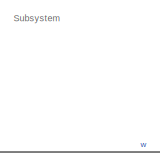
[diagram: root canvas - part 1/15, top center region]
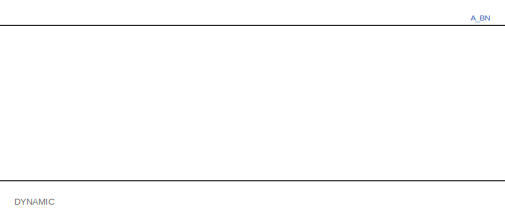
[diagram: root canvas - part 2/15, top left region]
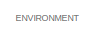
[diagram: root canvas - part 3/15, top left region]
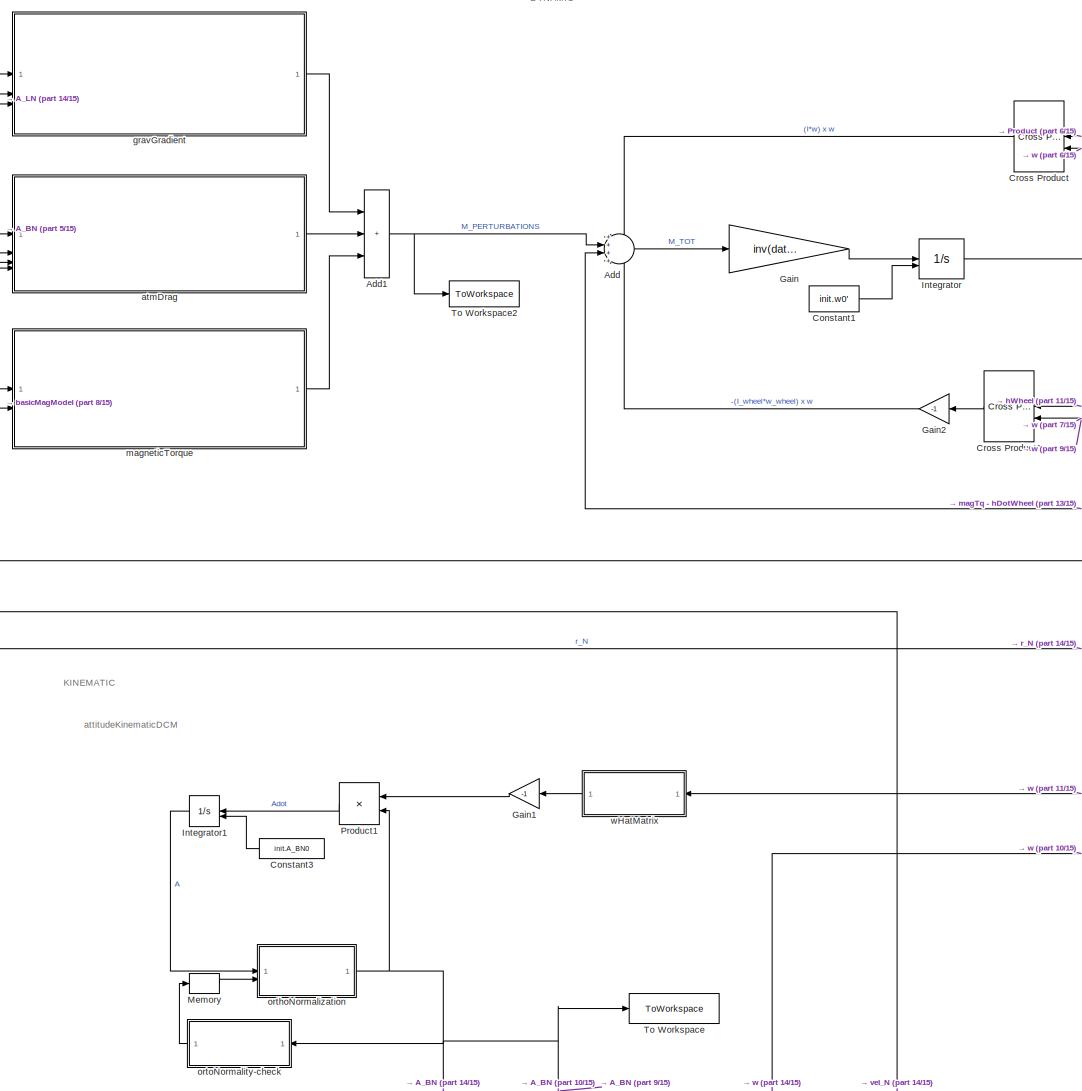
[diagram: root canvas - part 4/15, middle left region]
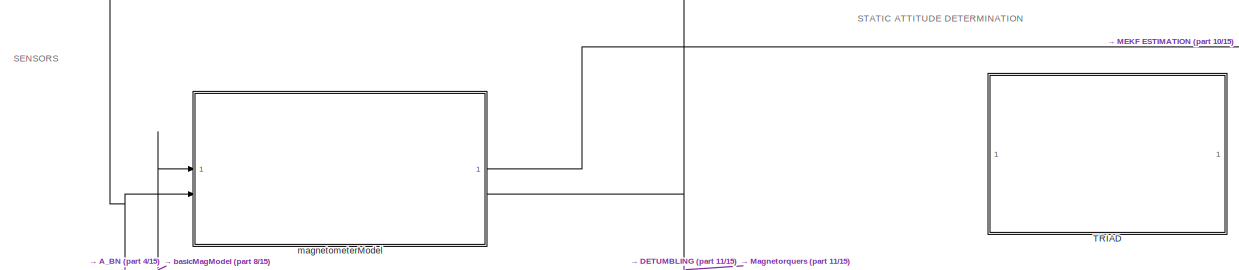
[diagram: root canvas - part 5/15, top center region]
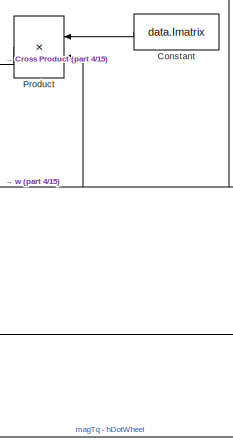
[diagram: root canvas - part 6/15, top center region]
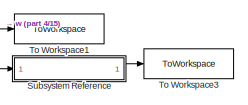
[diagram: root canvas - part 7/15, central region]
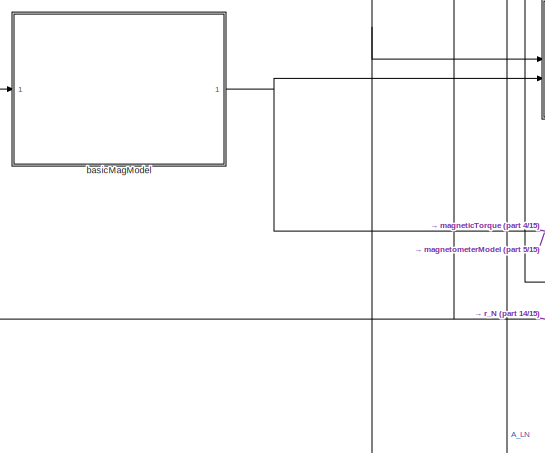
[diagram: root canvas - part 8/15, middle left region]
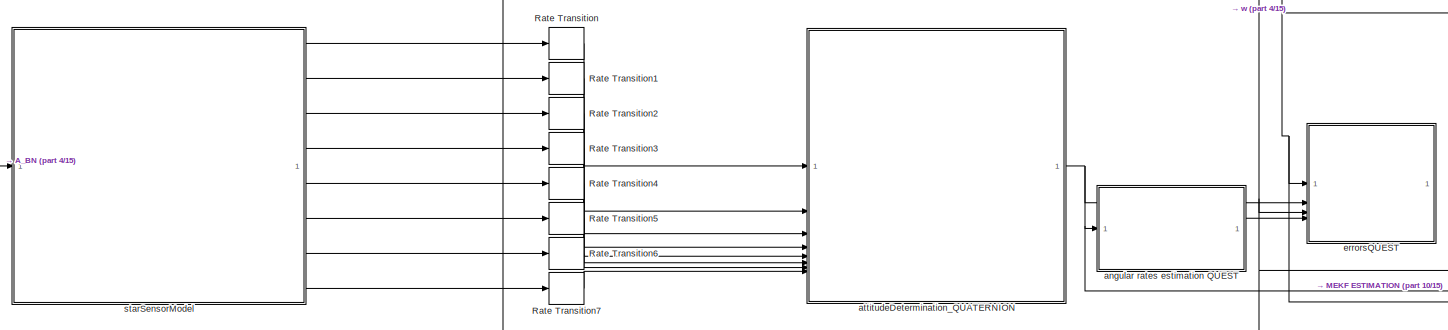
[diagram: root canvas - part 9/15, middle right region]
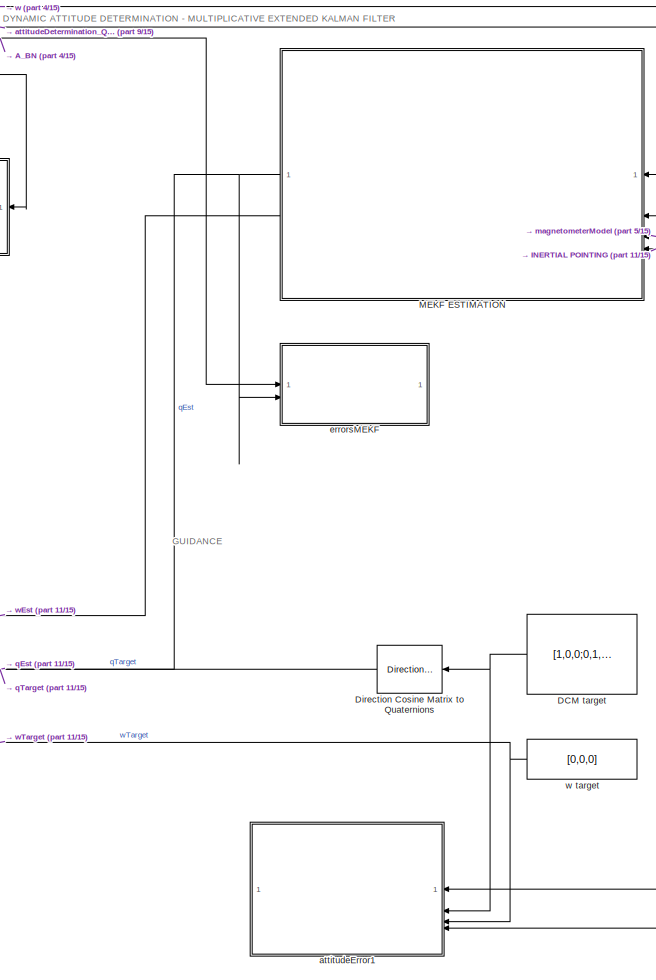
[diagram: root canvas - part 10/15, middle right region]
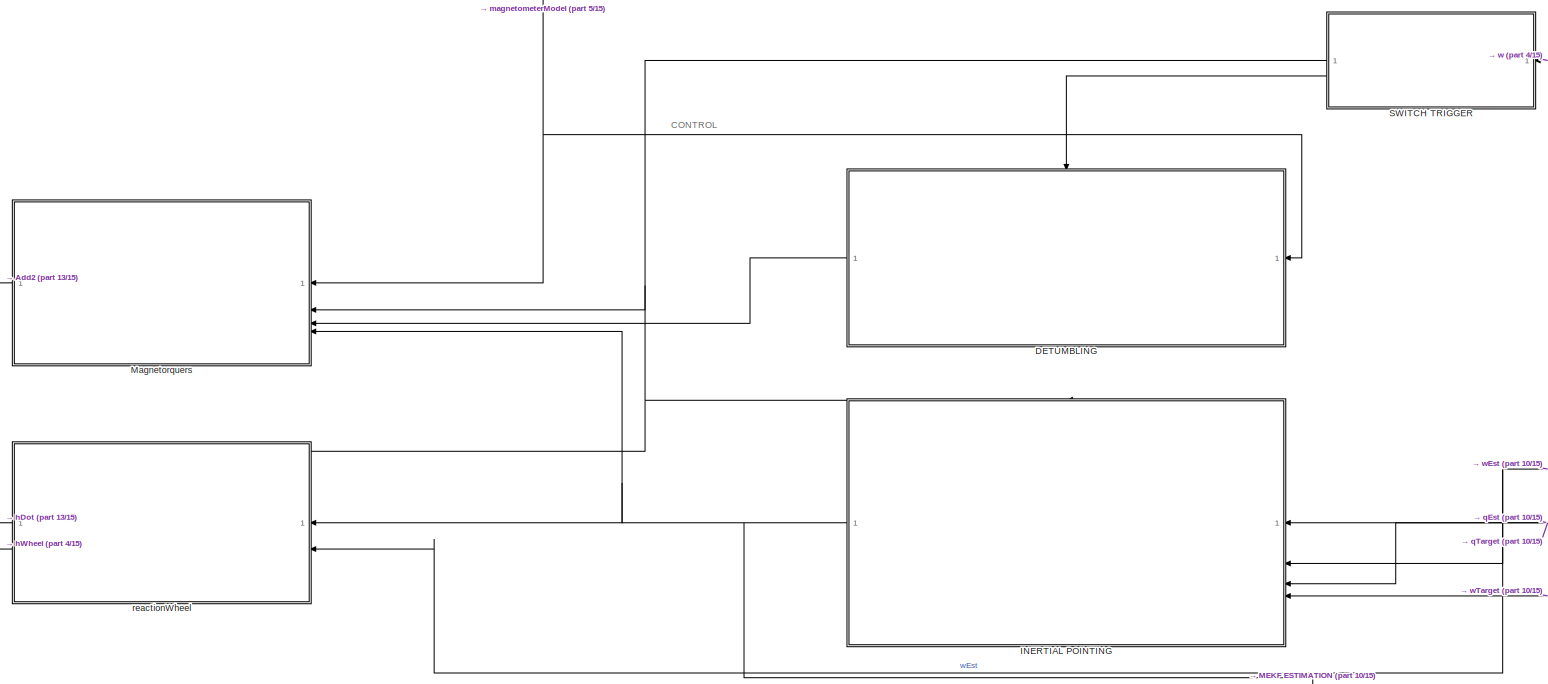
[diagram: root canvas - part 11/15, middle right region]
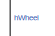
[diagram: root canvas - part 12/15, central region]
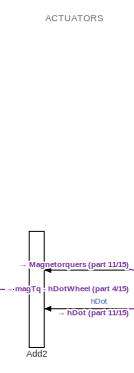
[diagram: root canvas - part 13/15, central region]
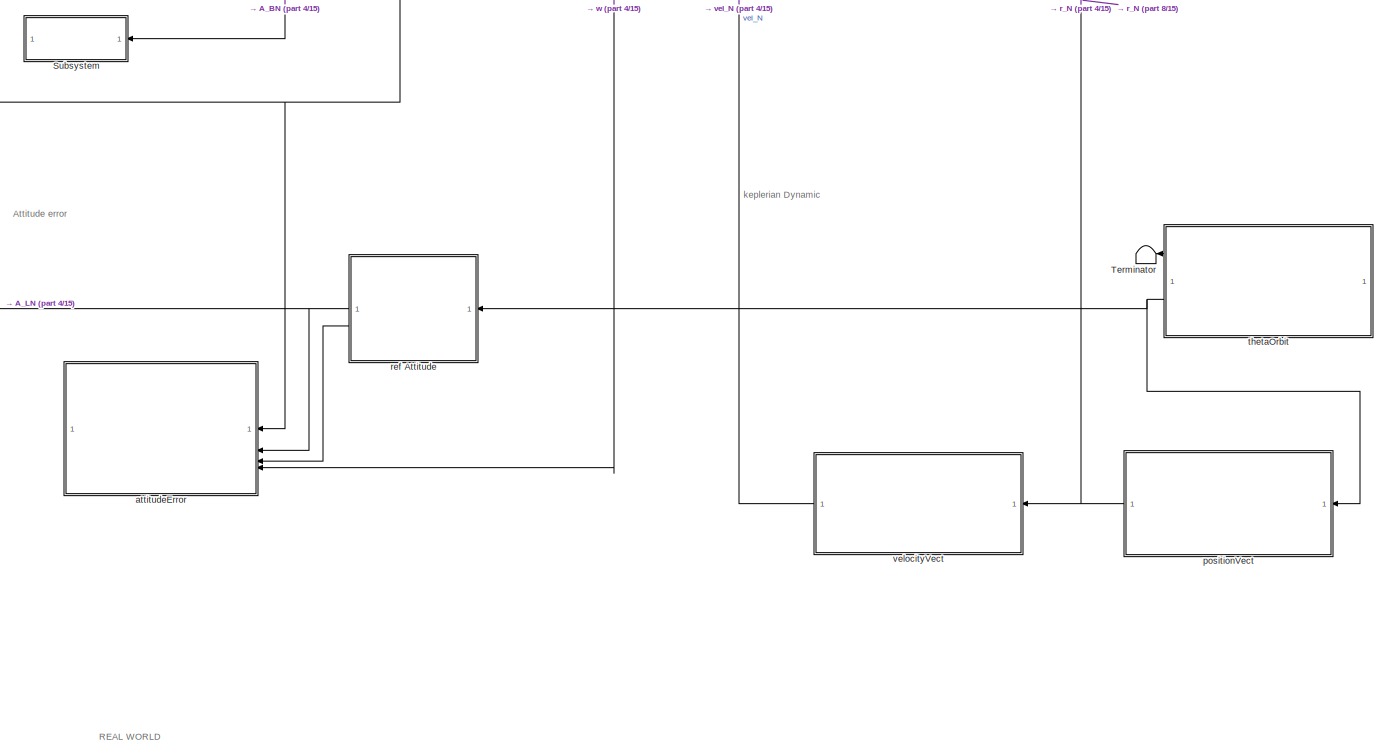
[diagram: root canvas - part 14/15, bottom left region]
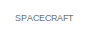
[diagram: root canvas - part 15/15, bottom right region]
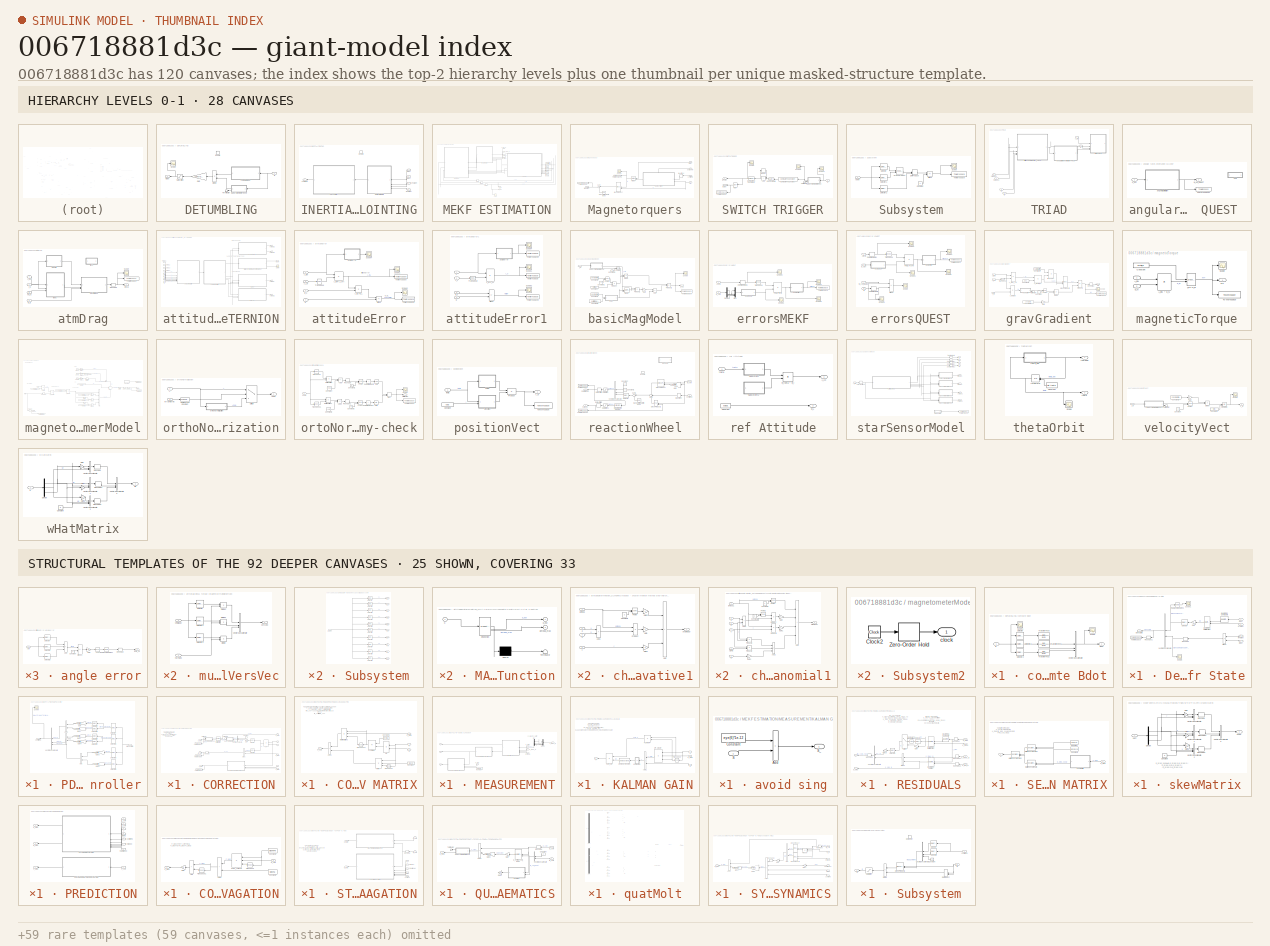
[diagram: thumbnail index - top-2 hierarchy levels (28 canvases) + 25 structural-template representatives of the remaining 92 canvases]
MODEL slx_006718881d3c
KIND model
CONFIG AbsTol = auto
CONFIG EnableMultiTasking = off
CONFIG FixedStep = 0.1
CONFIG MaxStep = auto
CONFIG MinStep = auto
CONFIG RelTol = 1e-3
CONFIG SampleTimeConstraint = Unconstrained
CONFIG SolverName = ode4
CONFIG StartTime = 0.0
CONFIG StopTime = 35000
BLOCK [Sum] Add
  Inputs = ++++
BLOCK [Sum] Add1
  IconShape = rectangular
  Inputs = +++
BLOCK [Sum] Add2
  IconShape = rectangular
  Inputs = --
BLOCK [Constant] Constant
  Value = data.Imatrix
BLOCK [Constant] Constant1
  Value = init.w0'
BLOCK [Constant] Constant3
  Value = init.A_BN0
BLOCK [Reference] Cross Product  REF=matrix_library/Cross Product
  SourceBlock = matrix_library/Cross Product
  SourceType = CrossProduct
BLOCK [Reference] Cross Product1  REF=matrix_library/Cross Product
  SourceBlock = matrix_library/Cross Product
  SourceType = CrossProduct
BLOCK [Constant] DCM target
  Value = [1,0,0;0,1,0;0,0,1]
BLOCK [SubSystem] DETUMBLING
BLOCK [Inport] DETUMBLING/B
BLOCK [Product] DETUMBLING/Divide
  Inputs = */
BLOCK [EnablePort] DETUMBLING/Enable
BLOCK [Gain] DETUMBLING/Gain
  Gain = -control.Kdet
BLOCK [Saturate] DETUMBLING/Saturation
  LowerLimit = -actuators.magTorq.maxDipole
  UpperLimit = actuators.magTorq.maxDipole
BLOCK [Scope] DETUMBLING/Scope
  Floating = off
  NumInputPorts = 1
  ScopeSpecificationString = Simulink.scopes.TimeScopeBlockCfg('CurrentConfiguration', extmgr.ConfigurationSet(extmgr.Configuration('Core','General UI',true),extmgr.Configuration('Core','Source UI',true),extmgr.Configuration('Sources','WiredSimulink',true,'DataLoggingVariableName','ScopeData3'),extmgr.Configuration('Visuals','Time Domain',true,'SerializedDisplays',{struct('MinYLimReal','-12.5','MaxYLimReal','12.5','YLabelReal...<+1546ch>
BLOCK [SubSystem] DETUMBLING/Subsystem Reference
  ReferencedSubsystem = vecNorm
BLOCK [Terminator] DETUMBLING/Terminator
BLOCK [SubSystem] DETUMBLING/compute Bdot
BLOCK [Inport] DETUMBLING/compute Bdot/B
BLOCK [Outport] DETUMBLING/compute Bdot/Bdot
BLOCK [Scope] DETUMBLING/compute Bdot/Scope
  Floating = off
  NumInputPorts = 1
  ScopeSpecificationString = Simulink.scopes.TimeScopeBlockCfg('CurrentConfiguration', extmgr.ConfigurationSet(extmgr.Configuration('Core','General UI',true),extmgr.Configuration('Core','Source UI',true),extmgr.Configuration('Sources','WiredSimulink',true,'DataLoggingVariableName','ScopeData2'),extmgr.Configuration('Visuals','Time Domain',true,'SerializedDisplays',{struct('MinYLimReal','-0.0000015','MaxYLimReal','0.0000016','...<+1674ch>
BLOCK [Scope] DETUMBLING/compute Bdot/Scope1
  Floating = off
  NumInputPorts = 1
  ScopeSpecificationString = Simulink.scopes.TimeScopeBlockCfg('CurrentConfiguration', extmgr.ConfigurationSet(extmgr.Configuration('Core','General UI',true),extmgr.Configuration('Core','Source UI',true),extmgr.Configuration('Sources','WiredSimulink',true,'DataLoggingVariableName','ScopeData3'),extmgr.Configuration('Visuals','Time Domain',true,'SerializedDisplays',{struct('MinYLimReal','-0.00007','MaxYLimReal','0.00007','YLab...<+1518ch>
BLOCK [Selector] DETUMBLING/compute Bdot/Selector
  IndexOptions = Index vector (dialog)
  Indices = 1
  InputPortWidth = 3
  OutputSizes = 1
BLOCK [Selector] DETUMBLING/compute Bdot/Selector1
  IndexOptions = Index vector (dialog)
  Indices = 2
  InputPortWidth = 3
  OutputSizes = 1
BLOCK [Selector] DETUMBLING/compute Bdot/Selector2
  IndexOptions = Index vector (dialog)
  Indices = 3
  InputPortWidth = 3
  OutputSizes = 1
BLOCK [TransferFcn] DETUMBLING/compute Bdot/Transfer Fcn1
  Denominator = [1 10]
  Numerator = [1 0]
BLOCK [TransferFcn] DETUMBLING/compute Bdot/Transfer Fcn2
  Denominator = [1 10]
  Numerator = [1 0]
BLOCK [TransferFcn] DETUMBLING/compute Bdot/Transfer Fcn3
  Denominator = [1 10]
  Numerator = [1 0]
BLOCK [Concatenate] DETUMBLING/compute Bdot/Vector Concatenate
  NumInputs = 3
BLOCK [Outport] DETUMBLING/mDet
BLOCK [Reference] Direction Cosine Matrix to Quaternions  REF=sharedtransform/Direction Cosine Matrix 
to Quaternions
  LibrarySourceBlock = aerolibtransform2/Direction Cosine Matrix \nto Quaternions
  SourceBlock = sharedtransform/Direction Cosine Matrix \nto Quaternions
  SourceType = DCM2Quaternion
BLOCK [Gain] Gain
  Gain = inv(data.Imatrix)
  Multiplication = Matrix(K*u)
  NameLocation = top
BLOCK [Gain] Gain1
  Gain = -1
BLOCK [Gain] Gain2
  Gain = -1
BLOCK [SubSystem] INERTIAL POINTING
BLOCK [SubSystem] INERTIAL POINTING/Define Error State
BLOCK [Gain] INERTIAL POINTING/Define Error State/Gain
  Gain = 2
BLOCK [Sum] INERTIAL POINTING/Define Error State/Minus
  IconShape = rectangular
  Inputs = +-
BLOCK [Reference] INERTIAL POINTING/Define Error State/Quaternion Conjugate  REF=aerolibutil/Quaternion
Conjugate
  SourceBlock = aerolibutil/Quaternion\nConjugate
  SourceType = Quaternion Conjugate
BLOCK [Reference] INERTIAL POINTING/Define Error State/Quaternion Multiplication  REF=aerolibutil/Quaternion
Multiplication
  SourceBlock = aerolibutil/Quaternion\nMultiplication
  SourceType = Quaternion Multiplication
BLOCK [Reference] INERTIAL POINTING/Define Error State/Radians to Degrees  REF=simulink_extras/Transformations/Radians
to Degrees
  SourceBlock = simulink_extras/Transformations/Radians\nto Degrees
  SourceType = RadiansToDegrees
BLOCK [Reshape] INERTIAL POINTING/Define Error State/Reshape
  OutputDimensionality = Column vector (2-D)
BLOCK [Reshape] INERTIAL POINTING/Define Error State/Reshape1
BLOCK [Scope] INERTIAL POINTING/Define Error State/Scope
  Floating = off
  NumInputPorts = 1
  ScopeSpecificationString = Simulink.scopes.TimeScopeBlockCfg('CurrentConfiguration', extmgr.ConfigurationSet(extmgr.Configuration('Core','General UI',true),extmgr.Configuration('Core','Source UI',true),extmgr.Configuration('Sources','WiredSimulink',true,'DataLoggingVariableName','ScopeData1'),extmgr.Configuration('Visuals','Time Domain',true,'SerializedDisplays',{struct('MinYLimReal','-0.01278','MaxYLimReal','0.04048','YLab...<+1687ch>
BLOCK [Scope] INERTIAL POINTING/Define Error State/Scope1
  Floating = off
  NumInputPorts = 1
  ScopeSpecificationString = Simulink.scopes.TimeScopeBlockCfg('CurrentConfiguration', extmgr.ConfigurationSet(extmgr.Configuration('Core','General UI',true),extmgr.Configuration('Core','Source UI',true),extmgr.Configuration('Sources','WiredSimulink',true,'DataLoggingVariableName','ScopeData5'),extmgr.Configuration('Visuals','Time Domain',true,'SerializedDisplays',{struct('MinYLimReal','-1.80311','MaxYLimReal','1.71689','YLab...<+1613ch>
BLOCK [Selector] INERTIAL POINTING/Define Error State/Selector
  IndexOptions = Index vector (dialog)
  Indices = [2:4]
  InputPortWidth = 4
  OutputSizes = 1
BLOCK [ToWorkspace] INERTIAL POINTING/Define Error State/To Workspace
  FixptAsFi = on
  MaxDataPoints = inf
  SampleTime = -1
  VariableName = alphaState
BLOCK [Concatenate] INERTIAL POINTING/Define Error State/Vector Concatenate
BLOCK [Outport] INERTIAL POINTING/Define Error State/alphaState
BLOCK [Inport] INERTIAL POINTING/Define Error State/qEst
BLOCK [Inport] INERTIAL POINTING/Define Error State/qTarget
  Port = 3
BLOCK [Inport] INERTIAL POINTING/Define Error State/wEst
  Port = 2
BLOCK [Inport] INERTIAL POINTING/Define Error State/wTarget
  Port = 4
BLOCK [EnablePort] INERTIAL POINTING/Enable
BLOCK [SubSystem] INERTIAL POINTING/PD conroller
BLOCK [Sum] INERTIAL POINTING/PD conroller/Add
  IconShape = rectangular
BLOCK [Sum] INERTIAL POINTING/PD conroller/Add1
  IconShape = rectangular
BLOCK [Sum] INERTIAL POINTING/PD conroller/Add2
  IconShape = rectangular
BLOCK [Gain] INERTIAL POINTING/PD conroller/Gain
  Gain = -control.Kp_x
BLOCK [Gain] INERTIAL POINTING/PD conroller/Gain1
  Gain = -control.Kp_y
BLOCK [Gain] INERTIAL POINTING/PD conroller/Gain2
  Gain = -control.Kd_x
BLOCK [Gain] INERTIAL POINTING/PD conroller/Gain3
  Gain = -control.Kp_z
BLOCK [Gain] INERTIAL POINTING/PD conroller/Gain4
  Gain = -control.Kd_y
BLOCK [Gain] INERTIAL POINTING/PD conroller/Gain5
  Gain = -control.Kd_z
BLOCK [Scope] INERTIAL POINTING/PD conroller/Scope
  Floating = off
  NumInputPorts = 1
  ScopeSpecificationString = Simulink.scopes.TimeScopeBlockCfg('CurrentConfiguration', extmgr.ConfigurationSet(extmgr.Configuration('Core','General UI',true),extmgr.Configuration('Core','Source UI',true),extmgr.Configuration('Sources','WiredSimulink',true,'DataLoggingVariableName','ScopeData1'),extmgr.Configuration('Visuals','Time Domain',true,'SerializedDisplays',{struct('MinYLimReal','-0.00025','MaxYLimReal','0.00024','YLab...<+1656ch>
BLOCK [Selector] INERTIAL POINTING/PD conroller/Selector
  IndexOptions = Index vector (dialog)
  Indices = [1 4]
  InputPortWidth = 6
  OutputSizes = 1
BLOCK [Selector] INERTIAL POINTING/PD conroller/Selector1
  IndexOptions = Index vector (dialog)
  Indices = [2 5]
  InputPortWidth = 6
  OutputSizes = 1
BLOCK [Selector] INERTIAL POINTING/PD conroller/Selector2
  IndexOptions = Index vector (dialog)
  Indices = 3
  InputPortWidth = 6
  OutputSizes = 1
BLOCK [Selector] INERTIAL POINTING/PD conroller/Selector3
  IndexOptions = Index vector (dialog)
  Indices = 6
  InputPortWidth = 6
  OutputSizes = 1
BLOCK [Selector] INERTIAL POINTING/PD conroller/Selector4
  IndexOptions = Index vector (dialog)
  Indices = 1
  InputPortWidth = 2
  OutputSizes = 1
BLOCK [Selector] INERTIAL POINTING/PD conroller/Selector5
  IndexOptions = Index vector (dialog)
  Indices = 2
  InputPortWidth = 2
  OutputSizes = 1
BLOCK [Selector] INERTIAL POINTING/PD conroller/Selector6
  IndexOptions = Index vector (dialog)
  Indices = 1
  InputPortWidth = 2
  OutputSizes = 1
BLOCK [Selector] INERTIAL POINTING/PD conroller/Selector7
  IndexOptions = Index vector (dialog)
  Indices = 2
  InputPortWidth = 2
  OutputSizes = 1
BLOCK [Concatenate] INERTIAL POINTING/PD conroller/Vector Concatenate
  NumInputs = 3
BLOCK [Inport] INERTIAL POINTING/PD conroller/alphaState
BLOCK [Outport] INERTIAL POINTING/PD conroller/controlTq
BLOCK [Outport] INERTIAL POINTING/controlTq
BLOCK [Inport] INERTIAL POINTING/qEst
BLOCK [Inport] INERTIAL POINTING/qTarget
  Port = 3
BLOCK [Inport] INERTIAL POINTING/wEst
  Port = 2
BLOCK [Inport] INERTIAL POINTING/wTarget
  Port = 4
BLOCK [Integrator] Integrator
  InitialCondition = init.w0
  InitialConditionSource = external
BLOCK [Integrator] Integrator1
  InitialCondition = Ab0
  InitialConditionSource = external
BLOCK [SubSystem] MEKF ESTIMATION
BLOCK [SubSystem] MEKF ESTIMATION/CORRECTION
BLOCK [SubSystem] MEKF ESTIMATION/CORRECTION/COVARIANCE MATRIX
BLOCK [Sum] MEKF ESTIMATION/CORRECTION/COVARIANCE MATRIX/Add1
  IconShape = rectangular
BLOCK [Constant] MEKF ESTIMATION/CORRECTION/COVARIANCE MATRIX/Constant
  Value = MEKF.R
BLOCK [Constant] MEKF ESTIMATION/CORRECTION/COVARIANCE MATRIX/Constant1
  Value = eye(6)
BLOCK [Inport] MEKF ESTIMATION/CORRECTION/COVARIANCE MATRIX/H
  Port = 2
BLOCK [Inport] MEKF ESTIMATION/CORRECTION/COVARIANCE MATRIX/K
BLOCK [Product] MEKF ESTIMATION/CORRECTION/COVARIANCE MATRIX/K * H
  Multiplication = Matrix(*)
BLOCK [Product] MEKF ESTIMATION/CORRECTION/COVARIANCE MATRIX/K * R * K'
  Inputs = 3
  Multiplication = Matrix(*)
BLOCK [Product] MEKF ESTIMATION/CORRECTION/COVARIANCE MATRIX/MatrixMultiply3
  Inputs = 3
  Multiplication = Matrix(*)
BLOCK [Outport] MEKF ESTIMATION/CORRECTION/COVARIANCE MATRIX/P_corr
BLOCK [Inport] MEKF ESTIMATION/CORRECTION/COVARIANCE MATRIX/P_pred
  Port = 3
BLOCK [Math] MEKF ESTIMATION/CORRECTION/COVARIANCE MATRIX/Transpose
  Operator = transpose
BLOCK [Math] MEKF ESTIMATION/CORRECTION/COVARIANCE MATRIX/Transpose1
  Operator = transpose
BLOCK [Sum] MEKF ESTIMATION/CORRECTION/COVARIANCE MATRIX/eye(6) - (K * H)
  IconShape = rectangular
  Inputs = +-
BLOCK [Constant] MEKF ESTIMATION/CORRECTION/Constant
BLOCK [Gain] MEKF ESTIMATION/CORRECTION/Gain
  Gain = 1/2
BLOCK [Inport] MEKF ESTIMATION/CORRECTION/H
  Port = 3
BLOCK [Inport] MEKF ESTIMATION/CORRECTION/K
  Port = 2
BLOCK [Product] MEKF ESTIMATION/CORRECTION/K * y
  Multiplication = Matrix(*)
BLOCK [Sum] MEKF ESTIMATION/CORRECTION/Minus
  IconShape = rectangular
BLOCK [Outport] MEKF ESTIMATION/CORRECTION/P_corr
  Port = 3
BLOCK [Inport] MEKF ESTIMATION/CORRECTION/P_pred
  Port = 6
BLOCK [Reference] MEKF ESTIMATION/CORRECTION/Quaternion Multiplication  REF=aerolibutil/Quaternion
Multiplication
  SourceBlock = aerolibutil/Quaternion\nMultiplication
  SourceType = Quaternion Multiplication
BLOCK [Reshape] MEKF ESTIMATION/CORRECTION/Reshape
  OutputDimensionality = Row vector (2-D)
BLOCK [Selector] MEKF ESTIMATION/CORRECTION/Selector
  IndexOptions = Index vector (dialog)
  Indices = [1:3]
  InputPortWidth = 6
  OutputSizes = 1
BLOCK [Selector] MEKF ESTIMATION/CORRECTION/Selector1
  IndexOptions = Index vector (dialog)
  Indices = [4:6]
  InputPortWidth = 6
  OutputSizes = 1
BLOCK [SubSystem] MEKF ESTIMATION/CORRECTION/Subsystem Reference
  ReferencedSubsystem = vecNorm
BLOCK [SubSystem] MEKF ESTIMATION/CORRECTION/Subsystem Reference1
  ReferencedSubsystem = vecNorm
BLOCK [Terminator] MEKF ESTIMATION/CORRECTION/Terminator
BLOCK [Terminator] MEKF ESTIMATION/CORRECTION/Terminator1
BLOCK [ToWorkspace] MEKF ESTIMATION/CORRECTION/To Workspace
  FixptAsFi = on
  MaxDataPoints = inf
  SampleTime = -1
  VariableName = w_corr
BLOCK [ToWorkspace] MEKF ESTIMATION/CORRECTION/To Workspace1
  FixptAsFi = on
  MaxDataPoints = inf
  SampleTime = -1
  VariableName = q_corr
BLOCK [ToWorkspace] MEKF ESTIMATION/CORRECTION/To Workspace2
  FixptAsFi = on
  MaxDataPoints = inf
  SampleTime = -1
  VariableName = P_corr
BLOCK [Concatenate] MEKF ESTIMATION/CORRECTION/Vector Concatenate
BLOCK [Outport] MEKF ESTIMATION/CORRECTION/q_corr
BLOCK [Inport] MEKF ESTIMATION/CORRECTION/q_pred
  Port = 4
BLOCK [Outport] MEKF ESTIMATION/CORRECTION/w_corr
  Port = 2
BLOCK [Inport] MEKF ESTIMATION/CORRECTION/w_pred
  Port = 5
BLOCK [Inport] MEKF ESTIMATION/CORRECTION/y
BLOCK [Constant] MEKF ESTIMATION/Constant
  Value = [0,0,0]
BLOCK [Constant] MEKF ESTIMATION/Constant2
  Value = data.Imatrix
BLOCK [Constant] MEKF ESTIMATION/Constant4
  Value = [0,0,0]
BLOCK [Constant] MEKF ESTIMATION/Constant5
  Value = [0,0,0]
BLOCK [Constant] MEKF ESTIMATION/Constant6
  Value = [0,0,0]
BLOCK [SubSystem] MEKF ESTIMATION/MEASUREMENT
BLOCK [Constant] MEKF ESTIMATION/MEASUREMENT/Constant
  Value = MEKF.R
BLOCK [Demux] MEKF ESTIMATION/MEASUREMENT/Demux
BLOCK [Outport] MEKF ESTIMATION/MEASUREMENT/H
  Port = 3
BLOCK [Outport] MEKF ESTIMATION/MEASUREMENT/K
  Port = 2
BLOCK [SubSystem] MEKF ESTIMATION/MEASUREMENT/KALMAN GAIN
BLOCK [Sum] MEKF ESTIMATION/MEASUREMENT/KALMAN GAIN/Add1
  IconShape = rectangular
BLOCK [Reference] MEKF ESTIMATION/MEASUREMENT/KALMAN GAIN/Cholesky Inverse  REF=dspinverses/Cholesky Inverse
  SourceBlock = dspinverses/Cholesky Inverse
  SourceType = Cholesky Inverse
BLOCK [Inport] MEKF ESTIMATION/MEASUREMENT/KALMAN GAIN/H
BLOCK [Product] MEKF ESTIMATION/MEASUREMENT/KALMAN GAIN/H * P_pred * H'
  Inputs = 3
  Multiplication = Matrix(*)
BLOCK [Outport] MEKF ESTIMATION/MEASUREMENT/KALMAN GAIN/K
BLOCK [Inport] MEKF ESTIMATION/MEASUREMENT/KALMAN GAIN/P_pred
  Port = 2
BLOCK [Product] MEKF ESTIMATION/MEASUREMENT/KALMAN GAIN/P_pred * H'
  Multiplication = Matrix(*)
BLOCK [Inport] MEKF ESTIMATION/MEASUREMENT/KALMAN GAIN/R
  Port = 3
BLOCK [Math] MEKF ESTIMATION/MEASUREMENT/KALMAN GAIN/Transpose
  Operator = transpose
BLOCK [SubSystem] MEKF ESTIMATION/MEASUREMENT/KALMAN GAIN/avoid sing
BLOCK [Sum] MEKF ESTIMATION/MEASUREMENT/KALMAN GAIN/avoid sing/Add
  IconShape = rectangular
BLOCK [Constant] MEKF ESTIMATION/MEASUREMENT/KALMAN GAIN/avoid sing/Constant
  Value = eye(6)*1e-12
BLOCK [Inport] MEKF ESTIMATION/MEASUREMENT/KALMAN GAIN/avoid sing/S
BLOCK [Outport] MEKF ESTIMATION/MEASUREMENT/KALMAN GAIN/avoid sing/S_
BLOCK [Product] MEKF ESTIMATION/MEASUREMENT/KALMAN GAIN/num_K // S
  Multiplication = Matrix(*)
BLOCK [Mux] MEKF ESTIMATION/MEASUREMENT/Mux
  DisplayOption = bar
BLOCK [Inport] MEKF ESTIMATION/MEASUREMENT/P_pred
  Port = 5
BLOCK [SubSystem] MEKF ESTIMATION/MEASUREMENT/RESIDUALS
BLOCK [Reference] MEKF ESTIMATION/MEASUREMENT/RESIDUALS/Compare To Constant  REF=simulink/Logic and Bit
Operations/Compare
To Constant
  SourceBlock = simulink/Logic and Bit\nOperations/Compare\nTo Constant
  SourceType = Compare To Constant
BLOCK [Gain] MEKF ESTIMATION/MEASUREMENT/RESIDUALS/Gain
  Gain = -1
BLOCK [Gain] MEKF ESTIMATION/MEASUREMENT/RESIDUALS/Gain1
  Gain = 2
BLOCK [Sum] MEKF ESTIMATION/MEASUREMENT/RESIDUALS/Minus
  IconShape = rectangular
  Inputs = +-
BLOCK [Reference] MEKF ESTIMATION/MEASUREMENT/RESIDUALS/Quaternion Conjugate  REF=aerolibutil/Quaternion
Conjugate
  SourceBlock = aerolibutil/Quaternion\nConjugate
  SourceType = Quaternion Conjugate
BLOCK [Reference] MEKF ESTIMATION/MEASUREMENT/RESIDUALS/Quaternion Multiplication  REF=aerolibutil/Quaternion
Multiplication
  SourceBlock = aerolibutil/Quaternion\nMultiplication
  SourceType = Quaternion Multiplication
BLOCK [Reference] MEKF ESTIMATION/MEASUREMENT/RESIDUALS/Quaternion Rotation  REF=aerolibutil/Quaternion
Rotation
  SourceBlock = aerolibutil/Quaternion\nRotation
  SourceType = Quaternion Rotation
BLOCK [Reshape] MEKF ESTIMATION/MEASUREMENT/RESIDUALS/Reshape
  OutputDimensionality = Column vector (2-D)
BLOCK [Reshape] MEKF ESTIMATION/MEASUREMENT/RESIDUALS/Reshape1
  OutputDimensionality = Row vector (2-D)
BLOCK [Reshape] MEKF ESTIMATION/MEASUREMENT/RESIDUALS/Reshape3
  OutputDimensionality = Row vector (2-D)
BLOCK [Reshape] MEKF ESTIMATION/MEASUREMENT/RESIDUALS/Reshape4
  OutputDimensionality = Row vector (2-D)
BLOCK [Selector] MEKF ESTIMATION/MEASUREMENT/RESIDUALS/Selector
  IndexOptions = Index vector (dialog)
  Indices = 1
  InputPortWidth = 4
  OutputSizes = 1
BLOCK [Selector] MEKF ESTIMATION/MEASUREMENT/RESIDUALS/Selector1
  IndexOptions = Index vector (dialog)
  Indices = [2:4]
  InputPortWidth = 4
  OutputSizes = 1
BLOCK [Switch] MEKF ESTIMATION/MEASUREMENT/RESIDUALS/Switch
  Criteria = u2 > Threshold
  InputSameDT = off
  SaturateOnIntegerOverflow = off
BLOCK [Concatenate] MEKF ESTIMATION/MEASUREMENT/RESIDUALS/Vector Concatenate
  ConcatenateDimension = 2
  Mode = Multidimensional array
BLOCK [Inport] MEKF ESTIMATION/MEASUREMENT/RESIDUALS/b_meas_B
  Port = 3
BLOCK [Outport] MEKF ESTIMATION/MEASUREMENT/RESIDUALS/b_pred
  Port = 2
BLOCK [Inport] MEKF ESTIMATION/MEASUREMENT/RESIDUALS/b_real_N
  Port = 4
BLOCK [Inport] MEKF ESTIMATION/MEASUREMENT/RESIDUALS/q_meas
BLOCK [Inport] MEKF ESTIMATION/MEASUREMENT/RESIDUALS/q_pred
  Port = 2
BLOCK [Outport] MEKF ESTIMATION/MEASUREMENT/RESIDUALS/y
BLOCK [SubSystem] MEKF ESTIMATION/MEASUREMENT/SENSITIVITY MATRIX
BLOCK [Constant] MEKF ESTIMATION/MEASUREMENT/SENSITIVITY MATRIX/Constant
  Value = eye(3)
BLOCK [Constant] MEKF ESTIMATION/MEASUREMENT/SENSITIVITY MATRIX/Constant1
  Value = zeros(3)
BLOCK [Outport] MEKF ESTIMATION/MEASUREMENT/SENSITIVITY MATRIX/H
BLOCK [Concatenate] MEKF ESTIMATION/MEASUREMENT/SENSITIVITY MATRIX/Matrix Concatenate
  ConcatenateDimension = 2
  Mode = Multidimensional array
BLOCK [Concatenate] MEKF ESTIMATION/MEASUREMENT/SENSITIVITY MATRIX/Matrix Concatenate1
  ConcatenateDimension = 2
  Mode = Multidimensional array
BLOCK [Concatenate] MEKF ESTIMATION/MEASUREMENT/SENSITIVITY MATRIX/Matrix Concatenate2
  Mode = Multidimensional array
BLOCK [Inport] MEKF ESTIMATION/MEASUREMENT/SENSITIVITY MATRIX/b_pred
BLOCK [SubSystem] MEKF ESTIMATION/MEASUREMENT/SENSITIVITY MATRIX/skewMatrix
BLOCK [Constant] MEKF ESTIMATION/MEASUREMENT/SENSITIVITY MATRIX/skewMatrix/Constant
  Value = 0
BLOCK [Demux] MEKF ESTIMATION/MEASUREMENT/SENSITIVITY MATRIX/skewMatrix/Demux
  Outputs = 3
BLOCK [Gain] MEKF ESTIMATION/MEASUREMENT/SENSITIVITY MATRIX/skewMatrix/Gain
  Gain = -1
BLOCK [Gain] MEKF ESTIMATION/MEASUREMENT/SENSITIVITY MATRIX/skewMatrix/Gain1
  Gain = -1
BLOCK [Gain] MEKF ESTIMATION/MEASUREMENT/SENSITIVITY MATRIX/skewMatrix/Gain2
  Gain = -1
BLOCK [Reshape] MEKF ESTIMATION/MEASUREMENT/SENSITIVITY MATRIX/skewMatrix/Reshape
  OutputDimensionality = Row vector (2-D)
BLOCK [Reshape] MEKF ESTIMATION/MEASUREMENT/SENSITIVITY MATRIX/skewMatrix/Reshape1
  OutputDimensionality = Row vector (2-D)
BLOCK [Reshape] MEKF ESTIMATION/MEASUREMENT/SENSITIVITY MATRIX/skewMatrix/Reshape2
  OutputDimensionality = Row vector (2-D)
BLOCK [Concatenate] MEKF ESTIMATION/MEASUREMENT/SENSITIVITY MATRIX/skewMatrix/Vector Concatenate
  NumInputs = 3
BLOCK [Concatenate] MEKF ESTIMATION/MEASUREMENT/SENSITIVITY MATRIX/skewMatrix/Vector Concatenate1
  NumInputs = 3
BLOCK [Concatenate] MEKF ESTIMATION/MEASUREMENT/SENSITIVITY MATRIX/skewMatrix/Vector Concatenate2
  NumInputs = 3
BLOCK [Concatenate] MEKF ESTIMATION/MEASUREMENT/SENSITIVITY MATRIX/skewMatrix/Vector Concatenate3
  Mode = Multidimensional array
  NumInputs = 3
BLOCK [Outport] MEKF ESTIMATION/MEASUREMENT/SENSITIVITY MATRIX/skewMatrix/skew
BLOCK [Inport] MEKF ESTIMATION/MEASUREMENT/SENSITIVITY MATRIX/skewMatrix/vect
BLOCK [Inport] MEKF ESTIMATION/MEASUREMENT/b_meas_B
  Port = 2
BLOCK [Inport] MEKF ESTIMATION/MEASUREMENT/b_real_N
  Port = 3
BLOCK [Inport] MEKF ESTIMATION/MEASUREMENT/q_meas_in
BLOCK [Inport] MEKF ESTIMATION/MEASUREMENT/q_pred
  Port = 4
BLOCK [Outport] MEKF ESTIMATION/MEASUREMENT/y
BLOCK [Memory] MEKF ESTIMATION/Memory
  InitialCondition = MEKF.init.P
BLOCK [Memory] MEKF ESTIMATION/Memory1
  InitialCondition = MEKF.init.w
BLOCK [Memory] MEKF ESTIMATION/Memory2
  InitialCondition = MEKF.init.q
BLOCK [SubSystem] MEKF ESTIMATION/PREDICTION
BLOCK [SubSystem] MEKF ESTIMATION/PREDICTION/COVARIANCE MATRIX PROPAGATION
BLOCK [Sum] MEKF ESTIMATION/PREDICTION/COVARIANCE MATRIX PROPAGATION/Add
  IconShape = rectangular
BLOCK [Sum] MEKF ESTIMATION/PREDICTION/COVARIANCE MATRIX PROPAGATION/Add1
  IconShape = rectangular
BLOCK [Constant] MEKF ESTIMATION/PREDICTION/COVARIANCE MATRIX PROPAGATION/Constant1
  Value = MEKF.PHI
BLOCK [Constant] MEKF ESTIMATION/PREDICTION/COVARIANCE MATRIX PROPAGATION/Constant2
  Value = MEKF.Q
BLOCK [Gain] MEKF ESTIMATION/PREDICTION/COVARIANCE MATRIX PROPAGATION/Gain
  Gain = 1/2
BLOCK [Product] MEKF ESTIMATION/PREDICTION/COVARIANCE MATRIX PROPAGATION/PHI * P_corr * PHI'
  Inputs = 3
  Multiplication = Matrix(*)
BLOCK [Inport] MEKF ESTIMATION/PREDICTION/COVARIANCE MATRIX PROPAGATION/P_corr
BLOCK [Outport] MEKF ESTIMATION/PREDICTION/COVARIANCE MATRIX PROPAGATION/P_pred
BLOCK [Math] MEKF ESTIMATION/PREDICTION/COVARIANCE MATRIX PROPAGATION/Transpose
  Operator = transpose
BLOCK [Math] MEKF ESTIMATION/PREDICTION/COVARIANCE MATRIX PROPAGATION/Transpose1
  Operator = transpose
BLOCK [Inport] MEKF ESTIMATION/PREDICTION/J
  Port = 4
BLOCK [Inport] MEKF ESTIMATION/PREDICTION/P_corr
  Port = 3
BLOCK [Outport] MEKF ESTIMATION/PREDICTION/P_pred
  Port = 3
BLOCK [SubSystem] MEKF ESTIMATION/PREDICTION/STATE PROPAGATION
BLOCK [Inport] MEKF ESTIMATION/PREDICTION/STATE PROPAGATION/J
  Port = 3
BLOCK [SubSystem] MEKF ESTIMATION/PREDICTION/STATE PROPAGATION/QUATERNION KINEMATICS
BLOCK [Sum] MEKF ESTIMATION/PREDICTION/STATE PROPAGATION/QUATERNION KINEMATICS/Add2
  IconShape = rectangular
BLOCK [Constant] MEKF ESTIMATION/PREDICTION/STATE PROPAGATION/QUATERNION KINEMATICS/Constant
  Value = 0
BLOCK [Gain] MEKF ESTIMATION/PREDICTION/STATE PROPAGATION/QUATERNION KINEMATICS/Gain
  Gain = 1/2
BLOCK [Gain] MEKF ESTIMATION/PREDICTION/STATE PROPAGATION/QUATERNION KINEMATICS/Gain1
  Commented = on
  Gain = 0.5
BLOCK [Gain] MEKF ESTIMATION/PREDICTION/STATE PROPAGATION/QUATERNION KINEMATICS/Gain2
  Gain = MEKF.dt
BLOCK [Reshape] MEKF ESTIMATION/PREDICTION/STATE PROPAGATION/QUATERNION KINEMATICS/Reshape
  OutputDimensionality = Row vector (2-D)
BLOCK [SubSystem] MEKF ESTIMATION/PREDICTION/STATE PROPAGATION/QUATERNION KINEMATICS/Subsystem Reference
  ReferencedSubsystem = vecNorm
BLOCK [Terminator] MEKF ESTIMATION/PREDICTION/STATE PROPAGATION/QUATERNION KINEMATICS/Terminator
BLOCK [Concatenate] MEKF ESTIMATION/PREDICTION/STATE PROPAGATION/QUATERNION KINEMATICS/Vector Concatenate
BLOCK [Inport] MEKF ESTIMATION/PREDICTION/STATE PROPAGATION/QUATERNION KINEMATICS/q_corr
BLOCK [Reference] MEKF ESTIMATION/PREDICTION/STATE PROPAGATION/QUATERNION KINEMATICS/q_corr x w_corr_quat  REF=aerolibutil/Quaternion
Multiplication
  SourceBlock = aerolibutil/Quaternion\nMultiplication
  SourceType = Quaternion Multiplication
BLOCK [Outport] MEKF ESTIMATION/PREDICTION/STATE PROPAGATION/QUATERNION KINEMATICS/q_pred
BLOCK [SubSystem] MEKF ESTIMATION/PREDICTION/STATE PROPAGATION/QUATERNION KINEMATICS/quatMolt
  Commented = on
BLOCK [Sum] MEKF ESTIMATION/PREDICTION/STATE PROPAGATION/QUATERNION KINEMATICS/quatMolt/Add
  IconShape = rectangular
  Inputs = ++-+
BLOCK [Sum] MEKF ESTIMATION/PREDICTION/STATE PROPAGATION/QUATERNION KINEMATICS/quatMolt/Add1
  IconShape = rectangular
  Inputs = +++-
BLOCK [Sum] MEKF ESTIMATION/PREDICTION/STATE PROPAGATION/QUATERNION KINEMATICS/quatMolt/Add2
  IconShape = rectangular
  Inputs = +-++
BLOCK [Sum] MEKF ESTIMATION/PREDICTION/STATE PROPAGATION/QUATERNION KINEMATICS/quatMolt/Add3
  IconShape = rectangular
  Inputs = +---
BLOCK [Demux] MEKF ESTIMATION/PREDICTION/STATE PROPAGATION/QUATERNION KINEMATICS/quatMolt/Demux1
BLOCK [Demux] MEKF ESTIMATION/PREDICTION/STATE PROPAGATION/QUATERNION KINEMATICS/quatMolt/Demux2
BLOCK [Inport] MEKF ESTIMATION/PREDICTION/STATE PROPAGATION/QUATERNION KINEMATICS/quatMolt/In1
BLOCK [Inport] MEKF ESTIMATION/PREDICTION/STATE PROPAGATION/QUATERNION KINEMATICS/quatMolt/In2
  Port = 2
BLOCK [Product] MEKF ESTIMATION/PREDICTION/STATE PROPAGATION/QUATERNION KINEMATICS/quatMolt/Product
BLOCK [Product] MEKF ESTIMATION/PREDICTION/STATE PROPAGATION/QUATERNION KINEMATICS/quatMolt/Product1
BLOCK [Product] MEKF ESTIMATION/PREDICTION/STATE PROPAGATION/QUATERNION KINEMATICS/quatMolt/Product10
BLOCK [Product] MEKF ESTIMATION/PREDICTION/STATE PROPAGATION/QUATERNION KINEMATICS/quatMolt/Product11
BLOCK [Product] MEKF ESTIMATION/PREDICTION/STATE PROPAGATION/QUATERNION KINEMATICS/quatMolt/Product12
BLOCK [Product] MEKF ESTIMATION/PREDICTION/STATE PROPAGATION/QUATERNION KINEMATICS/quatMolt/Product13
BLOCK [Product] MEKF ESTIMATION/PREDICTION/STATE PROPAGATION/QUATERNION KINEMATICS/quatMolt/Product14
BLOCK [Product] MEKF ESTIMATION/PREDICTION/STATE PROPAGATION/QUATERNION KINEMATICS/quatMolt/Product15
BLOCK [Product] MEKF ESTIMATION/PREDICTION/STATE PROPAGATION/QUATERNION KINEMATICS/quatMolt/Product2
BLOCK [Product] MEKF ESTIMATION/PREDICTION/STATE PROPAGATION/QUATERNION KINEMATICS/quatMolt/Product3
BLOCK [Product] MEKF ESTIMATION/PREDICTION/STATE PROPAGATION/QUATERNION KINEMATICS/quatMolt/Product4
BLOCK [Product] MEKF ESTIMATION/PREDICTION/STATE PROPAGATION/QUATERNION KINEMATICS/quatMolt/Product5
BLOCK [Product] MEKF ESTIMATION/PREDICTION/STATE PROPAGATION/QUATERNION KINEMATICS/quatMolt/Product6
BLOCK [Product] MEKF ESTIMATION/PREDICTION/STATE PROPAGATION/QUATERNION KINEMATICS/quatMolt/Product7
BLOCK [Product] MEKF ESTIMATION/PREDICTION/STATE PROPAGATION/QUATERNION KINEMATICS/quatMolt/Product8
BLOCK [Product] MEKF ESTIMATION/PREDICTION/STATE PROPAGATION/QUATERNION KINEMATICS/quatMolt/Product9
BLOCK [Concatenate] MEKF ESTIMATION/PREDICTION/STATE PROPAGATION/QUATERNION KINEMATICS/quatMolt/Vector Concatenate
  NumInputs = 4
BLOCK [Outport] MEKF ESTIMATION/PREDICTION/STATE PROPAGATION/QUATERNION KINEMATICS/quatMolt/quaternions
BLOCK [Inport] MEKF ESTIMATION/PREDICTION/STATE PROPAGATION/QUATERNION KINEMATICS/w_corr
  Port = 2
BLOCK [Reshape] MEKF ESTIMATION/PREDICTION/STATE PROPAGATION/Reshape
  OutputDimensionality = Row vector (2-D)
BLOCK [SubSystem] MEKF ESTIMATION/PREDICTION/STATE PROPAGATION/SYSTEM DYNAMICS
BLOCK [Sum] MEKF ESTIMATION/PREDICTION/STATE PROPAGATION/SYSTEM DYNAMICS/Add
  IconShape = rectangular
BLOCK [Sum] MEKF ESTIMATION/PREDICTION/STATE PROPAGATION/SYSTEM DYNAMICS/Add1
  IconShape = rectangular
  Inputs = ++++
BLOCK [Sum] MEKF ESTIMATION/PREDICTION/STATE PROPAGATION/SYSTEM DYNAMICS/Add2
  IconShape = rectangular
BLOCK [Reference] MEKF ESTIMATION/PREDICTION/STATE PROPAGATION/SYSTEM DYNAMICS/Cross Product  REF=matrix_library/Cross Product
  LibrarySourceBlock = simulink/Matrix\nOperations/Cross Product
  SourceBlock = matrix_library/Cross Product
  SourceType = CrossProduct
BLOCK [Reference] MEKF ESTIMATION/PREDICTION/STATE PROPAGATION/SYSTEM DYNAMICS/Cross Product1  REF=matrix_library/Cross Product
  LibrarySourceBlock = simulink/Matrix\nOperations/Cross Product
  SourceBlock = matrix_library/Cross Product
  SourceType = CrossProduct
BLOCK [Gain] MEKF ESTIMATION/PREDICTION/STATE PROPAGATION/SYSTEM DYNAMICS/Gain
  Gain = -1
BLOCK [Gain] MEKF ESTIMATION/PREDICTION/STATE PROPAGATION/SYSTEM DYNAMICS/Gain1
  Gain = -1
BLOCK [Gain] MEKF ESTIMATION/PREDICTION/STATE PROPAGATION/SYSTEM DYNAMICS/Gain2
  Gain = MEKF.dt
BLOCK [Gain] MEKF ESTIMATION/PREDICTION/STATE PROPAGATION/SYSTEM DYNAMICS/Gain3
  Gain = inv(data.Imatrix)
  Multiplication = Matrix(K*u)
BLOCK [Inport] MEKF ESTIMATION/PREDICTION/STATE PROPAGATION/SYSTEM DYNAMICS/J
  Port = 2
BLOCK [Product] MEKF ESTIMATION/PREDICTION/STATE PROPAGATION/SYSTEM DYNAMICS/Product
  Multiplication = Matrix(*)
BLOCK [Reshape] MEKF ESTIMATION/PREDICTION/STATE PROPAGATION/SYSTEM DYNAMICS/Reshape
  OutputDimensionality = Column vector (2-D)
BLOCK [Reshape] MEKF ESTIMATION/PREDICTION/STATE PROPAGATION/SYSTEM DYNAMICS/Reshape4
BLOCK [Inport] MEKF ESTIMATION/PREDICTION/STATE PROPAGATION/SYSTEM DYNAMICS/controlTq
  Port = 6
BLOCK [Inport] MEKF ESTIMATION/PREDICTION/STATE PROPAGATION/SYSTEM DYNAMICS/distTq
  Port = 5
BLOCK [Inport] MEKF ESTIMATION/PREDICTION/STATE PROPAGATION/SYSTEM DYNAMICS/hDotWheel
  Port = 4
BLOCK [Inport] MEKF ESTIMATION/PREDICTION/STATE PROPAGATION/SYSTEM DYNAMICS/hWheel
  Port = 3
BLOCK [Inport] MEKF ESTIMATION/PREDICTION/STATE PROPAGATION/SYSTEM DYNAMICS/w_corr
BLOCK [Outport] MEKF ESTIMATION/PREDICTION/STATE PROPAGATION/SYSTEM DYNAMICS/w_pred
BLOCK [Inport] MEKF ESTIMATION/PREDICTION/STATE PROPAGATION/controlTq
  Port = 5
BLOCK [Inport] MEKF ESTIMATION/PREDICTION/STATE PROPAGATION/distTq
  Port = 4
BLOCK [Inport] MEKF ESTIMATION/PREDICTION/STATE PROPAGATION/hDotWheel
  Port = 7
BLOCK [Inport] MEKF ESTIMATION/PREDICTION/STATE PROPAGATION/hWheel
  Port = 6
BLOCK [Inport] MEKF ESTIMATION/PREDICTION/STATE PROPAGATION/q_corr
BLOCK [Outport] MEKF ESTIMATION/PREDICTION/STATE PROPAGATION/q_pred
BLOCK [Inport] MEKF ESTIMATION/PREDICTION/STATE PROPAGATION/w_corr
  NameLocation = top
  Port = 2
BLOCK [Outport] MEKF ESTIMATION/PREDICTION/STATE PROPAGATION/w_pred
  Port = 2
BLOCK [Inport] MEKF ESTIMATION/PREDICTION/controlTq
  Port = 6
BLOCK [Inport] MEKF ESTIMATION/PREDICTION/distTq
  Port = 5
BLOCK [Inport] MEKF ESTIMATION/PREDICTION/hDotWheel
  Port = 8
BLOCK [Inport] MEKF ESTIMATION/PREDICTION/hWheel
  Port = 7
BLOCK [Inport] MEKF ESTIMATION/PREDICTION/q_corr
BLOCK [Outport] MEKF ESTIMATION/PREDICTION/q_pred
BLOCK [Inport] MEKF ESTIMATION/PREDICTION/w_corr
  Port = 2
BLOCK [Outport] MEKF ESTIMATION/PREDICTION/w_pred
  Port = 2
BLOCK [Scope] MEKF ESTIMATION/Scope
  Floating = off
  NumInputPorts = 1
  ScopeSpecificationString = Simulink.scopes.TimeScopeBlockCfg('CurrentConfiguration', extmgr.ConfigurationSet(extmgr.Configuration('Core','General UI',true),extmgr.Configuration('Core','Source UI',true),extmgr.Configuration('Sources','WiredSimulink',true,'DataLoggingVariableName','ScopeData10'),extmgr.Configuration('Visuals','Time Domain',true,'SerializedDisplays',{struct('MinYLimReal','-1.24732','MaxYLimReal','1.2497','YLab...<+1596ch>
BLOCK [Inport] MEKF ESTIMATION/b_meas_B
  Port = 2
BLOCK [Inport] MEKF ESTIMATION/b_real_N
  Port = 3
BLOCK [Inport] MEKF ESTIMATION/controlTq
  Port = 4
BLOCK [Outport] MEKF ESTIMATION/q_corr
BLOCK [Inport] MEKF ESTIMATION/q_meas_in
BLOCK [Outport] MEKF ESTIMATION/w_corr
  Port = 2
BLOCK [SubSystem] Magnetorquers
BLOCK [Inport] Magnetorquers/B
BLOCK [Reference] Magnetorquers/Band-Limited White Noise  REF=simulink/Sources/Band-Limited
White Noise
  SourceBlock = simulink/Sources/Band-Limited\nWhite Noise
  SourceType = Band-Limited White Noise.
BLOCK [Reference] Magnetorquers/Cross Product  REF=matrix_library/Cross Product
  LibrarySourceBlock = simulink/Matrix\nOperations/Cross Product
  SourceBlock = matrix_library/Cross Product
  SourceType = CrossProduct
BLOCK [Merge] Magnetorquers/Merge
BLOCK [Quantizer] Magnetorquers/Quantizer
  QuantizationInterval = 1e-8
BLOCK [Scope] Magnetorquers/Scope
  Floating = off
  NumInputPorts = 1
  ScopeSpecificationString = Simulink.scopes.TimeScopeBlockCfg('CurrentConfiguration', extmgr.ConfigurationSet(extmgr.Configuration('Core','General UI',true),extmgr.Configuration('Core','Source UI',true),extmgr.Configuration('Sources','WiredSimulink',true,'DataLoggingVariableName','ScopeData1'),extmgr.Configuration('Visuals','Time Domain',true,'SerializedDisplays',{struct('MinYLimReal','-75.00000','MaxYLimReal','75.00000','YL...<+1581ch>
BLOCK [SubSystem] Magnetorquers/Subsystem
BLOCK [Inport] Magnetorquers/Subsystem/B
  Port = 2
BLOCK [Constant] Magnetorquers/Subsystem/Constant
  Value = 0
BLOCK [Reference] Magnetorquers/Subsystem/Cross Product1  REF=matrix_library/Cross Product
  LibrarySourceBlock = simulink/Matrix\nOperations/Cross Product
  SourceBlock = matrix_library/Cross Product
  SourceType = CrossProduct
BLOCK [Product] Magnetorquers/Subsystem/Divide
  Inputs = */
BLOCK [DotProduct] Magnetorquers/Subsystem/Dot Product
  OutDataTypeStr = Inherit: Inherit via internal rule
BLOCK [Saturate] Magnetorquers/Subsystem/Saturation
  LowerLimit = -actuators.magTorq.maxDipole
  UpperLimit = actuators.magTorq.maxDipole
BLOCK [Selector] Magnetorquers/Subsystem/Selector
  IndexOptions = Index vector (dialog)
  Indices = 1
  InputPortWidth = 3
  OutputSizes = 1
BLOCK [Selector] Magnetorquers/Subsystem/Selector1
  IndexOptions = Index vector (dialog)
  Indices = 2
  InputPortWidth = 3
  OutputSizes = 1
BLOCK [Concatenate] Magnetorquers/Subsystem/Vector Concatenate
  NumInputs = 3
BLOCK [Inport] Magnetorquers/Subsystem/controlTq
BLOCK [EnablePort] Magnetorquers/Subsystem/det2point
BLOCK [Outport] Magnetorquers/Subsystem/m
BLOCK [Sum] Magnetorquers/Sum
  Inputs = |++
BLOCK [ToWorkspace] Magnetorquers/To Workspace
  FixptAsFi = on
  MaxDataPoints = inf
  SampleTime = -1
  VariableName = magEffTorque
BLOCK [ToWorkspace] Magnetorquers/To Workspace1
  FixptAsFi = on
  MaxDataPoints = inf
  SampleTime = -1
  VariableName = magDipole
BLOCK [Inport] Magnetorquers/controlTq
  Port = 4
BLOCK [Inport] Magnetorquers/det2point
  Port = 2
BLOCK [Inport] Magnetorquers/mDet
  Port = 3
BLOCK [Outport] Magnetorquers/magEffTq
BLOCK [Memory] Memory
  InheritSampleTime = on
BLOCK [Product] Product
  Multiplication = Matrix(*)
BLOCK [Product] Product1
  Inputs = **
  Multiplication = Matrix(*)
BLOCK [RateTransition] Rate Transition
  OutPortSampleTime = 0.1
BLOCK [RateTransition] Rate Transition1
  OutPortSampleTime = 0.1
BLOCK [RateTransition] Rate Transition2
  OutPortSampleTime = 0.1
BLOCK [RateTransition] Rate Transition3
  OutPortSampleTime = 0.1
BLOCK [RateTransition] Rate Transition4
  OutPortSampleTime = 0.1
BLOCK [RateTransition] Rate Transition5
  OutPortSampleTime = 0.1
BLOCK [RateTransition] Rate Transition6
  OutPortSampleTime = 0.1
BLOCK [RateTransition] Rate Transition7
  OutPortSampleTime = 0.1
BLOCK [SubSystem] SWITCH TRIGGER
BLOCK [Sum] SWITCH TRIGGER/Add
  IconShape = rectangular
BLOCK [DataTypeConversion] SWITCH TRIGGER/Cast To Single
  OutDataTypeStr = single
  RndMeth = Floor
  SaturateOnIntegerOverflow = off
BLOCK [Reference] SWITCH TRIGGER/Compare To Constant  REF=simulink/Logic and Bit
Operations/Compare
To Constant
  SourceBlock = simulink/Logic and Bit\nOperations/Compare\nTo Constant
  SourceType = Compare To Constant
BLOCK [Reference] SWITCH TRIGGER/Compare To Constant1  REF=simulink/Logic and Bit
Operations/Compare
To Constant
  SourceBlock = simulink/Logic and Bit\nOperations/Compare\nTo Constant
  SourceType = Compare To Constant
BLOCK [Memory] SWITCH TRIGGER/Memory
  InheritSampleTime = on
BLOCK [Logic] SWITCH TRIGGER/NOT
  AllPortsSameDT = off
  Operator = NOT
  OutDataTypeStr = boolean
BLOCK [Scope] SWITCH TRIGGER/Scope
  Floating = off
  NumInputPorts = 1
  ScopeSpecificationString = Simulink.scopes.TimeScopeBlockCfg('CurrentConfiguration', extmgr.ConfigurationSet(extmgr.Configuration('Core','General UI',true),extmgr.Configuration('Core','Source UI',true),extmgr.Configuration('Sources','WiredSimulink',true,'DataLoggingVariableName','ScopeData1'),extmgr.Configuration('Visuals','Time Domain',true,'SerializedDisplays',{struct('MinYLimReal','-0.125','MaxYLimReal','1.125','YLabelRe...<+1530ch>
BLOCK [Scope] SWITCH TRIGGER/Scope1
  Floating = off
  NumInputPorts = 1
  ScopeSpecificationString = Simulink.scopes.TimeScopeBlockCfg('CurrentConfiguration', extmgr.ConfigurationSet(extmgr.Configuration('Core','General UI',true),extmgr.Configuration('Core','Source UI',true),extmgr.Configuration('Sources','WiredSimulink',true,'DataLoggingVariableName','ScopeData2'),extmgr.Configuration('Visuals','Time Domain',true,'SerializedDisplays',{struct('MinYLimReal','-0.13827','MaxYLimReal','0.14019','YLab...<+1562ch>
BLOCK [Scope] SWITCH TRIGGER/Scope5
  Floating = off
  NumInputPorts = 1
  ScopeSpecificationString = Simulink.scopes.TimeScopeBlockCfg('CurrentConfiguration', extmgr.ConfigurationSet(extmgr.Configuration('Core','General UI',true),extmgr.Configuration('Core','Source UI',true),extmgr.Configuration('Sources','WiredSimulink',true,'DataLoggingVariableName','ScopeData4'),extmgr.Configuration('Visuals','Time Domain',true,'SerializedDisplays',{struct('MinYLimReal','-0.01174','MaxYLimReal','0.15526','YLab...<+1571ch>
BLOCK [SubSystem] SWITCH TRIGGER/Subsystem Reference
  ReferencedSubsystem = vecNorm
BLOCK [Terminator] SWITCH TRIGGER/Terminator
BLOCK [ToWorkspace] SWITCH TRIGGER/To Workspace
  FixptAsFi = on
  MaxDataPoints = inf
  SampleTime = -1
  VariableName = enablePoint
BLOCK [Outport] SWITCH TRIGGER/isDet
  Port = 2
BLOCK [Outport] SWITCH TRIGGER/isPoint
BLOCK [Inport] SWITCH TRIGGER/w
BLOCK [SubSystem] Subsystem
BLOCK [SubSystem] Subsystem Reference
  ReferencedSubsystem = vecNorm
BLOCK [Inport] Subsystem/Anew
BLOCK [Constant] Subsystem/Constant
BLOCK [Reference] Subsystem/Cross Product  REF=matrix_library/Cross Product
  LibrarySourceBlock = simulink/Matrix\nOperations/Cross Product
  SourceBlock = matrix_library/Cross Product
  SourceType = CrossProduct
BLOCK [DotProduct] Subsystem/Dot Product
  OutDataTypeStr = Inherit: Inherit via internal rule
BLOCK [Sum] Subsystem/Minus
  IconShape = rectangular
  Inputs = +-
BLOCK [Scope] Subsystem/Scope
  Floating = off
  NumInputPorts = 1
  ScopeSpecificationString = Simulink.scopes.TimeScopeBlockCfg('CurrentConfiguration', extmgr.ConfigurationSet(extmgr.Configuration('Core','General UI',true),extmgr.Configuration('Core','Source UI',true),extmgr.Configuration('Sources','WiredSimulink',true,'DataLoggingVariableName','ScopeData1'),extmgr.Configuration('Visuals','Time Domain',true,'SerializedDisplays',{struct('MinYLimReal','-0.000000000000007','MaxYLimReal','0.00...<+1533ch>
BLOCK [Selector] Subsystem/Selector
  IndexOptions = Select all,Index vector (dialog)
  Indices = [1 3],1
  InputPortWidth = 3
  NumberOfDimensions = 2
  OutputSizes = 1,1
BLOCK [Selector] Subsystem/Selector1
  IndexOptions = Select all,Index vector (dialog)
  Indices = [1 3],2
  InputPortWidth = 3
  NumberOfDimensions = 2
  OutputSizes = 1,1
BLOCK [Selector] Subsystem/Selector2
  IndexOptions = Select all,Index vector (dialog)
  Indices = [1 3],3
  InputPortWidth = 3
  NumberOfDimensions = 2
  OutputSizes = 1,1
BLOCK [ToWorkspace] Subsystem/To Workspace
  FixptAsFi = on
  MaxDataPoints = inf
  SampleTime = -1
  VariableName = rightHandleCheck
BLOCK [SubSystem] TRIAD
  Commented = on
BLOCK [Inport] TRIAD/A_BN
BLOCK [SubSystem] TRIAD/angular rates estimation TRIAD 
BLOCK [Inport] TRIAD/angular rates estimation TRIAD /A_BN_est
BLOCK [Reference] TRIAD/angular rates estimation TRIAD /Discrete Derivative  REF=simulink/Discrete/Discrete Derivative
  SourceBlock = simulink/Discrete/Discrete Derivative
  SourceType = Discrete Derivative
BLOCK [Gain] TRIAD/angular rates estimation TRIAD /Gain
  Gain = -1
BLOCK [Gain] TRIAD/angular rates estimation TRIAD /Gain1
  Gain = 1/2
BLOCK [Gain] TRIAD/angular rates estimation TRIAD /Gain2
  Gain = 1/2
BLOCK [Gain] TRIAD/angular rates estimation TRIAD /Gain3
  Gain = 1/2
BLOCK [Product] TRIAD/angular rates estimation TRIAD /MatrixMultiply
  Multiplication = Matrix(*)
BLOCK [Sum] TRIAD/angular rates estimation TRIAD /Minus
  IconShape = rectangular
  Inputs = +-
BLOCK [Sum] TRIAD/angular rates estimation TRIAD /Minus1
  IconShape = rectangular
  Inputs = +-
BLOCK [Sum] TRIAD/angular rates estimation TRIAD /Minus2
  IconShape = rectangular
  Inputs = +-
BLOCK [Selector] TRIAD/angular rates estimation TRIAD /Selector
  IndexOptions = Index vector (dialog),Index vector (dialog)
  Indices = 2,1
  InputPortWidth = 3
  NumberOfDimensions = 2
  OutputSizes = 1,1
BLOCK [Selector] TRIAD/angular rates estimation TRIAD /Selector1
  IndexOptions = Index vector (dialog),Index vector (dialog)
  Indices = 1,2
  InputPortWidth = 3
  NumberOfDimensions = 2
  OutputSizes = 1,1
BLOCK [Selector] TRIAD/angular rates estimation TRIAD /Selector2
  IndexOptions = Index vector (dialog),Index vector (dialog)
  Indices = 1,3
  InputPortWidth = 3
  NumberOfDimensions = 2
  OutputSizes = 1,1
BLOCK [Selector] TRIAD/angular rates estimation TRIAD /Selector3
  IndexOptions = Index vector (dialog),Index vector (dialog)
  Indices = 3,1
  InputPortWidth = 3
  NumberOfDimensions = 2
  OutputSizes = 1,1
BLOCK [Selector] TRIAD/angular rates estimation TRIAD /Selector5
  IndexOptions = Index vector (dialog),Index vector (dialog)
  Indices = 2,3
  InputPortWidth = 3
  NumberOfDimensions = 2
  OutputSizes = 1,1
BLOCK [Selector] TRIAD/angular rates estimation TRIAD /Selector6
  IndexOptions = Index vector (dialog),Index vector (dialog)
  Indices = 3,2
  InputPortWidth = 3
  NumberOfDimensions = 2
  OutputSizes = 1,1
BLOCK [Math] TRIAD/angular rates estimation TRIAD /Transpose
  Operator = transpose
BLOCK [Concatenate] TRIAD/angular rates estimation TRIAD /Vector Concatenate
  NumInputs = 3
BLOCK [Outport] TRIAD/angular rates estimation TRIAD /w_estTRIAD
BLOCK [SubSystem] TRIAD/attitudeDetermination_TRIAD
BLOCK [Outport] TRIAD/attitudeDetermination_TRIAD/A_BN_est
BLOCK [SubSystem] TRIAD/attitudeDetermination_TRIAD/TRIAD - DCM determination
BLOCK [Outport] TRIAD/attitudeDetermination_TRIAD/TRIAD - DCM determination/A_BN_est_TRIAD
BLOCK [Reshape] TRIAD/attitudeDetermination_TRIAD/TRIAD - DCM determination/Reshape
  OutputDimensionality = Column vector (2-D)
BLOCK [Reshape] TRIAD/attitudeDetermination_TRIAD/TRIAD - DCM determination/Reshape1
  OutputDimensionality = Column vector (2-D)
BLOCK [Reshape] TRIAD/attitudeDetermination_TRIAD/TRIAD - DCM determination/Reshape2
  OutputDimensionality = Column vector (2-D)
BLOCK [Reshape] TRIAD/attitudeDetermination_TRIAD/TRIAD - DCM determination/Reshape3
  OutputDimensionality = Column vector (2-D)
BLOCK [SubSystem] TRIAD/attitudeDetermination_TRIAD/TRIAD - DCM determination/Subsystem Reference
  ReferencedSubsystem = vecNorm
BLOCK [SubSystem] TRIAD/attitudeDetermination_TRIAD/TRIAD - DCM determination/Subsystem Reference1
  ReferencedSubsystem = vecNorm
BLOCK [Terminator] TRIAD/attitudeDetermination_TRIAD/TRIAD - DCM determination/Terminator
BLOCK [Terminator] TRIAD/attitudeDetermination_TRIAD/TRIAD - DCM determination/Terminator1
BLOCK [Math] TRIAD/attitudeDetermination_TRIAD/TRIAD - DCM determination/Transpose
  Operator = transpose
BLOCK [Concatenate] TRIAD/attitudeDetermination_TRIAD/TRIAD - DCM determination/Vector Concatenate
  ConcatenateDimension = 2
  Mode = Multidimensional array
  NumInputs = 3
BLOCK [Concatenate] TRIAD/attitudeDetermination_TRIAD/TRIAD - DCM determination/Vector Concatenate1
  ConcatenateDimension = 2
  Mode = Multidimensional array
  NumInputs = 3
BLOCK [Reference] TRIAD/attitudeDetermination_TRIAD/TRIAD - DCM determination/a x b  REF=matrix_library/Cross Product
  LibrarySourceBlock = simulink/Matrix\nOperations/Cross Product
  SourceBlock = matrix_library/Cross Product
  SourceType = CrossProduct
BLOCK [Reference] TRIAD/attitudeDetermination_TRIAD/TRIAD - DCM determination/a x v2  REF=matrix_library/Cross Product
  LibrarySourceBlock = simulink/Matrix\nOperations/Cross Product
  SourceBlock = matrix_library/Cross Product
  SourceType = CrossProduct
BLOCK [Reference] TRIAD/attitudeDetermination_TRIAD/TRIAD - DCM determination/p x q  REF=matrix_library/Cross Product
  LibrarySourceBlock = simulink/Matrix\nOperations/Cross Product
  SourceBlock = matrix_library/Cross Product
  SourceType = CrossProduct
BLOCK [Reference] TRIAD/attitudeDetermination_TRIAD/TRIAD - DCM determination/p x s2  REF=matrix_library/Cross Product
  LibrarySourceBlock = simulink/Matrix\nOperations/Cross Product
  SourceBlock = matrix_library/Cross Product
  SourceType = CrossProduct
BLOCK [Inport] TRIAD/attitudeDetermination_TRIAD/TRIAD - DCM determination/r1
  Port = 3
BLOCK [Inport] TRIAD/attitudeDetermination_TRIAD/TRIAD - DCM determination/r2
  Port = 4
BLOCK [Product] TRIAD/attitudeDetermination_TRIAD/TRIAD - DCM determination/sMat *vMat
  Multiplication = Matrix(*)
BLOCK [Inport] TRIAD/attitudeDetermination_TRIAD/TRIAD - DCM determination/sMeas1
BLOCK [Inport] TRIAD/attitudeDetermination_TRIAD/TRIAD - DCM determination/sMeas2
  Port = 2
BLOCK [ToWorkspace] TRIAD/attitudeDetermination_TRIAD/To Workspace
  FixptAsFi = on
  MaxDataPoints = inf
  SampleTime = -1
  VariableName = A_BN_TRIAD
BLOCK [Inport] TRIAD/attitudeDetermination_TRIAD/r1
  Port = 3
BLOCK [Inport] TRIAD/attitudeDetermination_TRIAD/r2
  Port = 4
BLOCK [Inport] TRIAD/attitudeDetermination_TRIAD/sMeas1
BLOCK [Inport] TRIAD/attitudeDetermination_TRIAD/sMeas2
  Port = 2
BLOCK [SubSystem] TRIAD/errorsTRIAD
BLOCK [Inport] TRIAD/errorsTRIAD/A_BN
  NameLocation = top
BLOCK [Inport] TRIAD/errorsTRIAD/A_BN_est
  Port = 2
BLOCK [Sum] TRIAD/errorsTRIAD/Minus1
  IconShape = rectangular
  Inputs = +-
BLOCK [Reshape] TRIAD/errorsTRIAD/Reshape
BLOCK [Scope] TRIAD/errorsTRIAD/Scope
  Floating = off
  NumInputPorts = 1
  ScopeSpecificationString = Simulink.scopes.TimeScopeBlockCfg('CurrentConfiguration', extmgr.ConfigurationSet(extmgr.Configuration('Core','General UI',true),extmgr.Configuration('Core','Source UI',true),extmgr.Configuration('Sources','WiredSimulink',true,'DataLoggingVariableName','ScopeData2'),extmgr.Configuration('Visuals','Time Domain',true,'SerializedDisplays',{struct('MinYLimReal','-1.23722','MaxYLimReal','1.24858','YLab...<+1904ch>
BLOCK [Scope] TRIAD/errorsTRIAD/Scope1
  Floating = off
  NumInputPorts = 1
  ScopeSpecificationString = Simulink.scopes.TimeScopeBlockCfg('CurrentConfiguration', extmgr.ConfigurationSet(extmgr.Configuration('Core','General UI',true),extmgr.Configuration('Core','Source UI',true),extmgr.Configuration('Sources','WiredSimulink',true,'DataLoggingVariableName','ScopeData6'),extmgr.Configuration('Visuals','Time Domain',true,'SerializedDisplays',{struct('MinYLimReal','-0.18589','MaxYLimReal','0.18537','YLab...<+1497ch>
BLOCK [Scope] TRIAD/errorsTRIAD/Scope2
  Floating = off
  NumInputPorts = 1
  ScopeSpecificationString = Simulink.scopes.TimeScopeBlockCfg('CurrentConfiguration', extmgr.ConfigurationSet(extmgr.Configuration('Core','General UI',true),extmgr.Configuration('Core','Source UI',true),extmgr.Configuration('Sources','WiredSimulink',true,'DataLoggingVariableName','ScopeData3'),extmgr.Configuration('Visuals','Time Domain',true,'SerializedDisplays',{struct('MinYLimReal','-1.23785','MaxYLimReal','1.24865','YLab...<+2942ch>
BLOCK [Scope] TRIAD/errorsTRIAD/Scope3
  Floating = off
  NumInputPorts = 2
  ScopeSpecificationString = Simulink.scopes.TimeScopeBlockCfg('CurrentConfiguration', extmgr.ConfigurationSet(extmgr.Configuration('Core','General UI',true),extmgr.Configuration('Core','Source UI',true),extmgr.Configuration('Sources','WiredSimulink',true,'DataLoggingVariableName','ScopeData1'),extmgr.Configuration('Visuals','Time Domain',true,'SerializedDisplays',{struct('MinYLimReal','-0.02234','MaxYLimReal','0.01265','YLab...<+1710ch>
BLOCK [Product] TRIAD/errorsTRIAD/TRUE^t * SYM
  Multiplication = Matrix(*)
BLOCK [ToWorkspace] TRIAD/errorsTRIAD/To Workspace
  FixptAsFi = on
  MaxDataPoints = inf
  SampleTime = -1
  VariableName = errTRIAD
BLOCK [Math] TRIAD/errorsTRIAD/Transpose
  Operator = transpose
BLOCK [ZeroOrderHold] TRIAD/errorsTRIAD/Zero-Order Hold
  SampleTime = 0.1
BLOCK [ZeroOrderHold] TRIAD/errorsTRIAD/Zero-Order Hold1
  SampleTime = 0.1
BLOCK [SubSystem] TRIAD/errorsTRIAD/angle error
BLOCK [Trigonometry] TRIAD/errorsTRIAD/angle error/Acos
  Operator = acos
BLOCK [Sum] TRIAD/errorsTRIAD/angle error/Add
  IconShape = rectangular
  Inputs = +++
BLOCK [Inport] TRIAD/errorsTRIAD/angle error/Aerr
BLOCK [Constant] TRIAD/errorsTRIAD/angle error/Constant
BLOCK [Constant] TRIAD/errorsTRIAD/angle error/Constant1
BLOCK [Constant] TRIAD/errorsTRIAD/angle error/Constant2
  Value = -1
BLOCK [Gain] TRIAD/errorsTRIAD/angle error/Gain
  Gain = 1/2
BLOCK [MinMax] TRIAD/errorsTRIAD/angle error/Max
  Function = max
  Inputs = 2
BLOCK [MinMax] TRIAD/errorsTRIAD/angle error/Min
  Inputs = 2
BLOCK [Sum] TRIAD/errorsTRIAD/angle error/Minus1
  IconShape = rectangular
  Inputs = +-
BLOCK [Reference] TRIAD/errorsTRIAD/angle error/Radians to Degrees  REF=simulink_extras/Transformations/Radians
to Degrees
  SourceBlock = simulink_extras/Transformations/Radians\nto Degrees
  SourceType = RadiansToDegrees
BLOCK [Scope] TRIAD/errorsTRIAD/angle error/Scope
  Floating = off
  NumInputPorts = 1
  ScopeSpecificationString = Simulink.scopes.TimeScopeBlockCfg('CurrentConfiguration', extmgr.ConfigurationSet(extmgr.Configuration('Core','General UI',true),extmgr.Configuration('Core','Source UI',true),extmgr.Configuration('Sources','WiredSimulink',true,'DataLoggingVariableName','ScopeData1'),extmgr.Configuration('Visuals','Time Domain',true,'SerializedDisplays',{struct('MinYLimReal','0.00089','MaxYLimReal','0.00405','YLabe...<+1494ch>
BLOCK [Selector] TRIAD/errorsTRIAD/angle error/Selector
  IndexOptions = Index vector (dialog),Index vector (dialog)
  Indices = 1,1
  InputPortWidth = 3
  NumberOfDimensions = 2
  OutputSizes = 1,1
BLOCK [Selector] TRIAD/errorsTRIAD/angle error/Selector1
  IndexOptions = Index vector (dialog),Index vector (dialog)
  Indices = 2,2
  InputPortWidth = 3
  NumberOfDimensions = 2
  OutputSizes = 1,1
BLOCK [Selector] TRIAD/errorsTRIAD/angle error/Selector2
  IndexOptions = Index vector (dialog),Index vector (dialog)
  Indices = 3,3
  InputPortWidth = 3
  NumberOfDimensions = 2
  OutputSizes = 1,1
BLOCK [Outport] TRIAD/errorsTRIAD/angle error/theta_err
BLOCK [Inport] TRIAD/errorsTRIAD/w
  Port = 3
BLOCK [Inport] TRIAD/errorsTRIAD/w_estTRIAD
  Port = 4
BLOCK [Inport] TRIAD/r1
  Port = 5
BLOCK [Inport] TRIAD/r2
  Port = 6
BLOCK [Inport] TRIAD/sMeas1
  Port = 3
BLOCK [Inport] TRIAD/sMeas2
  Port = 4
BLOCK [Inport] TRIAD/w
  Port = 2
BLOCK [Terminator] Terminator
BLOCK [ToWorkspace] To Workspace
  FixptAsFi = on
  MaxDataPoints = inf
  SampleTime = -1
  VariableName = A_BN
BLOCK [ToWorkspace] To Workspace1
  FixptAsFi = on
  MaxDataPoints = inf
  SampleTime = -1
  VariableName = w
BLOCK [ToWorkspace] To Workspace2
  FixptAsFi = on
  MaxDataPoints = inf
  SampleTime = -1
  VariableName = dist_Tq
BLOCK [ToWorkspace] To Workspace3
  FixptAsFi = on
  MaxDataPoints = inf
  SampleTime = -1
  VariableName = w_norm
BLOCK [SubSystem] angular rates estimation QUEST 
BLOCK [ToWorkspace] angular rates estimation QUEST /To Workspace1
  FixptAsFi = on
  MaxDataPoints = inf
  SampleTime = -1
  VariableName = w_est_QUEST
BLOCK [SubSystem] angular rates estimation QUEST /angVelEstimation
BLOCK [DiscreteIntegrator] angular rates estimation QUEST /angVelEstimation/Discrete-Time Integrator
  ICPrevOutput = DiscIntNeverNeededParam
  ICPrevScaledInput = DiscIntNeverNeededParam
  InitialConditionSetting = Auto
  SampleTime = -1
BLOCK [Gain] angular rates estimation QUEST /angVelEstimation/Gain
  Gain = 2
BLOCK [SubSystem] angular rates estimation QUEST /angVelEstimation/Qmatrix
  ReferencedSubsystem = Qmatrix
BLOCK [Scope] angular rates estimation QUEST /angVelEstimation/Scope
  Floating = off
  NumInputPorts = 1
  ScopeSpecificationString = Simulink.scopes.TimeScopeBlockCfg('CurrentConfiguration', extmgr.ConfigurationSet(extmgr.Configuration('Core','General UI',true),extmgr.Configuration('Core','Source UI',true),extmgr.Configuration('Sources','WiredSimulink',true,'DataLoggingVariableName','ScopeData9'),extmgr.Configuration('Visuals','Time Domain',true,'SerializedDisplays',{struct('MinYLimReal','-987.04372','MaxYLimReal','987.04376','...<+1559ch>
BLOCK [Product] angular rates estimation QUEST /angVelEstimation/[Q*] * q_dot
  Multiplication = Matrix(*)
BLOCK [SubSystem] angular rates estimation QUEST /angVelEstimation/pseudoInverseMatrix
  ReferencedSubsystem = pseudoInverseMatrix
BLOCK [Inport] angular rates estimation QUEST /angVelEstimation/q_est
BLOCK [Outport] angular rates estimation QUEST /angVelEstimation/w_est
BLOCK [Inport] angular rates estimation QUEST /q_est
BLOCK [SubSystem] angular rates estimation QUEST /svd
  Commented = on
BLOCK [DotProduct] angular rates estimation QUEST /svd/Dot Product
  OutDataTypeStr = Inherit: Inherit via internal rule
BLOCK [Gain] angular rates estimation QUEST /svd/Gain
  Gain = -1
BLOCK [Inport] angular rates estimation QUEST /svd/K
BLOCK [Product] angular rates estimation QUEST /svd/K * q
  Multiplication = Matrix(*)
BLOCK [Memory] angular rates estimation QUEST /svd/Memory
  InitialCondition = init.q0
BLOCK [Scope] angular rates estimation QUEST /svd/Scope
  Floating = off
  NumInputPorts = 1
  ScopeSpecificationString = Simulink.scopes.TimeScopeBlockCfg('CurrentConfiguration', extmgr.ConfigurationSet(extmgr.Configuration('Core','General UI',true),extmgr.Configuration('Core','Source UI',true),extmgr.Configuration('Sources','WiredSimulink',true,'DataLoggingVariableName','ScopeData10'),extmgr.Configuration('Visuals','Time Domain',true,'SerializedDisplays',{struct('MinYLimReal','-1.14004','MaxYLimReal','1.23656','YLa...<+1560ch>
BLOCK [Scope] angular rates estimation QUEST /svd/Scope1
  Floating = off
  NumInputPorts = 1
  ScopeSpecificationString = Simulink.scopes.TimeScopeBlockCfg('CurrentConfiguration', extmgr.ConfigurationSet(extmgr.Configuration('Core','General UI',true),extmgr.Configuration('Core','Source UI',true),extmgr.Configuration('Sources','WiredSimulink',true,'DataLoggingVariableName','ScopeData11'),extmgr.Configuration('Visuals','Time Domain',true,'SerializedDisplays',{struct('MinYLimReal','-0.34486','MaxYLimReal','0.33087','YLa...<+1778ch>
BLOCK [Scope] angular rates estimation QUEST /svd/Scope2
  Floating = off
  NumInputPorts = 1
  ScopeSpecificationString = Simulink.scopes.TimeScopeBlockCfg('CurrentConfiguration', extmgr.ConfigurationSet(extmgr.Configuration('Core','General UI',true),extmgr.Configuration('Core','Source UI',true),extmgr.Configuration('Sources','WiredSimulink',true,'DataLoggingVariableName','ScopeData13'),extmgr.Configuration('Visuals','Time Domain',true,'SerializedDisplays',{struct('MinYLimReal','-1.14','MaxYLimReal','1.23656','YLabel...<+1517ch>
BLOCK [Scope] angular rates estimation QUEST /svd/Scope3
  Floating = off
  NumInputPorts = 1
  ScopeSpecificationString = Simulink.scopes.TimeScopeBlockCfg('CurrentConfiguration', extmgr.ConfigurationSet(extmgr.Configuration('Core','General UI',true),extmgr.Configuration('Core','Source UI',true),extmgr.Configuration('Sources','WiredSimulink',true,'DataLoggingVariableName','ScopeData5'),extmgr.Configuration('Visuals','Time Domain',true,'SerializedDisplays',{struct('MinYLimReal','-1.14004','MaxYLimReal','1.23656','YLab...<+1477ch>
BLOCK [SubSystem] angular rates estimation QUEST /svd/Subsystem Reference
  ReferencedSubsystem = vecNorm
BLOCK [Switch] angular rates estimation QUEST /svd/Switch
  Criteria = u2 > Threshold
  InputSameDT = off
  SaturateOnIntegerOverflow = off
BLOCK [Terminator] angular rates estimation QUEST /svd/Terminator
BLOCK [ToWorkspace] angular rates estimation QUEST /svd/To Workspace
  FixptAsFi = on
  MaxDataPoints = inf
  SampleTime = -1
  VariableName = q_est_SVD
BLOCK [Outport] angular rates estimation QUEST /svd/q_est
BLOCK [Outport] angular rates estimation QUEST /w_est_QUEST
BLOCK [SubSystem] atmDrag
  Commented = on
BLOCK [Inport] atmDrag/A_BN
BLOCK [Outport] atmDrag/DRAG
BLOCK [SubSystem] atmDrag/DRAG torque 
BLOCK [Constant] atmDrag/DRAG torque /Constant
  Value = pert.drag.Nbvect
BLOCK [Constant] atmDrag/DRAG torque /Constant1
  Value = pert.drag.rF
BLOCK [Constant] atmDrag/DRAG torque /Constant2
  Value = pert.drag.A
BLOCK [Outport] atmDrag/DRAG torque /DRAG
BLOCK [SubSystem] atmDrag/DRAG torque /Relative velocity body
BLOCK [Reshape] atmDrag/DRAG torque /Relative velocity body/Reshape
  OutputDimensionality = Row vector (2-D)
BLOCK [SubSystem] atmDrag/DRAG torque /Relative velocity body/multipleCross
BLOCK [Reference] atmDrag/DRAG torque /Relative velocity body/multipleCross/Cross Product  REF=matrix_library/Cross Product
  LibrarySourceBlock = simulink/Matrix\nOperations/Cross Product
  SourceBlock = matrix_library/Cross Product
  SourceType = CrossProduct
BLOCK [Reference] atmDrag/DRAG torque /Relative velocity body/multipleCross/Cross Product1  REF=matrix_library/Cross Product
  LibrarySourceBlock = simulink/Matrix\nOperations/Cross Product
  SourceBlock = matrix_library/Cross Product
  SourceType = CrossProduct
BLOCK [Reference] atmDrag/DRAG torque /Relative velocity body/multipleCross/Cross Product2  REF=matrix_library/Cross Product
  LibrarySourceBlock = simulink/Matrix\nOperations/Cross Product
  SourceBlock = matrix_library/Cross Product
  SourceType = CrossProduct
BLOCK [Reference] atmDrag/DRAG torque /Relative velocity body/multipleCross/Cross Product3  REF=matrix_library/Cross Product
  LibrarySourceBlock = simulink/Matrix\nOperations/Cross Product
  SourceBlock = matrix_library/Cross Product
  SourceType = CrossProduct
BLOCK [Reference] atmDrag/DRAG torque /Relative velocity body/multipleCross/Cross Product4  REF=matrix_library/Cross Product
  LibrarySourceBlock = simulink/Matrix\nOperations/Cross Product
  SourceBlock = matrix_library/Cross Product
  SourceType = CrossProduct
BLOCK [Reference] atmDrag/DRAG torque /Relative velocity body/multipleCross/Cross Product5  REF=matrix_library/Cross Product
  LibrarySourceBlock = simulink/Matrix\nOperations/Cross Product
  SourceBlock = matrix_library/Cross Product
  SourceType = CrossProduct
BLOCK [Reference] atmDrag/DRAG torque /Relative velocity body/multipleCross/Cross Product6  REF=matrix_library/Cross Product
  LibrarySourceBlock = simulink/Matrix\nOperations/Cross Product
  SourceBlock = matrix_library/Cross Product
  SourceType = CrossProduct
BLOCK [Reference] atmDrag/DRAG torque /Relative velocity body/multipleCross/Cross Product7  REF=matrix_library/Cross Product
  LibrarySourceBlock = simulink/Matrix\nOperations/Cross Product
  SourceBlock = matrix_library/Cross Product
  SourceType = CrossProduct
BLOCK [Reference] atmDrag/DRAG torque /Relative velocity body/multipleCross/Cross Product8  REF=matrix_library/Cross Product
  LibrarySourceBlock = simulink/Matrix\nOperations/Cross Product
  SourceBlock = matrix_library/Cross Product
  SourceType = CrossProduct
BLOCK [Reference] atmDrag/DRAG torque /Relative velocity body/multipleCross/Cross Product9  REF=matrix_library/Cross Product
  LibrarySourceBlock = simulink/Matrix\nOperations/Cross Product
  SourceBlock = matrix_library/Cross Product
  SourceType = CrossProduct
BLOCK [Selector] atmDrag/DRAG torque /Relative velocity body/multipleCross/Selector
  IndexOptions = Index vector (dialog),Select all
  Indices = 2,[1:3]
  InputPortWidth = 3
  NumberOfDimensions = 2
  OutputSizes = 1,1
BLOCK [Selector] atmDrag/DRAG torque /Relative velocity body/multipleCross/Selector1
  IndexOptions = Index vector (dialog),Select all
  Indices = 4,[1:3]
  InputPortWidth = 3
  NumberOfDimensions = 2
  OutputSizes = 1,1
BLOCK [Selector] atmDrag/DRAG torque /Relative velocity body/multipleCross/Selector2
  IndexOptions = Index vector (dialog),Select all
  Indices = 5,[1:3]
  InputPortWidth = 3
  NumberOfDimensions = 2
  OutputSizes = 1,1
BLOCK [Selector] atmDrag/DRAG torque /Relative velocity body/multipleCross/Selector3
  IndexOptions = Index vector (dialog),Select all
  Indices = 7,[1:3]
  InputPortWidth = 3
  NumberOfDimensions = 2
  OutputSizes = 1,1
BLOCK [Selector] atmDrag/DRAG torque /Relative velocity body/multipleCross/Selector4
  IndexOptions = Index vector (dialog),Select all
  Indices = 6,[1:3]
  InputPortWidth = 3
  NumberOfDimensions = 2
  OutputSizes = 1,1
BLOCK [Selector] atmDrag/DRAG torque /Relative velocity body/multipleCross/Selector5
  IndexOptions = Index vector (dialog),Select all
  Indices = 8,[1:3]
  InputPortWidth = 3
  NumberOfDimensions = 2
  OutputSizes = 1,1
BLOCK [Selector] atmDrag/DRAG torque /Relative velocity body/multipleCross/Selector6
  IndexOptions = Index vector (dialog),Select all
  Indices = 10,[1:3]
  InputPortWidth = 3
  NumberOfDimensions = 2
  OutputSizes = 1,1
BLOCK [Selector] atmDrag/DRAG torque /Relative velocity body/multipleCross/Selector7
  IndexOptions = Index vector (dialog),Select all
  Indices = 3,[1:3]
  InputPortWidth = 3
  NumberOfDimensions = 2
  OutputSizes = 1,1
BLOCK [Selector] atmDrag/DRAG torque /Relative velocity body/multipleCross/Selector8
  IndexOptions = Index vector (dialog),Select all
  Indices = 9,[1:3]
  InputPortWidth = 3
  NumberOfDimensions = 2
  OutputSizes = 1,1
BLOCK [Selector] atmDrag/DRAG torque /Relative velocity body/multipleCross/Selector9
  IndexOptions = Index vector (dialog),Select all
  Indices = 1,[1:3]
  InputPortWidth = 3
  NumberOfDimensions = 2
  OutputSizes = 1,1
BLOCK [Concatenate] atmDrag/DRAG torque /Relative velocity body/multipleCross/Vector Concatenate
  Mode = Multidimensional array
  NumInputs = 10
BLOCK [Inport] atmDrag/DRAG torque /Relative velocity body/multipleCross/rF
BLOCK [Outport] atmDrag/DRAG torque /Relative velocity body/multipleCross/vRelFaces
BLOCK [Inport] atmDrag/DRAG torque /Relative velocity body/multipleCross/w_B
  Port = 2
BLOCK [Inport] atmDrag/DRAG torque /Relative velocity body/om_B
  Port = 2
BLOCK [Inport] atmDrag/DRAG torque /Relative velocity body/rF
  Port = 3
BLOCK [Outport] atmDrag/DRAG torque /Relative velocity body/vRelBody
BLOCK [SubSystem] atmDrag/DRAG torque /Relative velocity body/vecSum
BLOCK [Sum] atmDrag/DRAG torque /Relative velocity body/vecSum/Minus
  IconShape = rectangular
BLOCK [Sum] atmDrag/DRAG torque /Relative velocity body/vecSum/Minus1
  IconShape = rectangular
BLOCK [Sum] atmDrag/DRAG torque /Relative velocity body/vecSum/Minus2
  IconShape = rectangular
BLOCK [Selector] atmDrag/DRAG torque /Relative velocity body/vecSum/Selector
  IndexOptions = Index vector (dialog)
  Indices = 1
  InputPortWidth = 3
  OutputSizes = 1
BLOCK [Selector] atmDrag/DRAG torque /Relative velocity body/vecSum/Selector1
  IndexOptions = Index vector (dialog)
  Indices = 2
  InputPortWidth = 3
  OutputSizes = 1
BLOCK [Selector] atmDrag/DRAG torque /Relative velocity body/vecSum/Selector2
  IndexOptions = Index vector (dialog)
  Indices = 3
  InputPortWidth = 3
  OutputSizes = 1
BLOCK [Selector] atmDrag/DRAG torque /Relative velocity body/vecSum/Selector3
  IndexOptions = Select all,Index vector (dialog)
  Indices = [1 3],1
  InputPortWidth = 3
  NumberOfDimensions = 2
  OutputSizes = 1,1
BLOCK [Selector] atmDrag/DRAG torque /Relative velocity body/vecSum/Selector4
  IndexOptions = Select all,Index vector (dialog)
  Indices = [1 3],2
  InputPortWidth = 3
  NumberOfDimensions = 2
  OutputSizes = 1,1
BLOCK [Selector] atmDrag/DRAG torque /Relative velocity body/vecSum/Selector5
  IndexOptions = Select all,Index vector (dialog)
  Indices = [1 3],3
  InputPortWidth = 3
  NumberOfDimensions = 2
  OutputSizes = 1,1
BLOCK [Concatenate] atmDrag/DRAG torque /Relative velocity body/vecSum/Vector Concatenate
  ConcatenateDimension = 2
  Mode = Multidimensional array
  NumInputs = 3
BLOCK [Outport] atmDrag/DRAG torque /Relative velocity body/vecSum/prod
BLOCK [Inport] atmDrag/DRAG torque /Relative velocity body/vecSum/vRelFaces
  Port = 2
BLOCK [Inport] atmDrag/DRAG torque /Relative velocity body/vecSum/vRel_B
BLOCK [Inport] atmDrag/DRAG torque /Relative velocity body/velRel_B
BLOCK [ToWorkspace] atmDrag/DRAG torque /To Workspace1
  FixptAsFi = on
  MaxDataPoints = inf
  SampleTime = -1
  VariableName = dragPertMatrix
BLOCK [SubSystem] atmDrag/DRAG torque /dragForce
BLOCK [Inport] atmDrag/DRAG torque /dragForce/A
  Port = 4
BLOCK [Outport] atmDrag/DRAG torque /dragForce/F
BLOCK [Gain] atmDrag/DRAG torque /dragForce/Gain
  Gain = -1/2
BLOCK [Gain] atmDrag/DRAG torque /dragForce/Gain1
  Gain = pert.drag.CD
BLOCK [Gain] atmDrag/DRAG torque /dragForce/Gain2
  Gain = 1e3
BLOCK [Inport] atmDrag/DRAG torque /dragForce/Nb
  Port = 3
BLOCK [Product] atmDrag/DRAG torque /dragForce/Product
  Inputs = 4
BLOCK [Reshape] atmDrag/DRAG torque /dragForce/Reshape
BLOCK [Math] atmDrag/DRAG torque /dragForce/Square
  Operator = square
BLOCK [Sum] atmDrag/DRAG torque /dragForce/Sum of Elements
  CollapseMode = Specified dimension
  IconShape = rectangular
  Inputs = +
BLOCK [ToWorkspace] atmDrag/DRAG torque /dragForce/To Workspace
  FixptAsFi = on
  MaxDataPoints = inf
  SampleTime = -1
  VariableName = dragForce
BLOCK [SubSystem] atmDrag/DRAG torque /dragForce/multipleDotProd
BLOCK [Constant] atmDrag/DRAG torque /dragForce/multipleDotProd/Constant
  Value = 0
BLOCK [Inport] atmDrag/DRAG torque /dragForce/multipleDotProd/Nbvect
BLOCK [Product] atmDrag/DRAG torque /dragForce/multipleDotProd/Product
BLOCK [Sum] atmDrag/DRAG torque /dragForce/multipleDotProd/Sum of Elements
  CollapseDim = 2
  CollapseMode = Specified dimension
  IconShape = rectangular
  Inputs = +
BLOCK [Switch] atmDrag/DRAG torque /dragForce/multipleDotProd/Switch
  InputSameDT = off
  SaturateOnIntegerOverflow = off
BLOCK [SubSystem] atmDrag/DRAG torque /dragForce/multipleDotProd/dotSmooth
BLOCK [Sum] atmDrag/DRAG torque /dragForce/multipleDotProd/dotSmooth/Add
  IconShape = rectangular
BLOCK [Sum] atmDrag/DRAG torque /dragForce/multipleDotProd/dotSmooth/Add1
  IconShape = rectangular
BLOCK [Constant] atmDrag/DRAG torque /dragForce/multipleDotProd/dotSmooth/Constant
  Value = 1e-1
BLOCK [Gain] atmDrag/DRAG torque /dragForce/multipleDotProd/dotSmooth/Gain
  Gain = 1/2.2
BLOCK [Sqrt] atmDrag/DRAG torque /dragForce/multipleDotProd/dotSmooth/Sqrt
BLOCK [Math] atmDrag/DRAG torque /dragForce/multipleDotProd/dotSmooth/Square
  Operator = square
BLOCK [Inport] atmDrag/DRAG torque /dragForce/multipleDotProd/dotSmooth/dot
BLOCK [Outport] atmDrag/DRAG torque /dragForce/multipleDotProd/dotSmooth/dotSmooth
BLOCK [Inport] atmDrag/DRAG torque /dragForce/multipleDotProd/vers
  Port = 2
BLOCK [Outport] atmDrag/DRAG torque /dragForce/multipleDotProd/visionVec
BLOCK [SubSystem] atmDrag/DRAG torque /dragForce/multipleVecNorm
BLOCK [Sqrt] atmDrag/DRAG torque /dragForce/multipleVecNorm/Sqrt
BLOCK [Math] atmDrag/DRAG torque /dragForce/multipleVecNorm/Square
  Operator = square
BLOCK [Sum] atmDrag/DRAG torque /dragForce/multipleVecNorm/Sum of Elements
  CollapseDim = 2
  CollapseMode = Specified dimension
  IconShape = rectangular
  Inputs = +
BLOCK [Outport] atmDrag/DRAG torque /dragForce/multipleVecNorm/normVec
BLOCK [Inport] atmDrag/DRAG torque /dragForce/multipleVecNorm/vRelBody
BLOCK [SubSystem] atmDrag/DRAG torque /dragForce/multipleVecNorm3
  Commented = on
BLOCK [Selector] atmDrag/DRAG torque /dragForce/multipleVecNorm3/Selector
  IndexOptions = Index vector (dialog),Select all
  Indices = 2,[1:3]
  InputPortWidth = 3
  NumberOfDimensions = 2
  OutputSizes = 1,1
BLOCK [Selector] atmDrag/DRAG torque /dragForce/multipleVecNorm3/Selector1
  IndexOptions = Index vector (dialog),Select all
  Indices = 4,[1:3]
  InputPortWidth = 3
  NumberOfDimensions = 2
  OutputSizes = 1,1
BLOCK [Selector] atmDrag/DRAG torque /dragForce/multipleVecNorm3/Selector2
  IndexOptions = Index vector (dialog),Select all
  Indices = 5,[1:3]
  InputPortWidth = 3
  NumberOfDimensions = 2
  OutputSizes = 1,1
BLOCK [Selector] atmDrag/DRAG torque /dragForce/multipleVecNorm3/Selector3
  IndexOptions = Index vector (dialog),Select all
  Indices = 7,[1:3]
  InputPortWidth = 3
  NumberOfDimensions = 2
  OutputSizes = 1,1
BLOCK [Selector] atmDrag/DRAG torque /dragForce/multipleVecNorm3/Selector4
  IndexOptions = Index vector (dialog),Select all
  Indices = 6,[1:3]
  InputPortWidth = 3
  NumberOfDimensions = 2
  OutputSizes = 1,1
BLOCK [Selector] atmDrag/DRAG torque /dragForce/multipleVecNorm3/Selector5
  IndexOptions = Index vector (dialog),Select all
  Indices = 8,[1:3]
  InputPortWidth = 3
  NumberOfDimensions = 2
  OutputSizes = 1,1
BLOCK [Selector] atmDrag/DRAG torque /dragForce/multipleVecNorm3/Selector6
  IndexOptions = Index vector (dialog),Select all
  Indices = 10,[1:3]
  InputPortWidth = 3
  NumberOfDimensions = 2
  OutputSizes = 1,1
BLOCK [Selector] atmDrag/DRAG torque /dragForce/multipleVecNorm3/Selector7
  IndexOptions = Index vector (dialog),Select all
  Indices = 3,[1:3]
  InputPortWidth = 3
  NumberOfDimensions = 2
  OutputSizes = 1,1
BLOCK [Selector] atmDrag/DRAG torque /dragForce/multipleVecNorm3/Selector8
  IndexOptions = Index vector (dialog),Select all
  Indices = 9,[1:3]
  InputPortWidth = 3
  NumberOfDimensions = 2
  OutputSizes = 1,1
BLOCK [Selector] atmDrag/DRAG torque /dragForce/multipleVecNorm3/Selector9
  IndexOptions = Index vector (dialog),Select all
  Indices = 1,[1:3]
  InputPortWidth = 3
  NumberOfDimensions = 2
  OutputSizes = 1,1
BLOCK [SubSystem] atmDrag/DRAG torque /dragForce/multipleVecNorm3/Subsystem Reference
  ReferencedSubsystem = vecNorm
BLOCK [SubSystem] atmDrag/DRAG torque /dragForce/multipleVecNorm3/Subsystem Reference1
  ReferencedSubsystem = vecNorm
BLOCK [SubSystem] atmDrag/DRAG torque /dragForce/multipleVecNorm3/Subsystem Reference2
  ReferencedSubsystem = vecNorm
BLOCK [SubSystem] atmDrag/DRAG torque /dragForce/multipleVecNorm3/Subsystem Reference3
  ReferencedSubsystem = vecNorm
BLOCK [SubSystem] atmDrag/DRAG torque /dragForce/multipleVecNorm3/Subsystem Reference4
  ReferencedSubsystem = vecNorm
BLOCK [SubSystem] atmDrag/DRAG torque /dragForce/multipleVecNorm3/Subsystem Reference5
  ReferencedSubsystem = vecNorm
BLOCK [SubSystem] atmDrag/DRAG torque /dragForce/multipleVecNorm3/Subsystem Reference6
  ReferencedSubsystem = vecNorm
BLOCK [SubSystem] atmDrag/DRAG torque /dragForce/multipleVecNorm3/Subsystem Reference7
  ReferencedSubsystem = vecNorm
BLOCK [SubSystem] atmDrag/DRAG torque /dragForce/multipleVecNorm3/Subsystem Reference8
  ReferencedSubsystem = vecNorm
BLOCK [SubSystem] atmDrag/DRAG torque /dragForce/multipleVecNorm3/Subsystem Reference9
  ReferencedSubsystem = vecNorm
BLOCK [Concatenate] atmDrag/DRAG torque /dragForce/multipleVecNorm3/Vector Concatenate
  Mode = Multidimensional array
  NumInputs = 10
BLOCK [Concatenate] atmDrag/DRAG torque /dragForce/multipleVecNorm3/Vector Concatenate1
  Mode = Multidimensional array
  NumInputs = 10
BLOCK [Outport] atmDrag/DRAG torque /dragForce/multipleVecNorm3/normVec
BLOCK [Inport] atmDrag/DRAG torque /dragForce/multipleVecNorm3/vRelBody
BLOCK [Outport] atmDrag/DRAG torque /dragForce/multipleVecNorm3/versVec
  Port = 2
BLOCK [SubSystem] atmDrag/DRAG torque /dragForce/multipleVersVec
BLOCK [Product] atmDrag/DRAG torque /dragForce/multipleVersVec/Divide
  Inputs = */
BLOCK [Product] atmDrag/DRAG torque /dragForce/multipleVersVec/Divide1
  Inputs = */
BLOCK [Product] atmDrag/DRAG torque /dragForce/multipleVersVec/Divide2
  Inputs = */
BLOCK [Selector] atmDrag/DRAG torque /dragForce/multipleVersVec/Selector
  IndexOptions = Select all,Index vector (dialog)
  Indices = [1 3],1
  InputPortWidth = 3
  NumberOfDimensions = 2
  OutputSizes = 1,1
BLOCK [Selector] atmDrag/DRAG torque /dragForce/multipleVersVec/Selector1
  IndexOptions = Select all,Index vector (dialog)
  Indices = [1 3],2
  InputPortWidth = 3
  NumberOfDimensions = 2
  OutputSizes = 1,1
BLOCK [Selector] atmDrag/DRAG torque /dragForce/multipleVersVec/Selector2
  IndexOptions = Select all,Index vector (dialog)
  Indices = [1 3],3
  InputPortWidth = 3
  NumberOfDimensions = 2
  OutputSizes = 1,1
BLOCK [Concatenate] atmDrag/DRAG torque /dragForce/multipleVersVec/Vector Concatenate
  ConcatenateDimension = 2
  Mode = Multidimensional array
  NumInputs = 3
BLOCK [Inport] atmDrag/DRAG torque /dragForce/multipleVersVec/normVec
  Port = 2
BLOCK [Inport] atmDrag/DRAG torque /dragForce/multipleVersVec/vRelBody
BLOCK [Outport] atmDrag/DRAG torque /dragForce/multipleVersVec/versVec
BLOCK [Inport] atmDrag/DRAG torque /dragForce/rho
BLOCK [Inport] atmDrag/DRAG torque /dragForce/vRelBody
  Port = 2
BLOCK [SubSystem] atmDrag/DRAG torque /dragForce/vecProd
BLOCK [Product] atmDrag/DRAG torque /dragForce/vecProd/Divide
  Inputs = **
BLOCK [Product] atmDrag/DRAG torque /dragForce/vecProd/Divide1
  Inputs = **
BLOCK [Product] atmDrag/DRAG torque /dragForce/vecProd/Divide2
  Inputs = **
BLOCK [Outport] atmDrag/DRAG torque /dragForce/vecProd/Fvect
BLOCK [Selector] atmDrag/DRAG torque /dragForce/vecProd/Selector
  IndexOptions = Select all,Index vector (dialog)
  Indices = [1 3],1
  InputPortWidth = 3
  NumberOfDimensions = 2
  OutputSizes = 1,1
BLOCK [Selector] atmDrag/DRAG torque /dragForce/vecProd/Selector1
  IndexOptions = Select all,Index vector (dialog)
  Indices = [1 3],2
  InputPortWidth = 3
  NumberOfDimensions = 2
  OutputSizes = 1,1
BLOCK [Selector] atmDrag/DRAG torque /dragForce/vecProd/Selector2
  IndexOptions = Select all,Index vector (dialog)
  Indices = [1 3],3
  InputPortWidth = 3
  NumberOfDimensions = 2
  OutputSizes = 1,1
BLOCK [Concatenate] atmDrag/DRAG torque /dragForce/vecProd/Vector Concatenate
  ConcatenateDimension = 2
  Mode = Multidimensional array
  NumInputs = 3
BLOCK [Inport] atmDrag/DRAG torque /dragForce/vecProd/constVec
BLOCK [Inport] atmDrag/DRAG torque /dragForce/vecProd/versVec
  Port = 2
BLOCK [SubSystem] atmDrag/DRAG torque /dragTorque
BLOCK [Outport] atmDrag/DRAG torque /dragTorque/DRAG
BLOCK [Inport] atmDrag/DRAG torque /dragTorque/Fvect
BLOCK [Sum] atmDrag/DRAG torque /dragTorque/Minus
  IconShape = rectangular
  Inputs = -+
BLOCK [Sum] atmDrag/DRAG torque /dragTorque/Minus1
  IconShape = rectangular
  Inputs = -+
BLOCK [Sum] atmDrag/DRAG torque /dragTorque/Minus2
  IconShape = rectangular
  Inputs = +-
BLOCK [Product] atmDrag/DRAG torque /dragTorque/Product
BLOCK [Product] atmDrag/DRAG torque /dragTorque/Product1
BLOCK [Product] atmDrag/DRAG torque /dragTorque/Product2
BLOCK [Product] atmDrag/DRAG torque /dragTorque/Product3
BLOCK [Product] atmDrag/DRAG torque /dragTorque/Product4
BLOCK [Product] atmDrag/DRAG torque /dragTorque/Product5
BLOCK [Selector] atmDrag/DRAG torque /dragTorque/Selector
  IndexOptions = Select all,Index vector (dialog)
  Indices = [1 3],1
  InputPortWidth = 3
  NumberOfDimensions = 2
  OutputSizes = 1,1
BLOCK [Selector] atmDrag/DRAG torque /dragTorque/Selector1
  IndexOptions = Select all,Index vector (dialog)
  Indices = [1 3],2
  InputPortWidth = 3
  NumberOfDimensions = 2
  OutputSizes = 1,1
BLOCK [Selector] atmDrag/DRAG torque /dragTorque/Selector2
  IndexOptions = Select all,Index vector (dialog)
  Indices = [1 3],3
  InputPortWidth = 3
  NumberOfDimensions = 2
  OutputSizes = 1,1
BLOCK [Selector] atmDrag/DRAG torque /dragTorque/Selector3
  IndexOptions = Select all,Index vector (dialog)
  Indices = [1 3],1
  InputPortWidth = 3
  NumberOfDimensions = 2
  OutputSizes = 1,1
BLOCK [Selector] atmDrag/DRAG torque /dragTorque/Selector4
  IndexOptions = Select all,Index vector (dialog)
  Indices = [1 3],2
  InputPortWidth = 3
  NumberOfDimensions = 2
  OutputSizes = 1,1
BLOCK [Selector] atmDrag/DRAG torque /dragTorque/Selector5
  IndexOptions = Select all,Index vector (dialog)
  Indices = [1 3],3
  InputPortWidth = 3
  NumberOfDimensions = 2
  OutputSizes = 1,1
BLOCK [Sum] atmDrag/DRAG torque /dragTorque/Sum of Elements
  CollapseMode = Specified dimension
  IconShape = rectangular
  Inputs = +
BLOCK [Concatenate] atmDrag/DRAG torque /dragTorque/Vector Concatenate
  ConcatenateDimension = 2
  Mode = Multidimensional array
  NumInputs = 3
BLOCK [Outport] atmDrag/DRAG torque /dragTorque/dragMATRIX
  Port = 2
BLOCK [Inport] atmDrag/DRAG torque /dragTorque/rFvect
  Port = 2
BLOCK [Inport] atmDrag/DRAG torque /rho
BLOCK [SubSystem] atmDrag/DRAG torque /vecCrossOld
  Commented = on
BLOCK [Reference] atmDrag/DRAG torque /vecCrossOld/Cross Product  REF=matrix_library/Cross Product
  SourceBlock = matrix_library/Cross Product
  SourceType = CrossProduct
BLOCK [Reference] atmDrag/DRAG torque /vecCrossOld/Cross Product1  REF=matrix_library/Cross Product
  SourceBlock = matrix_library/Cross Product
  SourceType = CrossProduct
BLOCK [Reference] atmDrag/DRAG torque /vecCrossOld/Cross Product2  REF=matrix_library/Cross Product
  SourceBlock = matrix_library/Cross Product
  SourceType = CrossProduct
BLOCK [Reference] atmDrag/DRAG torque /vecCrossOld/Cross Product3  REF=matrix_library/Cross Product
  SourceBlock = matrix_library/Cross Product
  SourceType = CrossProduct
BLOCK [Reference] atmDrag/DRAG torque /vecCrossOld/Cross Product4  REF=matrix_library/Cross Product
  SourceBlock = matrix_library/Cross Product
  SourceType = CrossProduct
BLOCK [Reference] atmDrag/DRAG torque /vecCrossOld/Cross Product5  REF=matrix_library/Cross Product
  SourceBlock = matrix_library/Cross Product
  SourceType = CrossProduct
BLOCK [Reference] atmDrag/DRAG torque /vecCrossOld/Cross Product6  REF=matrix_library/Cross Product
  SourceBlock = matrix_library/Cross Product
  SourceType = CrossProduct
BLOCK [Reference] atmDrag/DRAG torque /vecCrossOld/Cross Product7  REF=matrix_library/Cross Product
  SourceBlock = matrix_library/Cross Product
  SourceType = CrossProduct
BLOCK [Reference] atmDrag/DRAG torque /vecCrossOld/Cross Product8  REF=matrix_library/Cross Product
  SourceBlock = matrix_library/Cross Product
  SourceType = CrossProduct
BLOCK [Reference] atmDrag/DRAG torque /vecCrossOld/Cross Product9  REF=matrix_library/Cross Product
  SourceBlock = matrix_library/Cross Product
  SourceType = CrossProduct
BLOCK [Outport] atmDrag/DRAG torque /vecCrossOld/DRAG
BLOCK [Outport] atmDrag/DRAG torque /vecCrossOld/DRAGmatrix
  Port = 2
BLOCK [Inport] atmDrag/DRAG torque /vecCrossOld/Fvect
  Port = 2
BLOCK [SubSystem] atmDrag/DRAG torque /vecCrossOld/Subsystem
BLOCK [Outport] atmDrag/DRAG torque /vecCrossOld/Subsystem/F1
BLOCK [Outport] atmDrag/DRAG torque /vecCrossOld/Subsystem/F10
  Port = 10
BLOCK [Outport] atmDrag/DRAG torque /vecCrossOld/Subsystem/F2
  Port = 2
BLOCK [Outport] atmDrag/DRAG torque /vecCrossOld/Subsystem/F3
  Port = 3
BLOCK [Outport] atmDrag/DRAG torque /vecCrossOld/Subsystem/F4
  Port = 4
BLOCK [Outport] atmDrag/DRAG torque /vecCrossOld/Subsystem/F5
  Port = 5
BLOCK [Outport] atmDrag/DRAG torque /vecCrossOld/Subsystem/F6
  Port = 6
BLOCK [Outport] atmDrag/DRAG torque /vecCrossOld/Subsystem/F7
  Port = 7
BLOCK [Outport] atmDrag/DRAG torque /vecCrossOld/Subsystem/F8
  Port = 8
BLOCK [Outport] atmDrag/DRAG torque /vecCrossOld/Subsystem/F9
  Port = 9
BLOCK [Inport] atmDrag/DRAG torque /vecCrossOld/Subsystem/Fvect
BLOCK [Selector] atmDrag/DRAG torque /vecCrossOld/Subsystem/Selector
  IndexOptions = Index vector (dialog),Select all
  Indices = 1,1
  InputPortWidth = 3
  NumberOfDimensions = 2
  OutputSizes = 1,1
BLOCK [Selector] atmDrag/DRAG torque /vecCrossOld/Subsystem/Selector1
  IndexOptions = Index vector (dialog),Select all
  Indices = 2,1
  InputPortWidth = 3
  NumberOfDimensions = 2
  OutputSizes = 1,1
BLOCK [Selector] atmDrag/DRAG torque /vecCrossOld/Subsystem/Selector2
  IndexOptions = Index vector (dialog),Select all
  Indices = 3,1
  InputPortWidth = 3
  NumberOfDimensions = 2
  OutputSizes = 1,1
BLOCK [Selector] atmDrag/DRAG torque /vecCrossOld/Subsystem/Selector3
  IndexOptions = Index vector (dialog),Select all
  Indices = 4,1
  InputPortWidth = 3
  NumberOfDimensions = 2
  OutputSizes = 1,1
BLOCK [Selector] atmDrag/DRAG torque /vecCrossOld/Subsystem/Selector4
  IndexOptions = Index vector (dialog),Select all
  Indices = 5,1
  InputPortWidth = 3
  NumberOfDimensions = 2
  OutputSizes = 1,1
BLOCK [Selector] atmDrag/DRAG torque /vecCrossOld/Subsystem/Selector5
  IndexOptions = Index vector (dialog),Select all
  Indices = 6,1
  InputPortWidth = 3
  NumberOfDimensions = 2
  OutputSizes = 1,1
BLOCK [Selector] atmDrag/DRAG torque /vecCrossOld/Subsystem/Selector6
  IndexOptions = Index vector (dialog),Select all
  Indices = 7,1
  InputPortWidth = 3
  NumberOfDimensions = 2
  OutputSizes = 1,1
BLOCK [Selector] atmDrag/DRAG torque /vecCrossOld/Subsystem/Selector7
  IndexOptions = Index vector (dialog),Select all
  Indices = 8,1
  InputPortWidth = 3
  NumberOfDimensions = 2
  OutputSizes = 1,1
BLOCK [Selector] atmDrag/DRAG torque /vecCrossOld/Subsystem/Selector8
  IndexOptions = Index vector (dialog),Select all
  Indices = 9,1
  InputPortWidth = 3
  NumberOfDimensions = 2
  OutputSizes = 1,1
BLOCK [Selector] atmDrag/DRAG torque /vecCrossOld/Subsystem/Selector9
  IndexOptions = Index vector (dialog),Select all
  Indices = 10,1
  InputPortWidth = 3
  NumberOfDimensions = 2
  OutputSizes = 1,1
BLOCK [SubSystem] atmDrag/DRAG torque /vecCrossOld/Subsystem1
BLOCK [Inport] atmDrag/DRAG torque /vecCrossOld/Subsystem1/In1
BLOCK [Selector] atmDrag/DRAG torque /vecCrossOld/Subsystem1/Selector
  IndexOptions = Index vector (dialog),Select all
  Indices = 1,1
  InputPortWidth = 3
  NumberOfDimensions = 2
  OutputSizes = 1,1
BLOCK [Selector] atmDrag/DRAG torque /vecCrossOld/Subsystem1/Selector1
  IndexOptions = Index vector (dialog),Select all
  Indices = 2,1
  InputPortWidth = 3
  NumberOfDimensions = 2
  OutputSizes = 1,1
BLOCK [Selector] atmDrag/DRAG torque /vecCrossOld/Subsystem1/Selector2
  IndexOptions = Index vector (dialog),Select all
  Indices = 3,1
  InputPortWidth = 3
  NumberOfDimensions = 2
  OutputSizes = 1,1
BLOCK [Selector] atmDrag/DRAG torque /vecCrossOld/Subsystem1/Selector3
  IndexOptions = Index vector (dialog),Select all
  Indices = 4,1
  InputPortWidth = 3
  NumberOfDimensions = 2
  OutputSizes = 1,1
BLOCK [Selector] atmDrag/DRAG torque /vecCrossOld/Subsystem1/Selector4
  IndexOptions = Index vector (dialog),Select all
  Indices = 5,1
  InputPortWidth = 3
  NumberOfDimensions = 2
  OutputSizes = 1,1
BLOCK [Selector] atmDrag/DRAG torque /vecCrossOld/Subsystem1/Selector5
  IndexOptions = Index vector (dialog),Select all
  Indices = 6,1
  InputPortWidth = 3
  NumberOfDimensions = 2
  OutputSizes = 1,1
BLOCK [Selector] atmDrag/DRAG torque /vecCrossOld/Subsystem1/Selector6
  IndexOptions = Index vector (dialog),Select all
  Indices = 7,1
  InputPortWidth = 3
  NumberOfDimensions = 2
  OutputSizes = 1,1
BLOCK [Selector] atmDrag/DRAG torque /vecCrossOld/Subsystem1/Selector7
  IndexOptions = Index vector (dialog),Select all
  Indices = 8,1
  InputPortWidth = 3
  NumberOfDimensions = 2
  OutputSizes = 1,1
BLOCK [Selector] atmDrag/DRAG torque /vecCrossOld/Subsystem1/Selector8
  IndexOptions = Index vector (dialog),Select all
  Indices = 9,1
  InputPortWidth = 3
  NumberOfDimensions = 2
  OutputSizes = 1,1
BLOCK [Selector] atmDrag/DRAG torque /vecCrossOld/Subsystem1/Selector9
  IndexOptions = Index vector (dialog),Select all
  Indices = 10,1
  InputPortWidth = 3
  NumberOfDimensions = 2
  OutputSizes = 1,1
BLOCK [Outport] atmDrag/DRAG torque /vecCrossOld/Subsystem1/rF1
BLOCK [Outport] atmDrag/DRAG torque /vecCrossOld/Subsystem1/rF10
  Port = 10
BLOCK [Outport] atmDrag/DRAG torque /vecCrossOld/Subsystem1/rF2
  Port = 2
BLOCK [Outport] atmDrag/DRAG torque /vecCrossOld/Subsystem1/rF3
  Port = 3
BLOCK [Outport] atmDrag/DRAG torque /vecCrossOld/Subsystem1/rF4
  Port = 4
BLOCK [Outport] atmDrag/DRAG torque /vecCrossOld/Subsystem1/rF5
  Port = 5
BLOCK [Outport] atmDrag/DRAG torque /vecCrossOld/Subsystem1/rF6
  Port = 6
BLOCK [Outport] atmDrag/DRAG torque /vecCrossOld/Subsystem1/rF7
  Port = 7
BLOCK [Outport] atmDrag/DRAG torque /vecCrossOld/Subsystem1/rF8
  Port = 8
BLOCK [Outport] atmDrag/DRAG torque /vecCrossOld/Subsystem1/rF9
  Port = 9
BLOCK [Sum] atmDrag/DRAG torque /vecCrossOld/Sum of Elements
  CollapseMode = Specified dimension
  IconShape = rectangular
  Inputs = +
BLOCK [Concatenate] atmDrag/DRAG torque /vecCrossOld/Vector Concatenate
  Mode = Multidimensional array
  NumInputs = 10
BLOCK [Inport] atmDrag/DRAG torque /vecCrossOld/rFvect
BLOCK [Inport] atmDrag/DRAG torque /velRel_B
  Port = 2
BLOCK [Inport] atmDrag/DRAG torque /w_B
  Port = 3
BLOCK [Reshape] atmDrag/Reshape
BLOCK [Scope] atmDrag/Scope
  Floating = off
  NumInputPorts = 1
  ScopeSpecificationString = Simulink.scopes.TimeScopeBlockCfg('CurrentConfiguration', extmgr.ConfigurationSet(extmgr.Configuration('Core','General UI',true),extmgr.Configuration('Core','Source UI',true),extmgr.Configuration('Sources','WiredSimulink',true,'DataLoggingVariableName','ScopeData3'),extmgr.Configuration('Visuals','Time Domain',true,'SerializedDisplays',{struct('MinYLimReal','-0.00048','MaxYLimReal','0.00007','YLab...<+1990ch>
BLOCK [ToWorkspace] atmDrag/To Workspace
  FixptAsFi = on
  MaxDataPoints = inf
  SampleTime = -1
  VariableName = dragPert
BLOCK [SubSystem] atmDrag/density
BLOCK [Constant] atmDrag/density/Constant
  Value = constant.Re
BLOCK [Constant] atmDrag/density/Constant1
  Value = pert.drag.h0_vect
BLOCK [Constant] atmDrag/density/Constant2
  Value = pert.drag.H_vect
BLOCK [Constant] atmDrag/density/Constant4
  Value = pert.drag.rho0_vect
BLOCK [Constant] atmDrag/density/Constant5
  Value = pert.drag.h0_vect
BLOCK [Product] atmDrag/density/Divide
  Inputs = */
BLOCK [Math] atmDrag/density/Exp
BLOCK [Gain] atmDrag/density/Gain
  Gain = -1
BLOCK [Interpolation_n-D] atmDrag/density/Interpolation Using Prelookup
  InputPortMap = u0,u1,p2
  IntermediateResultsDataTypeStr = Inherit: Inherit via internal rule
  InternalRulePriority = Speed
  NumberOfTableDimensions = 1
  TableSource = Input port
BLOCK [Interpolation_n-D] atmDrag/density/Interpolation Using Prelookup1
  InputPortMap = u0,u1,p2
  IntermediateResultsDataTypeStr = Inherit: Inherit via internal rule
  InternalRulePriority = Speed
  NumberOfTableDimensions = 1
  TableSource = Input port
BLOCK [Interpolation_n-D] atmDrag/density/Interpolation Using Prelookup2
  InputPortMap = u0,u1,p2
  IntermediateResultsDataTypeStr = Inherit: Inherit via internal rule
  InternalRulePriority = Speed
  NumberOfTableDimensions = 1
  TableSource = Input port
BLOCK [Sum] atmDrag/density/Minus
  IconShape = rectangular
  Inputs = +-
BLOCK [Sum] atmDrag/density/Minus1
  IconShape = rectangular
  Inputs = +-
BLOCK [PreLookup] atmDrag/density/Prelookup
  BreakpointsData = [10:10:110]
  BreakpointsDataSource = Input port
  ExtrapMethod = Linear
  InputPortMap = u0,p1
BLOCK [Product] atmDrag/density/Product
BLOCK [SubSystem] atmDrag/density/Subsystem Reference
  ReferencedSubsystem = vecNorm
BLOCK [Terminator] atmDrag/density/Terminator
BLOCK [Inport] atmDrag/density/r_N
BLOCK [Outport] atmDrag/density/rho
BLOCK [Inport] atmDrag/r_N
  Port = 2
BLOCK [SubSystem] atmDrag/relVel
BLOCK [Inport] atmDrag/relVel/A_BN
BLOCK [Product] atmDrag/relVel/A_BN * velRel_N
  Multiplication = Matrix(*)
BLOCK [Sum] atmDrag/relVel/Add
  IconShape = rectangular
  Inputs = -+
BLOCK [Constant] atmDrag/relVel/Constant
  Value = [0;0;constant.we]
  VectorParams1D = off
BLOCK [Reference] atmDrag/relVel/Cross Product  REF=matrix_library/Cross Product
  LibrarySourceBlock = simulink/Matrix\nOperations/Cross Product
  SourceBlock = matrix_library/Cross Product
  SourceType = CrossProduct
BLOCK [Inport] atmDrag/relVel/r_N
  Port = 2
BLOCK [Outport] atmDrag/relVel/velRel_B
BLOCK [Inport] atmDrag/relVel/vel_N
  Port = 3
BLOCK [SubSystem] atmDrag/trash
  Commented = on
  TreatAsAtomicUnit = on
BLOCK [Assignment] atmDrag/trash/Assignment
  DiagnosticForDimensions = Warning
  IndexOptions = Index vector (port),Assign all
  Indices = 1,1
  NumberOfDimensions = 2
  OutputSizes = 1,1
BLOCK [Assignment] atmDrag/trash/Assignment1
  Commented = on
  DiagnosticForDimensions = Warning
  IndexOptions = Index vector (port),Assign all
  Indices = 1,1
  NumberOfDimensions = 2
  OutputSizes = 1,1
BLOCK [Constant] atmDrag/trash/Constant
  Value = pert.drag.Nbvect
BLOCK [Constant] atmDrag/trash/Constant1
  Value = pert.drag.rF
BLOCK [Constant] atmDrag/trash/Constant2
  Value = pert.drag.A
BLOCK [Constant] atmDrag/trash/Constant3
  Value = zeros(length(pert.drag.A), 3)
  VectorParams1D = off
BLOCK [Constant] atmDrag/trash/Constant4
  Value = [0,0,0]
  VectorParams1D = off
BLOCK [Constant] atmDrag/trash/Constant5
  Commented = on
  Value = zeros(length(pert.drag.A), 3)
  VectorParams1D = off
BLOCK [Reference] atmDrag/trash/Cross Product  REF=matrix_library/Cross Product
  LibrarySourceBlock = simulink/Matrix\nOperations/Cross Product
  SourceBlock = matrix_library/Cross Product
  SourceType = CrossProduct
BLOCK [Outport] atmDrag/trash/DRAGmatrix
  Port = 2
BLOCK [Display] atmDrag/trash/Display
  Decimation = 1
BLOCK [Display] atmDrag/trash/Display1
  Commented = on
  Decimation = 1
BLOCK [ForIterator] atmDrag/trash/For Iterator
  IterationLimit = length(pert.drag.A)
BLOCK [Outport] atmDrag/trash/M_DRAG
BLOCK [SubSystem] atmDrag/trash/Relative velocity body
BLOCK [Sum] atmDrag/trash/Relative velocity body/Add
  IconShape = rectangular
  Inputs = -+
BLOCK [Reference] atmDrag/trash/Relative velocity body/Cross Product  REF=matrix_library/Cross Product
  SourceBlock = matrix_library/Cross Product
  SourceType = CrossProduct
BLOCK [Reshape] atmDrag/trash/Relative velocity body/Reshape
  OutputDimensionality = Row vector (2-D)
BLOCK [Reshape] atmDrag/trash/Relative velocity body/Reshape1
  OutputDimensionality = Row vector (2-D)
BLOCK [Inport] atmDrag/trash/Relative velocity body/om_B
  Port = 2
BLOCK [Inport] atmDrag/trash/Relative velocity body/rF_i
  Port = 3
BLOCK [Outport] atmDrag/trash/Relative velocity body/vRelBody
BLOCK [Inport] atmDrag/trash/Relative velocity body/velRel_B
BLOCK [Scope] atmDrag/trash/Scope
  Floating = off
  NumInputPorts = 1
  ScopeSpecificationString = Simulink.scopes.TimeScopeBlockCfg('CurrentConfiguration', extmgr.ConfigurationSet(extmgr.Configuration('Core','General UI',true),extmgr.Configuration('Core','Source UI',true),extmgr.Configuration('Sources','WiredSimulink',true,'DataLoggingVariableName','ScopeData1'),extmgr.Configuration('Visuals','Time Domain',true,'SerializedDisplays',{struct('MinYLimReal','-1.00000','MaxYLimReal','1.00000','YLab...<+1972ch>
BLOCK [Scope] atmDrag/trash/Scope1
  Floating = off
  NumInputPorts = 1
  ScopeSpecificationString = Simulink.scopes.TimeScopeBlockCfg('CurrentConfiguration', extmgr.ConfigurationSet(extmgr.Configuration('Core','General UI',true),extmgr.Configuration('Core','Source UI',true),extmgr.Configuration('Sources','WiredSimulink',true,'DataLoggingVariableName','ScopeData3'),extmgr.Configuration('Visuals','Time Domain',true,'SerializedDisplays',{struct('MinYLimReal','-0.000036','MaxYLimReal','0.000045','YL...<+1557ch>
BLOCK [Selector] atmDrag/trash/Selector
  IndexOptions = Index vector (port),Select all
  Indices = [1 3],1
  InputPortWidth = 3
  NumberOfDimensions = 2
  OutputSizes = 1,1
BLOCK [Selector] atmDrag/trash/Selector1
  IndexOptions = Index vector (port)
  Indices = [1 3]
  InputPortWidth = 10
  OutputSizes = 1
BLOCK [Selector] atmDrag/trash/Selector2
  IndexOptions = Index vector (port),Select all
  Indices = [1 3],1
  InputPortWidth = 3
  NumberOfDimensions = 2
  OutputSizes = 1,1
BLOCK [SubSystem] atmDrag/trash/Subsystem
BLOCK [Inport] atmDrag/trash/Subsystem/A_i
  Port = 5
BLOCK [Assignment] atmDrag/trash/Subsystem/Assignment1
  Commented = on
  DiagnosticForDimensions = Warning
  IndexOptions = Index vector (port),Assign all
  Indices = 1,1
  NumberOfDimensions = 2
  OutputSizes = 1,1
BLOCK [Constant] atmDrag/trash/Subsystem/Constant5
  Commented = on
  Value = zeros(length(pert.drag.A), 1)
  VectorParams1D = off
BLOCK [Display] atmDrag/trash/Subsystem/Display2
  Commented = on
  Decimation = 1
  Format = long
BLOCK [DotProduct] atmDrag/trash/Subsystem/Dot Product
  OutDataTypeStr = Inherit: Inherit via internal rule
BLOCK [Outport] atmDrag/trash/Subsystem/F_i
BLOCK [Gain] atmDrag/trash/Subsystem/Gain
  Gain = -1/2
BLOCK [Gain] atmDrag/trash/Subsystem/Gain1
  Gain = pert.drag.CD
BLOCK [Gain] atmDrag/trash/Subsystem/Gain2
  Gain = 1e3
BLOCK [Inport] atmDrag/trash/Subsystem/Nb_i
  Port = 3
BLOCK [Product] atmDrag/trash/Subsystem/Product
  Inputs = 5
BLOCK [Math] atmDrag/trash/Subsystem/Square
  Operator = square
BLOCK [SubSystem] atmDrag/trash/Subsystem/Subsystem Reference
  ReferencedSubsystem = vecNorm
BLOCK [Outport] atmDrag/trash/Subsystem/dotProd
  Port = 2
BLOCK [Inport] atmDrag/trash/Subsystem/i
  Port = 4
BLOCK [Inport] atmDrag/trash/Subsystem/rho
BLOCK [Inport] atmDrag/trash/Subsystem/vRelBody
  Port = 2
BLOCK [Sum] atmDrag/trash/Sum of Elements
  CollapseMode = Specified dimension
  IconShape = rectangular
  Inputs = +
BLOCK [Switch] atmDrag/trash/Switch
  Criteria = u2 > Threshold
  InputSameDT = off
  SaturateOnIntegerOverflow = off
BLOCK [Inport] atmDrag/trash/rho
BLOCK [Outport] atmDrag/trash/vRelBody
  Port = 3
BLOCK [Inport] atmDrag/trash/velRel_B
  Port = 2
BLOCK [Inport] atmDrag/trash/w_B
  Port = 3
BLOCK [Inport] atmDrag/vel_N
  Port = 3
BLOCK [Inport] atmDrag/w_B
  Port = 4
BLOCK [SubSystem] attitudeDetermination_QUATERNION
BLOCK [SubSystem] attitudeDetermination_QUATERNION/QUEST
BLOCK [SubSystem] attitudeDetermination_QUATERNION/QUEST V2
BLOCK [Sum] attitudeDetermination_QUATERNION/QUEST V2/Add
  IconShape = rectangular
BLOCK [Constant] attitudeDetermination_QUATERNION/QUEST V2/Constant
  Value = eye(3)
BLOCK [Constant] attitudeDetermination_QUATERNION/QUEST V2/Constant1
  Value = init.lambda0
BLOCK [Sum] attitudeDetermination_QUATERNION/QUEST V2/Minus
  IconShape = rectangular
  Inputs = +-
BLOCK [Product] attitudeDetermination_QUATERNION/QUEST V2/Product
BLOCK [Product] attitudeDetermination_QUATERNION/QUEST V2/Product1
  Multiplication = Matrix(*)
BLOCK [Inport] attitudeDetermination_QUATERNION/QUEST V2/S
  Port = 3
BLOCK [Scope] attitudeDetermination_QUATERNION/QUEST V2/Scope1
  Floating = off
  NumInputPorts = 1
  ScopeSpecificationString = Simulink.scopes.TimeScopeBlockCfg('CurrentConfiguration', extmgr.ConfigurationSet(extmgr.Configuration('Core','General UI',true),extmgr.Configuration('Core','Source UI',true),extmgr.Configuration('Sources','WiredSimulink',true,'DataLoggingVariableName','ScopeData4'),extmgr.Configuration('Visuals','Time Domain',true,'SerializedDisplays',{struct('MinYLimReal','-1.23888','MaxYLimReal','1.24876','YLab...<+1701ch>
BLOCK [SubSystem] attitudeDetermination_QUATERNION/QUEST V2/Subsystem Reference
  ReferencedSubsystem = matrixDeterminant
BLOCK [SubSystem] attitudeDetermination_QUATERNION/QUEST V2/Subsystem Reference2
  ReferencedSubsystem = vecNorm
BLOCK [SubSystem] attitudeDetermination_QUATERNION/QUEST V2/Subsystem Reference3
  ReferencedSubsystem = quat2DCM
BLOCK [Terminator] attitudeDetermination_QUATERNION/QUEST V2/Terminator
BLOCK [ToWorkspace] attitudeDetermination_QUATERNION/QUEST V2/To Workspace1
  FixptAsFi = on
  MaxDataPoints = inf
  SampleTime = -1
  VariableName = q_est_QUESTadj
BLOCK [Concatenate] attitudeDetermination_QUATERNION/QUEST V2/Vector Concatenate
BLOCK [SubSystem] attitudeDetermination_QUATERNION/QUEST V2/adjointMatrix
BLOCK [Inport] attitudeDetermination_QUATERNION/QUEST V2/adjointMatrix/A
BLOCK [Outport] attitudeDetermination_QUATERNION/QUEST V2/adjointMatrix/Out1
BLOCK [Reshape] attitudeDetermination_QUATERNION/QUEST V2/adjointMatrix/Reshape
  OutputDimensionality = Customize
  OutputDimensions = [3,3]
BLOCK [SubSystem] attitudeDetermination_QUATERNION/QUEST V2/adjointMatrix/Subsystem Reference
  ReferencedSubsystem = matrixCoFactors
BLOCK [Outport] attitudeDetermination_QUATERNION/QUEST V2/q_est
BLOCK [Inport] attitudeDetermination_QUATERNION/QUEST V2/sigma
  Port = 2
BLOCK [Inport] attitudeDetermination_QUATERNION/QUEST V2/z
BLOCK [Product] attitudeDetermination_QUATERNION/QUEST/-z * [S-(sigma+1)*I]^-1
  Multiplication = Matrix(*)
BLOCK [Sum] attitudeDetermination_QUATERNION/QUEST/Add
  IconShape = rectangular
BLOCK [Sum] attitudeDetermination_QUATERNION/QUEST/Add1
  IconShape = rectangular
BLOCK [Constant] attitudeDetermination_QUATERNION/QUEST/Constant
  Value = init.lambda0
BLOCK [Constant] attitudeDetermination_QUATERNION/QUEST/Constant1
  Value = eye(3)
BLOCK [Gain] attitudeDetermination_QUATERNION/QUEST/Gain
  Gain = -1
BLOCK [Gain] attitudeDetermination_QUATERNION/QUEST/Gain1
  Gain = -1
BLOCK [Product] attitudeDetermination_QUATERNION/QUEST/Product
BLOCK [Inport] attitudeDetermination_QUATERNION/QUEST/S
BLOCK [Scope] attitudeDetermination_QUATERNION/QUEST/Scope3
  Floating = off
  NumInputPorts = 1
  ScopeSpecificationString = Simulink.scopes.TimeScopeBlockCfg('CurrentConfiguration', extmgr.ConfigurationSet(extmgr.Configuration('Core','General UI',true),extmgr.Configuration('Core','Source UI',true),extmgr.Configuration('Sources','WiredSimulink',true,'DataLoggingVariableName','ScopeData4'),extmgr.Configuration('Visuals','Time Domain',true,'SerializedDisplays',{struct('MinYLimReal','-1.23888','MaxYLimReal','1.24876','YLab...<+1702ch>
BLOCK [SubSystem] attitudeDetermination_QUATERNION/QUEST/Subsystem Reference
  ReferencedSubsystem = invertMatrix
BLOCK [SubSystem] attitudeDetermination_QUATERNION/QUEST/Subsystem Reference1
  ReferencedSubsystem = quat2DCM
BLOCK [ToWorkspace] attitudeDetermination_QUATERNION/QUEST/To Workspace
  FixptAsFi = on
  MaxDataPoints = inf
  SampleTime = -1
  VariableName = q_est_QUESTgibbs
BLOCK [SubSystem] attitudeDetermination_QUATERNION/QUEST/fix quat
  ReferencedSubsystem = quatFix
BLOCK [SubSystem] attitudeDetermination_QUATERNION/QUEST/gibbs2quat
  ReferencedSubsystem = gibbs2quat
BLOCK [Outport] attitudeDetermination_QUATERNION/QUEST/q_est
BLOCK [Inport] attitudeDetermination_QUATERNION/QUEST/sigma
  Port = 3
BLOCK [Inport] attitudeDetermination_QUATERNION/QUEST/z
  Port = 2
BLOCK [Scope] attitudeDetermination_QUATERNION/Scope
  Floating = off
  NumInputPorts = 1
  ScopeSpecificationString = Simulink.scopes.TimeScopeBlockCfg('CurrentConfiguration', extmgr.ConfigurationSet(extmgr.Configuration('Core','General UI',true),extmgr.Configuration('Core','Source UI',true),extmgr.Configuration('Sources','WiredSimulink',true,'DataLoggingVariableName','ScopeData8'),extmgr.Configuration('Visuals','Time Domain',true,'SerializedDisplays',{struct('MinYLimReal','0.999999991','MaxYLimReal','1.000000006...<+1640ch>
BLOCK [Terminator] attitudeDetermination_QUATERNION/Terminator
BLOCK [Terminator] attitudeDetermination_QUATERNION/Terminator1
BLOCK [Terminator] attitudeDetermination_QUATERNION/Terminator2
BLOCK [Terminator] attitudeDetermination_QUATERNION/Terminator3
BLOCK [SubSystem] attitudeDetermination_QUATERNION/compute Bmatrix
BLOCK [Outport] attitudeDetermination_QUATERNION/compute Bmatrix/B
BLOCK [Constant] attitudeDetermination_QUATERNION/compute Bmatrix/Constant
  Value = sensors.starSensor.alpha
BLOCK [Product] attitudeDetermination_QUATERNION/compute Bmatrix/Product
  Multiplication = Matrix(*)
BLOCK [Product] attitudeDetermination_QUATERNION/compute Bmatrix/Product1
  Multiplication = Matrix(*)
BLOCK [Product] attitudeDetermination_QUATERNION/compute Bmatrix/Product2
  Multiplication = Matrix(*)
BLOCK [Product] attitudeDetermination_QUATERNION/compute Bmatrix/Product3
  Multiplication = Matrix(*)
BLOCK [Product] attitudeDetermination_QUATERNION/compute Bmatrix/Product4
BLOCK [Product] attitudeDetermination_QUATERNION/compute Bmatrix/Product5
BLOCK [Product] attitudeDetermination_QUATERNION/compute Bmatrix/Product6
BLOCK [Product] attitudeDetermination_QUATERNION/compute Bmatrix/Product7
BLOCK [Reshape] attitudeDetermination_QUATERNION/compute Bmatrix/Reshape
  OutputDimensionality = Column vector (2-D)
BLOCK [Reshape] attitudeDetermination_QUATERNION/compute Bmatrix/Reshape1
  OutputDimensionality = Column vector (2-D)
BLOCK [Reshape] attitudeDetermination_QUATERNION/compute Bmatrix/Reshape2
  OutputDimensionality = Column vector (2-D)
BLOCK [Reshape] attitudeDetermination_QUATERNION/compute Bmatrix/Reshape3
  OutputDimensionality = Column vector (2-D)
BLOCK [Reshape] attitudeDetermination_QUATERNION/compute Bmatrix/Reshape4
  OutputDimensionality = Row vector (2-D)
BLOCK [Reshape] attitudeDetermination_QUATERNION/compute Bmatrix/Reshape5
  OutputDimensionality = Row vector (2-D)
BLOCK [Reshape] attitudeDetermination_QUATERNION/compute Bmatrix/Reshape6
  OutputDimensionality = Row vector (2-D)
BLOCK [Reshape] attitudeDetermination_QUATERNION/compute Bmatrix/Reshape7
  OutputDimensionality = Row vector (2-D)
BLOCK [Inport] attitudeDetermination_QUATERNION/compute Bmatrix/s1
BLOCK [Inport] attitudeDetermination_QUATERNION/compute Bmatrix/s2
  Port = 2
BLOCK [Inport] attitudeDetermination_QUATERNION/compute Bmatrix/s3
  Port = 3
BLOCK [Inport] attitudeDetermination_QUATERNION/compute Bmatrix/s4
  Port = 4
BLOCK [Sum] attitudeDetermination_QUATERNION/compute Bmatrix/sum(Mi)
  IconShape = rectangular
  Inputs = ++++
BLOCK [Inport] attitudeDetermination_QUATERNION/compute Bmatrix/v1
  Port = 5
BLOCK [Inport] attitudeDetermination_QUATERNION/compute Bmatrix/v2
  Port = 6
BLOCK [Inport] attitudeDetermination_QUATERNION/compute Bmatrix/v3
  Port = 7
BLOCK [Inport] attitudeDetermination_QUATERNION/compute Bmatrix/v4
  Port = 8
BLOCK [SubSystem] attitudeDetermination_QUATERNION/compute Kmatrix
BLOCK [Sum] attitudeDetermination_QUATERNION/compute Kmatrix/Add
  IconShape = rectangular
  Inputs = +++
BLOCK [Inport] attitudeDetermination_QUATERNION/compute Kmatrix/B
BLOCK [Outport] attitudeDetermination_QUATERNION/compute Kmatrix/K
BLOCK [SubSystem] attitudeDetermination_QUATERNION/compute Kmatrix/Kmatrix
BLOCK [Constant] attitudeDetermination_QUATERNION/compute Kmatrix/Kmatrix/Constant
  Value = eye(3)
BLOCK [Outport] attitudeDetermination_QUATERNION/compute Kmatrix/Kmatrix/K
BLOCK [Sum] attitudeDetermination_QUATERNION/compute Kmatrix/Kmatrix/Minus
  IconShape = rectangular
  Inputs = +-
BLOCK [Product] attitudeDetermination_QUATERNION/compute Kmatrix/Kmatrix/Product
BLOCK [Inport] attitudeDetermination_QUATERNION/compute Kmatrix/Kmatrix/S
BLOCK [ToWorkspace] attitudeDetermination_QUATERNION/compute Kmatrix/Kmatrix/To Workspace4
  FixptAsFi = on
  MaxDataPoints = inf
  SampleTime = -1
  VariableName = K
BLOCK [Math] attitudeDetermination_QUATERNION/compute Kmatrix/Kmatrix/Transpose
  Operator = transpose
BLOCK [Concatenate] attitudeDetermination_QUATERNION/compute Kmatrix/Kmatrix/Vector Concatenate
  ConcatenateDimension = 2
  Mode = Multidimensional array
BLOCK [Concatenate] attitudeDetermination_QUATERNION/compute Kmatrix/Kmatrix/Vector Concatenate1
BLOCK [Concatenate] attitudeDetermination_QUATERNION/compute Kmatrix/Kmatrix/Vector Concatenate2
  Mode = Multidimensional array
BLOCK [Inport] attitudeDetermination_QUATERNION/compute Kmatrix/Kmatrix/sigma
  Port = 3
BLOCK [Inport] attitudeDetermination_QUATERNION/compute Kmatrix/Kmatrix/z
  Port = 2
BLOCK [SubSystem] attitudeDetermination_QUATERNION/compute Kmatrix/MATLAB Function
  ErrorFcn = Stateflow.Translate.translate
  PermitHierarchicalResolution = ExplicitOnly
  SFBlockType = MATLAB Function
  TreatAsAtomicUnit = on
BLOCK [Demux] attitudeDetermination_QUATERNION/compute Kmatrix/MATLAB Function/ Demux 
  Outputs = 1
BLOCK [S-Function] attitudeDetermination_QUATERNION/compute Kmatrix/MATLAB Function/ SFunction 
  EnableBusSupport = on
  FunctionName = sf_sfun
  PortCounts = [1 3]
  SFcnIsStateOwnerBlock = off
  SFunctionDeploymentMode = off
  Tag = Stateflow S-Function 2
BLOCK [Terminator] attitudeDetermination_QUATERNION/compute Kmatrix/MATLAB Function/ Terminator 
BLOCK [Inport] attitudeDetermination_QUATERNION/compute Kmatrix/MATLAB Function/K
BLOCK [Outport] attitudeDetermination_QUATERNION/compute Kmatrix/MATLAB Function/lambda_max
  Port = 2
BLOCK [Outport] attitudeDetermination_QUATERNION/compute Kmatrix/MATLAB Function/q_est
BLOCK [Sum] attitudeDetermination_QUATERNION/compute Kmatrix/Minus
  IconShape = rectangular
  Inputs = +-
BLOCK [Sum] attitudeDetermination_QUATERNION/compute Kmatrix/Minus1
  IconShape = rectangular
  Inputs = +-
BLOCK [Sum] attitudeDetermination_QUATERNION/compute Kmatrix/Minus2
  IconShape = rectangular
  Inputs = +-
BLOCK [Reshape] attitudeDetermination_QUATERNION/compute Kmatrix/Reshape
  OutputDimensionality = Column vector (2-D)
BLOCK [Outport] attitudeDetermination_QUATERNION/compute Kmatrix/S
  Port = 2
BLOCK [Scope] attitudeDetermination_QUATERNION/compute Kmatrix/Scope
  Floating = off
  NumInputPorts = 2
  ScopeSpecificationString = Simulink.scopes.TimeScopeBlockCfg('CurrentConfiguration', extmgr.ConfigurationSet(extmgr.Configuration('Core','General UI',true),extmgr.Configuration('Core','Source UI',true),extmgr.Configuration('Sources','WiredSimulink',true,'DataLoggingVariableName','ScopeData2'),extmgr.Configuration('Visuals','Time Domain',true,'SerializedDisplays',{struct('MinYLimReal','-1.2915','MaxYLimReal','1.6235','YLabel...<+1830ch>
BLOCK [Scope] attitudeDetermination_QUATERNION/compute Kmatrix/Scope1
  Floating = off
  NumInputPorts = 1
  ScopeSpecificationString = Simulink.scopes.TimeScopeBlockCfg('CurrentConfiguration', extmgr.ConfigurationSet(extmgr.Configuration('Core','General UI',true),extmgr.Configuration('Core','Source UI',true),extmgr.Configuration('Sources','WiredSimulink',true,'DataLoggingVariableName','ScopeData3'),extmgr.Configuration('Visuals','Time Domain',true,'SerializedDisplays',{struct('MinYLimReal','-1.25','MaxYLimReal','1.25','YLabelReal...<+2087ch>
BLOCK [Selector] attitudeDetermination_QUATERNION/compute Kmatrix/Selector
  IndexOptions = Index vector (dialog),Index vector (dialog)
  Indices = 1,1
  InputPortWidth = 3
  NumberOfDimensions = 2
  OutputSizes = 1,1
BLOCK [Selector] attitudeDetermination_QUATERNION/compute Kmatrix/Selector1
  IndexOptions = Index vector (dialog),Index vector (dialog)
  Indices = 2,2
  InputPortWidth = 3
  NumberOfDimensions = 2
  OutputSizes = 1,1
BLOCK [Selector] attitudeDetermination_QUATERNION/compute Kmatrix/Selector2
  IndexOptions = Index vector (dialog),Index vector (dialog)
  Indices = 3,3
  InputPortWidth = 3
  NumberOfDimensions = 2
  OutputSizes = 1,1
BLOCK [Selector] attitudeDetermination_QUATERNION/compute Kmatrix/Selector3
  IndexOptions = Index vector (dialog),Index vector (dialog)
  Indices = 1,3
  InputPortWidth = 3
  NumberOfDimensions = 2
  OutputSizes = 1,1
BLOCK [Selector] attitudeDetermination_QUATERNION/compute Kmatrix/Selector4
  IndexOptions = Index vector (dialog),Index vector (dialog)
  Indices = 1,2
  InputPortWidth = 3
  NumberOfDimensions = 2
  OutputSizes = 1,1
BLOCK [Selector] attitudeDetermination_QUATERNION/compute Kmatrix/Selector5
  IndexOptions = Index vector (dialog),Index vector (dialog)
  Indices = 2,1
  InputPortWidth = 3
  NumberOfDimensions = 2
  OutputSizes = 1,1
BLOCK [Selector] attitudeDetermination_QUATERNION/compute Kmatrix/Selector6
  IndexOptions = Index vector (dialog),Index vector (dialog)
  Indices = 2,3
  InputPortWidth = 3
  NumberOfDimensions = 2
  OutputSizes = 1,1
BLOCK [Selector] attitudeDetermination_QUATERNION/compute Kmatrix/Selector7
  IndexOptions = Index vector (dialog),Index vector (dialog)
  Indices = 3,2
  InputPortWidth = 3
  NumberOfDimensions = 2
  OutputSizes = 1,1
BLOCK [Selector] attitudeDetermination_QUATERNION/compute Kmatrix/Selector8
  IndexOptions = Index vector (dialog),Index vector (dialog)
  Indices = 3,1
  InputPortWidth = 3
  NumberOfDimensions = 2
  OutputSizes = 1,1
BLOCK [SubSystem] attitudeDetermination_QUATERNION/compute Kmatrix/Subsystem Reference
  ReferencedSubsystem = quat2DCM
BLOCK [Sum] attitudeDetermination_QUATERNION/compute Kmatrix/Sum of Elements
  IconShape = rectangular
BLOCK [Math] attitudeDetermination_QUATERNION/compute Kmatrix/Transpose
  Operator = transpose
BLOCK [Concatenate] attitudeDetermination_QUATERNION/compute Kmatrix/Vector Concatenate
  NumInputs = 3
BLOCK [Outport] attitudeDetermination_QUATERNION/compute Kmatrix/sigma
  Port = 4
BLOCK [Outport] attitudeDetermination_QUATERNION/compute Kmatrix/z
  Port = 3
BLOCK [SubSystem] attitudeDetermination_QUATERNION/matlaFunction for Davenport's q-method
BLOCK [Inport] attitudeDetermination_QUATERNION/matlaFunction for Davenport's q-method/K
BLOCK [SubSystem] attitudeDetermination_QUATERNION/matlaFunction for Davenport's q-method/MATLAB Function
  ErrorFcn = Stateflow.Translate.translate
  PermitHierarchicalResolution = ExplicitOnly
  SFBlockType = MATLAB Function
  TreatAsAtomicUnit = on
BLOCK [Demux] attitudeDetermination_QUATERNION/matlaFunction for Davenport's q-method/MATLAB Function/ Demux 
  Outputs = 1
BLOCK [S-Function] attitudeDetermination_QUATERNION/matlaFunction for Davenport's q-method/MATLAB Function/ SFunction 
  EnableBusSupport = on
  FunctionName = sf_sfun
  PortCounts = [1 3]
  SFcnIsStateOwnerBlock = off
  SFunctionDeploymentMode = off
  Tag = Stateflow S-Function 1
BLOCK [Terminator] attitudeDetermination_QUATERNION/matlaFunction for Davenport's q-method/MATLAB Function/ Terminator 
BLOCK [Inport] attitudeDetermination_QUATERNION/matlaFunction for Davenport's q-method/MATLAB Function/K
BLOCK [Outport] attitudeDetermination_QUATERNION/matlaFunction for Davenport's q-method/MATLAB Function/lambda_max
  Port = 2
BLOCK [Outport] attitudeDetermination_QUATERNION/matlaFunction for Davenport's q-method/MATLAB Function/q_est
BLOCK [Reshape] attitudeDetermination_QUATERNION/matlaFunction for Davenport's q-method/Reshape
BLOCK [Reshape] attitudeDetermination_QUATERNION/matlaFunction for Davenport's q-method/Reshape1
BLOCK [ToWorkspace] attitudeDetermination_QUATERNION/matlaFunction for Davenport's q-method/To Workspace
  FixptAsFi = on
  MaxDataPoints = inf
  SampleTime = -1
  VariableName = lambdaMax_DavqMethod
BLOCK [ToWorkspace] attitudeDetermination_QUATERNION/matlaFunction for Davenport's q-method/To Workspace3
  FixptAsFi = on
  MaxDataPoints = inf
  SampleTime = -1
  VariableName = q_est_DavqMethod
BLOCK [Outport] attitudeDetermination_QUATERNION/matlaFunction for Davenport's q-method/lambda_max
  Port = 2
BLOCK [Outport] attitudeDetermination_QUATERNION/matlaFunction for Davenport's q-method/q_est
BLOCK [Outport] attitudeDetermination_QUATERNION/q_est
BLOCK [SubSystem] attitudeDetermination_QUATERNION/quest - shuster
BLOCK [Constant] attitudeDetermination_QUATERNION/quest - shuster/Constant
  Value = init.lambda0
BLOCK [Reshape] attitudeDetermination_QUATERNION/quest - shuster/Reshape
BLOCK [Inport] attitudeDetermination_QUATERNION/quest - shuster/S
BLOCK [Scope] attitudeDetermination_QUATERNION/quest - shuster/Scope1
  Floating = off
  NumInputPorts = 1
  ScopeSpecificationString = Simulink.scopes.TimeScopeBlockCfg('CurrentConfiguration', extmgr.ConfigurationSet(extmgr.Configuration('Core','General UI',true),extmgr.Configuration('Core','Source UI',true),extmgr.Configuration('Sources','WiredSimulink',true,'DataLoggingVariableName','ScopeData6'),extmgr.Configuration('Visuals','Time Domain',true,'SerializedDisplays',{struct('MinYLimReal','-1.24172','MaxYLimReal','1.24507','YLab...<+1776ch>
BLOCK [Scope] attitudeDetermination_QUATERNION/quest - shuster/Scope2
  Floating = off
  NumInputPorts = 1
  ScopeSpecificationString = Simulink.scopes.TimeScopeBlockCfg('CurrentConfiguration', extmgr.ConfigurationSet(extmgr.Configuration('Core','General UI',true),extmgr.Configuration('Core','Source UI',true),extmgr.Configuration('Sources','WiredSimulink',true,'DataLoggingVariableName','ScopeData7'),extmgr.Configuration('Visuals','Time Domain',true,'SerializedDisplays',{struct('MinYLimReal','-1.23888','MaxYLimReal','1.24876','YLab...<+1898ch>
BLOCK [SubSystem] attitudeDetermination_QUATERNION/quest - shuster/Subsystem Reference
  ReferencedSubsystem = quat2DCM
BLOCK [ToWorkspace] attitudeDetermination_QUATERNION/quest - shuster/To Workspace
  FixptAsFi = on
  MaxDataPoints = inf
  SampleTime = -1
  VariableName = lambdaMax_QUESTshuster
BLOCK [ToWorkspace] attitudeDetermination_QUATERNION/quest - shuster/To Workspace2
  FixptAsFi = on
  MaxDataPoints = inf
  SampleTime = -1
  VariableName = q_est_QUESTshuster
BLOCK [SubSystem] attitudeDetermination_QUATERNION/quest - shuster/compute optimal quaternion
BLOCK [Inport] attitudeDetermination_QUATERNION/quest - shuster/compute optimal quaternion/Delta
  Port = 4
BLOCK [Inport] attitudeDetermination_QUATERNION/quest - shuster/compute optimal quaternion/S
  Port = 5
BLOCK [SubSystem] attitudeDetermination_QUATERNION/quest - shuster/compute optimal quaternion/Subsystem
BLOCK [SubSystem] attitudeDetermination_QUATERNION/quest - shuster/compute optimal quaternion/Subsystem Reference
  ReferencedSubsystem = vecNorm
BLOCK [Sum] attitudeDetermination_QUATERNION/quest - shuster/compute optimal quaternion/Subsystem/Add
  IconShape = rectangular
  Inputs = +-+
BLOCK [Math] attitudeDetermination_QUATERNION/quest - shuster/compute optimal quaternion/Subsystem/Square
  Operator = square
BLOCK [Math] attitudeDetermination_QUATERNION/quest - shuster/compute optimal quaternion/Subsystem/Square1
  Operator = square
BLOCK [Outport] attitudeDetermination_QUATERNION/quest - shuster/compute optimal quaternion/Subsystem/alpha
BLOCK [Inport] attitudeDetermination_QUATERNION/quest - shuster/compute optimal quaternion/Subsystem/k
  Port = 3
BLOCK [Inport] attitudeDetermination_QUATERNION/quest - shuster/compute optimal quaternion/Subsystem/lambda
BLOCK [Inport] attitudeDetermination_QUATERNION/quest - shuster/compute optimal quaternion/Subsystem/sigma
  Port = 2
BLOCK [SubSystem] attitudeDetermination_QUATERNION/quest - shuster/compute optimal quaternion/Subsystem1
BLOCK [Sum] attitudeDetermination_QUATERNION/quest - shuster/compute optimal quaternion/Subsystem1/Minus
  IconShape = rectangular
  Inputs = +-
BLOCK [Outport] attitudeDetermination_QUATERNION/quest - shuster/compute optimal quaternion/Subsystem1/beta
BLOCK [Inport] attitudeDetermination_QUATERNION/quest - shuster/compute optimal quaternion/Subsystem1/lambda
BLOCK [Inport] attitudeDetermination_QUATERNION/quest - shuster/compute optimal quaternion/Subsystem1/sigma
  Port = 2
BLOCK [SubSystem] attitudeDetermination_QUATERNION/quest - shuster/compute optimal quaternion/Subsystem2
BLOCK [Product] attitudeDetermination_QUATERNION/quest - shuster/compute optimal quaternion/Subsystem2/(-) * z
  Multiplication = Matrix(*)
BLOCK [Sum] attitudeDetermination_QUATERNION/quest - shuster/compute optimal quaternion/Subsystem2/Add
  IconShape = rectangular
  Inputs = +++
BLOCK [Constant] attitudeDetermination_QUATERNION/quest - shuster/compute optimal quaternion/Subsystem2/Constant
  Value = eye(3)
BLOCK [Product] attitudeDetermination_QUATERNION/quest - shuster/compute optimal quaternion/Subsystem2/Product
BLOCK [Product] attitudeDetermination_QUATERNION/quest - shuster/compute optimal quaternion/Subsystem2/Product1
BLOCK [Inport] attitudeDetermination_QUATERNION/quest - shuster/compute optimal quaternion/Subsystem2/S
  Port = 2
BLOCK [Product] attitudeDetermination_QUATERNION/quest - shuster/compute optimal quaternion/Subsystem2/S * S
  Multiplication = Matrix(*)
BLOCK [Outport] attitudeDetermination_QUATERNION/quest - shuster/compute optimal quaternion/Subsystem2/X
BLOCK [Inport] attitudeDetermination_QUATERNION/quest - shuster/compute optimal quaternion/Subsystem2/alpha
  Port = 3
BLOCK [Inport] attitudeDetermination_QUATERNION/quest - shuster/compute optimal quaternion/Subsystem2/beta
  Port = 4
BLOCK [Inport] attitudeDetermination_QUATERNION/quest - shuster/compute optimal quaternion/Subsystem2/z
BLOCK [SubSystem] attitudeDetermination_QUATERNION/quest - shuster/compute optimal quaternion/Subsystem3
BLOCK [Sum] attitudeDetermination_QUATERNION/quest - shuster/compute optimal quaternion/Subsystem3/Add
  IconShape = rectangular
BLOCK [Inport] attitudeDetermination_QUATERNION/quest - shuster/compute optimal quaternion/Subsystem3/Delta
  Port = 4
BLOCK [Sum] attitudeDetermination_QUATERNION/quest - shuster/compute optimal quaternion/Subsystem3/Minus
  IconShape = rectangular
  Inputs = +-
BLOCK [Product] attitudeDetermination_QUATERNION/quest - shuster/compute optimal quaternion/Subsystem3/Product
BLOCK [Inport] attitudeDetermination_QUATERNION/quest - shuster/compute optimal quaternion/Subsystem3/alpha
BLOCK [Outport] attitudeDetermination_QUATERNION/quest - shuster/compute optimal quaternion/Subsystem3/gamma
BLOCK [Inport] attitudeDetermination_QUATERNION/quest - shuster/compute optimal quaternion/Subsystem3/lambda
  Port = 2
BLOCK [Inport] attitudeDetermination_QUATERNION/quest - shuster/compute optimal quaternion/Subsystem3/sigma
  Port = 3
BLOCK [Terminator] attitudeDetermination_QUATERNION/quest - shuster/compute optimal quaternion/Terminator
BLOCK [Concatenate] attitudeDetermination_QUATERNION/quest - shuster/compute optimal quaternion/Vector Concatenate
BLOCK [Inport] attitudeDetermination_QUATERNION/quest - shuster/compute optimal quaternion/k
  Port = 3
BLOCK [Inport] attitudeDetermination_QUATERNION/quest - shuster/compute optimal quaternion/lambda
BLOCK [Outport] attitudeDetermination_QUATERNION/quest - shuster/compute optimal quaternion/q_est
BLOCK [Inport] attitudeDetermination_QUATERNION/quest - shuster/compute optimal quaternion/sigma
  Port = 2
BLOCK [Inport] attitudeDetermination_QUATERNION/quest - shuster/compute optimal quaternion/z
  Port = 6
BLOCK [Outport] attitudeDetermination_QUATERNION/quest - shuster/lambda
  Port = 2
BLOCK [SubSystem] attitudeDetermination_QUATERNION/quest - shuster/mewton method step-two
  Commented = on
BLOCK [Abs] attitudeDetermination_QUATERNION/quest - shuster/mewton method step-two/Abs
  Commented = on
  SaturateOnIntegerOverflow = off
BLOCK [Reference] attitudeDetermination_QUATERNION/quest - shuster/mewton method step-two/Compare To Constant  REF=simulink/Logic and Bit
Operations/Compare
To Constant
  Commented = on
  SourceBlock = simulink/Logic and Bit\nOperations/Compare\nTo Constant
  SourceType = Compare To Constant
BLOCK [Scope] attitudeDetermination_QUATERNION/quest - shuster/mewton method step-two/Scope
  Commented = on
  Floating = off
  NumInputPorts = 1
  ScopeSpecificationString = Simulink.scopes.TimeScopeBlockCfg('CurrentConfiguration', extmgr.ConfigurationSet(extmgr.Configuration('Core','General UI',true),extmgr.Configuration('Core','Source UI',true),extmgr.Configuration('Sources','WiredSimulink',true,'DataLoggingVariableName','ScopeData1'),extmgr.Configuration('Visuals','Time Domain',true,'SerializedDisplays',{struct('MinYLimReal','-3.39011','MaxYLimReal','30.51447','YLa...<+1485ch>
BLOCK [Scope] attitudeDetermination_QUATERNION/quest - shuster/mewton method step-two/Scope1
  Commented = on
  Floating = off
  NumInputPorts = 1
  ScopeSpecificationString = Simulink.scopes.TimeScopeBlockCfg('CurrentConfiguration', extmgr.ConfigurationSet(extmgr.Configuration('Core','General UI',true),extmgr.Configuration('Core','Source UI',true),extmgr.Configuration('Sources','WiredSimulink',true,'DataLoggingVariableName','ScopeData5'),extmgr.Configuration('Visuals','Time Domain',true,'SerializedDisplays',{struct('MinYLimReal','-0.125','MaxYLimReal','1.125','YLabelRe...<+1488ch>
BLOCK [Switch] attitudeDetermination_QUATERNION/quest - shuster/mewton method step-two/Switch
  Commented = on
  Criteria = u2 > Threshold
  InputSameDT = off
  SaturateOnIntegerOverflow = off
BLOCK [Inport] attitudeDetermination_QUATERNION/quest - shuster/mewton method step-two/a
  Port = 3
BLOCK [Inport] attitudeDetermination_QUATERNION/quest - shuster/mewton method step-two/b
  Port = 4
BLOCK [Inport] attitudeDetermination_QUATERNION/quest - shuster/mewton method step-two/c
  Port = 5
BLOCK [SubSystem] attitudeDetermination_QUATERNION/quest - shuster/mewton method step-two/characteristic polynomial derivative1
BLOCK [Sum] attitudeDetermination_QUATERNION/quest - shuster/mewton method step-two/characteristic polynomial derivative1/Add
  IconShape = rectangular
  Inputs = +++
BLOCK [Sum] attitudeDetermination_QUATERNION/quest - shuster/mewton method step-two/characteristic polynomial derivative1/Add1
  IconShape = rectangular
BLOCK [Constant] attitudeDetermination_QUATERNION/quest - shuster/mewton method step-two/characteristic polynomial derivative1/Constant1
  Value = 3
BLOCK [Gain] attitudeDetermination_QUATERNION/quest - shuster/mewton method step-two/characteristic polynomial derivative1/Gain
  Gain = -2
BLOCK [Gain] attitudeDetermination_QUATERNION/quest - shuster/mewton method step-two/characteristic polynomial derivative1/Gain1
  Gain = -1
BLOCK [Gain] attitudeDetermination_QUATERNION/quest - shuster/mewton method step-two/characteristic polynomial derivative1/Gain2
  Gain = 4
BLOCK [Math] attitudeDetermination_QUATERNION/quest - shuster/mewton method step-two/characteristic polynomial derivative1/Power
  Operator = pow
BLOCK [Product] attitudeDetermination_QUATERNION/quest - shuster/mewton method step-two/characteristic polynomial derivative1/Product
BLOCK [Inport] attitudeDetermination_QUATERNION/quest - shuster/mewton method step-two/characteristic polynomial derivative1/a
  Port = 2
BLOCK [Inport] attitudeDetermination_QUATERNION/quest - shuster/mewton method step-two/characteristic polynomial derivative1/b
  Port = 3
BLOCK [Inport] attitudeDetermination_QUATERNION/quest - shuster/mewton method step-two/characteristic polynomial derivative1/c
  Port = 4
BLOCK [Inport] attitudeDetermination_QUATERNION/quest - shuster/mewton method step-two/characteristic polynomial derivative1/lambda
BLOCK [Outport] attitudeDetermination_QUATERNION/quest - shuster/mewton method step-two/characteristic polynomial derivative1/p'(lambda)
BLOCK [SubSystem] attitudeDetermination_QUATERNION/quest - shuster/mewton method step-two/characteristic polynomial1
BLOCK [Sum] attitudeDetermination_QUATERNION/quest - shuster/mewton method step-two/characteristic polynomial1/Add
  IconShape = rectangular
  Inputs = ++++
BLOCK [Sum] attitudeDetermination_QUATERNION/quest - shuster/mewton method step-two/characteristic polynomial1/Add1
  IconShape = rectangular
BLOCK [Sum] attitudeDetermination_QUATERNION/quest - shuster/mewton method step-two/characteristic polynomial1/Add2
  IconShape = rectangular
  Inputs = +++
BLOCK [Constant] attitudeDetermination_QUATERNION/quest - shuster/mewton method step-two/characteristic polynomial1/Constant1
  Value = 4
BLOCK [Constant] attitudeDetermination_QUATERNION/quest - shuster/mewton method step-two/characteristic polynomial1/Constant2
  Value = 2
BLOCK [Gain] attitudeDetermination_QUATERNION/quest - shuster/mewton method step-two/characteristic polynomial1/Gain
  Gain = -1
BLOCK [Gain] attitudeDetermination_QUATERNION/quest - shuster/mewton method step-two/characteristic polynomial1/Gain1
  Gain = -1
BLOCK [Gain] attitudeDetermination_QUATERNION/quest - shuster/mewton method step-two/characteristic polynomial1/Gain2
  Gain = -1
BLOCK [Math] attitudeDetermination_QUATERNION/quest - shuster/mewton method step-two/characteristic polynomial1/Power
  Operator = pow
BLOCK [Math] attitudeDetermination_QUATERNION/quest - shuster/mewton method step-two/characteristic polynomial1/Power1
  Operator = pow
BLOCK [Product] attitudeDetermination_QUATERNION/quest - shuster/mewton method step-two/characteristic polynomial1/Product
BLOCK [Product] attitudeDetermination_QUATERNION/quest - shuster/mewton method step-two/characteristic polynomial1/Product1
BLOCK [Product] attitudeDetermination_QUATERNION/quest - shuster/mewton method step-two/characteristic polynomial1/Product2
BLOCK [Product] attitudeDetermination_QUATERNION/quest - shuster/mewton method step-two/characteristic polynomial1/Product3
BLOCK [Inport] attitudeDetermination_QUATERNION/quest - shuster/mewton method step-two/characteristic polynomial1/a
  Port = 3
BLOCK [Inport] attitudeDetermination_QUATERNION/quest - shuster/mewton method step-two/characteristic polynomial1/b
  Port = 4
BLOCK [Inport] attitudeDetermination_QUATERNION/quest - shuster/mewton method step-two/characteristic polynomial1/c
  Port = 5
BLOCK [Inport] attitudeDetermination_QUATERNION/quest - shuster/mewton method step-two/characteristic polynomial1/d
  Port = 6
BLOCK [Inport] attitudeDetermination_QUATERNION/quest - shuster/mewton method step-two/characteristic polynomial1/lambda1
BLOCK [Outport] attitudeDetermination_QUATERNION/quest - shuster/mewton method step-two/characteristic polynomial1/p(lambda)
BLOCK [Inport] attitudeDetermination_QUATERNION/quest - shuster/mewton method step-two/characteristic polynomial1/sigma
  Port = 2
BLOCK [Inport] attitudeDetermination_QUATERNION/quest - shuster/mewton method step-two/d
  Port = 6
BLOCK [Outport] attitudeDetermination_QUATERNION/quest - shuster/mewton method step-two/lambda
BLOCK [Inport] attitudeDetermination_QUATERNION/quest - shuster/mewton method step-two/lambda1
BLOCK [SubSystem] attitudeDetermination_QUATERNION/quest - shuster/mewton method step-two/newton method 
BLOCK [Product] attitudeDetermination_QUATERNION/quest - shuster/mewton method step-two/newton method /Divide
  Inputs = */
BLOCK [Sum] attitudeDetermination_QUATERNION/quest - shuster/mewton method step-two/newton method /Sum
  IconShape = rectangular
  Inputs = +-
BLOCK [Outport] attitudeDetermination_QUATERNION/quest - shuster/mewton method step-two/newton method /lambda
BLOCK [Inport] attitudeDetermination_QUATERNION/quest - shuster/mewton method step-two/newton method /lambda1
BLOCK [Inport] attitudeDetermination_QUATERNION/quest - shuster/mewton method step-two/newton method /p'(lambda)
  Port = 3
BLOCK [Inport] attitudeDetermination_QUATERNION/quest - shuster/mewton method step-two/newton method /p(lambda)
  Port = 2
BLOCK [Inport] attitudeDetermination_QUATERNION/quest - shuster/mewton method step-two/sigma
  Port = 2
BLOCK [SubSystem] attitudeDetermination_QUATERNION/quest - shuster/newton method step-one
BLOCK [Inport] attitudeDetermination_QUATERNION/quest - shuster/newton method step-one/a
  Port = 3
BLOCK [Inport] attitudeDetermination_QUATERNION/quest - shuster/newton method step-one/b
  Port = 4
BLOCK [Inport] attitudeDetermination_QUATERNION/quest - shuster/newton method step-one/c
  Port = 5
BLOCK [SubSystem] attitudeDetermination_QUATERNION/quest - shuster/newton method step-one/characteristic polynomial
BLOCK [SubSystem] attitudeDetermination_QUATERNION/quest - shuster/newton method step-one/characteristic polynomial derivative
BLOCK [Sum] attitudeDetermination_QUATERNION/quest - shuster/newton method step-one/characteristic polynomial derivative/Add
  IconShape = rectangular
  Inputs = +++
BLOCK [Sum] attitudeDetermination_QUATERNION/quest - shuster/newton method step-one/characteristic polynomial derivative/Add1
  IconShape = rectangular
BLOCK [Constant] attitudeDetermination_QUATERNION/quest - shuster/newton method step-one/characteristic polynomial derivative/Constant1
  Value = 3
BLOCK [Gain] attitudeDetermination_QUATERNION/quest - shuster/newton method step-one/characteristic polynomial derivative/Gain
  Gain = -2
BLOCK [Gain] attitudeDetermination_QUATERNION/quest - shuster/newton method step-one/characteristic polynomial derivative/Gain1
  Gain = -1
BLOCK [Gain] attitudeDetermination_QUATERNION/quest - shuster/newton method step-one/characteristic polynomial derivative/Gain2
  Gain = 4
BLOCK [Math] attitudeDetermination_QUATERNION/quest - shuster/newton method step-one/characteristic polynomial derivative/Power
  Operator = pow
BLOCK [Product] attitudeDetermination_QUATERNION/quest - shuster/newton method step-one/characteristic polynomial derivative/Product
BLOCK [Inport] attitudeDetermination_QUATERNION/quest - shuster/newton method step-one/characteristic polynomial derivative/a
  Port = 2
BLOCK [Inport] attitudeDetermination_QUATERNION/quest - shuster/newton method step-one/characteristic polynomial derivative/b
  Port = 3
BLOCK [Inport] attitudeDetermination_QUATERNION/quest - shuster/newton method step-one/characteristic polynomial derivative/c
  Port = 4
BLOCK [Inport] attitudeDetermination_QUATERNION/quest - shuster/newton method step-one/characteristic polynomial derivative/lambda
BLOCK [Outport] attitudeDetermination_QUATERNION/quest - shuster/newton method step-one/characteristic polynomial derivative/p'(lambda)
BLOCK [Sum] attitudeDetermination_QUATERNION/quest - shuster/newton method step-one/characteristic polynomial/Add
  IconShape = rectangular
  Inputs = ++++
BLOCK [Sum] attitudeDetermination_QUATERNION/quest - shuster/newton method step-one/characteristic polynomial/Add1
  IconShape = rectangular
BLOCK [Sum] attitudeDetermination_QUATERNION/quest - shuster/newton method step-one/characteristic polynomial/Add2
  IconShape = rectangular
  Inputs = +++
BLOCK [Constant] attitudeDetermination_QUATERNION/quest - shuster/newton method step-one/characteristic polynomial/Constant1
  Value = 4
BLOCK [Constant] attitudeDetermination_QUATERNION/quest - shuster/newton method step-one/characteristic polynomial/Constant2
  Value = 2
BLOCK [Gain] attitudeDetermination_QUATERNION/quest - shuster/newton method step-one/characteristic polynomial/Gain
  Gain = -1
BLOCK [Gain] attitudeDetermination_QUATERNION/quest - shuster/newton method step-one/characteristic polynomial/Gain1
  Gain = -1
BLOCK [Gain] attitudeDetermination_QUATERNION/quest - shuster/newton method step-one/characteristic polynomial/Gain2
  Gain = -1
BLOCK [Math] attitudeDetermination_QUATERNION/quest - shuster/newton method step-one/characteristic polynomial/Power
  Operator = pow
BLOCK [Math] attitudeDetermination_QUATERNION/quest - shuster/newton method step-one/characteristic polynomial/Power1
  Operator = pow
BLOCK [Product] attitudeDetermination_QUATERNION/quest - shuster/newton method step-one/characteristic polynomial/Product
BLOCK [Product] attitudeDetermination_QUATERNION/quest - shuster/newton method step-one/characteristic polynomial/Product1
BLOCK [Product] attitudeDetermination_QUATERNION/quest - shuster/newton method step-one/characteristic polynomial/Product2
BLOCK [Product] attitudeDetermination_QUATERNION/quest - shuster/newton method step-one/characteristic polynomial/Product3
BLOCK [Inport] attitudeDetermination_QUATERNION/quest - shuster/newton method step-one/characteristic polynomial/a
  Port = 3
BLOCK [Inport] attitudeDetermination_QUATERNION/quest - shuster/newton method step-one/characteristic polynomial/b
  Port = 4
BLOCK [Inport] attitudeDetermination_QUATERNION/quest - shuster/newton method step-one/characteristic polynomial/c
  Port = 5
BLOCK [Inport] attitudeDetermination_QUATERNION/quest - shuster/newton method step-one/characteristic polynomial/d
  Port = 6
BLOCK [Inport] attitudeDetermination_QUATERNION/quest - shuster/newton method step-one/characteristic polynomial/lambda
BLOCK [Outport] attitudeDetermination_QUATERNION/quest - shuster/newton method step-one/characteristic polynomial/p(lambda)
BLOCK [Inport] attitudeDetermination_QUATERNION/quest - shuster/newton method step-one/characteristic polynomial/sigma
  Port = 2
BLOCK [Inport] attitudeDetermination_QUATERNION/quest - shuster/newton method step-one/d
  Port = 6
BLOCK [Inport] attitudeDetermination_QUATERNION/quest - shuster/newton method step-one/lambda
BLOCK [Outport] attitudeDetermination_QUATERNION/quest - shuster/newton method step-one/lambda1
BLOCK [SubSystem] attitudeDetermination_QUATERNION/quest - shuster/newton method step-one/newton method step-one
BLOCK [Constant] attitudeDetermination_QUATERNION/quest - shuster/newton method step-one/newton method step-one/Constant
  Value = init.lambda0
BLOCK [Product] attitudeDetermination_QUATERNION/quest - shuster/newton method step-one/newton method step-one/Divide
  Inputs = */
BLOCK [Sum] attitudeDetermination_QUATERNION/quest - shuster/newton method step-one/newton method step-one/Sum
  IconShape = rectangular
  Inputs = +-
BLOCK [Outport] attitudeDetermination_QUATERNION/quest - shuster/newton method step-one/newton method step-one/lambda1
BLOCK [Inport] attitudeDetermination_QUATERNION/quest - shuster/newton method step-one/newton method step-one/p'(lambda)
  Port = 2
BLOCK [Inport] attitudeDetermination_QUATERNION/quest - shuster/newton method step-one/newton method step-one/p(lambda)
BLOCK [Inport] attitudeDetermination_QUATERNION/quest - shuster/newton method step-one/sigma
  Port = 2
BLOCK [Outport] attitudeDetermination_QUATERNION/quest - shuster/q_est
BLOCK [SubSystem] attitudeDetermination_QUATERNION/quest - shuster/shuster parameters
BLOCK [Outport] attitudeDetermination_QUATERNION/quest - shuster/shuster parameters/Delta
  Port = 7
BLOCK [Inport] attitudeDetermination_QUATERNION/quest - shuster/shuster parameters/S
BLOCK [SubSystem] attitudeDetermination_QUATERNION/quest - shuster/shuster parameters/Sigma
BLOCK [Sum] attitudeDetermination_QUATERNION/quest - shuster/shuster parameters/Sigma/Add
  IconShape = rectangular
  Inputs = +++
BLOCK [Gain] attitudeDetermination_QUATERNION/quest - shuster/shuster parameters/Sigma/Gain
  Gain = 1/2
BLOCK [Reshape] attitudeDetermination_QUATERNION/quest - shuster/shuster parameters/Sigma/Reshape
BLOCK [Inport] attitudeDetermination_QUATERNION/quest - shuster/shuster parameters/Sigma/S
BLOCK [Selector] attitudeDetermination_QUATERNION/quest - shuster/shuster parameters/Sigma/Selector
  IndexOptions = Index vector (dialog),Index vector (dialog)
  Indices = 1,1
  InputPortWidth = 3
  NumberOfDimensions = 2
  OutputSizes = 1,1
BLOCK [Selector] attitudeDetermination_QUATERNION/quest - shuster/shuster parameters/Sigma/Selector1
  IndexOptions = Index vector (dialog),Index vector (dialog)
  Indices = 2,2
  InputPortWidth = 3
  NumberOfDimensions = 2
  OutputSizes = 1,1
BLOCK [Selector] attitudeDetermination_QUATERNION/quest - shuster/shuster parameters/Sigma/Selector2
  IndexOptions = Index vector (dialog),Index vector (dialog)
  Indices = 3,3
  InputPortWidth = 3
  NumberOfDimensions = 2
  OutputSizes = 1,1
BLOCK [ToWorkspace] attitudeDetermination_QUATERNION/quest - shuster/shuster parameters/Sigma/To Workspace5
  FixptAsFi = on
  MaxDataPoints = inf
  SampleTime = -1
  VariableName = sigma
BLOCK [Outport] attitudeDetermination_QUATERNION/quest - shuster/shuster parameters/Sigma/sigma
BLOCK [Outport] attitudeDetermination_QUATERNION/quest - shuster/shuster parameters/a
BLOCK [Outport] attitudeDetermination_QUATERNION/quest - shuster/shuster parameters/b
  Port = 2
BLOCK [Outport] attitudeDetermination_QUATERNION/quest - shuster/shuster parameters/c
  Port = 3
BLOCK [SubSystem] attitudeDetermination_QUATERNION/quest - shuster/shuster parameters/compute Delta
BLOCK [Outport] attitudeDetermination_QUATERNION/quest - shuster/shuster parameters/compute Delta/Delta
BLOCK [Inport] attitudeDetermination_QUATERNION/quest - shuster/shuster parameters/compute Delta/S
BLOCK [SubSystem] attitudeDetermination_QUATERNION/quest - shuster/shuster parameters/compute Delta/Subsystem Reference
  ReferencedSubsystem = matrixDeterminant
BLOCK [SubSystem] attitudeDetermination_QUATERNION/quest - shuster/shuster parameters/compute a
BLOCK [Sum] attitudeDetermination_QUATERNION/quest - shuster/shuster parameters/compute a/Minus
  IconShape = rectangular
  Inputs = +-
BLOCK [Reshape] attitudeDetermination_QUATERNION/quest - shuster/shuster parameters/compute a/Reshape1
BLOCK [Math] attitudeDetermination_QUATERNION/quest - shuster/shuster parameters/compute a/Square
  Operator = square
BLOCK [ToWorkspace] attitudeDetermination_QUATERNION/quest - shuster/shuster parameters/compute a/To Workspace1
  FixptAsFi = on
  MaxDataPoints = inf
  SampleTime = -1
  VariableName = a
BLOCK [Outport] attitudeDetermination_QUATERNION/quest - shuster/shuster parameters/compute a/a
BLOCK [Inport] attitudeDetermination_QUATERNION/quest - shuster/shuster parameters/compute a/k
  Port = 2
BLOCK [Inport] attitudeDetermination_QUATERNION/quest - shuster/shuster parameters/compute a/sigma
BLOCK [SubSystem] attitudeDetermination_QUATERNION/quest - shuster/shuster parameters/compute b
BLOCK [Sum] attitudeDetermination_QUATERNION/quest - shuster/shuster parameters/compute b/Add
  IconShape = rectangular
BLOCK [Reshape] attitudeDetermination_QUATERNION/quest - shuster/shuster parameters/compute b/Reshape2
BLOCK [Math] attitudeDetermination_QUATERNION/quest - shuster/shuster parameters/compute b/Square
  Operator = square
BLOCK [ToWorkspace] attitudeDetermination_QUATERNION/quest - shuster/shuster parameters/compute b/To Workspace2
  FixptAsFi = on
  MaxDataPoints = inf
  SampleTime = -1
  VariableName = b
BLOCK [Math] attitudeDetermination_QUATERNION/quest - shuster/shuster parameters/compute b/Transpose
  Operator = transpose
BLOCK [Outport] attitudeDetermination_QUATERNION/quest - shuster/shuster parameters/compute b/b
BLOCK [Inport] attitudeDetermination_QUATERNION/quest - shuster/shuster parameters/compute b/sigma
BLOCK [Inport] attitudeDetermination_QUATERNION/quest - shuster/shuster parameters/compute b/z
  Port = 2
BLOCK [Product] attitudeDetermination_QUATERNION/quest - shuster/shuster parameters/compute b/z^t * z
  Multiplication = Matrix(*)
BLOCK [SubSystem] attitudeDetermination_QUATERNION/quest - shuster/shuster parameters/compute c
BLOCK [Sum] attitudeDetermination_QUATERNION/quest - shuster/shuster parameters/compute c/Add
  IconShape = rectangular
BLOCK [Inport] attitudeDetermination_QUATERNION/quest - shuster/shuster parameters/compute c/Delta
BLOCK [Reshape] attitudeDetermination_QUATERNION/quest - shuster/shuster parameters/compute c/Reshape3
BLOCK [Inport] attitudeDetermination_QUATERNION/quest - shuster/shuster parameters/compute c/S
  Port = 3
BLOCK [ToWorkspace] attitudeDetermination_QUATERNION/quest - shuster/shuster parameters/compute c/To Workspace3
  FixptAsFi = on
  MaxDataPoints = inf
  SampleTime = -1
  VariableName = c
BLOCK [Math] attitudeDetermination_QUATERNION/quest - shuster/shuster parameters/compute c/Transpose
  Operator = transpose
BLOCK [Outport] attitudeDetermination_QUATERNION/quest - shuster/shuster parameters/compute c/c
BLOCK [Inport] attitudeDetermination_QUATERNION/quest - shuster/shuster parameters/compute c/z
  Port = 2
BLOCK [Product] attitudeDetermination_QUATERNION/quest - shuster/shuster parameters/compute c/z^t *S * z
  Inputs = 3
  Multiplication = Matrix(*)
BLOCK [SubSystem] attitudeDetermination_QUATERNION/quest - shuster/shuster parameters/compute d
BLOCK [Reshape] attitudeDetermination_QUATERNION/quest - shuster/shuster parameters/compute d/Reshape4
BLOCK [Inport] attitudeDetermination_QUATERNION/quest - shuster/shuster parameters/compute d/S
BLOCK [Product] attitudeDetermination_QUATERNION/quest - shuster/shuster parameters/compute d/S * S
  Multiplication = Matrix(*)
BLOCK [ToWorkspace] attitudeDetermination_QUATERNION/quest - shuster/shuster parameters/compute d/To Workspace4
  FixptAsFi = on
  MaxDataPoints = inf
  SampleTime = -1
  VariableName = d
BLOCK [Math] attitudeDetermination_QUATERNION/quest - shuster/shuster parameters/compute d/Transpose
  Operator = transpose
BLOCK [Outport] attitudeDetermination_QUATERNION/quest - shuster/shuster parameters/compute d/d
BLOCK [Inport] attitudeDetermination_QUATERNION/quest - shuster/shuster parameters/compute d/z
  Port = 2
BLOCK [Product] attitudeDetermination_QUATERNION/quest - shuster/shuster parameters/compute d/z^t * S^2 * z
  Inputs = 3
  Multiplication = Matrix(*)
BLOCK [SubSystem] attitudeDetermination_QUATERNION/quest - shuster/shuster parameters/compute k
BLOCK [Sum] attitudeDetermination_QUATERNION/quest - shuster/shuster parameters/compute k/Add
  IconShape = rectangular
  Inputs = +++
BLOCK [Sum] attitudeDetermination_QUATERNION/quest - shuster/shuster parameters/compute k/Add1
  IconShape = rectangular
  Inputs = +++
BLOCK [Gain] attitudeDetermination_QUATERNION/quest - shuster/shuster parameters/compute k/Gain
  Gain = 1/2
BLOCK [Sum] attitudeDetermination_QUATERNION/quest - shuster/shuster parameters/compute k/Minus
  IconShape = rectangular
  Inputs = +-
BLOCK [Inport] attitudeDetermination_QUATERNION/quest - shuster/shuster parameters/compute k/S
BLOCK [Product] attitudeDetermination_QUATERNION/quest - shuster/shuster parameters/compute k/S * S
  Multiplication = Matrix(*)
BLOCK [Selector] attitudeDetermination_QUATERNION/quest - shuster/shuster parameters/compute k/Selector
  IndexOptions = Index vector (dialog),Index vector (dialog)
  Indices = 1,1
  InputPortWidth = 3
  NumberOfDimensions = 2
  OutputSizes = 1,1
BLOCK [Selector] attitudeDetermination_QUATERNION/quest - shuster/shuster parameters/compute k/Selector1
  IndexOptions = Index vector (dialog),Index vector (dialog)
  Indices = 2,2
  InputPortWidth = 3
  NumberOfDimensions = 2
  OutputSizes = 1,1
BLOCK [Selector] attitudeDetermination_QUATERNION/quest - shuster/shuster parameters/compute k/Selector2
  IndexOptions = Index vector (dialog),Index vector (dialog)
  Indices = 3,3
  InputPortWidth = 3
  NumberOfDimensions = 2
  OutputSizes = 1,1
BLOCK [Selector] attitudeDetermination_QUATERNION/quest - shuster/shuster parameters/compute k/Selector3
  IndexOptions = Index vector (dialog),Index vector (dialog)
  Indices = 1,1
  InputPortWidth = 3
  NumberOfDimensions = 2
  OutputSizes = 1,1
BLOCK [Selector] attitudeDetermination_QUATERNION/quest - shuster/shuster parameters/compute k/Selector4
  IndexOptions = Index vector (dialog),Index vector (dialog)
  Indices = 2,2
  InputPortWidth = 3
  NumberOfDimensions = 2
  OutputSizes = 1,1
BLOCK [Selector] attitudeDetermination_QUATERNION/quest - shuster/shuster parameters/compute k/Selector5
  IndexOptions = Index vector (dialog),Index vector (dialog)
  Indices = 3,3
  InputPortWidth = 3
  NumberOfDimensions = 2
  OutputSizes = 1,1
BLOCK [Math] attitudeDetermination_QUATERNION/quest - shuster/shuster parameters/compute k/Square
  Operator = square
BLOCK [Outport] attitudeDetermination_QUATERNION/quest - shuster/shuster parameters/compute k/k
BLOCK [Outport] attitudeDetermination_QUATERNION/quest - shuster/shuster parameters/d
  Port = 4
BLOCK [Outport] attitudeDetermination_QUATERNION/quest - shuster/shuster parameters/k
  Port = 6
BLOCK [Outport] attitudeDetermination_QUATERNION/quest - shuster/shuster parameters/sigma
  Port = 5
BLOCK [Inport] attitudeDetermination_QUATERNION/quest - shuster/shuster parameters/z
  Port = 2
BLOCK [Inport] attitudeDetermination_QUATERNION/quest - shuster/z
  Port = 2
BLOCK [Inport] attitudeDetermination_QUATERNION/r1
  Port = 5
BLOCK [Inport] attitudeDetermination_QUATERNION/r2
  Port = 6
BLOCK [Inport] attitudeDetermination_QUATERNION/r3
  Port = 7
BLOCK [Inport] attitudeDetermination_QUATERNION/r4
  Port = 8
BLOCK [Inport] attitudeDetermination_QUATERNION/sMeas1
BLOCK [Inport] attitudeDetermination_QUATERNION/sMeas2
  Port = 2
BLOCK [Inport] attitudeDetermination_QUATERNION/sMeas3
  Port = 3
BLOCK [Inport] attitudeDetermination_QUATERNION/sMeas4
  Port = 4
BLOCK [SubSystem] attitudeError
  Commented = on
BLOCK [Product] attitudeError/A_BL * w_L
  Multiplication = Matrix(*)
BLOCK [Inport] attitudeError/A_BN
BLOCK [Product] attitudeError/A_BN * A_LN^t
  Multiplication = Matrix(*)
BLOCK [Inport] attitudeError/A_LN
  Port = 2
BLOCK [Sum] attitudeError/Minus
  IconShape = rectangular
  Inputs = -+
BLOCK [Scope] attitudeError/Scope1
  Floating = off
  NumInputPorts = 1
  ScopeSpecificationString = Simulink.scopes.TimeScopeBlockCfg('CurrentConfiguration', extmgr.ConfigurationSet(extmgr.Configuration('Core','General UI',true),extmgr.Configuration('Core','Source UI',true),extmgr.Configuration('Sources','WiredSimulink',true,'DataLoggingVariableName','ScopeData1'),extmgr.Configuration('Visuals','Time Domain',true,'SerializedDisplays',{struct('MinYLimReal','-1.23722','MaxYLimReal','1.24858','YLab...<+1842ch>
BLOCK [Scope] attitudeError/Scope2
  Floating = off
  NumInputPorts = 1
  ScopeSpecificationString = Simulink.scopes.TimeScopeBlockCfg('CurrentConfiguration', extmgr.ConfigurationSet(extmgr.Configuration('Core','General UI',true),extmgr.Configuration('Core','Source UI',true),extmgr.Configuration('Sources','WiredSimulink',true,'DataLoggingVariableName','ScopeData3'),extmgr.Configuration('Visuals','Time Domain',true,'SerializedDisplays',{struct('MinYLimReal','-0.00957','MaxYLimReal','0.00969','YLab...<+1549ch>
BLOCK [Scope] attitudeError/Scope4
  Floating = off
  NumInputPorts = 1
  ScopeSpecificationString = Simulink.scopes.TimeScopeBlockCfg('CurrentConfiguration', extmgr.ConfigurationSet(extmgr.Configuration('Core','General UI',true),extmgr.Configuration('Core','Source UI',true),extmgr.Configuration('Sources','WiredSimulink',true,'DataLoggingVariableName','ScopeData4'),extmgr.Configuration('Visuals','Time Domain',true,'SerializedDisplays',{struct('MinYLimReal','-22.49996','MaxYLimReal','202.49965','Y...<+1655ch>
BLOCK [ToWorkspace] attitudeError/To Workspace
  FixptAsFi = on
  MaxDataPoints = inf
  SampleTime = -1
  VariableName = A_BL
BLOCK [ToWorkspace] attitudeError/To Workspace1
  FixptAsFi = on
  MaxDataPoints = inf
  SampleTime = -1
  VariableName = angVelError
BLOCK [Math] attitudeError/Transpose
  Operator = transpose
BLOCK [SubSystem] attitudeError/angle error
BLOCK [Trigonometry] attitudeError/angle error/Acos
  Operator = acos
BLOCK [Sum] attitudeError/angle error/Add
  IconShape = rectangular
  Inputs = +++
BLOCK [Inport] attitudeError/angle error/Aerr
BLOCK [Constant] attitudeError/angle error/Constant
BLOCK [Gain] attitudeError/angle error/Gain
  Gain = 1/2
BLOCK [Sum] attitudeError/angle error/Minus1
  IconShape = rectangular
  Inputs = +-
BLOCK [Reference] attitudeError/angle error/Radians to Degrees  REF=simulink_extras/Transformations/Radians
to Degrees
  SourceBlock = simulink_extras/Transformations/Radians\nto Degrees
  SourceType = RadiansToDegrees
BLOCK [Selector] attitudeError/angle error/Selector
  IndexOptions = Index vector (dialog),Index vector (dialog)
  Indices = 1,1
  InputPortWidth = 3
  NumberOfDimensions = 2
  OutputSizes = 1,1
BLOCK [Selector] attitudeError/angle error/Selector1
  IndexOptions = Index vector (dialog),Index vector (dialog)
  Indices = 2,2
  InputPortWidth = 3
  NumberOfDimensions = 2
  OutputSizes = 1,1
BLOCK [Selector] attitudeError/angle error/Selector2
  IndexOptions = Index vector (dialog),Index vector (dialog)
  Indices = 3,3
  InputPortWidth = 3
  NumberOfDimensions = 2
  OutputSizes = 1,1
BLOCK [Outport] attitudeError/angle error/theta_err
BLOCK [Inport] attitudeError/w
  Port = 4
BLOCK [Inport] attitudeError/w_L
  Port = 3
BLOCK [SubSystem] attitudeError1
BLOCK [Inport] attitudeError1/A
BLOCK [Product] attitudeError1/A_s * A_t^t
  Multiplication = Matrix(*)
BLOCK [Inport] attitudeError1/A_t
  Port = 2
BLOCK [Sum] attitudeError1/Minus
  IconShape = rectangular
  Inputs = -+
BLOCK [Scope] attitudeError1/Scope1
  Floating = off
  NumInputPorts = 1
  ScopeSpecificationString = Simulink.scopes.TimeScopeBlockCfg('CurrentConfiguration', extmgr.ConfigurationSet(extmgr.Configuration('Core','General UI',true),extmgr.Configuration('Core','Source UI',true),extmgr.Configuration('Sources','WiredSimulink',true,'DataLoggingVariableName','ScopeData1'),extmgr.Configuration('Visuals','Time Domain',true,'SerializedDisplays',{struct('MinYLimReal','-0.02559','MaxYLimReal','0.02987','YLab...<+1833ch>
BLOCK [Scope] attitudeError1/Scope2
  Floating = off
  NumInputPorts = 1
  ScopeSpecificationString = Simulink.scopes.TimeScopeBlockCfg('CurrentConfiguration', extmgr.ConfigurationSet(extmgr.Configuration('Core','General UI',true),extmgr.Configuration('Core','Source UI',true),extmgr.Configuration('Sources','WiredSimulink',true,'DataLoggingVariableName','ScopeData3'),extmgr.Configuration('Visuals','Time Domain',true,'SerializedDisplays',{struct('MinYLimReal','-0.1492','MaxYLimReal','0.14607','YLabe...<+1530ch>
BLOCK [Scope] attitudeError1/Scope4
  Floating = off
  NumInputPorts = 1
  ScopeSpecificationString = Simulink.scopes.TimeScopeBlockCfg('CurrentConfiguration', extmgr.ConfigurationSet(extmgr.Configuration('Core','General UI',true),extmgr.Configuration('Core','Source UI',true),extmgr.Configuration('Sources','WiredSimulink',true,'DataLoggingVariableName','ScopeData4'),extmgr.Configuration('Visuals','Time Domain',true,'SerializedDisplays',{struct('MinYLimReal','-2.36363','MaxYLimReal','22.49916','YLa...<+1671ch>
BLOCK [ToWorkspace] attitudeError1/To Workspace
  FixptAsFi = on
  MaxDataPoints = inf
  SampleTime = -1
  VariableName = A_err
BLOCK [ToWorkspace] attitudeError1/To Workspace1
  FixptAsFi = on
  MaxDataPoints = inf
  SampleTime = -1
  VariableName = wError
BLOCK [ToWorkspace] attitudeError1/To Workspace2
  FixptAsFi = on
  MaxDataPoints = inf
  SampleTime = -1
  VariableName = thetaErr
BLOCK [Math] attitudeError1/Transpose
  Operator = transpose
BLOCK [SubSystem] attitudeError1/angle error
BLOCK [Trigonometry] attitudeError1/angle error/Acos
  Operator = acos
BLOCK [Sum] attitudeError1/angle error/Add
  IconShape = rectangular
  Inputs = +++
BLOCK [Inport] attitudeError1/angle error/Aerr
BLOCK [Constant] attitudeError1/angle error/Constant
BLOCK [Gain] attitudeError1/angle error/Gain
  Gain = 1/2
BLOCK [Sum] attitudeError1/angle error/Minus1
  IconShape = rectangular
  Inputs = +-
BLOCK [Reference] attitudeError1/angle error/Radians to Degrees  REF=simulink_extras/Transformations/Radians
to Degrees
  SourceBlock = simulink_extras/Transformations/Radians\nto Degrees
  SourceType = RadiansToDegrees
BLOCK [Reshape] attitudeError1/angle error/Reshape
BLOCK [Selector] attitudeError1/angle error/Selector
  IndexOptions = Index vector (dialog),Index vector (dialog)
  Indices = 1,1
  InputPortWidth = 3
  NumberOfDimensions = 2
  OutputSizes = 1,1
BLOCK [Selector] attitudeError1/angle error/Selector1
  IndexOptions = Index vector (dialog),Index vector (dialog)
  Indices = 2,2
  InputPortWidth = 3
  NumberOfDimensions = 2
  OutputSizes = 1,1
BLOCK [Selector] attitudeError1/angle error/Selector2
  IndexOptions = Index vector (dialog),Index vector (dialog)
  Indices = 3,3
  InputPortWidth = 3
  NumberOfDimensions = 2
  OutputSizes = 1,1
BLOCK [Outport] attitudeError1/angle error/theta_err
BLOCK [Inport] attitudeError1/w
  Port = 4
BLOCK [Inport] attitudeError1/w_t
  NameLocation = top
  Port = 3
BLOCK [SubSystem] basicMagModel
BLOCK [Sum] basicMagModel/Add
  IconShape = rectangular
  Inputs = +-
BLOCK [Constant] basicMagModel/Constant
  Value = pert.mf.H0
BLOCK [Constant] basicMagModel/Constant1
  Value = 3
BLOCK [Constant] basicMagModel/Constant2
  Value = 3
BLOCK [Constant] basicMagModel/Constant3
  Value = constant.Re
BLOCK [Constant] basicMagModel/Constant4
  Value = constant.we
BLOCK [Constant] basicMagModel/Constant5
  Value = pert.mf.magAxAngle
BLOCK [Product] basicMagModel/Divide
  Inputs = /*
BLOCK [Gain] basicMagModel/Gain
  Gain = 3
BLOCK [Math] basicMagModel/Power1
  Operator = pow
BLOCK [Math] basicMagModel/Power2
  Operator = pow
BLOCK [Product] basicMagModel/Product
BLOCK [Product] basicMagModel/Product1
BLOCK [Product] basicMagModel/Product2
BLOCK [Scope] basicMagModel/Scope
  Floating = off
  NumInputPorts = 1
  ScopeSpecificationString = Simulink.scopes.TimeScopeBlockCfg('CurrentConfiguration', extmgr.ConfigurationSet(extmgr.Configuration('Core','General UI',true),extmgr.Configuration('Core','Source UI',true),extmgr.Configuration('Sources','WiredSimulink',true,'DataLoggingVariableName','ScopeData1'),extmgr.Configuration('Visuals','Time Domain',true,'SerializedDisplays',{struct('MinYLimReal','-0.00005','MaxYLimReal','0.00006','YLab...<+1515ch>
BLOCK [SubSystem] basicMagModel/Subsystem Reference
  PortSchema = {"entries":[{"content":{"sides":[{"content":{"connectorIds":["In1"]},"type":"ConnectorPlacement.EquallySpacedRectSide","uuid":"3c656289-fd98-4ca2-a1ed-c6410d06bb5d"},{"content":{"connectorIds":["Out2","Out1"],"side":"RIGHT"},"type":"ConnectorPlacement.EquallySpacedRectSide","uuid":"08457cd9-a03f-41e7-acb1-b2e1b3c4ce0a"},{"content":{"side":"TOP"},"type":"ConnectorPlacement.EquallySpacedRectSide","u...<+229ch>
  ReferencedSubsystem = vecNorm
BLOCK [ToWorkspace] basicMagModel/To Workspace
  FixptAsFi = on
  MaxDataPoints = inf
  SampleTime = -1
  VariableName = b_N
BLOCK [Outport] basicMagModel/b_N
BLOCK [DotProduct] basicMagModel/m dot r
  OutDataTypeStr = Inherit: Inherit via internal rule
BLOCK [SubSystem] basicMagModel/mHat
BLOCK [Clock] basicMagModel/mHat/Clock
BLOCK [Trigonometry] basicMagModel/mHat/Cos
BLOCK [Trigonometry] basicMagModel/mHat/Cos1
  Operator = cos
BLOCK [Trigonometry] basicMagModel/mHat/Cos2
BLOCK [Trigonometry] basicMagModel/mHat/Cos3
  Operator = cos
BLOCK [Product] basicMagModel/mHat/Product
BLOCK [Product] basicMagModel/mHat/Product1
BLOCK [Product] basicMagModel/mHat/Product2
BLOCK [Concatenate] basicMagModel/mHat/Vector Concatenate
  NumInputs = 3
BLOCK [Outport] basicMagModel/mHat/mHat
BLOCK [Inport] basicMagModel/mHat/magAxAngle
  Port = 2
BLOCK [Inport] basicMagModel/mHat/we
BLOCK [Inport] basicMagModel/r_N
BLOCK [SubSystem] errorsMEKF
BLOCK [Inport] errorsMEKF/Anew
BLOCK [Demux] errorsMEKF/Demux
BLOCK [Mux] errorsMEKF/Mux
  DisplayOption = bar
BLOCK [Scope] errorsMEKF/Scope1
  Floating = off
  NumInputPorts = 1
  ScopeSpecificationString = Simulink.scopes.TimeScopeBlockCfg('CurrentConfiguration', extmgr.ConfigurationSet(extmgr.Configuration('Core','General UI',true),extmgr.Configuration('Core','Source UI',true),extmgr.Configuration('Sources','WiredSimulink',true,'DataLoggingVariableName','ScopeData3'),extmgr.Configuration('Visuals','Time Domain',true,'SerializedDisplays',{struct('MinYLimReal','-1.25','MaxYLimReal','1.25','YLabelReal...<+1790ch>
BLOCK [Scope] errorsMEKF/Scope2
  Floating = off
  NumInputPorts = 1
  ScopeSpecificationString = Simulink.scopes.TimeScopeBlockCfg('CurrentConfiguration', extmgr.ConfigurationSet(extmgr.Configuration('Core','General UI',true),extmgr.Configuration('Core','Source UI',true),extmgr.Configuration('Sources','WiredSimulink',true,'DataLoggingVariableName','ScopeData4'),extmgr.Configuration('Visuals','Time Domain',true,'SerializedDisplays',{struct('MinYLimReal','-1.23722','MaxYLimReal','1.24858','YLab...<+1870ch>
BLOCK [Scope] errorsMEKF/Scope4
  Floating = off
  NumInputPorts = 1
  ScopeSpecificationString = Simulink.scopes.TimeScopeBlockCfg('CurrentConfiguration', extmgr.ConfigurationSet(extmgr.Configuration('Core','General UI',true),extmgr.Configuration('Core','Source UI',true),extmgr.Configuration('Sources','WiredSimulink',true,'DataLoggingVariableName','ScopeData5'),extmgr.Configuration('Visuals','Time Domain',true,'SerializedDisplays',{struct('MinYLimReal','-0.58745','MaxYLimReal','0.90412','YLab...<+1660ch>
BLOCK [Scope] errorsMEKF/Scope5
  Floating = off
  NumInputPorts = 1
  ScopeSpecificationString = Simulink.scopes.TimeScopeBlockCfg('CurrentConfiguration', extmgr.ConfigurationSet(extmgr.Configuration('Core','General UI',true),extmgr.Configuration('Core','Source UI',true),extmgr.Configuration('Sources','WiredSimulink',true,'DataLoggingVariableName','ScopeData6'),extmgr.Configuration('Visuals','Time Domain',true,'SerializedDisplays',{struct('MinYLimReal','-0.05131','MaxYLimReal','0.04076','YLab...<+1901ch>
BLOCK [Product] errorsMEKF/TRUE^t * SYM
  Multiplication = Matrix(*)
BLOCK [ToWorkspace] errorsMEKF/To Workspace
  FixptAsFi = on
  MaxDataPoints = inf
  SampleTime = -1
  VariableName = thetaErrMekf
BLOCK [Math] errorsMEKF/Transpose
  Operator = transpose
BLOCK [ZeroOrderHold] errorsMEKF/Zero-Order Hold1
  SampleTime = 0.1
BLOCK [SubSystem] errorsMEKF/angle error
BLOCK [Trigonometry] errorsMEKF/angle error/Acos
  Operator = acos
BLOCK [Sum] errorsMEKF/angle error/Add
  IconShape = rectangular
  Inputs = +++
BLOCK [Inport] errorsMEKF/angle error/Aerr
BLOCK [Constant] errorsMEKF/angle error/Constant
BLOCK [Gain] errorsMEKF/angle error/Gain
  Gain = 1/2
BLOCK [Sum] errorsMEKF/angle error/Minus1
  IconShape = rectangular
  Inputs = +-
BLOCK [Reference] errorsMEKF/angle error/Radians to Degrees  REF=simulink_extras/Transformations/Radians
to Degrees
  SourceBlock = simulink_extras/Transformations/Radians\nto Degrees
  SourceType = RadiansToDegrees
BLOCK [Reshape] errorsMEKF/angle error/Reshape
BLOCK [Selector] errorsMEKF/angle error/Selector
  IndexOptions = Index vector (dialog),Index vector (dialog)
  Indices = 1,1
  InputPortWidth = 3
  NumberOfDimensions = 2
  OutputSizes = 1,1
BLOCK [Selector] errorsMEKF/angle error/Selector1
  IndexOptions = Index vector (dialog),Index vector (dialog)
  Indices = 2,2
  InputPortWidth = 3
  NumberOfDimensions = 2
  OutputSizes = 1,1
BLOCK [Selector] errorsMEKF/angle error/Selector2
  IndexOptions = Index vector (dialog),Index vector (dialog)
  Indices = 3,3
  InputPortWidth = 3
  NumberOfDimensions = 2
  OutputSizes = 1,1
BLOCK [Outport] errorsMEKF/angle error/theta_err
BLOCK [Inport] errorsMEKF/q_corr
  Port = 2
BLOCK [SubSystem] errorsMEKF/quat2DCM
  ReferencedSubsystem = quat2DCM
BLOCK [SubSystem] errorsQUEST
BLOCK [Inport] errorsQUEST/Anew
BLOCK [Sum] errorsQUEST/Minus
  IconShape = rectangular
  Inputs = +-
BLOCK [Scope] errorsQUEST/Scope
  Floating = off
  NumInputPorts = 1
  ScopeSpecificationString = Simulink.scopes.TimeScopeBlockCfg('CurrentConfiguration', extmgr.ConfigurationSet(extmgr.Configuration('Core','General UI',true),extmgr.Configuration('Core','Source UI',true),extmgr.Configuration('Sources','WiredSimulink',true,'DataLoggingVariableName','ScopeData7'),extmgr.Configuration('Visuals','Time Domain',true,'SerializedDisplays',{struct('MinYLimReal','-490.31018','MaxYLimReal','465.67643','...<+1533ch>
BLOCK [Scope] errorsQUEST/Scope1
  Floating = off
  NumInputPorts = 1
  ScopeSpecificationString = Simulink.scopes.TimeScopeBlockCfg('CurrentConfiguration', extmgr.ConfigurationSet(extmgr.Configuration('Core','General UI',true),extmgr.Configuration('Core','Source UI',true),extmgr.Configuration('Sources','WiredSimulink',true,'DataLoggingVariableName','ScopeData5'),extmgr.Configuration('Visuals','Time Domain',true,'SerializedDisplays',{struct('MinYLimReal','-1.25','MaxYLimReal','1.25','YLabelReal...<+1783ch>
BLOCK [Scope] errorsQUEST/Scope2
  Floating = off
  NumInputPorts = 1
  ScopeSpecificationString = Simulink.scopes.TimeScopeBlockCfg('CurrentConfiguration', extmgr.ConfigurationSet(extmgr.Configuration('Core','General UI',true),extmgr.Configuration('Core','Source UI',true),extmgr.Configuration('Sources','WiredSimulink',true,'DataLoggingVariableName','ScopeData6'),extmgr.Configuration('Visuals','Time Domain',true,'SerializedDisplays',{struct('MinYLimReal','-1.23722','MaxYLimReal','1.24858','YLab...<+1870ch>
BLOCK [Scope] errorsQUEST/Scope3
  Floating = off
  NumInputPorts = 2
  ScopeSpecificationString = Simulink.scopes.TimeScopeBlockCfg('CurrentConfiguration', extmgr.ConfigurationSet(extmgr.Configuration('Core','General UI',true),extmgr.Configuration('Core','Source UI',true),extmgr.Configuration('Sources','WiredSimulink',true,'DataLoggingVariableName','ScopeData9'),extmgr.Configuration('Visuals','Time Domain',true,'SerializedDisplays',{struct('MinYLimReal','-191.06745','MaxYLimReal','736.83522','...<+1702ch>
BLOCK [Scope] errorsQUEST/Scope4
  Floating = off
  NumInputPorts = 1
  ScopeSpecificationString = Simulink.scopes.TimeScopeBlockCfg('CurrentConfiguration', extmgr.ConfigurationSet(extmgr.Configuration('Core','General UI',true),extmgr.Configuration('Core','Source UI',true),extmgr.Configuration('Sources','WiredSimulink',true,'DataLoggingVariableName','ScopeData10'),extmgr.Configuration('Visuals','Time Domain',true,'SerializedDisplays',{struct('MinYLimReal','0.0499','MaxYLimReal','0.42198','YLabe...<+1682ch>
BLOCK [Scope] errorsQUEST/Scope5
  Floating = off
  NumInputPorts = 1
  ScopeSpecificationString = Simulink.scopes.TimeScopeBlockCfg('CurrentConfiguration', extmgr.ConfigurationSet(extmgr.Configuration('Core','General UI',true),extmgr.Configuration('Core','Source UI',true),extmgr.Configuration('Sources','WiredSimulink',true,'DataLoggingVariableName','ScopeData2'),extmgr.Configuration('Visuals','Time Domain',true,'SerializedDisplays',{struct('MinYLimReal','-0.05971','MaxYLimReal','0.06886','YLab...<+1901ch>
BLOCK [Product] errorsQUEST/TRUE^t * SYM
  Multiplication = Matrix(*)
BLOCK [ToWorkspace] errorsQUEST/To Workspace
  FixptAsFi = on
  MaxDataPoints = inf
  SampleTime = -1
  VariableName = thetaErrQ
BLOCK [Math] errorsQUEST/Transpose
  Operator = transpose
BLOCK [ZeroOrderHold] errorsQUEST/Zero-Order Hold
  SampleTime = 0.1
BLOCK [ZeroOrderHold] errorsQUEST/Zero-Order Hold1
  SampleTime = 0.1
BLOCK [SubSystem] errorsQUEST/angle error
BLOCK [Trigonometry] errorsQUEST/angle error/Acos
  Operator = acos
BLOCK [Sum] errorsQUEST/angle error/Add
  IconShape = rectangular
  Inputs = +++
BLOCK [Inport] errorsQUEST/angle error/Aerr
BLOCK [Constant] errorsQUEST/angle error/Constant
BLOCK [Gain] errorsQUEST/angle error/Gain
  Gain = 1/2
BLOCK [Sum] errorsQUEST/angle error/Minus1
  IconShape = rectangular
  Inputs = +-
BLOCK [Reference] errorsQUEST/angle error/Radians to Degrees  REF=simulink_extras/Transformations/Radians
to Degrees
  SourceBlock = simulink_extras/Transformations/Radians\nto Degrees
  SourceType = RadiansToDegrees
BLOCK [Reshape] errorsQUEST/angle error/Reshape
BLOCK [Selector] errorsQUEST/angle error/Selector
  IndexOptions = Index vector (dialog),Index vector (dialog)
  Indices = 1,1
  InputPortWidth = 3
  NumberOfDimensions = 2
  OutputSizes = 1,1
BLOCK [Selector] errorsQUEST/angle error/Selector1
  IndexOptions = Index vector (dialog),Index vector (dialog)
  Indices = 2,2
  InputPortWidth = 3
  NumberOfDimensions = 2
  OutputSizes = 1,1
BLOCK [Selector] errorsQUEST/angle error/Selector2
  IndexOptions = Index vector (dialog),Index vector (dialog)
  Indices = 3,3
  InputPortWidth = 3
  NumberOfDimensions = 2
  OutputSizes = 1,1
BLOCK [Outport] errorsQUEST/angle error/theta_err
BLOCK [Inport] errorsQUEST/q_est
  Port = 2
BLOCK [SubSystem] errorsQUEST/quat2DCM
  ReferencedSubsystem = quat2DCM
BLOCK [Inport] errorsQUEST/w
  Port = 3
BLOCK [Inport] errorsQUEST/w_est_QUEST
  Port = 4
BLOCK [SubSystem] gravGradient
BLOCK [Product] gravGradient/A_BL * [1;0;0]
  Multiplication = Matrix(*)
BLOCK [Inport] gravGradient/A_BN
BLOCK [Product] gravGradient/A_BN * A_LN'
  Multiplication = Matrix(*)
BLOCK [Product] gravGradient/A_BN * r_N
  Multiplication = Matrix(*)
BLOCK [Inport] gravGradient/A_LN
  Port = 3
BLOCK [Constant] gravGradient/Constant
  Value = 3
BLOCK [Constant] gravGradient/Constant1
  Value = constant.mu
BLOCK [Constant] gravGradient/Constant2
  Value = data.Imatrix
BLOCK [Constant] gravGradient/Constant3
  Value = [1;0;0]
BLOCK [Reference] gravGradient/Cross Product1  REF=matrix_library/Cross Product
  SourceBlock = matrix_library/Cross Product
  SourceType = CrossProduct
BLOCK [Product] gravGradient/Divide
  Inputs = /*
BLOCK [Outport] gravGradient/GG
BLOCK [Gain] gravGradient/Gain
  Gain = 3
BLOCK [Product] gravGradient/I * [c1;c2;c3]
  Multiplication = Matrix(*)
  NameLocation = top
BLOCK [Math] gravGradient/Power
  Operator = pow
BLOCK [Product] gravGradient/Product1
BLOCK [Reshape] gravGradient/Reshape
BLOCK [Scope] gravGradient/Scope
  Floating = off
  NumInputPorts = 1
  ScopeSpecificationString = Simulink.scopes.TimeScopeBlockCfg('CurrentConfiguration', extmgr.ConfigurationSet(extmgr.Configuration('Core','General UI',true),extmgr.Configuration('Core','Source UI',true),extmgr.Configuration('Sources','WiredSimulink',true,'DataLoggingVariableName','ScopeData1'),extmgr.Configuration('Visuals','Time Domain',true,'SerializedDisplays',{struct('MinYLimReal','-0.00000009','MaxYLimReal','0.0000001',...<+1995ch>
BLOCK [Terminator] gravGradient/Terminator
BLOCK [ToWorkspace] gravGradient/To Workspace
  FixptAsFi = on
  MaxDataPoints = inf
  SampleTime = -1
  VariableName = ggPert
BLOCK [Math] gravGradient/Transpose
  Operator = transpose
BLOCK [Inport] gravGradient/r_N
  Port = 2
BLOCK [SubSystem] gravGradient/vecNorm
  ReferencedSubsystem = vecNorm
BLOCK [SubSystem] magneticTorque
BLOCK [Inport] magneticTorque/A_BN
BLOCK [Product] magneticTorque/A_BN * b_N
  Multiplication = Matrix(*)
BLOCK [Constant] magneticTorque/Constant
  Value = pert.mf.j_B
BLOCK [Outport] magneticTorque/MT
BLOCK [Scope] magneticTorque/Scope
  Floating = off
  NumInputPorts = 1
  ScopeSpecificationString = Simulink.scopes.TimeScopeBlockCfg('CurrentConfiguration', extmgr.ConfigurationSet(extmgr.Configuration('Core','General UI',true),extmgr.Configuration('Core','Source UI',true),extmgr.Configuration('Sources','WiredSimulink',true,'DataLoggingVariableName','ScopeData4'),extmgr.Configuration('Visuals','Time Domain',true,'SerializedDisplays',{struct('MinYLimReal','-0.0000017','MaxYLimReal','0.0000016','...<+1559ch>
BLOCK [ToWorkspace] magneticTorque/To Workspace
  FixptAsFi = on
  MaxDataPoints = inf
  SampleTime = -1
  VariableName = magFPert
BLOCK [Inport] magneticTorque/b_N
  Port = 2
BLOCK [Reference] magneticTorque/j_B x b_B  REF=matrix_library/Cross Product
  SourceBlock = matrix_library/Cross Product
  SourceType = CrossProduct
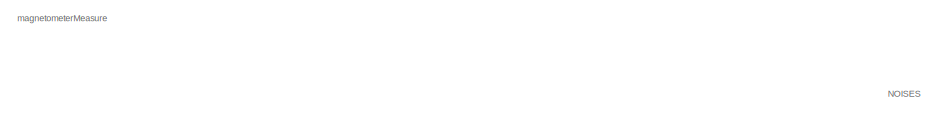
[diagram: magnetometerModel - part 1/4, top left region]
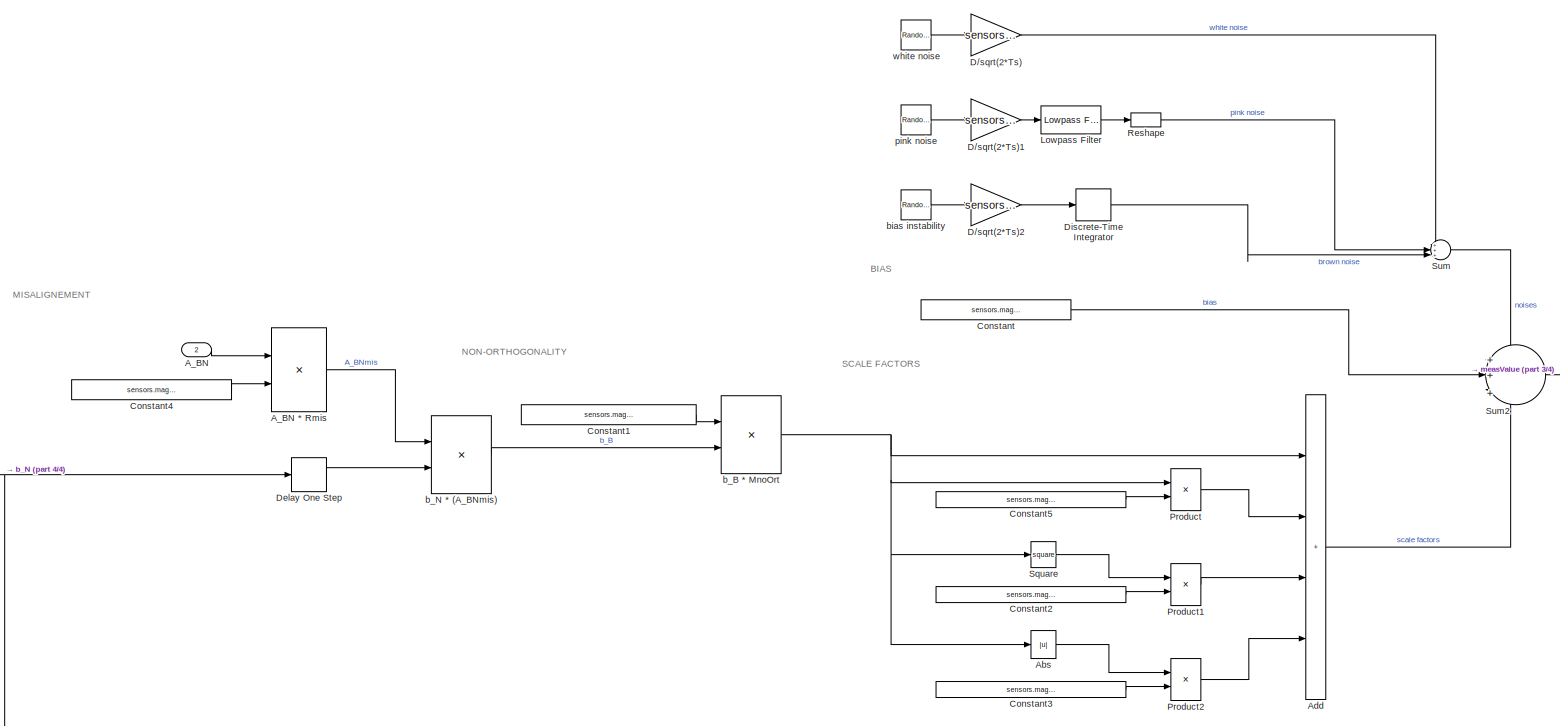
[diagram: magnetometerModel - part 2/4, central region]
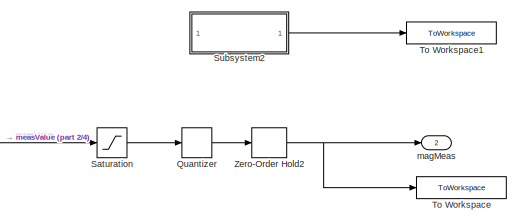
[diagram: magnetometerModel - part 3/4, middle right region]
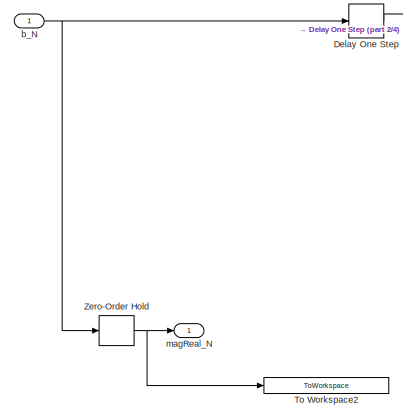
[diagram: magnetometerModel - part 4/4, bottom left region]
BLOCK [SubSystem] magnetometerModel
BLOCK [Inport] magnetometerModel/A_BN
  Port = 2
BLOCK [Product] magnetometerModel/A_BN * Rmis
  Multiplication = Matrix(*)
BLOCK [Abs] magnetometerModel/Abs
  SaturateOnIntegerOverflow = off
BLOCK [Sum] magnetometerModel/Add
  IconShape = rectangular
  Inputs = ++++
BLOCK [Constant] magnetometerModel/Constant
  Value = sensors.magnetometer.bias
BLOCK [Constant] magnetometerModel/Constant1
  Value = sensors.magnetometer.MnonOrthog
BLOCK [Constant] magnetometerModel/Constant2
  Value = sensors.magnetometer.SFnonLinear
BLOCK [Constant] magnetometerModel/Constant3
  Value = sensors.magnetometer.SFnonSimm
BLOCK [Constant] magnetometerModel/Constant4
  Value = sensors.magnetometer.Rmisalign
BLOCK [Constant] magnetometerModel/Constant5
  Value = sensors.magnetometer.SFlinear
BLOCK [Gain] magnetometerModel/D//sqrt(2*Ts)
  Gain = sensors.magnetometer.noiseDensity/sqrt(2*sensors.magnetometer.sampleTime)
BLOCK [Gain] magnetometerModel/D//sqrt(2*Ts)1
  Gain = sensors.magnetometer.noiseDensity/sqrt(2*sensors.magnetometer.sampleTime)
BLOCK [Gain] magnetometerModel/D//sqrt(2*Ts)2
  Gain = sensors.magnetometer.noiseDensity/sqrt(2*sensors.magnetometer.sampleTime)
BLOCK [Delay] magnetometerModel/Delay One Step
  DelayLength = sensors.magnetometer.delay
  InputPortMap = u0
BLOCK [DiscreteIntegrator] magnetometerModel/Discrete-Time Integrator
  ICPrevOutput = DiscIntNeverNeededParam
  ICPrevScaledInput = DiscIntNeverNeededParam
  InitialConditionSetting = Auto
  SampleTime = -1
BLOCK [Reference] magnetometerModel/Lowpass Filter  REF=dspfdesign/Lowpass Filter
  SourceBlock = dspfdesign/Lowpass Filter
  SourceType = dsp.simulink.LowpassFilter
BLOCK [Product] magnetometerModel/Product
BLOCK [Product] magnetometerModel/Product1
BLOCK [Product] magnetometerModel/Product2
BLOCK [Quantizer] magnetometerModel/Quantizer
  QuantizationInterval = sensors.magnetometer.resolution
BLOCK [Reshape] magnetometerModel/Reshape
BLOCK [Saturate] magnetometerModel/Saturation
  LowerLimit = -sensors.magnetometer.saturation
  UpperLimit = sensors.magnetometer.saturation
BLOCK [Math] magnetometerModel/Square
  Operator = square
BLOCK [SubSystem] magnetometerModel/Subsystem2
BLOCK [Clock] magnetometerModel/Subsystem2/Clock2
BLOCK [ZeroOrderHold] magnetometerModel/Subsystem2/Zero-Order Hold
  SampleTime = sensors.magnetometer.sampleTime
BLOCK [Outport] magnetometerModel/Subsystem2/clock
BLOCK [Sum] magnetometerModel/Sum
  Inputs = +++|
BLOCK [Sum] magnetometerModel/Sum2
  Inputs = ++|+
BLOCK [ToWorkspace] magnetometerModel/To Workspace
  FixptAsFi = on
  MaxDataPoints = inf
  SampleTime = -1
  SaveFormat = Structure With Time
  VariableName = magnetometer
BLOCK [ToWorkspace] magnetometerModel/To Workspace1
  FixptAsFi = on
  MaxDataPoints = inf
  SampleTime = -1
  SaveFormat = Structure With Time
  VariableName = magTimeStamp
BLOCK [ToWorkspace] magnetometerModel/To Workspace2
  FixptAsFi = on
  MaxDataPoints = inf
  SampleTime = -1
  VariableName = magReal_N
BLOCK [ZeroOrderHold] magnetometerModel/Zero-Order Hold
  SampleTime = sensors.magnetometer.sampleTime
BLOCK [ZeroOrderHold] magnetometerModel/Zero-Order Hold2
  SampleTime = sensors.magnetometer.sampleTime
BLOCK [Product] magnetometerModel/b_B * MnoOrt
  Multiplication = Matrix(*)
BLOCK [Inport] magnetometerModel/b_N
BLOCK [Product] magnetometerModel/b_N * (A_BNmis)
  Multiplication = Matrix(*)
BLOCK [RandomNumber] magnetometerModel/bias instability
  SampleTime = 0.1
  Seed = sensors.magnetometer.noiseSeed
BLOCK [Outport] magnetometerModel/magMeas
  Port = 2
BLOCK [Outport] magnetometerModel/magReal_N
BLOCK [RandomNumber] magnetometerModel/pink noise
  SampleTime = 0.1
  Seed = sensors.magnetometer.noiseSeed
BLOCK [RandomNumber] magnetometerModel/white noise
  SampleTime = 0.1
  Seed = sensors.magnetometer.noiseSeed
BLOCK [SubSystem] orthoNormalization
BLOCK [Inport] orthoNormalization/A
BLOCK [Outport] orthoNormalization/Anew
BLOCK [Reference] orthoNormalization/Compare To Constant  REF=simulink/Logic and Bit
Operations/Compare
To Constant
  SourceBlock = simulink/Logic and Bit\nOperations/Compare\nTo Constant
  SourceType = Compare To Constant
BLOCK [Switch] orthoNormalization/Switch
  Criteria = u2 > Threshold
  InputSameDT = off
  SaturateOnIntegerOverflow = off
BLOCK [Inport] orthoNormalization/errOrtNormA
  Port = 2
BLOCK [SubSystem] orthoNormalization/orthonormalization
BLOCK [Inport] orthoNormalization/orthonormalization/A
BLOCK [Sum] orthoNormalization/orthonormalization/Add
  IconShape = rectangular
  Inputs = +-
BLOCK [Outport] orthoNormalization/orthonormalization/Anew
BLOCK [Gain] orthoNormalization/orthonormalization/Gain
  Gain = 3/2
BLOCK [Gain] orthoNormalization/orthonormalization/Gain1
  Gain = 1/2
BLOCK [Product] orthoNormalization/orthonormalization/Product1
  Inputs = 3
  Multiplication = Matrix(*)
BLOCK [Math] orthoNormalization/orthonormalization/Transpose
  Operator = transpose
BLOCK [SubSystem] ortoNormality-check
BLOCK [Sum] ortoNormality-check/Add
  IconShape = rectangular
  Inputs = +-
BLOCK [Sum] ortoNormality-check/Add1
  IconShape = rectangular
  Inputs = +-
BLOCK [Inport] ortoNormality-check/Anew
BLOCK [Constant] ortoNormality-check/Constant
  Value = eye(3)
BLOCK [Constant] ortoNormality-check/Constant1
  Value = 2
BLOCK [Constant] ortoNormality-check/Constant2
  Value = eye(3)
BLOCK [Constant] ortoNormality-check/Constant3
  Value = 2
BLOCK [Product] ortoNormality-check/MatrixMultiply
  Multiplication = Matrix(*)
BLOCK [Product] ortoNormality-check/MatrixMultiply1
  Multiplication = Matrix(*)
BLOCK [MinMax] ortoNormality-check/Max
  Function = max
  Inputs = 2
BLOCK [Math] ortoNormality-check/Power
  Operator = pow
BLOCK [Math] ortoNormality-check/Power1
  Operator = pow
BLOCK [Reshape] ortoNormality-check/Reshape
BLOCK [Reshape] ortoNormality-check/Reshape1
BLOCK [Scope] ortoNormality-check/Scope
  Floating = off
  NumInputPorts = 1
  ScopeSpecificationString = Simulink.scopes.TimeScopeBlockCfg('CurrentConfiguration', extmgr.ConfigurationSet(extmgr.Configuration('Core','General UI',true),extmgr.Configuration('Core','Source UI',true),extmgr.Configuration('Sources','WiredSimulink',true,'DataLoggingVariableName','ScopeData1'),extmgr.Configuration('Visuals','Time Domain',true,'SerializedDisplays',{struct('MinYLimReal','-0.000000000000002','MaxYLimReal','0.00...<+1581ch>
BLOCK [Sqrt] ortoNormality-check/Sqrt
BLOCK [Sqrt] ortoNormality-check/Sqrt1
BLOCK [Sum] ortoNormality-check/Sum of Elements
  IconShape = rectangular
  Inputs = +
BLOCK [Sum] ortoNormality-check/Sum of Elements1
  IconShape = rectangular
  Inputs = +
BLOCK [ToWorkspace] ortoNormality-check/To Workspace
  FixptAsFi = on
  MaxDataPoints = inf
  SampleTime = -1
  VariableName = errOrtNormA
BLOCK [Math] ortoNormality-check/Transpose
  Operator = transpose
BLOCK [Math] ortoNormality-check/Transpose1
  Operator = transpose
BLOCK [Outport] ortoNormality-check/errOrtNormA
BLOCK [SubSystem] positionVect
BLOCK [Constant] positionVect/Constant
  Value = data.i
BLOCK [Product] positionVect/Product
BLOCK [ToWorkspace] positionVect/To Workspace
  FixptAsFi = on
  MaxDataPoints = inf
  SampleTime = -1
  VariableName = r_N
BLOCK [SubSystem] positionVect/direction
BLOCK [Trigonometry] positionVect/direction/Cos
  Operator = cos
BLOCK [Trigonometry] positionVect/direction/Cos1
  Operator = cos
BLOCK [Product] positionVect/direction/Product
BLOCK [Product] positionVect/direction/Product1
BLOCK [Trigonometry] positionVect/direction/Sin
BLOCK [Trigonometry] positionVect/direction/Sin1
BLOCK [Concatenate] positionVect/direction/Vector Concatenate
  NumInputs = 3
BLOCK [Outport] positionVect/direction/dir
BLOCK [Inport] positionVect/direction/i
  Port = 2
BLOCK [Inport] positionVect/direction/theta
BLOCK [Outport] positionVect/r_N
BLOCK [Inport] positionVect/theta
BLOCK [SubSystem] positionVect/value
BLOCK [Sum] positionVect/value/Add
  IconShape = rectangular
BLOCK [Sum] positionVect/value/Add1
  IconShape = rectangular
  Inputs = +-
BLOCK [Constant] positionVect/value/Constant1
BLOCK [Constant] positionVect/value/Constant2
  Value = data.e
BLOCK [Constant] positionVect/value/Constant3
BLOCK [Trigonometry] positionVect/value/Cos
  Operator = cos
BLOCK [Product] positionVect/value/Divide
  Inputs = */
BLOCK [Gain] positionVect/value/Gain
  Gain = data.e
BLOCK [Gain] positionVect/value/Gain1
  Gain = data.a
BLOCK [Math] positionVect/value/Square
  Operator = square
BLOCK [Outport] positionVect/value/r
BLOCK [Inport] positionVect/value/theta
BLOCK [SubSystem] reactionWheel
BLOCK [Reference] reactionWheel/Band-Limited White Noise  REF=simulink/Sources/Band-Limited
White Noise
  SourceBlock = simulink/Sources/Band-Limited\nWhite Noise
  SourceType = Band-Limited White Noise.
BLOCK [Constant] reactionWheel/Constant
  Value = 0
BLOCK [Constant] reactionWheel/Constant1
  Value = 0
BLOCK [Reference] reactionWheel/Cross Product  REF=matrix_library/Cross Product
  LibrarySourceBlock = simulink/Matrix\nOperations/Cross Product
  SourceBlock = matrix_library/Cross Product
  SourceType = CrossProduct
BLOCK [Reference] reactionWheel/Cross Product1  REF=matrix_library/Cross Product
  LibrarySourceBlock = simulink/Matrix\nOperations/Cross Product
  SourceBlock = matrix_library/Cross Product
  SourceType = CrossProduct
BLOCK [DiscreteIntegrator] reactionWheel/Discrete-Time Integrator
  ICPrevOutput = DiscIntNeverNeededParam
  ICPrevScaledInput = DiscIntNeverNeededParam
  InitialConditionSetting = Auto
  LimitOutput = on
  LowerSaturationLimit = -actuators.wheel.maxMomentum
  SampleTime = -1
  UpperSaturationLimit = actuators.wheel.maxMomentum
BLOCK [EnablePort] reactionWheel/Enable
BLOCK [Gain] reactionWheel/Gain
  Gain = data.Imatrix
  Multiplication = Matrix(u*K)
BLOCK [Quantizer] reactionWheel/Quantizer
  QuantizationInterval = 1e-6
BLOCK [RateLimiter] reactionWheel/Rate Limiter
  FallingSlewLimit = -actuators.wheel.maxSpeed
  RisingSlewLimit = actuators.wheel.maxSpeed
  SampleTimeMode = inherited
BLOCK [RateLimiter] reactionWheel/Rate Limiter1
  FallingSlewLimit = -actuators.wheel.maxSpeed
  RisingSlewLimit = actuators.wheel.maxSpeed
  SampleTimeMode = inherited
BLOCK [Saturate] reactionWheel/Saturation
  LowerLimit = -actuators.wheel.maxTorque
  UpperLimit = actuators.wheel.maxTorque
BLOCK [Saturate] reactionWheel/Saturation1
  LowerLimit = -actuators.wheel.maxMomentum
  UpperLimit = actuators.wheel.maxMomentum
BLOCK [Selector] reactionWheel/Selector
  IndexOptions = Index vector (dialog)
  Indices = 3
  InputPortWidth = 3
  OutputSizes = 1
BLOCK [Sum] reactionWheel/Sum
  Inputs = +++
BLOCK [Sum] reactionWheel/Sum1
  Inputs = |++
BLOCK [ToWorkspace] reactionWheel/To Workspace
  FixptAsFi = on
  MaxDataPoints = inf
  SampleTime = -1
  VariableName = hDotWheel
BLOCK [ToWorkspace] reactionWheel/To Workspace1
  FixptAsFi = on
  MaxDataPoints = inf
  SampleTime = -1
  VariableName = hWheel
BLOCK [Concatenate] reactionWheel/Vector Concatenate
  NumInputs = 3
BLOCK [SubSystem] reactionWheel/backup
  Commented = on
BLOCK [Reference] reactionWheel/backup/Band-Limited White Noise  REF=simulink/Sources/Band-Limited
White Noise
  Commented = on
  SourceBlock = simulink/Sources/Band-Limited\nWhite Noise
  SourceType = Band-Limited White Noise.
BLOCK [Constant] reactionWheel/backup/Constant
  Value = 0
BLOCK [Constant] reactionWheel/backup/Constant1
  Value = 0
BLOCK [DiscreteIntegrator] reactionWheel/backup/Discrete-Time Integrator
  ICPrevOutput = DiscIntNeverNeededParam
  ICPrevScaledInput = DiscIntNeverNeededParam
  InitialConditionSetting = Auto
  LimitOutput = on
  LowerSaturationLimit = -actuators.wheel.maxMomentum
  SampleTime = -1
  UpperSaturationLimit = actuators.wheel.maxMomentum
BLOCK [Quantizer] reactionWheel/backup/Quantizer
  Commented = through
BLOCK [RateLimiter] reactionWheel/backup/Rate Limiter
  FallingSlewLimit = -0.01
  RisingSlewLimit = 0.01
  SampleTimeMode = inherited
BLOCK [RateLimiter] reactionWheel/backup/Rate Limiter1
  FallingSlewLimit = -0.01
  RisingSlewLimit = 0.01
  SampleTimeMode = inherited
BLOCK [Saturate] reactionWheel/backup/Saturation
BLOCK [Selector] reactionWheel/backup/Selector
  IndexOptions = Index vector (dialog)
  Indices = 3
  InputPortWidth = 3
  OutputSizes = 1
BLOCK [Sum] reactionWheel/backup/Sum
  Inputs = +++
BLOCK [Concatenate] reactionWheel/backup/Vector Concatenate
  NumInputs = 3
BLOCK [Inport] reactionWheel/backup/controlTq
BLOCK [Outport] reactionWheel/backup/hDotWheel
BLOCK [Outport] reactionWheel/backup/hWheel
  Port = 2
BLOCK [Inport] reactionWheel/backup/w_corr
  Port = 2
BLOCK [Inport] reactionWheel/controlTq
BLOCK [Outport] reactionWheel/hDotWheel
BLOCK [Outport] reactionWheel/hWheel
  NameLocation = top
  Port = 2
BLOCK [Inport] reactionWheel/w_corr
  Port = 2
BLOCK [SubSystem] ref Attitude
BLOCK [Outport] ref Attitude/A_LN
BLOCK [Constant] ref Attitude/Constant
  Value = data.wL
BLOCK [Product] ref Attitude/R_theta * R_i
  Multiplication = Matrix(*)
BLOCK [SubSystem] ref Attitude/Subsystem
BLOCK [Constant] ref Attitude/Subsystem/Constant1
  Value = [0,0,1]
  VectorParams1D = off
BLOCK [Constant] ref Attitude/Subsystem/Constant2
  Value = 0
BLOCK [Trigonometry] ref Attitude/Subsystem/Cos
  Operator = cos
BLOCK [Trigonometry] ref Attitude/Subsystem/Cos1
BLOCK [Gain] ref Attitude/Subsystem/Gain1
  Gain = -1
BLOCK [Outport] ref Attitude/Subsystem/R_theta
BLOCK [Reshape] ref Attitude/Subsystem/Reshape
  OutputDimensionality = Row vector (2-D)
BLOCK [Reshape] ref Attitude/Subsystem/Reshape1
  OutputDimensionality = Row vector (2-D)
BLOCK [Concatenate] ref Attitude/Subsystem/Vector Concatenate
  NumInputs = 3
BLOCK [Concatenate] ref Attitude/Subsystem/Vector Concatenate1
  NumInputs = 3
BLOCK [Concatenate] ref Attitude/Subsystem/Vector Concatenate2
  Mode = Multidimensional array
  NumInputs = 3
BLOCK [Inport] ref Attitude/Subsystem/theta
BLOCK [SubSystem] ref Attitude/Subsystem1
BLOCK [Constant] ref Attitude/Subsystem1/Constant
  Value = data.i
BLOCK [Constant] ref Attitude/Subsystem1/Constant1
  Value = [1,0,0]
  VectorParams1D = off
BLOCK [Constant] ref Attitude/Subsystem1/Constant2
  Value = 0
BLOCK [Trigonometry] ref Attitude/Subsystem1/Cos
  Operator = cos
BLOCK [Trigonometry] ref Attitude/Subsystem1/Cos1
BLOCK [Gain] ref Attitude/Subsystem1/Gain1
  Gain = -1
BLOCK [Outport] ref Attitude/Subsystem1/R_i
BLOCK [Reshape] ref Attitude/Subsystem1/Reshape
  OutputDimensionality = Row vector (2-D)
BLOCK [Reshape] ref Attitude/Subsystem1/Reshape1
  OutputDimensionality = Row vector (2-D)
BLOCK [Concatenate] ref Attitude/Subsystem1/Vector Concatenate
  NumInputs = 3
BLOCK [Concatenate] ref Attitude/Subsystem1/Vector Concatenate1
  NumInputs = 3
BLOCK [Concatenate] ref Attitude/Subsystem1/Vector Concatenate2
  Mode = Multidimensional array
  NumInputs = 3
BLOCK [Inport] ref Attitude/theta
BLOCK [Outport] ref Attitude/w_L
  Port = 2
BLOCK [SubSystem] starSensorModel
BLOCK [Inport] starSensorModel/A_BN
BLOCK [RateTransition] starSensorModel/Rate Transition5
  OutPortSampleTime = sensors.starSensor.sampleTime
BLOCK [SubSystem] starSensorModel/Subsystem
BLOCK [SubSystem] starSensorModel/Subsystem Reference
  ReferencedSubsystem = starSensorMeasure
BLOCK [SubSystem] starSensorModel/Subsystem Reference1
  ReferencedSubsystem = starSensorMeasure
BLOCK [SubSystem] starSensorModel/Subsystem Reference2
  ReferencedSubsystem = starSensorMeasure
BLOCK [SubSystem] starSensorModel/Subsystem Reference3
  ReferencedSubsystem = starSensorMeasure
BLOCK [Clock] starSensorModel/Subsystem/Clock2
BLOCK [ZeroOrderHold] starSensorModel/Subsystem/Zero-Order Hold
  SampleTime = sensors.starSensor.sampleTime
BLOCK [Outport] starSensorModel/Subsystem/clock
BLOCK [ToWorkspace] starSensorModel/To Workspace1
  FixptAsFi = on
  MaxDataPoints = inf
  SampleTime = -1
  SaveFormat = Structure With Time
  VariableName = starSensTimeStamp
BLOCK [ZeroOrderHold] starSensorModel/Zero-Order Hold
  SampleTime = sensors.starSensor.sampleTime
BLOCK [ZeroOrderHold] starSensorModel/Zero-Order Hold1
  SampleTime = sensors.starSensor.sampleTime
BLOCK [ZeroOrderHold] starSensorModel/Zero-Order Hold2
  SampleTime = sensors.starSensor.sampleTime
BLOCK [ZeroOrderHold] starSensorModel/Zero-Order Hold3
  SampleTime = sensors.starSensor.sampleTime
BLOCK [Outport] starSensorModel/r1
  Port = 5
BLOCK [Outport] starSensorModel/r2
  Port = 6
BLOCK [Outport] starSensorModel/r3
  Port = 7
BLOCK [Outport] starSensorModel/r4
  Port = 8
BLOCK [Outport] starSensorModel/sMeas1
BLOCK [Outport] starSensorModel/sMeas2
  Port = 2
BLOCK [Outport] starSensorModel/sMeas3
  Port = 3
BLOCK [Outport] starSensorModel/sMeas4
  Port = 4
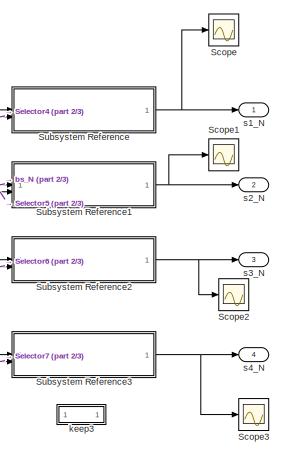
[diagram: starSensorModel/star mapping - part 1/3, right side, full height]
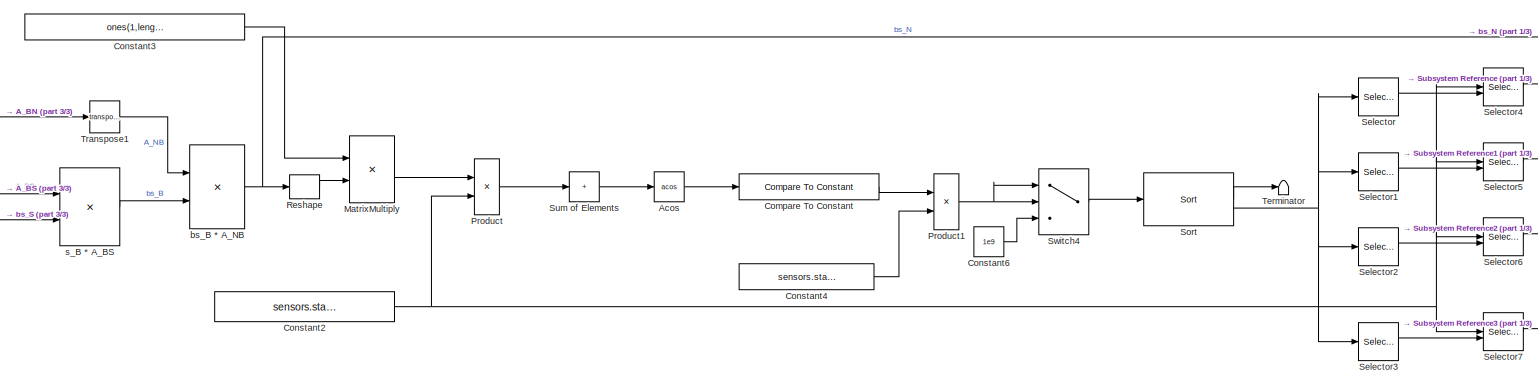
[diagram: starSensorModel/star mapping - part 2/3, center side, full height]
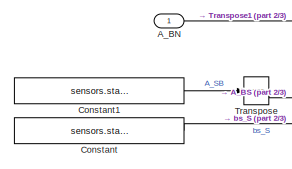
[diagram: starSensorModel/star mapping - part 3/3, middle left region]
BLOCK [SubSystem] starSensorModel/star mapping
BLOCK [Inport] starSensorModel/star mapping/A_BN
  NameLocation = top
BLOCK [Trigonometry] starSensorModel/star mapping/Acos
  Operator = acos
BLOCK [Reference] starSensorModel/star mapping/Compare To Constant  REF=simulink/Logic and Bit
Operations/Compare
To Constant
  SourceBlock = simulink/Logic and Bit\nOperations/Compare\nTo Constant
  SourceType = Compare To Constant
BLOCK [Constant] starSensorModel/star mapping/Constant
  Value = sensors.starSensor.boresightAxis
BLOCK [Constant] starSensorModel/star mapping/Constant1
  Value = sensors.starSensor.MsensFrame
BLOCK [Constant] starSensorModel/star mapping/Constant2
  Value = sensors.starSensor.starVecs_N
BLOCK [Constant] starSensorModel/star mapping/Constant3
  Value = ones(1,length(sensors.starSensor.MAG))'
  VectorParams1D = off
BLOCK [Constant] starSensorModel/star mapping/Constant4
  Value = sensors.starSensor.MAG
BLOCK [Constant] starSensorModel/star mapping/Constant6
  Value = 1e9
BLOCK [Product] starSensorModel/star mapping/MatrixMultiply
  Multiplication = Matrix(*)
BLOCK [Product] starSensorModel/star mapping/Product
BLOCK [Product] starSensorModel/star mapping/Product1
BLOCK [Reshape] starSensorModel/star mapping/Reshape
  OutputDimensionality = Row vector (2-D)
BLOCK [Scope] starSensorModel/star mapping/Scope
  Floating = off
  NumInputPorts = 1
  ScopeSpecificationString = Simulink.scopes.TimeScopeBlockCfg('CurrentConfiguration', extmgr.ConfigurationSet(extmgr.Configuration('Core','General UI',true),extmgr.Configuration('Core','Source UI',true),extmgr.Configuration('Sources','WiredSimulink',true,'DataLoggingVariableName','ScopeData6'),extmgr.Configuration('Visuals','Time Domain',true,'SerializedDisplays',{struct('MinYLimReal','-0.39397','MaxYLimReal','1.11936','YLab...<+1585ch>
BLOCK [Scope] starSensorModel/star mapping/Scope1
  Floating = off
  NumInputPorts = 1
  ScopeSpecificationString = Simulink.scopes.TimeScopeBlockCfg('CurrentConfiguration', extmgr.ConfigurationSet(extmgr.Configuration('Core','General UI',true),extmgr.Configuration('Core','Source UI',true),extmgr.Configuration('Sources','WiredSimulink',true,'DataLoggingVariableName','ScopeData7'),extmgr.Configuration('Visuals','Time Domain',true,'SerializedDisplays',{struct('MinYLimReal','-0.39068','MaxYLimReal','1.00879','YLab...<+1588ch>
BLOCK [Scope] starSensorModel/star mapping/Scope2
  Floating = off
  NumInputPorts = 1
  ScopeSpecificationString = Simulink.scopes.TimeScopeBlockCfg('CurrentConfiguration', extmgr.ConfigurationSet(extmgr.Configuration('Core','General UI',true),extmgr.Configuration('Core','Source UI',true),extmgr.Configuration('Sources','WiredSimulink',true,'DataLoggingVariableName','ScopeData8'),extmgr.Configuration('Visuals','Time Domain',true,'SerializedDisplays',{struct('MinYLimReal','-0.53264','MaxYLimReal','1.02629','YLab...<+1588ch>
BLOCK [Scope] starSensorModel/star mapping/Scope3
  Floating = off
  NumInputPorts = 1
  ScopeSpecificationString = Simulink.scopes.TimeScopeBlockCfg('CurrentConfiguration', extmgr.ConfigurationSet(extmgr.Configuration('Core','General UI',true),extmgr.Configuration('Core','Source UI',true),extmgr.Configuration('Sources','WiredSimulink',true,'DataLoggingVariableName','ScopeData9'),extmgr.Configuration('Visuals','Time Domain',true,'SerializedDisplays',{struct('MinYLimReal','-0.11481','MaxYLimReal','1.10601','YLab...<+1575ch>
BLOCK [Selector] starSensorModel/star mapping/Selector
  IndexOptions = Index vector (dialog)
  Indices = 1
  InputPortWidth = length(sensors.starSensor.MAG)
  OutputSizes = 1
BLOCK [Selector] starSensorModel/star mapping/Selector1
  IndexOptions = Index vector (dialog)
  Indices = 2
  InputPortWidth = length(sensors.starSensor.MAG)
  OutputSizes = 1
BLOCK [Selector] starSensorModel/star mapping/Selector2
  IndexOptions = Index vector (dialog)
  Indices = 3
  InputPortWidth = length(sensors.starSensor.MAG)
  OutputSizes = 1
BLOCK [Selector] starSensorModel/star mapping/Selector3
  IndexOptions = Index vector (dialog)
  Indices = 4
  InputPortWidth = length(sensors.starSensor.MAG)
  OutputSizes = 1
BLOCK [Selector] starSensorModel/star mapping/Selector4
  IndexOptions = Index vector (port),Select all
  Indices = [1 3],1
  InputPortWidth = 3
  NumberOfDimensions = 2
  OutputSizes = 1,1
BLOCK [Selector] starSensorModel/star mapping/Selector5
  IndexOptions = Index vector (port),Select all
  Indices = [1 3],1
  InputPortWidth = 3
  NumberOfDimensions = 2
  OutputSizes = 1,1
BLOCK [Selector] starSensorModel/star mapping/Selector6
  IndexOptions = Index vector (port),Select all
  Indices = [1 3],1
  InputPortWidth = 3
  NumberOfDimensions = 2
  OutputSizes = 1,1
BLOCK [Selector] starSensorModel/star mapping/Selector7
  IndexOptions = Index vector (port),Select all
  Indices = [1 3],1
  InputPortWidth = 3
  NumberOfDimensions = 2
  OutputSizes = 1,1
BLOCK [Reference] starSensorModel/star mapping/Sort  REF=dspstat3/Sort
  SourceBlock = dspstat3/Sort
  SourceType = Sort
BLOCK [SubSystem] starSensorModel/star mapping/Subsystem Reference
  ReferencedSubsystem = keepWhileInFOV
BLOCK [SubSystem] starSensorModel/star mapping/Subsystem Reference1
  ReferencedSubsystem = keepWhileInFOV
BLOCK [SubSystem] starSensorModel/star mapping/Subsystem Reference2
  ReferencedSubsystem = keepWhileInFOV
BLOCK [SubSystem] starSensorModel/star mapping/Subsystem Reference3
  ReferencedSubsystem = keepWhileInFOV
BLOCK [Sum] starSensorModel/star mapping/Sum of Elements
  CollapseDim = 2
  CollapseMode = Specified dimension
  IconShape = rectangular
  Inputs = +
BLOCK [Switch] starSensorModel/star mapping/Switch4
  Criteria = u2 > Threshold
  InputSameDT = off
  SaturateOnIntegerOverflow = off
BLOCK [Terminator] starSensorModel/star mapping/Terminator
BLOCK [Math] starSensorModel/star mapping/Transpose
  Operator = transpose
BLOCK [Math] starSensorModel/star mapping/Transpose1
  Operator = transpose
BLOCK [Product] starSensorModel/star mapping/bs_B * A_NB
  Multiplication = Matrix(*)
BLOCK [SubSystem] starSensorModel/star mapping/keep3
  Commented = on
BLOCK [Abs] starSensorModel/star mapping/keep3/Abs
  SaturateOnIntegerOverflow = off
BLOCK [Inport] starSensorModel/star mapping/keep3/In1
BLOCK [Memory] starSensorModel/star mapping/keep3/Memory
  InheritSampleTime = on
BLOCK [Sum] starSensorModel/star mapping/keep3/Sum of Elements1
  IconShape = rectangular
  Inputs = +
BLOCK [Switch] starSensorModel/star mapping/keep3/Switch
  Criteria = u2 > Threshold
  InputSameDT = off
  SaturateOnIntegerOverflow = off
BLOCK [Outport] starSensorModel/star mapping/keep3/s_N4
BLOCK [Outport] starSensorModel/star mapping/s1_N
BLOCK [Outport] starSensorModel/star mapping/s2_N
  Port = 2
BLOCK [Outport] starSensorModel/star mapping/s3_N
  Port = 3
BLOCK [Outport] starSensorModel/star mapping/s4_N
  Port = 4
BLOCK [Product] starSensorModel/star mapping/s_B * A_BS
  Multiplication = Matrix(*)
BLOCK [SubSystem] thetaOrbit
BLOCK [Constant] thetaOrbit/Constant
  Value = init.theta
BLOCK [Integrator] thetaOrbit/Integrator
  InitialConditionSource = external
  WrapState = on
  WrappedStateLowerValue = 0
  WrappedStateUpperValue = 2*pi
BLOCK [Scope] thetaOrbit/Scope
  Floating = off
  NumInputPorts = 1
  ScopeSpecificationString = Simulink.scopes.TimeScopeBlockCfg('CurrentConfiguration', extmgr.ConfigurationSet(extmgr.Configuration('Core','General UI',true),extmgr.Configuration('Core','Source UI',true),extmgr.Configuration('Sources','WiredSimulink',true,'DataLoggingVariableName','ScopeData2'),extmgr.Configuration('Visuals','Time Domain',true,'SerializedDisplays',{struct('MinYLimReal','-0.7854','MaxYLimReal','7.06857','YLabe...<+1485ch>
BLOCK [Outport] thetaOrbit/theta
  Port = 2
BLOCK [Outport] thetaOrbit/thetaDot
BLOCK [SubSystem] thetaOrbit/theta_dot
BLOCK [Sum] thetaOrbit/theta_dot/Add
  IconShape = rectangular
BLOCK [Constant] thetaOrbit/theta_dot/Constant
  Value = data.e
BLOCK [Constant] thetaOrbit/theta_dot/Constant1
BLOCK [Constant] thetaOrbit/theta_dot/Constant2
  Value = 3/2
BLOCK [Constant] thetaOrbit/theta_dot/Constant3
  Value = data.n_sc
BLOCK [Constant] thetaOrbit/theta_dot/Constant4
BLOCK [Trigonometry] thetaOrbit/theta_dot/Cos
  Operator = cos
BLOCK [Product] thetaOrbit/theta_dot/Divide
  Inputs = */
BLOCK [Gain] thetaOrbit/theta_dot/Gain
  Gain = data.e
BLOCK [Math] thetaOrbit/theta_dot/Power
  Operator = pow
BLOCK [Math] thetaOrbit/theta_dot/Power1
  Operator = square
BLOCK [Product] thetaOrbit/theta_dot/Product
BLOCK [Math] thetaOrbit/theta_dot/Square
  Operator = square
BLOCK [Sum] thetaOrbit/theta_dot/Subtract
  IconShape = rectangular
  Inputs = +-
BLOCK [Inport] thetaOrbit/theta_dot/theta
BLOCK [Outport] thetaOrbit/theta_dot/theta_dot
BLOCK [SubSystem] velocityVect
BLOCK [Constant] velocityVect/Constant
  Value = 3
BLOCK [Constant] velocityVect/Constant1
  Value = constant.mu
BLOCK [Constant] velocityVect/Constant2
  Value = init.v0
BLOCK [Product] velocityVect/Divide
  Inputs = */
BLOCK [Gain] velocityVect/Gain
  Gain = -1
BLOCK [Integrator] velocityVect/Integrator1
  InitialConditionSource = external
BLOCK [Math] velocityVect/Power
  Operator = pow
BLOCK [Scope] velocityVect/Scope
  Floating = off
  NumInputPorts = 1
  ScopeSpecificationString = Simulink.scopes.TimeScopeBlockCfg('CurrentConfiguration', extmgr.ConfigurationSet(extmgr.Configuration('Core','General UI',true),extmgr.Configuration('Core','Source UI',true),extmgr.Configuration('Sources','WiredSimulink',true,'DataLoggingVariableName','ScopeData1'),extmgr.Configuration('Visuals','Time Domain',true,'SerializedDisplays',{struct('MinYLimReal','2.52701','MaxYLimReal','13.26306','YLab...<+1505ch>
BLOCK [SubSystem] velocityVect/Subsystem Reference
  ReferencedSubsystem = vecNorm
BLOCK [Terminator] velocityVect/Terminator
BLOCK [Inport] velocityVect/r_N
BLOCK [Outport] velocityVect/v_N
BLOCK [Constant] w target
  Value = [0,0,0]
BLOCK [SubSystem] wHatMatrix
BLOCK [Constant] wHatMatrix/Constant
  Value = 0
BLOCK [Demux] wHatMatrix/Demux
  Outputs = 3
BLOCK [Gain] wHatMatrix/Gain
  Gain = -1
BLOCK [Gain] wHatMatrix/Gain1
  Gain = -1
BLOCK [Gain] wHatMatrix/Gain2
  Gain = -1
BLOCK [Reshape] wHatMatrix/Reshape
  OutputDimensionality = Row vector (2-D)
BLOCK [Reshape] wHatMatrix/Reshape1
  OutputDimensionality = Row vector (2-D)
BLOCK [Reshape] wHatMatrix/Reshape2
  OutputDimensionality = Row vector (2-D)
BLOCK [Concatenate] wHatMatrix/Vector Concatenate
  NumInputs = 3
BLOCK [Concatenate] wHatMatrix/Vector Concatenate1
  NumInputs = 3
BLOCK [Concatenate] wHatMatrix/Vector Concatenate2
  NumInputs = 3
BLOCK [Concatenate] wHatMatrix/Vector Concatenate3
  Mode = Multidimensional array
  NumInputs = 3
BLOCK [Outport] wHatMatrix/[w]
BLOCK [Inport] wHatMatrix/w
ANNOTATION (root): REAL WORLD
ANNOTATION (root): SPACECRAFT
ANNOTATION (root): ACTUATORS
ANNOTATION (root): Attitude error
ANNOTATION (root): CONTROL
ANNOTATION (root): DYNAMIC
ANNOTATION (root): DYNAMIC ATTITUDE DETERMINATION - MULTIPLICATIVE EXTENDED KALMAN FILTER
ANNOTATION (root): ENVIRONMENT
ANNOTATION (root): GUIDANCE
ANNOTATION (root): KINEMATIC
ANNOTATION (root): SENSORS
ANNOTATION (root): STATIC ATTITUDE DETERMINATION
ANNOTATION (root): Subsystem
ANNOTATION (root): attitudeKinematicDCM
ANNOTATION (root): keplerian Dynamic
ANNOTATION MEKF ESTIMATION/CORRECTION: %% CORRECTION STEP % aggiornamento stato dx_corr = K * y; % correzione assetto (multiplicative) dTheta = 0.5*+dx_corr(1:3); dq = [1 ; dTheta]'; dq = dq / norm(dq); q_corr = quatmultiply(q_pred,dq); q_corr = q_corr/norm(q_corr); % correzione velocità angolari dw = dx_corr(4:6)'; w_corr = w_pred + dw; % aggiornamento matrice covarianza: formula Joseph P_corr = (eye(6) - K * H) * P_pred * (eye(6) - K...<+182ch>
ANNOTATION MEKF ESTIMATION/CORRECTION/COVARIANCE MATRIX: % aggiornamento matrice covarianza: formula Joseph P_corr = (eye(6) - K * H) * P_pred * (eye(6) - K * H)' + K * R * K'; P_corr = 0.5 * (P_corr + P_corr'); % Simmetria min_cov = 1e-10; % Valore minimo di incertezza for i = 1:6 if P_corr(i,i) < min_cov P_corr(i,i) = min_cov; end end
ANNOTATION MEKF ESTIMATION/MEASUREMENT: scalar-last2scalar-first
ANNOTATION MEKF ESTIMATION/MEASUREMENT/KALMAN GAIN: %% kalman gain (K) % S = H * P_pred * H' + R; % epsilon = 1e-12; % S_reg = S + eye(size(S)) * epsilon; % K = (P_pred * H') / S_reg; % 1. Calcoliamo S (Denominatore) e Num_K (Numeratore) separati S = H * P_pred * H' + R; Num_K = P_pred * H'; S = S + eye(size(S)) * 1e-12; K = Num_K / S;
ANNOTATION MEKF ESTIMATION/MEASUREMENT/RESIDUALS: if size(q_pred,1) > 1 q_pred = q_pred'; % metti in riga end dq = quatmultiply(quatconj(q_pred),q_meas); if dq(1) < 0 dq = -dq; % evita ambiguita end
ANNOTATION MEKF ESTIMATION/MEASUREMENT/RESIDUALS: res_ss = dq(2:4) * 2; b_pred = quatrotate(q_pred,b_meas_N); res_mag = b_meas_B - b_pred; b_pred_skew = [0 , -b_pred(3) , b_pred(2) ; b_pred(3) , 0 , -b_pred(1) ; -b_pred(2) , b_pred(1) , 0 ]; y = [res_ss , res_mag]';
ANNOTATION MEKF ESTIMATION/MEASUREMENT/SENSITIVITY MATRIX: %% matrice di misura (H) H_ss = [eye(3) , zeros(3)]; H_mag = [b_pred_skew , zeros(3,3)]; H = [H_ss ; H_mag];
ANNOTATION MEKF ESTIMATION/MEASUREMENT/SENSITIVITY MATRIX/skewMatrix: b_pred_skew = [0 , -b_pred(3) , b_pred(2) ; b_pred(3) , 0 , -b_pred(1) ; -b_pred(2) , b_pred(1) , 0 ];
ANNOTATION MEKF ESTIMATION/PREDICTION/COVARIANCE MATRIX PROPAGATION: P_pred = PHI * P_corr * PHI' + Q; P_pred = 0.5 * (P_pred + P_pred');
ANNOTATION MEKF ESTIMATION/PREDICTION/STATE PROPAGATION: % cinematica quaernione w_corr_quat = [0, w_corr]; qDot_pred = 0.5 * quatmultiply(q_corr , w_corr_quat); q_pred = q_corr + qDot_pred * dt; q_pred = q_pred/norm(q_pred); % dinamica sistema wDot_pred = J \ (-cross(w_corr,J*w_corr') - cross(w_corr,h_RW) - hDot_RW + dist_Tq' + control_Tq)'; w_pred = w_corr + wDot_pred'*dt;
ANNOTATION TRIAD/attitudeDetermination_TRIAD/TRIAD - DCM determination: Smatrix
ANNOTATION TRIAD/attitudeDetermination_TRIAD/TRIAD - DCM determination: Vmatrix
ANNOTATION attitudeDetermination_QUATERNION: DAVENPORT'S q-METHOD (MAT FUNC)
ANNOTATION attitudeDetermination_QUATERNION: QUEST - SHUSTER
ANNOTATION attitudeDetermination_QUATERNION: QUEST METHOD
ANNOTATION attitudeDetermination_QUATERNION/compute Kmatrix: Smatrix
ANNOTATION attitudeDetermination_QUATERNION/compute Kmatrix: sigma
ANNOTATION attitudeDetermination_QUATERNION/compute Kmatrix: zVect
ANNOTATION attitudeDetermination_QUATERNION/quest - shuster: compute MAX eigenvalue
ANNOTATION attitudeDetermination_QUATERNION/quest - shuster/mewton method step-two/newton method : lambda0 can be setted as SIGMA only if two step newton is implemented
ANNOTATION attitudeDetermination_QUATERNION/quest - shuster/newton method step-one/newton method step-one: lambda0 can be setted as SIGMA only if two step newton is implemented
ANNOTATION attitudeError: attitudeError
ANNOTATION attitudeError: w_BL
ANNOTATION magnetometerModel: BIAS
ANNOTATION magnetometerModel: MISALIGNEMENT
ANNOTATION magnetometerModel: NOISES
ANNOTATION magnetometerModel: NON-ORTHOGONALITY
ANNOTATION magnetometerModel: SCALE FACTORS
ANNOTATION magnetometerModel: magnetometerMeasure
ANNOTATION thetaOrbit/theta_dot: approximation
NET Add1:1 -> Add:2, To Workspace2:1
LINE Add2:1 -> Add:3
LINE Add:1 -> Gain:1
LINE Constant1:1 -> Integrator:2
LINE Constant3:1 -> Integrator1:2
LINE Constant:1 -> Product:1
LINE Cross Product1:1 -> Gain2:1
LINE Cross Product:1 -> Add:1
NET DCM target:1 -> Direction Cosine Matrix to Quaternions:1, attitudeError1:2
NET DETUMBLING/B:1 -> DETUMBLING/Subsystem Reference:1, DETUMBLING/compute Bdot:1
LINE DETUMBLING/Divide:1 -> DETUMBLING/Gain:1
LINE DETUMBLING/Gain:1 -> DETUMBLING/Saturation:1
NET DETUMBLING/Saturation:1 -> DETUMBLING/Scope:1, DETUMBLING/mDet:1
LINE DETUMBLING/Subsystem Reference:1 -> DETUMBLING/Divide:2
LINE DETUMBLING/Subsystem Reference:2 -> DETUMBLING/Terminator:1
NET DETUMBLING/compute Bdot/B:1 -> DETUMBLING/compute Bdot/Scope1:1, DETUMBLING/compute Bdot/Selector1:1, DETUMBLING/compute Bdot/Selector2:1, DETUMBLING/compute Bdot/Selector:1
LINE DETUMBLING/compute Bdot/Selector1:1 -> DETUMBLING/compute Bdot/Transfer Fcn1:1
LINE DETUMBLING/compute Bdot/Selector2:1 -> DETUMBLING/compute Bdot/Transfer Fcn2:1
LINE DETUMBLING/compute Bdot/Selector:1 -> DETUMBLING/compute Bdot/Transfer Fcn3:1
LINE DETUMBLING/compute Bdot/Transfer Fcn1:1 -> DETUMBLING/compute Bdot/Vector Concatenate:2
LINE DETUMBLING/compute Bdot/Transfer Fcn2:1 -> DETUMBLING/compute Bdot/Vector Concatenate:3
LINE DETUMBLING/compute Bdot/Transfer Fcn3:1 -> DETUMBLING/compute Bdot/Vector Concatenate:1
NET DETUMBLING/compute Bdot/Vector Concatenate:1 -> DETUMBLING/compute Bdot/Bdot:1, DETUMBLING/compute Bdot/Scope:1
LINE DETUMBLING/compute Bdot:1 -> DETUMBLING/Divide:1
LINE DETUMBLING:1 -> Magnetorquers:3
LINE Direction Cosine Matrix to Quaternions:1 -> INERTIAL POINTING:3
LINE Gain1:1 -> Product1:1
LINE Gain2:1 -> Add:4
LINE Gain:1 -> Integrator:1
LINE INERTIAL POINTING/Define Error State/Gain:1 -> INERTIAL POINTING/Define Error State/Selector:1
LINE INERTIAL POINTING/Define Error State/Minus:1 -> INERTIAL POINTING/Define Error State/Reshape:1
LINE INERTIAL POINTING/Define Error State/Quaternion Conjugate:1 -> INERTIAL POINTING/Define Error State/Quaternion Multiplication:1
LINE INERTIAL POINTING/Define Error State/Quaternion Multiplication:1 -> INERTIAL POINTING/Define Error State/Gain:1
LINE INERTIAL POINTING/Define Error State/Radians to Degrees:1 -> INERTIAL POINTING/Define Error State/Scope1:1
LINE INERTIAL POINTING/Define Error State/Reshape1:1 -> INERTIAL POINTING/Define Error State/To Workspace:1
NET INERTIAL POINTING/Define Error State/Reshape:1 -> INERTIAL POINTING/Define Error State/Scope:1, INERTIAL POINTING/Define Error State/Vector Concatenate:2
NET INERTIAL POINTING/Define Error State/Selector:1 -> INERTIAL POINTING/Define Error State/Radians to Degrees:1, INERTIAL POINTING/Define Error State/Vector Concatenate:1
NET INERTIAL POINTING/Define Error State/Vector Concatenate:1 -> INERTIAL POINTING/Define Error State/Reshape1:1, INERTIAL POINTING/Define Error State/alphaState:1
LINE INERTIAL POINTING/Define Error State/qEst:1 -> INERTIAL POINTING/Define Error State/Quaternion Conjugate:1
LINE INERTIAL POINTING/Define Error State/qTarget:1 -> INERTIAL POINTING/Define Error State/Quaternion Multiplication:2
LINE INERTIAL POINTING/Define Error State/wEst:1 -> INERTIAL POINTING/Define Error State/Minus:2
LINE INERTIAL POINTING/Define Error State/wTarget:1 -> INERTIAL POINTING/Define Error State/Minus:1
LINE INERTIAL POINTING/Define Error State:1 -> INERTIAL POINTING/PD conroller:1
LINE INERTIAL POINTING/PD conroller/Add1:1 -> INERTIAL POINTING/PD conroller/Vector Concatenate:1
LINE INERTIAL POINTING/PD conroller/Add2:1 -> INERTIAL POINTING/PD conroller/Vector Concatenate:2
LINE INERTIAL POINTING/PD conroller/Add:1 -> INERTIAL POINTING/PD conroller/Vector Concatenate:3
LINE INERTIAL POINTING/PD conroller/Gain1:1 -> INERTIAL POINTING/PD conroller/Add2:1
LINE INERTIAL POINTING/PD conroller/Gain2:1 -> INERTIAL POINTING/PD conroller/Add1:2
LINE INERTIAL POINTING/PD conroller/Gain3:1 -> INERTIAL POINTING/PD conroller/Add:1
LINE INERTIAL POINTING/PD conroller/Gain4:1 -> INERTIAL POINTING/PD conroller/Add2:2
LINE INERTIAL POINTING/PD conroller/Gain5:1 -> INERTIAL POINTING/PD conroller/Add:2
LINE INERTIAL POINTING/PD conroller/Gain:1 -> INERTIAL POINTING/PD conroller/Add1:1
NET INERTIAL POINTING/PD conroller/Selector1:1 -> INERTIAL POINTING/PD conroller/Selector6:1, INERTIAL POINTING/PD conroller/Selector7:1
LINE INERTIAL POINTING/PD conroller/Selector2:1 -> INERTIAL POINTING/PD conroller/Gain3:1
LINE INERTIAL POINTING/PD conroller/Selector3:1 -> INERTIAL POINTING/PD conroller/Gain5:1
LINE INERTIAL POINTING/PD conroller/Selector4:1 -> INERTIAL POINTING/PD conroller/Gain:1
LINE INERTIAL POINTING/PD conroller/Selector5:1 -> INERTIAL POINTING/PD conroller/Gain2:1
LINE INERTIAL POINTING/PD conroller/Selector6:1 -> INERTIAL POINTING/PD conroller/Gain1:1
LINE INERTIAL POINTING/PD conroller/Selector7:1 -> INERTIAL POINTING/PD conroller/Gain4:1
NET INERTIAL POINTING/PD conroller/Selector:1 -> INERTIAL POINTING/PD conroller/Selector4:1, INERTIAL POINTING/PD conroller/Selector5:1
NET INERTIAL POINTING/PD conroller/Vector Concatenate:1 -> INERTIAL POINTING/PD conroller/Scope:1, INERTIAL POINTING/PD conroller/controlTq:1
NET INERTIAL POINTING/PD conroller/alphaState:1 -> INERTIAL POINTING/PD conroller/Selector1:1, INERTIAL POINTING/PD conroller/Selector2:1, INERTIAL POINTING/PD conroller/Selector3:1, INERTIAL POINTING/PD conroller/Selector:1
LINE INERTIAL POINTING/PD conroller:1 -> INERTIAL POINTING/controlTq:1
LINE INERTIAL POINTING/qEst:1 -> INERTIAL POINTING/Define Error State:1
LINE INERTIAL POINTING/qTarget:1 -> INERTIAL POINTING/Define Error State:3
LINE INERTIAL POINTING/wEst:1 -> INERTIAL POINTING/Define Error State:2
LINE INERTIAL POINTING/wTarget:1 -> INERTIAL POINTING/Define Error State:4
NET INERTIAL POINTING:1 -> MEKF ESTIMATION:4, Magnetorquers:4, reactionWheel:1
LINE Integrator1:1 -> orthoNormalization:1
NET Integrator:1 -> Cross Product1:2, Cross Product:2, Product:2, SWITCH TRIGGER:1, Subsystem Reference:1, To Workspace1:1, atmDrag:4, attitudeError1:4, attitudeError:4, errorsQUEST:3, wHatMatrix:1
LINE MEKF ESTIMATION/CORRECTION/COVARIANCE MATRIX/Add1:1 -> MEKF ESTIMATION/CORRECTION/COVARIANCE MATRIX/P_corr:1
LINE MEKF ESTIMATION/CORRECTION/COVARIANCE MATRIX/Constant1:1 -> MEKF ESTIMATION/CORRECTION/COVARIANCE MATRIX/eye(6) - (K * H):1
LINE MEKF ESTIMATION/CORRECTION/COVARIANCE MATRIX/Constant:1 -> MEKF ESTIMATION/CORRECTION/COVARIANCE MATRIX/K * R * K':2
LINE MEKF ESTIMATION/CORRECTION/COVARIANCE MATRIX/H:1 -> MEKF ESTIMATION/CORRECTION/COVARIANCE MATRIX/K * H:2
LINE MEKF ESTIMATION/CORRECTION/COVARIANCE MATRIX/K * H:1 -> MEKF ESTIMATION/CORRECTION/COVARIANCE MATRIX/eye(6) - (K * H):2
LINE MEKF ESTIMATION/CORRECTION/COVARIANCE MATRIX/K * R * K':1 -> MEKF ESTIMATION/CORRECTION/COVARIANCE MATRIX/Add1:2
NET MEKF ESTIMATION/CORRECTION/COVARIANCE MATRIX/K:1 -> MEKF ESTIMATION/CORRECTION/COVARIANCE MATRIX/K * H:1, MEKF ESTIMATION/CORRECTION/COVARIANCE MATRIX/K * R * K':1, MEKF ESTIMATION/CORRECTION/COVARIANCE MATRIX/Transpose:1
LINE MEKF ESTIMATION/CORRECTION/COVARIANCE MATRIX/MatrixMultiply3:1 -> MEKF ESTIMATION/CORRECTION/COVARIANCE MATRIX/Add1:1
LINE MEKF ESTIMATION/CORRECTION/COVARIANCE MATRIX/P_pred:1 -> MEKF ESTIMATION/CORRECTION/COVARIANCE MATRIX/MatrixMultiply3:2
LINE MEKF ESTIMATION/CORRECTION/COVARIANCE MATRIX/Transpose1:1 -> MEKF ESTIMATION/CORRECTION/COVARIANCE MATRIX/MatrixMultiply3:3
LINE MEKF ESTIMATION/CORRECTION/COVARIANCE MATRIX/Transpose:1 -> MEKF ESTIMATION/CORRECTION/COVARIANCE MATRIX/K * R * K':3
NET MEKF ESTIMATION/CORRECTION/COVARIANCE MATRIX/eye(6) - (K * H):1 -> MEKF ESTIMATION/CORRECTION/COVARIANCE MATRIX/MatrixMultiply3:1, MEKF ESTIMATION/CORRECTION/COVARIANCE MATRIX/Transpose1:1
NET MEKF ESTIMATION/CORRECTION/COVARIANCE MATRIX:1 -> MEKF ESTIMATION/CORRECTION/P_corr:1, MEKF ESTIMATION/CORRECTION/To Workspace2:1
LINE MEKF ESTIMATION/CORRECTION/Constant:1 -> MEKF ESTIMATION/CORRECTION/Vector Concatenate:1
LINE MEKF ESTIMATION/CORRECTION/Gain:1 -> MEKF ESTIMATION/CORRECTION/Vector Concatenate:2
LINE MEKF ESTIMATION/CORRECTION/H:1 -> MEKF ESTIMATION/CORRECTION/COVARIANCE MATRIX:2
NET MEKF ESTIMATION/CORRECTION/K * y:1 -> MEKF ESTIMATION/CORRECTION/Selector1:1, MEKF ESTIMATION/CORRECTION/Selector:1
NET MEKF ESTIMATION/CORRECTION/K:1 -> MEKF ESTIMATION/CORRECTION/COVARIANCE MATRIX:1, MEKF ESTIMATION/CORRECTION/K * y:1
LINE MEKF ESTIMATION/CORRECTION/Minus:1 -> MEKF ESTIMATION/CORRECTION/Reshape:1
LINE MEKF ESTIMATION/CORRECTION/P_pred:1 -> MEKF ESTIMATION/CORRECTION/COVARIANCE MATRIX:3
LINE MEKF ESTIMATION/CORRECTION/Quaternion Multiplication:1 -> MEKF ESTIMATION/CORRECTION/Subsystem Reference1:1
NET MEKF ESTIMATION/CORRECTION/Reshape:1 -> MEKF ESTIMATION/CORRECTION/To Workspace:1, MEKF ESTIMATION/CORRECTION/w_corr:1
LINE MEKF ESTIMATION/CORRECTION/Selector1:1 -> MEKF ESTIMATION/CORRECTION/Minus:1
LINE MEKF ESTIMATION/CORRECTION/Selector:1 -> MEKF ESTIMATION/CORRECTION/Gain:1
LINE MEKF ESTIMATION/CORRECTION/Subsystem Reference1:1 -> MEKF ESTIMATION/CORRECTION/Terminator:1
NET MEKF ESTIMATION/CORRECTION/Subsystem Reference1:2 -> MEKF ESTIMATION/CORRECTION/To Workspace1:1, MEKF ESTIMATION/CORRECTION/q_corr:1
LINE MEKF ESTIMATION/CORRECTION/Subsystem Reference:1 -> MEKF ESTIMATION/CORRECTION/Terminator1:1
LINE MEKF ESTIMATION/CORRECTION/Subsystem Reference:2 -> MEKF ESTIMATION/CORRECTION/Quaternion Multiplication:2
LINE MEKF ESTIMATION/CORRECTION/Vector Concatenate:1 -> MEKF ESTIMATION/CORRECTION/Subsystem Reference:1
LINE MEKF ESTIMATION/CORRECTION/q_pred:1 -> MEKF ESTIMATION/CORRECTION/Quaternion Multiplication:1
LINE MEKF ESTIMATION/CORRECTION/w_pred:1 -> MEKF ESTIMATION/CORRECTION/Minus:2
LINE MEKF ESTIMATION/CORRECTION/y:1 -> MEKF ESTIMATION/CORRECTION/K * y:2
LINE MEKF ESTIMATION/CORRECTION:1 -> MEKF ESTIMATION/Memory2:1
LINE MEKF ESTIMATION/CORRECTION:2 -> MEKF ESTIMATION/Memory1:1
LINE MEKF ESTIMATION/CORRECTION:3 -> MEKF ESTIMATION/Memory:1
LINE MEKF ESTIMATION/Constant2:1 -> MEKF ESTIMATION/PREDICTION:4
LINE MEKF ESTIMATION/Constant5:1 -> MEKF ESTIMATION/PREDICTION:7
LINE MEKF ESTIMATION/Constant6:1 -> MEKF ESTIMATION/PREDICTION:8
LINE MEKF ESTIMATION/Constant:1 -> MEKF ESTIMATION/PREDICTION:5
LINE MEKF ESTIMATION/MEASUREMENT/Constant:1 -> MEKF ESTIMATION/MEASUREMENT/KALMAN GAIN:3
LINE MEKF ESTIMATION/MEASUREMENT/Demux:1 -> MEKF ESTIMATION/MEASUREMENT/Mux:2
LINE MEKF ESTIMATION/MEASUREMENT/Demux:2 -> MEKF ESTIMATION/MEASUREMENT/Mux:3
LINE MEKF ESTIMATION/MEASUREMENT/Demux:3 -> MEKF ESTIMATION/MEASUREMENT/Mux:4
LINE MEKF ESTIMATION/MEASUREMENT/Demux:4 -> MEKF ESTIMATION/MEASUREMENT/Mux:1
LINE MEKF ESTIMATION/MEASUREMENT/KALMAN GAIN/Add1:1 -> MEKF ESTIMATION/MEASUREMENT/KALMAN GAIN/avoid sing:1
LINE MEKF ESTIMATION/MEASUREMENT/KALMAN GAIN/Cholesky Inverse:1 -> MEKF ESTIMATION/MEASUREMENT/KALMAN GAIN/num_K // S:2
LINE MEKF ESTIMATION/MEASUREMENT/KALMAN GAIN/H * P_pred * H':1 -> MEKF ESTIMATION/MEASUREMENT/KALMAN GAIN/Add1:1
NET MEKF ESTIMATION/MEASUREMENT/KALMAN GAIN/H:1 -> MEKF ESTIMATION/MEASUREMENT/KALMAN GAIN/H * P_pred * H':1, MEKF ESTIMATION/MEASUREMENT/KALMAN GAIN/Transpose:1
LINE MEKF ESTIMATION/MEASUREMENT/KALMAN GAIN/P_pred * H':1 -> MEKF ESTIMATION/MEASUREMENT/KALMAN GAIN/num_K // S:1
NET MEKF ESTIMATION/MEASUREMENT/KALMAN GAIN/P_pred:1 -> MEKF ESTIMATION/MEASUREMENT/KALMAN GAIN/H * P_pred * H':2, MEKF ESTIMATION/MEASUREMENT/KALMAN GAIN/P_pred * H':1
LINE MEKF ESTIMATION/MEASUREMENT/KALMAN GAIN/R:1 -> MEKF ESTIMATION/MEASUREMENT/KALMAN GAIN/Add1:2
NET MEKF ESTIMATION/MEASUREMENT/KALMAN GAIN/Transpose:1 -> MEKF ESTIMATION/MEASUREMENT/KALMAN GAIN/H * P_pred * H':3, MEKF ESTIMATION/MEASUREMENT/KALMAN GAIN/P_pred * H':2
LINE MEKF ESTIMATION/MEASUREMENT/KALMAN GAIN/avoid sing/Add:1 -> MEKF ESTIMATION/MEASUREMENT/KALMAN GAIN/avoid sing/S_:1
LINE MEKF ESTIMATION/MEASUREMENT/KALMAN GAIN/avoid sing/Constant:1 -> MEKF ESTIMATION/MEASUREMENT/KALMAN GAIN/avoid sing/Add:1
LINE MEKF ESTIMATION/MEASUREMENT/KALMAN GAIN/avoid sing/S:1 -> MEKF ESTIMATION/MEASUREMENT/KALMAN GAIN/avoid sing/Add:2
LINE MEKF ESTIMATION/MEASUREMENT/KALMAN GAIN/avoid sing:1 -> MEKF ESTIMATION/MEASUREMENT/KALMAN GAIN/Cholesky Inverse:1
LINE MEKF ESTIMATION/MEASUREMENT/KALMAN GAIN/num_K // S:1 -> MEKF ESTIMATION/MEASUREMENT/KALMAN GAIN/K:1
LINE MEKF ESTIMATION/MEASUREMENT/KALMAN GAIN:1 -> MEKF ESTIMATION/MEASUREMENT/K:1
LINE MEKF ESTIMATION/MEASUREMENT/Mux:1 -> MEKF ESTIMATION/MEASUREMENT/RESIDUALS:1
LINE MEKF ESTIMATION/MEASUREMENT/P_pred:1 -> MEKF ESTIMATION/MEASUREMENT/KALMAN GAIN:2
LINE MEKF ESTIMATION/MEASUREMENT/RESIDUALS/Compare To Constant:1 -> MEKF ESTIMATION/MEASUREMENT/RESIDUALS/Switch:2
LINE MEKF ESTIMATION/MEASUREMENT/RESIDUALS/Gain1:1 -> MEKF ESTIMATION/MEASUREMENT/RESIDUALS/Vector Concatenate:1
LINE MEKF ESTIMATION/MEASUREMENT/RESIDUALS/Gain:1 -> MEKF ESTIMATION/MEASUREMENT/RESIDUALS/Switch:3
LINE MEKF ESTIMATION/MEASUREMENT/RESIDUALS/Minus:1 -> MEKF ESTIMATION/MEASUREMENT/RESIDUALS/Vector Concatenate:2
LINE MEKF ESTIMATION/MEASUREMENT/RESIDUALS/Quaternion Conjugate:1 -> MEKF ESTIMATION/MEASUREMENT/RESIDUALS/Quaternion Multiplication:1
NET MEKF ESTIMATION/MEASUREMENT/RESIDUALS/Quaternion Multiplication:1 -> MEKF ESTIMATION/MEASUREMENT/RESIDUALS/Gain:1, MEKF ESTIMATION/MEASUREMENT/RESIDUALS/Selector:1, MEKF ESTIMATION/MEASUREMENT/RESIDUALS/Switch:1
NET MEKF ESTIMATION/MEASUREMENT/RESIDUALS/Quaternion Rotation:1 -> MEKF ESTIMATION/MEASUREMENT/RESIDUALS/Minus:2, MEKF ESTIMATION/MEASUREMENT/RESIDUALS/b_pred:1
NET MEKF ESTIMATION/MEASUREMENT/RESIDUALS/Reshape1:1 -> MEKF ESTIMATION/MEASUREMENT/RESIDUALS/Quaternion Conjugate:1, MEKF ESTIMATION/MEASUREMENT/RESIDUALS/Quaternion Rotation:1
LINE MEKF ESTIMATION/MEASUREMENT/RESIDUALS/Reshape3:1 -> MEKF ESTIMATION/MEASUREMENT/RESIDUALS/Quaternion Rotation:2
LINE MEKF ESTIMATION/MEASUREMENT/RESIDUALS/Reshape4:1 -> MEKF ESTIMATION/MEASUREMENT/RESIDUALS/Minus:1
LINE MEKF ESTIMATION/MEASUREMENT/RESIDUALS/Reshape:1 -> MEKF ESTIMATION/MEASUREMENT/RESIDUALS/y:1
LINE MEKF ESTIMATION/MEASUREMENT/RESIDUALS/Selector1:1 -> MEKF ESTIMATION/MEASUREMENT/RESIDUALS/Gain1:1
LINE MEKF ESTIMATION/MEASUREMENT/RESIDUALS/Selector:1 -> MEKF ESTIMATION/MEASUREMENT/RESIDUALS/Compare To Constant:1
LINE MEKF ESTIMATION/MEASUREMENT/RESIDUALS/Switch:1 -> MEKF ESTIMATION/MEASUREMENT/RESIDUALS/Selector1:1
LINE MEKF ESTIMATION/MEASUREMENT/RESIDUALS/Vector Concatenate:1 -> MEKF ESTIMATION/MEASUREMENT/RESIDUALS/Reshape:1
LINE MEKF ESTIMATION/MEASUREMENT/RESIDUALS/b_meas_B:1 -> MEKF ESTIMATION/MEASUREMENT/RESIDUALS/Reshape4:1
LINE MEKF ESTIMATION/MEASUREMENT/RESIDUALS/b_real_N:1 -> MEKF ESTIMATION/MEASUREMENT/RESIDUALS/Reshape3:1
LINE MEKF ESTIMATION/MEASUREMENT/RESIDUALS/q_meas:1 -> MEKF ESTIMATION/MEASUREMENT/RESIDUALS/Quaternion Multiplication:2
LINE MEKF ESTIMATION/MEASUREMENT/RESIDUALS/q_pred:1 -> MEKF ESTIMATION/MEASUREMENT/RESIDUALS/Reshape1:1
LINE MEKF ESTIMATION/MEASUREMENT/RESIDUALS:1 -> MEKF ESTIMATION/MEASUREMENT/y:1
LINE MEKF ESTIMATION/MEASUREMENT/RESIDUALS:2 -> MEKF ESTIMATION/MEASUREMENT/SENSITIVITY MATRIX:1
NET MEKF ESTIMATION/MEASUREMENT/SENSITIVITY MATRIX/Constant1:1 -> MEKF ESTIMATION/MEASUREMENT/SENSITIVITY MATRIX/Matrix Concatenate1:2, MEKF ESTIMATION/MEASUREMENT/SENSITIVITY MATRIX/Matrix Concatenate:2
LINE MEKF ESTIMATION/MEASUREMENT/SENSITIVITY MATRIX/Constant:1 -> MEKF ESTIMATION/MEASUREMENT/SENSITIVITY MATRIX/Matrix Concatenate1:1
LINE MEKF ESTIMATION/MEASUREMENT/SENSITIVITY MATRIX/Matrix Concatenate1:1 -> MEKF ESTIMATION/MEASUREMENT/SENSITIVITY MATRIX/Matrix Concatenate2:1
LINE MEKF ESTIMATION/MEASUREMENT/SENSITIVITY MATRIX/Matrix Concatenate2:1 -> MEKF ESTIMATION/MEASUREMENT/SENSITIVITY MATRIX/H:1
LINE MEKF ESTIMATION/MEASUREMENT/SENSITIVITY MATRIX/Matrix Concatenate:1 -> MEKF ESTIMATION/MEASUREMENT/SENSITIVITY MATRIX/Matrix Concatenate2:2
LINE MEKF ESTIMATION/MEASUREMENT/SENSITIVITY MATRIX/b_pred:1 -> MEKF ESTIMATION/MEASUREMENT/SENSITIVITY MATRIX/skewMatrix:1
NET MEKF ESTIMATION/MEASUREMENT/SENSITIVITY MATRIX/skewMatrix/Constant:1 -> MEKF ESTIMATION/MEASUREMENT/SENSITIVITY MATRIX/skewMatrix/Vector Concatenate1:2, MEKF ESTIMATION/MEASUREMENT/SENSITIVITY MATRIX/skewMatrix/Vector Concatenate2:3, MEKF ESTIMATION/MEASUREMENT/SENSITIVITY MATRIX/skewMatrix/Vector Concatenate:1
NET MEKF ESTIMATION/MEASUREMENT/SENSITIVITY MATRIX/skewMatrix/Demux:1 -> MEKF ESTIMATION/MEASUREMENT/SENSITIVITY MATRIX/skewMatrix/Gain1:1, MEKF ESTIMATION/MEASUREMENT/SENSITIVITY MATRIX/skewMatrix/Vector Concatenate2:2
NET MEKF ESTIMATION/MEASUREMENT/SENSITIVITY MATRIX/skewMatrix/Demux:2 -> MEKF ESTIMATION/MEASUREMENT/SENSITIVITY MATRIX/skewMatrix/Gain2:1, MEKF ESTIMATION/MEASUREMENT/SENSITIVITY MATRIX/skewMatrix/Vector Concatenate:3
NET MEKF ESTIMATION/MEASUREMENT/SENSITIVITY MATRIX/skewMatrix/Demux:3 -> MEKF ESTIMATION/MEASUREMENT/SENSITIVITY MATRIX/skewMatrix/Gain:1, MEKF ESTIMATION/MEASUREMENT/SENSITIVITY MATRIX/skewMatrix/Vector Concatenate1:1
LINE MEKF ESTIMATION/MEASUREMENT/SENSITIVITY MATRIX/skewMatrix/Gain1:1 -> MEKF ESTIMATION/MEASUREMENT/SENSITIVITY MATRIX/skewMatrix/Vector Concatenate1:3
LINE MEKF ESTIMATION/MEASUREMENT/SENSITIVITY MATRIX/skewMatrix/Gain2:1 -> MEKF ESTIMATION/MEASUREMENT/SENSITIVITY MATRIX/skewMatrix/Vector Concatenate2:1
LINE MEKF ESTIMATION/MEASUREMENT/SENSITIVITY MATRIX/skewMatrix/Gain:1 -> MEKF ESTIMATION/MEASUREMENT/SENSITIVITY MATRIX/skewMatrix/Vector Concatenate:2
LINE MEKF ESTIMATION/MEASUREMENT/SENSITIVITY MATRIX/skewMatrix/Reshape1:1 -> MEKF ESTIMATION/MEASUREMENT/SENSITIVITY MATRIX/skewMatrix/Vector Concatenate3:2
LINE MEKF ESTIMATION/MEASUREMENT/SENSITIVITY MATRIX/skewMatrix/Reshape2:1 -> MEKF ESTIMATION/MEASUREMENT/SENSITIVITY MATRIX/skewMatrix/Vector Concatenate3:3
LINE MEKF ESTIMATION/MEASUREMENT/SENSITIVITY MATRIX/skewMatrix/Reshape:1 -> MEKF ESTIMATION/MEASUREMENT/SENSITIVITY MATRIX/skewMatrix/Vector Concatenate3:1
LINE MEKF ESTIMATION/MEASUREMENT/SENSITIVITY MATRIX/skewMatrix/Vector Concatenate1:1 -> MEKF ESTIMATION/MEASUREMENT/SENSITIVITY MATRIX/skewMatrix/Reshape1:1
LINE MEKF ESTIMATION/MEASUREMENT/SENSITIVITY MATRIX/skewMatrix/Vector Concatenate2:1 -> MEKF ESTIMATION/MEASUREMENT/SENSITIVITY MATRIX/skewMatrix/Reshape2:1
LINE MEKF ESTIMATION/MEASUREMENT/SENSITIVITY MATRIX/skewMatrix/Vector Concatenate3:1 -> MEKF ESTIMATION/MEASUREMENT/SENSITIVITY MATRIX/skewMatrix/skew:1
LINE MEKF ESTIMATION/MEASUREMENT/SENSITIVITY MATRIX/skewMatrix/Vector Concatenate:1 -> MEKF ESTIMATION/MEASUREMENT/SENSITIVITY MATRIX/skewMatrix/Reshape:1
LINE MEKF ESTIMATION/MEASUREMENT/SENSITIVITY MATRIX/skewMatrix/vect:1 -> MEKF ESTIMATION/MEASUREMENT/SENSITIVITY MATRIX/skewMatrix/Demux:1
LINE MEKF ESTIMATION/MEASUREMENT/SENSITIVITY MATRIX/skewMatrix:1 -> MEKF ESTIMATION/MEASUREMENT/SENSITIVITY MATRIX/Matrix Concatenate:1
NET MEKF ESTIMATION/MEASUREMENT/SENSITIVITY MATRIX:1 -> MEKF ESTIMATION/MEASUREMENT/H:1, MEKF ESTIMATION/MEASUREMENT/KALMAN GAIN:1
LINE MEKF ESTIMATION/MEASUREMENT/b_meas_B:1 -> MEKF ESTIMATION/MEASUREMENT/RESIDUALS:3
LINE MEKF ESTIMATION/MEASUREMENT/b_real_N:1 -> MEKF ESTIMATION/MEASUREMENT/RESIDUALS:4
LINE MEKF ESTIMATION/MEASUREMENT/q_meas_in:1 -> MEKF ESTIMATION/MEASUREMENT/Demux:1
LINE MEKF ESTIMATION/MEASUREMENT/q_pred:1 -> MEKF ESTIMATION/MEASUREMENT/RESIDUALS:2
LINE MEKF ESTIMATION/MEASUREMENT:1 -> MEKF ESTIMATION/CORRECTION:1
LINE MEKF ESTIMATION/MEASUREMENT:2 -> MEKF ESTIMATION/CORRECTION:2
LINE MEKF ESTIMATION/MEASUREMENT:3 -> MEKF ESTIMATION/CORRECTION:3
NET MEKF ESTIMATION/Memory1:1 -> MEKF ESTIMATION/PREDICTION:2, MEKF ESTIMATION/w_corr:1
NET MEKF ESTIMATION/Memory2:1 -> MEKF ESTIMATION/PREDICTION:1, MEKF ESTIMATION/Scope:1, MEKF ESTIMATION/q_corr:1
LINE MEKF ESTIMATION/Memory:1 -> MEKF ESTIMATION/PREDICTION:3
NET MEKF ESTIMATION/PREDICTION/COVARIANCE MATRIX PROPAGATION/Add1:1 -> MEKF ESTIMATION/PREDICTION/COVARIANCE MATRIX PROPAGATION/Add:1, MEKF ESTIMATION/PREDICTION/COVARIANCE MATRIX PROPAGATION/Transpose1:1
LINE MEKF ESTIMATION/PREDICTION/COVARIANCE MATRIX PROPAGATION/Add:1 -> MEKF ESTIMATION/PREDICTION/COVARIANCE MATRIX PROPAGATION/Gain:1
NET MEKF ESTIMATION/PREDICTION/COVARIANCE MATRIX PROPAGATION/Constant1:1 -> MEKF ESTIMATION/PREDICTION/COVARIANCE MATRIX PROPAGATION/PHI * P_corr * PHI':1, MEKF ESTIMATION/PREDICTION/COVARIANCE MATRIX PROPAGATION/Transpose:1
LINE MEKF ESTIMATION/PREDICTION/COVARIANCE MATRIX PROPAGATION/Constant2:1 -> MEKF ESTIMATION/PREDICTION/COVARIANCE MATRIX PROPAGATION/Add1:2
LINE MEKF ESTIMATION/PREDICTION/COVARIANCE MATRIX PROPAGATION/Gain:1 -> MEKF ESTIMATION/PREDICTION/COVARIANCE MATRIX PROPAGATION/P_pred:1
LINE MEKF ESTIMATION/PREDICTION/COVARIANCE MATRIX PROPAGATION/PHI * P_corr * PHI':1 -> MEKF ESTIMATION/PREDICTION/COVARIANCE MATRIX PROPAGATION/Add1:1
LINE MEKF ESTIMATION/PREDICTION/COVARIANCE MATRIX PROPAGATION/P_corr:1 -> MEKF ESTIMATION/PREDICTION/COVARIANCE MATRIX PROPAGATION/PHI * P_corr * PHI':2
LINE MEKF ESTIMATION/PREDICTION/COVARIANCE MATRIX PROPAGATION/Transpose1:1 -> MEKF ESTIMATION/PREDICTION/COVARIANCE MATRIX PROPAGATION/Add:2
LINE MEKF ESTIMATION/PREDICTION/COVARIANCE MATRIX PROPAGATION/Transpose:1 -> MEKF ESTIMATION/PREDICTION/COVARIANCE MATRIX PROPAGATION/PHI * P_corr * PHI':3
LINE MEKF ESTIMATION/PREDICTION/COVARIANCE MATRIX PROPAGATION:1 -> MEKF ESTIMATION/PREDICTION/P_pred:1
LINE MEKF ESTIMATION/PREDICTION/J:1 -> MEKF ESTIMATION/PREDICTION/STATE PROPAGATION:3
LINE MEKF ESTIMATION/PREDICTION/P_corr:1 -> MEKF ESTIMATION/PREDICTION/COVARIANCE MATRIX PROPAGATION:1
LINE MEKF ESTIMATION/PREDICTION/STATE PROPAGATION/J:1 -> MEKF ESTIMATION/PREDICTION/STATE PROPAGATION/SYSTEM DYNAMICS:2
LINE MEKF ESTIMATION/PREDICTION/STATE PROPAGATION/QUATERNION KINEMATICS/Add2:1 -> MEKF ESTIMATION/PREDICTION/STATE PROPAGATION/QUATERNION KINEMATICS/Subsystem Reference:1
LINE MEKF ESTIMATION/PREDICTION/STATE PROPAGATION/QUATERNION KINEMATICS/Constant:1 -> MEKF ESTIMATION/PREDICTION/STATE PROPAGATION/QUATERNION KINEMATICS/Vector Concatenate:1
LINE MEKF ESTIMATION/PREDICTION/STATE PROPAGATION/QUATERNION KINEMATICS/Gain2:1 -> MEKF ESTIMATION/PREDICTION/STATE PROPAGATION/QUATERNION KINEMATICS/Add2:2
LINE MEKF ESTIMATION/PREDICTION/STATE PROPAGATION/QUATERNION KINEMATICS/Gain:1 -> MEKF ESTIMATION/PREDICTION/STATE PROPAGATION/QUATERNION KINEMATICS/Gain2:1
NET MEKF ESTIMATION/PREDICTION/STATE PROPAGATION/QUATERNION KINEMATICS/Reshape:1 -> MEKF ESTIMATION/PREDICTION/STATE PROPAGATION/QUATERNION KINEMATICS/Add2:1, MEKF ESTIMATION/PREDICTION/STATE PROPAGATION/QUATERNION KINEMATICS/q_corr x w_corr_quat:1, MEKF ESTIMATION/PREDICTION/STATE PROPAGATION/QUATERNION KINEMATICS/quatMolt:1
LINE MEKF ESTIMATION/PREDICTION/STATE PROPAGATION/QUATERNION KINEMATICS/Subsystem Reference:1 -> MEKF ESTIMATION/PREDICTION/STATE PROPAGATION/QUATERNION KINEMATICS/Terminator:1
LINE MEKF ESTIMATION/PREDICTION/STATE PROPAGATION/QUATERNION KINEMATICS/Subsystem Reference:2 -> MEKF ESTIMATION/PREDICTION/STATE PROPAGATION/QUATERNION KINEMATICS/q_pred:1
NET MEKF ESTIMATION/PREDICTION/STATE PROPAGATION/QUATERNION KINEMATICS/Vector Concatenate:1 -> MEKF ESTIMATION/PREDICTION/STATE PROPAGATION/QUATERNION KINEMATICS/q_corr x w_corr_quat:2, MEKF ESTIMATION/PREDICTION/STATE PROPAGATION/QUATERNION KINEMATICS/quatMolt:2
LINE MEKF ESTIMATION/PREDICTION/STATE PROPAGATION/QUATERNION KINEMATICS/q_corr x w_corr_quat:1 -> MEKF ESTIMATION/PREDICTION/STATE PROPAGATION/QUATERNION KINEMATICS/Gain:1
LINE MEKF ESTIMATION/PREDICTION/STATE PROPAGATION/QUATERNION KINEMATICS/q_corr:1 -> MEKF ESTIMATION/PREDICTION/STATE PROPAGATION/QUATERNION KINEMATICS/Reshape:1
LINE MEKF ESTIMATION/PREDICTION/STATE PROPAGATION/QUATERNION KINEMATICS/quatMolt/Add1:1 -> MEKF ESTIMATION/PREDICTION/STATE PROPAGATION/QUATERNION KINEMATICS/quatMolt/Vector Concatenate:2
LINE MEKF ESTIMATION/PREDICTION/STATE PROPAGATION/QUATERNION KINEMATICS/quatMolt/Add2:1 -> MEKF ESTIMATION/PREDICTION/STATE PROPAGATION/QUATERNION KINEMATICS/quatMolt/Vector Concatenate:3
LINE MEKF ESTIMATION/PREDICTION/STATE PROPAGATION/QUATERNION KINEMATICS/quatMolt/Add3:1 -> MEKF ESTIMATION/PREDICTION/STATE PROPAGATION/QUATERNION KINEMATICS/quatMolt/Vector Concatenate:1
LINE MEKF ESTIMATION/PREDICTION/STATE PROPAGATION/QUATERNION KINEMATICS/quatMolt/Add:1 -> MEKF ESTIMATION/PREDICTION/STATE PROPAGATION/QUATERNION KINEMATICS/quatMolt/Vector Concatenate:4
NET MEKF ESTIMATION/PREDICTION/STATE PROPAGATION/QUATERNION KINEMATICS/quatMolt/Demux1:1 -> MEKF ESTIMATION/PREDICTION/STATE PROPAGATION/QUATERNION KINEMATICS/quatMolt/Product11:2, MEKF ESTIMATION/PREDICTION/STATE PROPAGATION/QUATERNION KINEMATICS/quatMolt/Product14:2, MEKF ESTIMATION/PREDICTION/STATE PROPAGATION/QUATERNION KINEMATICS/quatMolt/Product5:2, MEKF ESTIMATION/PREDICTION/STATE PROPAGATION/QUATERNION KINEMATICS/quatMolt/Product:2
NET MEKF ESTIMATION/PREDICTION/STATE PROPAGATION/QUATERNION KINEMATICS/quatMolt/Demux1:2 -> MEKF ESTIMATION/PREDICTION/STATE PROPAGATION/QUATERNION KINEMATICS/quatMolt/Product10:2, MEKF ESTIMATION/PREDICTION/STATE PROPAGATION/QUATERNION KINEMATICS/quatMolt/Product15:2, MEKF ESTIMATION/PREDICTION/STATE PROPAGATION/QUATERNION KINEMATICS/quatMolt/Product1:2, MEKF ESTIMATION/PREDICTION/STATE PROPAGATION/QUATERNION KINEMATICS/quatMolt/Product4:2
NET MEKF ESTIMATION/PREDICTION/STATE PROPAGATION/QUATERNION KINEMATICS/quatMolt/Demux1:3 -> MEKF ESTIMATION/PREDICTION/STATE PROPAGATION/QUATERNION KINEMATICS/quatMolt/Product13:2, MEKF ESTIMATION/PREDICTION/STATE PROPAGATION/QUATERNION KINEMATICS/quatMolt/Product3:2, MEKF ESTIMATION/PREDICTION/STATE PROPAGATION/QUATERNION KINEMATICS/quatMolt/Product6:2, MEKF ESTIMATION/PREDICTION/STATE PROPAGATION/QUATERNION KINEMATICS/quatMolt/Product8:2
NET MEKF ESTIMATION/PREDICTION/STATE PROPAGATION/QUATERNION KINEMATICS/quatMolt/Demux1:4 -> MEKF ESTIMATION/PREDICTION/STATE PROPAGATION/QUATERNION KINEMATICS/quatMolt/Product12:2, MEKF ESTIMATION/PREDICTION/STATE PROPAGATION/QUATERNION KINEMATICS/quatMolt/Product2:2, MEKF ESTIMATION/PREDICTION/STATE PROPAGATION/QUATERNION KINEMATICS/quatMolt/Product9:2
NET MEKF ESTIMATION/PREDICTION/STATE PROPAGATION/QUATERNION KINEMATICS/quatMolt/Demux2:1 -> MEKF ESTIMATION/PREDICTION/STATE PROPAGATION/QUATERNION KINEMATICS/quatMolt/Product12:1, MEKF ESTIMATION/PREDICTION/STATE PROPAGATION/QUATERNION KINEMATICS/quatMolt/Product4:1, MEKF ESTIMATION/PREDICTION/STATE PROPAGATION/QUATERNION KINEMATICS/quatMolt/Product8:1, MEKF ESTIMATION/PREDICTION/STATE PROPAGATION/QUATERNION KINEMATICS/quatMolt/Product:1
NET MEKF ESTIMATION/PREDICTION/STATE PROPAGATION/QUATERNION KINEMATICS/quatMolt/Demux2:2 -> MEKF ESTIMATION/PREDICTION/STATE PROPAGATION/QUATERNION KINEMATICS/quatMolt/Product13:1, MEKF ESTIMATION/PREDICTION/STATE PROPAGATION/QUATERNION KINEMATICS/quatMolt/Product1:1, MEKF ESTIMATION/PREDICTION/STATE PROPAGATION/QUATERNION KINEMATICS/quatMolt/Product5:1, MEKF ESTIMATION/PREDICTION/STATE PROPAGATION/QUATERNION KINEMATICS/quatMolt/Product9:1
NET MEKF ESTIMATION/PREDICTION/STATE PROPAGATION/QUATERNION KINEMATICS/quatMolt/Demux2:3 -> MEKF ESTIMATION/PREDICTION/STATE PROPAGATION/QUATERNION KINEMATICS/quatMolt/Product11:1, MEKF ESTIMATION/PREDICTION/STATE PROPAGATION/QUATERNION KINEMATICS/quatMolt/Product15:1, MEKF ESTIMATION/PREDICTION/STATE PROPAGATION/QUATERNION KINEMATICS/quatMolt/Product3:1, MEKF ESTIMATION/PREDICTION/STATE PROPAGATION/QUATERNION KINEMATICS/quatMolt/Product7:1
NET MEKF ESTIMATION/PREDICTION/STATE PROPAGATION/QUATERNION KINEMATICS/quatMolt/Demux2:4 -> MEKF ESTIMATION/PREDICTION/STATE PROPAGATION/QUATERNION KINEMATICS/quatMolt/Product10:1, MEKF ESTIMATION/PREDICTION/STATE PROPAGATION/QUATERNION KINEMATICS/quatMolt/Product14:1, MEKF ESTIMATION/PREDICTION/STATE PROPAGATION/QUATERNION KINEMATICS/quatMolt/Product2:1, MEKF ESTIMATION/PREDICTION/STATE PROPAGATION/QUATERNION KINEMATICS/quatMolt/Product6:1, MEKF ESTIMATION/PREDICTION/STATE PROPAGATION/QUATERNION KINEMATICS/quatMolt/Product7:2
LINE MEKF ESTIMATION/PREDICTION/STATE PROPAGATION/QUATERNION KINEMATICS/quatMolt/In1:1 -> MEKF ESTIMATION/PREDICTION/STATE PROPAGATION/QUATERNION KINEMATICS/quatMolt/Demux2:1
LINE MEKF ESTIMATION/PREDICTION/STATE PROPAGATION/QUATERNION KINEMATICS/quatMolt/In2:1 -> MEKF ESTIMATION/PREDICTION/STATE PROPAGATION/QUATERNION KINEMATICS/quatMolt/Demux1:1
LINE MEKF ESTIMATION/PREDICTION/STATE PROPAGATION/QUATERNION KINEMATICS/quatMolt/Product10:1 -> MEKF ESTIMATION/PREDICTION/STATE PROPAGATION/QUATERNION KINEMATICS/quatMolt/Add2:4
LINE MEKF ESTIMATION/PREDICTION/STATE PROPAGATION/QUATERNION KINEMATICS/quatMolt/Product11:1 -> MEKF ESTIMATION/PREDICTION/STATE PROPAGATION/QUATERNION KINEMATICS/quatMolt/Add2:3
LINE MEKF ESTIMATION/PREDICTION/STATE PROPAGATION/QUATERNION KINEMATICS/quatMolt/Product12:1 -> MEKF ESTIMATION/PREDICTION/STATE PROPAGATION/QUATERNION KINEMATICS/quatMolt/Add:1
LINE MEKF ESTIMATION/PREDICTION/STATE PROPAGATION/QUATERNION KINEMATICS/quatMolt/Product13:1 -> MEKF ESTIMATION/PREDICTION/STATE PROPAGATION/QUATERNION KINEMATICS/quatMolt/Add:2
LINE MEKF ESTIMATION/PREDICTION/STATE PROPAGATION/QUATERNION KINEMATICS/quatMolt/Product14:1 -> MEKF ESTIMATION/PREDICTION/STATE PROPAGATION/QUATERNION KINEMATICS/quatMolt/Add:4
LINE MEKF ESTIMATION/PREDICTION/STATE PROPAGATION/QUATERNION KINEMATICS/quatMolt/Product15:1 -> MEKF ESTIMATION/PREDICTION/STATE PROPAGATION/QUATERNION KINEMATICS/quatMolt/Add:3
LINE MEKF ESTIMATION/PREDICTION/STATE PROPAGATION/QUATERNION KINEMATICS/quatMolt/Product1:1 -> MEKF ESTIMATION/PREDICTION/STATE PROPAGATION/QUATERNION KINEMATICS/quatMolt/Add3:2
LINE MEKF ESTIMATION/PREDICTION/STATE PROPAGATION/QUATERNION KINEMATICS/quatMolt/Product2:1 -> MEKF ESTIMATION/PREDICTION/STATE PROPAGATION/QUATERNION KINEMATICS/quatMolt/Add3:4
LINE MEKF ESTIMATION/PREDICTION/STATE PROPAGATION/QUATERNION KINEMATICS/quatMolt/Product3:1 -> MEKF ESTIMATION/PREDICTION/STATE PROPAGATION/QUATERNION KINEMATICS/quatMolt/Add3:3
LINE MEKF ESTIMATION/PREDICTION/STATE PROPAGATION/QUATERNION KINEMATICS/quatMolt/Product4:1 -> MEKF ESTIMATION/PREDICTION/STATE PROPAGATION/QUATERNION KINEMATICS/quatMolt/Add1:1
LINE MEKF ESTIMATION/PREDICTION/STATE PROPAGATION/QUATERNION KINEMATICS/quatMolt/Product5:1 -> MEKF ESTIMATION/PREDICTION/STATE PROPAGATION/QUATERNION KINEMATICS/quatMolt/Add1:2
LINE MEKF ESTIMATION/PREDICTION/STATE PROPAGATION/QUATERNION KINEMATICS/quatMolt/Product6:1 -> MEKF ESTIMATION/PREDICTION/STATE PROPAGATION/QUATERNION KINEMATICS/quatMolt/Add1:4
LINE MEKF ESTIMATION/PREDICTION/STATE PROPAGATION/QUATERNION KINEMATICS/quatMolt/Product7:1 -> MEKF ESTIMATION/PREDICTION/STATE PROPAGATION/QUATERNION KINEMATICS/quatMolt/Add1:3
LINE MEKF ESTIMATION/PREDICTION/STATE PROPAGATION/QUATERNION KINEMATICS/quatMolt/Product8:1 -> MEKF ESTIMATION/PREDICTION/STATE PROPAGATION/QUATERNION KINEMATICS/quatMolt/Add2:1
LINE MEKF ESTIMATION/PREDICTION/STATE PROPAGATION/QUATERNION KINEMATICS/quatMolt/Product9:1 -> MEKF ESTIMATION/PREDICTION/STATE PROPAGATION/QUATERNION KINEMATICS/quatMolt/Add2:2
LINE MEKF ESTIMATION/PREDICTION/STATE PROPAGATION/QUATERNION KINEMATICS/quatMolt/Product:1 -> MEKF ESTIMATION/PREDICTION/STATE PROPAGATION/QUATERNION KINEMATICS/quatMolt/Add3:1
LINE MEKF ESTIMATION/PREDICTION/STATE PROPAGATION/QUATERNION KINEMATICS/quatMolt/Vector Concatenate:1 -> MEKF ESTIMATION/PREDICTION/STATE PROPAGATION/QUATERNION KINEMATICS/quatMolt/quaternions:1
LINE MEKF ESTIMATION/PREDICTION/STATE PROPAGATION/QUATERNION KINEMATICS/quatMolt:1 -> MEKF ESTIMATION/PREDICTION/STATE PROPAGATION/QUATERNION KINEMATICS/Gain1:1
LINE MEKF ESTIMATION/PREDICTION/STATE PROPAGATION/QUATERNION KINEMATICS/w_corr:1 -> MEKF ESTIMATION/PREDICTION/STATE PROPAGATION/QUATERNION KINEMATICS/Vector Concatenate:2
LINE MEKF ESTIMATION/PREDICTION/STATE PROPAGATION/QUATERNION KINEMATICS:1 -> MEKF ESTIMATION/PREDICTION/STATE PROPAGATION/q_pred:1
NET MEKF ESTIMATION/PREDICTION/STATE PROPAGATION/Reshape:1 -> MEKF ESTIMATION/PREDICTION/STATE PROPAGATION/QUATERNION KINEMATICS:2, MEKF ESTIMATION/PREDICTION/STATE PROPAGATION/SYSTEM DYNAMICS:1
LINE MEKF ESTIMATION/PREDICTION/STATE PROPAGATION/SYSTEM DYNAMICS/Add1:1 -> MEKF ESTIMATION/PREDICTION/STATE PROPAGATION/SYSTEM DYNAMICS/Gain3:1
LINE MEKF ESTIMATION/PREDICTION/STATE PROPAGATION/SYSTEM DYNAMICS/Add2:1 -> MEKF ESTIMATION/PREDICTION/STATE PROPAGATION/SYSTEM DYNAMICS/w_pred:1
LINE MEKF ESTIMATION/PREDICTION/STATE PROPAGATION/SYSTEM DYNAMICS/Add:1 -> MEKF ESTIMATION/PREDICTION/STATE PROPAGATION/SYSTEM DYNAMICS/Gain:1
LINE MEKF ESTIMATION/PREDICTION/STATE PROPAGATION/SYSTEM DYNAMICS/Cross Product1:1 -> MEKF ESTIMATION/PREDICTION/STATE PROPAGATION/SYSTEM DYNAMICS/Add:2
LINE MEKF ESTIMATION/PREDICTION/STATE PROPAGATION/SYSTEM DYNAMICS/Cross Product:1 -> MEKF ESTIMATION/PREDICTION/STATE PROPAGATION/SYSTEM DYNAMICS/Add:1
LINE MEKF ESTIMATION/PREDICTION/STATE PROPAGATION/SYSTEM DYNAMICS/Gain1:1 -> MEKF ESTIMATION/PREDICTION/STATE PROPAGATION/SYSTEM DYNAMICS/Add1:2
LINE MEKF ESTIMATION/PREDICTION/STATE PROPAGATION/SYSTEM DYNAMICS/Gain2:1 -> MEKF ESTIMATION/PREDICTION/STATE PROPAGATION/SYSTEM DYNAMICS/Add2:2
LINE MEKF ESTIMATION/PREDICTION/STATE PROPAGATION/SYSTEM DYNAMICS/Gain3:1 -> MEKF ESTIMATION/PREDICTION/STATE PROPAGATION/SYSTEM DYNAMICS/Gain2:1
LINE MEKF ESTIMATION/PREDICTION/STATE PROPAGATION/SYSTEM DYNAMICS/Gain:1 -> MEKF ESTIMATION/PREDICTION/STATE PROPAGATION/SYSTEM DYNAMICS/Reshape4:1
LINE MEKF ESTIMATION/PREDICTION/STATE PROPAGATION/SYSTEM DYNAMICS/J:1 -> MEKF ESTIMATION/PREDICTION/STATE PROPAGATION/SYSTEM DYNAMICS/Product:1
LINE MEKF ESTIMATION/PREDICTION/STATE PROPAGATION/SYSTEM DYNAMICS/Product:1 -> MEKF ESTIMATION/PREDICTION/STATE PROPAGATION/SYSTEM DYNAMICS/Cross Product:2
LINE MEKF ESTIMATION/PREDICTION/STATE PROPAGATION/SYSTEM DYNAMICS/Reshape4:1 -> MEKF ESTIMATION/PREDICTION/STATE PROPAGATION/SYSTEM DYNAMICS/Add1:1
NET MEKF ESTIMATION/PREDICTION/STATE PROPAGATION/SYSTEM DYNAMICS/Reshape:1 -> MEKF ESTIMATION/PREDICTION/STATE PROPAGATION/SYSTEM DYNAMICS/Add2:1, MEKF ESTIMATION/PREDICTION/STATE PROPAGATION/SYSTEM DYNAMICS/Cross Product1:1, MEKF ESTIMATION/PREDICTION/STATE PROPAGATION/SYSTEM DYNAMICS/Cross Product:1, MEKF ESTIMATION/PREDICTION/STATE PROPAGATION/SYSTEM DYNAMICS/Product:2
LINE MEKF ESTIMATION/PREDICTION/STATE PROPAGATION/SYSTEM DYNAMICS/controlTq:1 -> MEKF ESTIMATION/PREDICTION/STATE PROPAGATION/SYSTEM DYNAMICS/Add1:4
LINE MEKF ESTIMATION/PREDICTION/STATE PROPAGATION/SYSTEM DYNAMICS/distTq:1 -> MEKF ESTIMATION/PREDICTION/STATE PROPAGATION/SYSTEM DYNAMICS/Add1:3
LINE MEKF ESTIMATION/PREDICTION/STATE PROPAGATION/SYSTEM DYNAMICS/hDotWheel:1 -> MEKF ESTIMATION/PREDICTION/STATE PROPAGATION/SYSTEM DYNAMICS/Gain1:1
LINE MEKF ESTIMATION/PREDICTION/STATE PROPAGATION/SYSTEM DYNAMICS/hWheel:1 -> MEKF ESTIMATION/PREDICTION/STATE PROPAGATION/SYSTEM DYNAMICS/Cross Product1:2
LINE MEKF ESTIMATION/PREDICTION/STATE PROPAGATION/SYSTEM DYNAMICS/w_corr:1 -> MEKF ESTIMATION/PREDICTION/STATE PROPAGATION/SYSTEM DYNAMICS/Reshape:1
LINE MEKF ESTIMATION/PREDICTION/STATE PROPAGATION/SYSTEM DYNAMICS:1 -> MEKF ESTIMATION/PREDICTION/STATE PROPAGATION/w_pred:1
LINE MEKF ESTIMATION/PREDICTION/STATE PROPAGATION/controlTq:1 -> MEKF ESTIMATION/PREDICTION/STATE PROPAGATION/SYSTEM DYNAMICS:6
LINE MEKF ESTIMATION/PREDICTION/STATE PROPAGATION/distTq:1 -> MEKF ESTIMATION/PREDICTION/STATE PROPAGATION/SYSTEM DYNAMICS:5
LINE MEKF ESTIMATION/PREDICTION/STATE PROPAGATION/hDotWheel:1 -> MEKF ESTIMATION/PREDICTION/STATE PROPAGATION/SYSTEM DYNAMICS:4
LINE MEKF ESTIMATION/PREDICTION/STATE PROPAGATION/hWheel:1 -> MEKF ESTIMATION/PREDICTION/STATE PROPAGATION/SYSTEM DYNAMICS:3
LINE MEKF ESTIMATION/PREDICTION/STATE PROPAGATION/q_corr:1 -> MEKF ESTIMATION/PREDICTION/STATE PROPAGATION/QUATERNION KINEMATICS:1
LINE MEKF ESTIMATION/PREDICTION/STATE PROPAGATION/w_corr:1 -> MEKF ESTIMATION/PREDICTION/STATE PROPAGATION/Reshape:1
LINE MEKF ESTIMATION/PREDICTION/STATE PROPAGATION:1 -> MEKF ESTIMATION/PREDICTION/q_pred:1
LINE MEKF ESTIMATION/PREDICTION/STATE PROPAGATION:2 -> MEKF ESTIMATION/PREDICTION/w_pred:1
LINE MEKF ESTIMATION/PREDICTION/controlTq:1 -> MEKF ESTIMATION/PREDICTION/STATE PROPAGATION:5
LINE MEKF ESTIMATION/PREDICTION/distTq:1 -> MEKF ESTIMATION/PREDICTION/STATE PROPAGATION:4
LINE MEKF ESTIMATION/PREDICTION/hDotWheel:1 -> MEKF ESTIMATION/PREDICTION/STATE PROPAGATION:7
LINE MEKF ESTIMATION/PREDICTION/hWheel:1 -> MEKF ESTIMATION/PREDICTION/STATE PROPAGATION:6
LINE MEKF ESTIMATION/PREDICTION/q_corr:1 -> MEKF ESTIMATION/PREDICTION/STATE PROPAGATION:1
LINE MEKF ESTIMATION/PREDICTION/w_corr:1 -> MEKF ESTIMATION/PREDICTION/STATE PROPAGATION:2
NET MEKF ESTIMATION/PREDICTION:1 -> MEKF ESTIMATION/CORRECTION:4, MEKF ESTIMATION/MEASUREMENT:4
LINE MEKF ESTIMATION/PREDICTION:2 -> MEKF ESTIMATION/CORRECTION:5
NET MEKF ESTIMATION/PREDICTION:3 -> MEKF ESTIMATION/CORRECTION:6, MEKF ESTIMATION/MEASUREMENT:5
LINE MEKF ESTIMATION/b_meas_B:1 -> MEKF ESTIMATION/MEASUREMENT:2
LINE MEKF ESTIMATION/b_real_N:1 -> MEKF ESTIMATION/MEASUREMENT:3
LINE MEKF ESTIMATION/controlTq:1 -> MEKF ESTIMATION/PREDICTION:6
LINE MEKF ESTIMATION/q_meas_in:1 -> MEKF ESTIMATION/MEASUREMENT:1
NET MEKF ESTIMATION:1 -> INERTIAL POINTING:1, errorsMEKF:2
NET MEKF ESTIMATION:2 -> INERTIAL POINTING:2, reactionWheel:2
NET Magnetorquers/B:1 -> Magnetorquers/Cross Product:2, Magnetorquers/Subsystem:2
LINE Magnetorquers/Band-Limited White Noise:1 -> Magnetorquers/Sum:2
LINE Magnetorquers/Cross Product:1 -> Magnetorquers/Sum:1
NET Magnetorquers/Merge:1 -> Magnetorquers/Cross Product:1, Magnetorquers/Scope:1, Magnetorquers/To Workspace1:1
LINE Magnetorquers/Quantizer:1 -> Magnetorquers/Subsystem:1
NET Magnetorquers/Subsystem/B:1 -> Magnetorquers/Subsystem/Cross Product1:1, Magnetorquers/Subsystem/Dot Product:1, Magnetorquers/Subsystem/Dot Product:2
LINE Magnetorquers/Subsystem/Constant:1 -> Magnetorquers/Subsystem/Vector Concatenate:3
LINE Magnetorquers/Subsystem/Cross Product1:1 -> Magnetorquers/Subsystem/Divide:1
LINE Magnetorquers/Subsystem/Divide:1 -> Magnetorquers/Subsystem/Saturation:1
LINE Magnetorquers/Subsystem/Dot Product:1 -> Magnetorquers/Subsystem/Divide:2
LINE Magnetorquers/Subsystem/Saturation:1 -> Magnetorquers/Subsystem/m:1
LINE Magnetorquers/Subsystem/Selector1:1 -> Magnetorquers/Subsystem/Vector Concatenate:2
LINE Magnetorquers/Subsystem/Selector:1 -> Magnetorquers/Subsystem/Vector Concatenate:1
LINE Magnetorquers/Subsystem/Vector Concatenate:1 -> Magnetorquers/Subsystem/Cross Product1:2
NET Magnetorquers/Subsystem/controlTq:1 -> Magnetorquers/Subsystem/Selector1:1, Magnetorquers/Subsystem/Selector:1
LINE Magnetorquers/Subsystem:1 -> Magnetorquers/Merge:2
NET Magnetorquers/Sum:1 -> Magnetorquers/To Workspace:1, Magnetorquers/magEffTq:1
LINE Magnetorquers/controlTq:1 -> Magnetorquers/Quantizer:1
LINE Magnetorquers/det2point:1 -> Magnetorquers/Subsystem:enable
LINE Magnetorquers/mDet:1 -> Magnetorquers/Merge:1
LINE Magnetorquers:1 -> Add2:1
LINE Memory:1 -> orthoNormalization:2
LINE Product1:1 -> Integrator1:1
LINE Product:1 -> Cross Product:1
LINE Rate Transition1:1 -> attitudeDetermination_QUATERNION:2
LINE Rate Transition2:1 -> attitudeDetermination_QUATERNION:3
LINE Rate Transition3:1 -> attitudeDetermination_QUATERNION:4
LINE Rate Transition4:1 -> attitudeDetermination_QUATERNION:5
LINE Rate Transition5:1 -> attitudeDetermination_QUATERNION:6
LINE Rate Transition6:1 -> attitudeDetermination_QUATERNION:7
LINE Rate Transition7:1 -> attitudeDetermination_QUATERNION:8
LINE Rate Transition:1 -> attitudeDetermination_QUATERNION:1
NET SWITCH TRIGGER/Add:1 -> SWITCH TRIGGER/Compare To Constant1:1, SWITCH TRIGGER/Memory:1
LINE SWITCH TRIGGER/Cast To Single:1 -> SWITCH TRIGGER/Add:2
NET SWITCH TRIGGER/Compare To Constant1:1 -> SWITCH TRIGGER/NOT:1, SWITCH TRIGGER/Scope:1, SWITCH TRIGGER/isPoint:1
LINE SWITCH TRIGGER/Compare To Constant:1 -> SWITCH TRIGGER/Cast To Single:1
LINE SWITCH TRIGGER/Memory:1 -> SWITCH TRIGGER/Add:1
NET SWITCH TRIGGER/NOT:1 -> SWITCH TRIGGER/To Workspace:1, SWITCH TRIGGER/isDet:1
NET SWITCH TRIGGER/Subsystem Reference:1 -> SWITCH TRIGGER/Compare To Constant:1, SWITCH TRIGGER/Scope5:1
LINE SWITCH TRIGGER/Subsystem Reference:2 -> SWITCH TRIGGER/Terminator:1
NET SWITCH TRIGGER/w:1 -> SWITCH TRIGGER/Scope1:1, SWITCH TRIGGER/Subsystem Reference:1
NET SWITCH TRIGGER:1 -> INERTIAL POINTING:enable, Magnetorquers:2, reactionWheel:enable
LINE SWITCH TRIGGER:2 -> DETUMBLING:enable
LINE Subsystem Reference:1 -> To Workspace3:1
NET Subsystem/Anew:1 -> Subsystem/Selector1:1, Subsystem/Selector2:1, Subsystem/Selector:1
LINE Subsystem/Constant:1 -> Subsystem/Minus:2
LINE Subsystem/Cross Product:1 -> Subsystem/Dot Product:1
LINE Subsystem/Dot Product:1 -> Subsystem/Minus:1
NET Subsystem/Minus:1 -> Subsystem/Scope:1, Subsystem/To Workspace:1
LINE Subsystem/Selector1:1 -> Subsystem/Cross Product:2
LINE Subsystem/Selector2:1 -> Subsystem/Dot Product:2
LINE Subsystem/Selector:1 -> Subsystem/Cross Product:1
LINE TRIAD/A_BN:1 -> TRIAD/errorsTRIAD:1
NET TRIAD/angular rates estimation TRIAD /A_BN_est:1 -> TRIAD/angular rates estimation TRIAD /Discrete Derivative:1, TRIAD/angular rates estimation TRIAD /Transpose:1
LINE TRIAD/angular rates estimation TRIAD /Discrete Derivative:1 -> TRIAD/angular rates estimation TRIAD /MatrixMultiply:1
LINE TRIAD/angular rates estimation TRIAD /Gain1:1 -> TRIAD/angular rates estimation TRIAD /Vector Concatenate:1
LINE TRIAD/angular rates estimation TRIAD /Gain2:1 -> TRIAD/angular rates estimation TRIAD /Vector Concatenate:2
LINE TRIAD/angular rates estimation TRIAD /Gain3:1 -> TRIAD/angular rates estimation TRIAD /Vector Concatenate:3
NET TRIAD/angular rates estimation TRIAD /Gain:1 -> TRIAD/angular rates estimation TRIAD /Selector1:1, TRIAD/angular rates estimation TRIAD /Selector2:1, TRIAD/angular rates estimation TRIAD /Selector3:1, TRIAD/angular rates estimation TRIAD /Selector5:1, TRIAD/angular rates estimation TRIAD /Selector6:1, TRIAD/angular rates estimation TRIAD /Selector:1
LINE TRIAD/angular rates estimation TRIAD /MatrixMultiply:1 -> TRIAD/angular rates estimation TRIAD /Gain:1
LINE TRIAD/angular rates estimation TRIAD /Minus1:1 -> TRIAD/angular rates estimation TRIAD /Gain2:1
LINE TRIAD/angular rates estimation TRIAD /Minus2:1 -> TRIAD/angular rates estimation TRIAD /Gain3:1
LINE TRIAD/angular rates estimation TRIAD /Minus:1 -> TRIAD/angular rates estimation TRIAD /Gain1:1
LINE TRIAD/angular rates estimation TRIAD /Selector1:1 -> TRIAD/angular rates estimation TRIAD /Minus:2
LINE TRIAD/angular rates estimation TRIAD /Selector2:1 -> TRIAD/angular rates estimation TRIAD /Minus1:1
LINE TRIAD/angular rates estimation TRIAD /Selector3:1 -> TRIAD/angular rates estimation TRIAD /Minus1:2
LINE TRIAD/angular rates estimation TRIAD /Selector5:1 -> TRIAD/angular rates estimation TRIAD /Minus2:2
LINE TRIAD/angular rates estimation TRIAD /Selector6:1 -> TRIAD/angular rates estimation TRIAD /Minus2:1
LINE TRIAD/angular rates estimation TRIAD /Selector:1 -> TRIAD/angular rates estimation TRIAD /Minus:1
LINE TRIAD/angular rates estimation TRIAD /Transpose:1 -> TRIAD/angular rates estimation TRIAD /MatrixMultiply:2
LINE TRIAD/angular rates estimation TRIAD /Vector Concatenate:1 -> TRIAD/angular rates estimation TRIAD /w_estTRIAD:1
LINE TRIAD/angular rates estimation TRIAD :1 -> TRIAD/errorsTRIAD:4
LINE TRIAD/attitudeDetermination_TRIAD/TRIAD - DCM determination/Reshape1:1 -> TRIAD/attitudeDetermination_TRIAD/TRIAD - DCM determination/p x q:2
NET TRIAD/attitudeDetermination_TRIAD/TRIAD - DCM determination/Reshape2:1 -> TRIAD/attitudeDetermination_TRIAD/TRIAD - DCM determination/Vector Concatenate:1, TRIAD/attitudeDetermination_TRIAD/TRIAD - DCM determination/a x b:1, TRIAD/attitudeDetermination_TRIAD/TRIAD - DCM determination/a x v2:1
LINE TRIAD/attitudeDetermination_TRIAD/TRIAD - DCM determination/Reshape3:1 -> TRIAD/attitudeDetermination_TRIAD/TRIAD - DCM determination/a x b:2
NET TRIAD/attitudeDetermination_TRIAD/TRIAD - DCM determination/Reshape:1 -> TRIAD/attitudeDetermination_TRIAD/TRIAD - DCM determination/Vector Concatenate1:1, TRIAD/attitudeDetermination_TRIAD/TRIAD - DCM determination/p x q:1, TRIAD/attitudeDetermination_TRIAD/TRIAD - DCM determination/p x s2:1
LINE TRIAD/attitudeDetermination_TRIAD/TRIAD - DCM determination/Subsystem Reference1:1 -> TRIAD/attitudeDetermination_TRIAD/TRIAD - DCM determination/Terminator1:1
NET TRIAD/attitudeDetermination_TRIAD/TRIAD - DCM determination/Subsystem Reference1:2 -> TRIAD/attitudeDetermination_TRIAD/TRIAD - DCM determination/Vector Concatenate:2, TRIAD/attitudeDetermination_TRIAD/TRIAD - DCM determination/a x v2:2
LINE TRIAD/attitudeDetermination_TRIAD/TRIAD - DCM determination/Subsystem Reference:1 -> TRIAD/attitudeDetermination_TRIAD/TRIAD - DCM determination/Terminator:1
NET TRIAD/attitudeDetermination_TRIAD/TRIAD - DCM determination/Subsystem Reference:2 -> TRIAD/attitudeDetermination_TRIAD/TRIAD - DCM determination/Vector Concatenate1:2, TRIAD/attitudeDetermination_TRIAD/TRIAD - DCM determination/p x s2:2
LINE TRIAD/attitudeDetermination_TRIAD/TRIAD - DCM determination/Transpose:1 -> TRIAD/attitudeDetermination_TRIAD/TRIAD - DCM determination/sMat *vMat:2
LINE TRIAD/attitudeDetermination_TRIAD/TRIAD - DCM determination/Vector Concatenate1:1 -> TRIAD/attitudeDetermination_TRIAD/TRIAD - DCM determination/sMat *vMat:1
LINE TRIAD/attitudeDetermination_TRIAD/TRIAD - DCM determination/Vector Concatenate:1 -> TRIAD/attitudeDetermination_TRIAD/TRIAD - DCM determination/Transpose:1
LINE TRIAD/attitudeDetermination_TRIAD/TRIAD - DCM determination/a x b:1 -> TRIAD/attitudeDetermination_TRIAD/TRIAD - DCM determination/Subsystem Reference1:1
LINE TRIAD/attitudeDetermination_TRIAD/TRIAD - DCM determination/a x v2:1 -> TRIAD/attitudeDetermination_TRIAD/TRIAD - DCM determination/Vector Concatenate:3
LINE TRIAD/attitudeDetermination_TRIAD/TRIAD - DCM determination/p x q:1 -> TRIAD/attitudeDetermination_TRIAD/TRIAD - DCM determination/Subsystem Reference:1
LINE TRIAD/attitudeDetermination_TRIAD/TRIAD - DCM determination/p x s2:1 -> TRIAD/attitudeDetermination_TRIAD/TRIAD - DCM determination/Vector Concatenate1:3
LINE TRIAD/attitudeDetermination_TRIAD/TRIAD - DCM determination/r1:1 -> TRIAD/attitudeDetermination_TRIAD/TRIAD - DCM determination/Reshape2:1
LINE TRIAD/attitudeDetermination_TRIAD/TRIAD - DCM determination/r2:1 -> TRIAD/attitudeDetermination_TRIAD/TRIAD - DCM determination/Reshape3:1
LINE TRIAD/attitudeDetermination_TRIAD/TRIAD - DCM determination/sMat *vMat:1 -> TRIAD/attitudeDetermination_TRIAD/TRIAD - DCM determination/A_BN_est_TRIAD:1
LINE TRIAD/attitudeDetermination_TRIAD/TRIAD - DCM determination/sMeas1:1 -> TRIAD/attitudeDetermination_TRIAD/TRIAD - DCM determination/Reshape:1
LINE TRIAD/attitudeDetermination_TRIAD/TRIAD - DCM determination/sMeas2:1 -> TRIAD/attitudeDetermination_TRIAD/TRIAD - DCM determination/Reshape1:1
NET TRIAD/attitudeDetermination_TRIAD/TRIAD - DCM determination:1 -> TRIAD/attitudeDetermination_TRIAD/A_BN_est:1, TRIAD/attitudeDetermination_TRIAD/To Workspace:1
LINE TRIAD/attitudeDetermination_TRIAD/r1:1 -> TRIAD/attitudeDetermination_TRIAD/TRIAD - DCM determination:3
LINE TRIAD/attitudeDetermination_TRIAD/r2:1 -> TRIAD/attitudeDetermination_TRIAD/TRIAD - DCM determination:4
LINE TRIAD/attitudeDetermination_TRIAD/sMeas1:1 -> TRIAD/attitudeDetermination_TRIAD/TRIAD - DCM determination:1
LINE TRIAD/attitudeDetermination_TRIAD/sMeas2:1 -> TRIAD/attitudeDetermination_TRIAD/TRIAD - DCM determination:2
NET TRIAD/attitudeDetermination_TRIAD:1 -> TRIAD/angular rates estimation TRIAD :1, TRIAD/errorsTRIAD:2
LINE TRIAD/errorsTRIAD/A_BN:1 -> TRIAD/errorsTRIAD/Zero-Order Hold:1
NET TRIAD/errorsTRIAD/A_BN_est:1 -> TRIAD/errorsTRIAD/Scope2:1, TRIAD/errorsTRIAD/TRUE^t * SYM:2
LINE TRIAD/errorsTRIAD/Minus1:1 -> TRIAD/errorsTRIAD/Scope1:1
LINE TRIAD/errorsTRIAD/Reshape:1 -> TRIAD/errorsTRIAD/To Workspace:1
LINE TRIAD/errorsTRIAD/TRUE^t * SYM:1 -> TRIAD/errorsTRIAD/angle error:1
LINE TRIAD/errorsTRIAD/Transpose:1 -> TRIAD/errorsTRIAD/TRUE^t * SYM:1
NET TRIAD/errorsTRIAD/Zero-Order Hold1:1 -> TRIAD/errorsTRIAD/Minus1:1, TRIAD/errorsTRIAD/Scope3:1
NET TRIAD/errorsTRIAD/Zero-Order Hold:1 -> TRIAD/errorsTRIAD/Scope:1, TRIAD/errorsTRIAD/Transpose:1
NET TRIAD/errorsTRIAD/angle error/Acos:1 -> TRIAD/errorsTRIAD/angle error/Radians to Degrees:1, TRIAD/errorsTRIAD/angle error/Scope:1
LINE TRIAD/errorsTRIAD/angle error/Add:1 -> TRIAD/errorsTRIAD/angle error/Minus1:1
NET TRIAD/errorsTRIAD/angle error/Aerr:1 -> TRIAD/errorsTRIAD/angle error/Selector1:1, TRIAD/errorsTRIAD/angle error/Selector2:1, TRIAD/errorsTRIAD/angle error/Selector:1
LINE TRIAD/errorsTRIAD/angle error/Constant1:1 -> TRIAD/errorsTRIAD/angle error/Min:2
LINE TRIAD/errorsTRIAD/angle error/Constant2:1 -> TRIAD/errorsTRIAD/angle error/Max:1
LINE TRIAD/errorsTRIAD/angle error/Constant:1 -> TRIAD/errorsTRIAD/angle error/Minus1:2
LINE TRIAD/errorsTRIAD/angle error/Gain:1 -> TRIAD/errorsTRIAD/angle error/Max:2
LINE TRIAD/errorsTRIAD/angle error/Max:1 -> TRIAD/errorsTRIAD/angle error/Min:1
LINE TRIAD/errorsTRIAD/angle error/Min:1 -> TRIAD/errorsTRIAD/angle error/Acos:1
LINE TRIAD/errorsTRIAD/angle error/Minus1:1 -> TRIAD/errorsTRIAD/angle error/Gain:1
LINE TRIAD/errorsTRIAD/angle error/Radians to Degrees:1 -> TRIAD/errorsTRIAD/angle error/theta_err:1
LINE TRIAD/errorsTRIAD/angle error/Selector1:1 -> TRIAD/errorsTRIAD/angle error/Add:2
LINE TRIAD/errorsTRIAD/angle error/Selector2:1 -> TRIAD/errorsTRIAD/angle error/Add:3
LINE TRIAD/errorsTRIAD/angle error/Selector:1 -> TRIAD/errorsTRIAD/angle error/Add:1
LINE TRIAD/errorsTRIAD/angle error:1 -> TRIAD/errorsTRIAD/Reshape:1
LINE TRIAD/errorsTRIAD/w:1 -> TRIAD/errorsTRIAD/Zero-Order Hold1:1
NET TRIAD/errorsTRIAD/w_estTRIAD:1 -> TRIAD/errorsTRIAD/Minus1:2, TRIAD/errorsTRIAD/Scope3:2
LINE TRIAD/r1:1 -> TRIAD/attitudeDetermination_TRIAD:3
LINE TRIAD/r2:1 -> TRIAD/attitudeDetermination_TRIAD:4
LINE TRIAD/sMeas1:1 -> TRIAD/attitudeDetermination_TRIAD:1
LINE TRIAD/sMeas2:1 -> TRIAD/attitudeDetermination_TRIAD:2
LINE TRIAD/w:1 -> TRIAD/errorsTRIAD:3
LINE angular rates estimation QUEST /angVelEstimation/Discrete-Time Integrator:1 -> angular rates estimation QUEST /angVelEstimation/[Q*] * q_dot:2
NET angular rates estimation QUEST /angVelEstimation/Gain:1 -> angular rates estimation QUEST /angVelEstimation/Scope:1, angular rates estimation QUEST /angVelEstimation/w_est:1
LINE angular rates estimation QUEST /angVelEstimation/Qmatrix:1 -> angular rates estimation QUEST /angVelEstimation/pseudoInverseMatrix:1
LINE angular rates estimation QUEST /angVelEstimation/[Q*] * q_dot:1 -> angular rates estimation QUEST /angVelEstimation/Gain:1
LINE angular rates estimation QUEST /angVelEstimation/pseudoInverseMatrix:1 -> angular rates estimation QUEST /angVelEstimation/[Q*] * q_dot:1
NET angular rates estimation QUEST /angVelEstimation/q_est:1 -> angular rates estimation QUEST /angVelEstimation/Discrete-Time Integrator:1, angular rates estimation QUEST /angVelEstimation/Qmatrix:1
NET angular rates estimation QUEST /angVelEstimation:1 -> angular rates estimation QUEST /To Workspace1:1, angular rates estimation QUEST /w_est_QUEST:1
LINE angular rates estimation QUEST /q_est:1 -> angular rates estimation QUEST /angVelEstimation:1
LINE angular rates estimation QUEST /svd/Dot Product:1 -> angular rates estimation QUEST /svd/Switch:2
LINE angular rates estimation QUEST /svd/Gain:1 -> angular rates estimation QUEST /svd/Switch:3
LINE angular rates estimation QUEST /svd/K * q:1 -> angular rates estimation QUEST /svd/Subsystem Reference:1
NET angular rates estimation QUEST /svd/K:1 -> angular rates estimation QUEST /svd/K * q:1, angular rates estimation QUEST /svd/Scope1:1
NET angular rates estimation QUEST /svd/Memory:1 -> angular rates estimation QUEST /svd/Dot Product:2, angular rates estimation QUEST /svd/K * q:2
LINE angular rates estimation QUEST /svd/Subsystem Reference:1 -> angular rates estimation QUEST /svd/Terminator:1
NET angular rates estimation QUEST /svd/Subsystem Reference:2 -> angular rates estimation QUEST /svd/Dot Product:1, angular rates estimation QUEST /svd/Gain:1, angular rates estimation QUEST /svd/Memory:1, angular rates estimation QUEST /svd/Scope3:1, angular rates estimation QUEST /svd/Scope:1, angular rates estimation QUEST /svd/Switch:1, angular rates estimation QUEST /svd/To Workspace:1, angular rates estimation QUEST /svd/q_est:1
LINE angular rates estimation QUEST /svd/Switch:1 -> angular rates estimation QUEST /svd/Scope2:1
LINE angular rates estimation QUEST :1 -> errorsQUEST:4
LINE atmDrag/A_BN:1 -> atmDrag/relVel:1
NET atmDrag/DRAG torque /Constant1:1 -> atmDrag/DRAG torque /Relative velocity body:3, atmDrag/DRAG torque /dragTorque:2
LINE atmDrag/DRAG torque /Constant2:1 -> atmDrag/DRAG torque /dragForce:4
LINE atmDrag/DRAG torque /Constant:1 -> atmDrag/DRAG torque /dragForce:3
LINE atmDrag/DRAG torque /Relative velocity body/Reshape:1 -> atmDrag/DRAG torque /Relative velocity body/multipleCross:2
LINE atmDrag/DRAG torque /Relative velocity body/multipleCross/Cross Product1:1 -> atmDrag/DRAG torque /Relative velocity body/multipleCross/Vector Concatenate:2
LINE atmDrag/DRAG torque /Relative velocity body/multipleCross/Cross Product2:1 -> atmDrag/DRAG torque /Relative velocity body/multipleCross/Vector Concatenate:3
LINE atmDrag/DRAG torque /Relative velocity body/multipleCross/Cross Product3:1 -> atmDrag/DRAG torque /Relative velocity body/multipleCross/Vector Concatenate:4
LINE atmDrag/DRAG torque /Relative velocity body/multipleCross/Cross Product4:1 -> atmDrag/DRAG torque /Relative velocity body/multipleCross/Vector Concatenate:5
LINE atmDrag/DRAG torque /Relative velocity body/multipleCross/Cross Product5:1 -> atmDrag/DRAG torque /Relative velocity body/multipleCross/Vector Concatenate:6
LINE atmDrag/DRAG torque /Relative velocity body/multipleCross/Cross Product6:1 -> atmDrag/DRAG torque /Relative velocity body/multipleCross/Vector Concatenate:7
LINE atmDrag/DRAG torque /Relative velocity body/multipleCross/Cross Product7:1 -> atmDrag/DRAG torque /Relative velocity body/multipleCross/Vector Concatenate:8
LINE atmDrag/DRAG torque /Relative velocity body/multipleCross/Cross Product8:1 -> atmDrag/DRAG torque /Relative velocity body/multipleCross/Vector Concatenate:9
LINE atmDrag/DRAG torque /Relative velocity body/multipleCross/Cross Product9:1 -> atmDrag/DRAG torque /Relative velocity body/multipleCross/Vector Concatenate:10
LINE atmDrag/DRAG torque /Relative velocity body/multipleCross/Cross Product:1 -> atmDrag/DRAG torque /Relative velocity body/multipleCross/Vector Concatenate:1
LINE atmDrag/DRAG torque /Relative velocity body/multipleCross/Selector1:1 -> atmDrag/DRAG torque /Relative velocity body/multipleCross/Cross Product3:2
LINE atmDrag/DRAG torque /Relative velocity body/multipleCross/Selector2:1 -> atmDrag/DRAG torque /Relative velocity body/multipleCross/Cross Product4:2
LINE atmDrag/DRAG torque /Relative velocity body/multipleCross/Selector3:1 -> atmDrag/DRAG torque /Relative velocity body/multipleCross/Cross Product6:2
LINE atmDrag/DRAG torque /Relative velocity body/multipleCross/Selector4:1 -> atmDrag/DRAG torque /Relative velocity body/multipleCross/Cross Product5:2
LINE atmDrag/DRAG torque /Relative velocity body/multipleCross/Selector5:1 -> atmDrag/DRAG torque /Relative velocity body/multipleCross/Cross Product7:2
LINE atmDrag/DRAG torque /Relative velocity body/multipleCross/Selector6:1 -> atmDrag/DRAG torque /Relative velocity body/multipleCross/Cross Product9:2
LINE atmDrag/DRAG torque /Relative velocity body/multipleCross/Selector7:1 -> atmDrag/DRAG torque /Relative velocity body/multipleCross/Cross Product2:2
LINE atmDrag/DRAG torque /Relative velocity body/multipleCross/Selector8:1 -> atmDrag/DRAG torque /Relative velocity body/multipleCross/Cross Product8:2
LINE atmDrag/DRAG torque /Relative velocity body/multipleCross/Selector9:1 -> atmDrag/DRAG torque /Relative velocity body/multipleCross/Cross Product:2
LINE atmDrag/DRAG torque /Relative velocity body/multipleCross/Selector:1 -> atmDrag/DRAG torque /Relative velocity body/multipleCross/Cross Product1:2
LINE atmDrag/DRAG torque /Relative velocity body/multipleCross/Vector Concatenate:1 -> atmDrag/DRAG torque /Relative velocity body/multipleCross/vRelFaces:1
NET atmDrag/DRAG torque /Relative velocity body/multipleCross/rF:1 -> atmDrag/DRAG torque /Relative velocity body/multipleCross/Selector1:1, atmDrag/DRAG torque /Relative velocity body/multipleCross/Selector2:1, atmDrag/DRAG torque /Relative velocity body/multipleCross/Selector3:1, atmDrag/DRAG torque /Relative velocity body/multipleCross/Selector4:1, atmDrag/DRAG torque /Relative velocity body/multipleCross/Selector5:1, atmDrag/DRAG torque /Relative velocity body/multipleCross/Selector6:1, atmDrag/DRAG torque /Relative velocity body/multipleCross/Selector7:1, atmDrag/DRAG torque /Relative velocity body/multipleCross/Selector8:1, atmDrag/DRAG torque /Relative velocity body/multipleCross/Selector9:1, atmDrag/DRAG torque /Relative velocity body/multipleCross/Selector:1
NET atmDrag/DRAG torque /Relative velocity body/multipleCross/w_B:1 -> atmDrag/DRAG torque /Relative velocity body/multipleCross/Cross Product1:1, atmDrag/DRAG torque /Relative velocity body/multipleCross/Cross Product2:1, atmDrag/DRAG torque /Relative velocity body/multipleCross/Cross Product3:1, atmDrag/DRAG torque /Relative velocity body/multipleCross/Cross Product4:1, atmDrag/DRAG torque /Relative velocity body/multipleCross/Cross Product5:1, atmDrag/DRAG torque /Relative velocity body/multipleCross/Cross Product6:1, atmDrag/DRAG torque /Relative velocity body/multipleCross/Cross Product7:1, atmDrag/DRAG torque /Relative velocity body/multipleCross/Cross Product8:1, atmDrag/DRAG torque /Relative velocity body/multipleCross/Cross Product9:1, atmDrag/DRAG torque /Relative velocity body/multipleCross/Cross Product:1
LINE atmDrag/DRAG torque /Relative velocity body/multipleCross:1 -> atmDrag/DRAG torque /Relative velocity body/vecSum:2
LINE atmDrag/DRAG torque /Relative velocity body/om_B:1 -> atmDrag/DRAG torque /Relative velocity body/Reshape:1
LINE atmDrag/DRAG torque /Relative velocity body/rF:1 -> atmDrag/DRAG torque /Relative velocity body/multipleCross:1
LINE atmDrag/DRAG torque /Relative velocity body/vecSum/Minus1:1 -> atmDrag/DRAG torque /Relative velocity body/vecSum/Vector Concatenate:2
LINE atmDrag/DRAG torque /Relative velocity body/vecSum/Minus2:1 -> atmDrag/DRAG torque /Relative velocity body/vecSum/Vector Concatenate:1
LINE atmDrag/DRAG torque /Relative velocity body/vecSum/Minus:1 -> atmDrag/DRAG torque /Relative velocity body/vecSum/Vector Concatenate:3
LINE atmDrag/DRAG torque /Relative velocity body/vecSum/Selector1:1 -> atmDrag/DRAG torque /Relative velocity body/vecSum/Minus1:1
LINE atmDrag/DRAG torque /Relative velocity body/vecSum/Selector2:1 -> atmDrag/DRAG torque /Relative velocity body/vecSum/Minus:1
LINE atmDrag/DRAG torque /Relative velocity body/vecSum/Selector3:1 -> atmDrag/DRAG torque /Relative velocity body/vecSum/Minus2:2
LINE atmDrag/DRAG torque /Relative velocity body/vecSum/Selector4:1 -> atmDrag/DRAG torque /Relative velocity body/vecSum/Minus1:2
LINE atmDrag/DRAG torque /Relative velocity body/vecSum/Selector5:1 -> atmDrag/DRAG torque /Relative velocity body/vecSum/Minus:2
LINE atmDrag/DRAG torque /Relative velocity body/vecSum/Selector:1 -> atmDrag/DRAG torque /Relative velocity body/vecSum/Minus2:1
LINE atmDrag/DRAG torque /Relative velocity body/vecSum/Vector Concatenate:1 -> atmDrag/DRAG torque /Relative velocity body/vecSum/prod:1
NET atmDrag/DRAG torque /Relative velocity body/vecSum/vRelFaces:1 -> atmDrag/DRAG torque /Relative velocity body/vecSum/Selector3:1, atmDrag/DRAG torque /Relative velocity body/vecSum/Selector4:1, atmDrag/DRAG torque /Relative velocity body/vecSum/Selector5:1
NET atmDrag/DRAG torque /Relative velocity body/vecSum/vRel_B:1 -> atmDrag/DRAG torque /Relative velocity body/vecSum/Selector1:1, atmDrag/DRAG torque /Relative velocity body/vecSum/Selector2:1, atmDrag/DRAG torque /Relative velocity body/vecSum/Selector:1
LINE atmDrag/DRAG torque /Relative velocity body/vecSum:1 -> atmDrag/DRAG torque /Relative velocity body/vRelBody:1
LINE atmDrag/DRAG torque /Relative velocity body/velRel_B:1 -> atmDrag/DRAG torque /Relative velocity body/vecSum:1
LINE atmDrag/DRAG torque /Relative velocity body:1 -> atmDrag/DRAG torque /dragForce:2
LINE atmDrag/DRAG torque /dragForce/A:1 -> atmDrag/DRAG torque /dragForce/Product:4
LINE atmDrag/DRAG torque /dragForce/Gain1:1 -> atmDrag/DRAG torque /dragForce/Product:1
LINE atmDrag/DRAG torque /dragForce/Gain2:1 -> atmDrag/DRAG torque /dragForce/Square:1
LINE atmDrag/DRAG torque /dragForce/Gain:1 -> atmDrag/DRAG torque /dragForce/Gain1:1
LINE atmDrag/DRAG torque /dragForce/Nb:1 -> atmDrag/DRAG torque /dragForce/multipleDotProd:1
LINE atmDrag/DRAG torque /dragForce/Product:1 -> atmDrag/DRAG torque /dragForce/vecProd:1
LINE atmDrag/DRAG torque /dragForce/Reshape:1 -> atmDrag/DRAG torque /dragForce/To Workspace:1
LINE atmDrag/DRAG torque /dragForce/Square:1 -> atmDrag/DRAG torque /dragForce/Product:2
LINE atmDrag/DRAG torque /dragForce/Sum of Elements:1 -> atmDrag/DRAG torque /dragForce/Reshape:1
LINE atmDrag/DRAG torque /dragForce/multipleDotProd/Constant:1 -> atmDrag/DRAG torque /dragForce/multipleDotProd/Switch:3
LINE atmDrag/DRAG torque /dragForce/multipleDotProd/Nbvect:1 -> atmDrag/DRAG torque /dragForce/multipleDotProd/Product:1
LINE atmDrag/DRAG torque /dragForce/multipleDotProd/Product:1 -> atmDrag/DRAG torque /dragForce/multipleDotProd/Sum of Elements:1
NET atmDrag/DRAG torque /dragForce/multipleDotProd/Sum of Elements:1 -> atmDrag/DRAG torque /dragForce/multipleDotProd/Switch:1, atmDrag/DRAG torque /dragForce/multipleDotProd/Switch:2, atmDrag/DRAG torque /dragForce/multipleDotProd/dotSmooth:1
LINE atmDrag/DRAG torque /dragForce/multipleDotProd/dotSmooth/Add1:1 -> atmDrag/DRAG torque /dragForce/multipleDotProd/dotSmooth/Sqrt:1
LINE atmDrag/DRAG torque /dragForce/multipleDotProd/dotSmooth/Add:1 -> atmDrag/DRAG torque /dragForce/multipleDotProd/dotSmooth/Gain:1
LINE atmDrag/DRAG torque /dragForce/multipleDotProd/dotSmooth/Constant:1 -> atmDrag/DRAG torque /dragForce/multipleDotProd/dotSmooth/Add1:2
LINE atmDrag/DRAG torque /dragForce/multipleDotProd/dotSmooth/Gain:1 -> atmDrag/DRAG torque /dragForce/multipleDotProd/dotSmooth/dotSmooth:1
LINE atmDrag/DRAG torque /dragForce/multipleDotProd/dotSmooth/Sqrt:1 -> atmDrag/DRAG torque /dragForce/multipleDotProd/dotSmooth/Add:2
LINE atmDrag/DRAG torque /dragForce/multipleDotProd/dotSmooth/Square:1 -> atmDrag/DRAG torque /dragForce/multipleDotProd/dotSmooth/Add1:1
NET atmDrag/DRAG torque /dragForce/multipleDotProd/dotSmooth/dot:1 -> atmDrag/DRAG torque /dragForce/multipleDotProd/dotSmooth/Add:1, atmDrag/DRAG torque /dragForce/multipleDotProd/dotSmooth/Square:1
LINE atmDrag/DRAG torque /dragForce/multipleDotProd/dotSmooth:1 -> atmDrag/DRAG torque /dragForce/multipleDotProd/visionVec:1
LINE atmDrag/DRAG torque /dragForce/multipleDotProd/vers:1 -> atmDrag/DRAG torque /dragForce/multipleDotProd/Product:2
LINE atmDrag/DRAG torque /dragForce/multipleDotProd:1 -> atmDrag/DRAG torque /dragForce/Product:3
LINE atmDrag/DRAG torque /dragForce/multipleVecNorm/Sqrt:1 -> atmDrag/DRAG torque /dragForce/multipleVecNorm/normVec:1
LINE atmDrag/DRAG torque /dragForce/multipleVecNorm/Square:1 -> atmDrag/DRAG torque /dragForce/multipleVecNorm/Sum of Elements:1
LINE atmDrag/DRAG torque /dragForce/multipleVecNorm/Sum of Elements:1 -> atmDrag/DRAG torque /dragForce/multipleVecNorm/Sqrt:1
LINE atmDrag/DRAG torque /dragForce/multipleVecNorm/vRelBody:1 -> atmDrag/DRAG torque /dragForce/multipleVecNorm/Square:1
LINE atmDrag/DRAG torque /dragForce/multipleVecNorm3/Selector1:1 -> atmDrag/DRAG torque /dragForce/multipleVecNorm3/Subsystem Reference3:1
LINE atmDrag/DRAG torque /dragForce/multipleVecNorm3/Selector2:1 -> atmDrag/DRAG torque /dragForce/multipleVecNorm3/Subsystem Reference4:1
LINE atmDrag/DRAG torque /dragForce/multipleVecNorm3/Selector3:1 -> atmDrag/DRAG torque /dragForce/multipleVecNorm3/Subsystem Reference6:1
LINE atmDrag/DRAG torque /dragForce/multipleVecNorm3/Selector4:1 -> atmDrag/DRAG torque /dragForce/multipleVecNorm3/Subsystem Reference5:1
LINE atmDrag/DRAG torque /dragForce/multipleVecNorm3/Selector5:1 -> atmDrag/DRAG torque /dragForce/multipleVecNorm3/Subsystem Reference7:1
LINE atmDrag/DRAG torque /dragForce/multipleVecNorm3/Selector6:1 -> atmDrag/DRAG torque /dragForce/multipleVecNorm3/Subsystem Reference9:1
LINE atmDrag/DRAG torque /dragForce/multipleVecNorm3/Selector7:1 -> atmDrag/DRAG torque /dragForce/multipleVecNorm3/Subsystem Reference2:1
LINE atmDrag/DRAG torque /dragForce/multipleVecNorm3/Selector8:1 -> atmDrag/DRAG torque /dragForce/multipleVecNorm3/Subsystem Reference8:1
LINE atmDrag/DRAG torque /dragForce/multipleVecNorm3/Selector9:1 -> atmDrag/DRAG torque /dragForce/multipleVecNorm3/Subsystem Reference:1
LINE atmDrag/DRAG torque /dragForce/multipleVecNorm3/Selector:1 -> atmDrag/DRAG torque /dragForce/multipleVecNorm3/Subsystem Reference1:1
LINE atmDrag/DRAG torque /dragForce/multipleVecNorm3/Subsystem Reference1:1 -> atmDrag/DRAG torque /dragForce/multipleVecNorm3/Vector Concatenate:2
LINE atmDrag/DRAG torque /dragForce/multipleVecNorm3/Subsystem Reference1:2 -> atmDrag/DRAG torque /dragForce/multipleVecNorm3/Vector Concatenate1:2
LINE atmDrag/DRAG torque /dragForce/multipleVecNorm3/Subsystem Reference2:1 -> atmDrag/DRAG torque /dragForce/multipleVecNorm3/Vector Concatenate:3
LINE atmDrag/DRAG torque /dragForce/multipleVecNorm3/Subsystem Reference2:2 -> atmDrag/DRAG torque /dragForce/multipleVecNorm3/Vector Concatenate1:3
LINE atmDrag/DRAG torque /dragForce/multipleVecNorm3/Subsystem Reference3:1 -> atmDrag/DRAG torque /dragForce/multipleVecNorm3/Vector Concatenate:4
LINE atmDrag/DRAG torque /dragForce/multipleVecNorm3/Subsystem Reference3:2 -> atmDrag/DRAG torque /dragForce/multipleVecNorm3/Vector Concatenate1:4
LINE atmDrag/DRAG torque /dragForce/multipleVecNorm3/Subsystem Reference4:1 -> atmDrag/DRAG torque /dragForce/multipleVecNorm3/Vector Concatenate:5
LINE atmDrag/DRAG torque /dragForce/multipleVecNorm3/Subsystem Reference4:2 -> atmDrag/DRAG torque /dragForce/multipleVecNorm3/Vector Concatenate1:5
LINE atmDrag/DRAG torque /dragForce/multipleVecNorm3/Subsystem Reference5:1 -> atmDrag/DRAG torque /dragForce/multipleVecNorm3/Vector Concatenate:6
LINE atmDrag/DRAG torque /dragForce/multipleVecNorm3/Subsystem Reference5:2 -> atmDrag/DRAG torque /dragForce/multipleVecNorm3/Vector Concatenate1:6
LINE atmDrag/DRAG torque /dragForce/multipleVecNorm3/Subsystem Reference6:1 -> atmDrag/DRAG torque /dragForce/multipleVecNorm3/Vector Concatenate:7
LINE atmDrag/DRAG torque /dragForce/multipleVecNorm3/Subsystem Reference6:2 -> atmDrag/DRAG torque /dragForce/multipleVecNorm3/Vector Concatenate1:7
LINE atmDrag/DRAG torque /dragForce/multipleVecNorm3/Subsystem Reference7:1 -> atmDrag/DRAG torque /dragForce/multipleVecNorm3/Vector Concatenate:8
LINE atmDrag/DRAG torque /dragForce/multipleVecNorm3/Subsystem Reference7:2 -> atmDrag/DRAG torque /dragForce/multipleVecNorm3/Vector Concatenate1:8
LINE atmDrag/DRAG torque /dragForce/multipleVecNorm3/Subsystem Reference8:1 -> atmDrag/DRAG torque /dragForce/multipleVecNorm3/Vector Concatenate:9
LINE atmDrag/DRAG torque /dragForce/multipleVecNorm3/Subsystem Reference8:2 -> atmDrag/DRAG torque /dragForce/multipleVecNorm3/Vector Concatenate1:9
LINE atmDrag/DRAG torque /dragForce/multipleVecNorm3/Subsystem Reference9:1 -> atmDrag/DRAG torque /dragForce/multipleVecNorm3/Vector Concatenate:10
LINE atmDrag/DRAG torque /dragForce/multipleVecNorm3/Subsystem Reference9:2 -> atmDrag/DRAG torque /dragForce/multipleVecNorm3/Vector Concatenate1:10
LINE atmDrag/DRAG torque /dragForce/multipleVecNorm3/Subsystem Reference:1 -> atmDrag/DRAG torque /dragForce/multipleVecNorm3/Vector Concatenate:1
LINE atmDrag/DRAG torque /dragForce/multipleVecNorm3/Subsystem Reference:2 -> atmDrag/DRAG torque /dragForce/multipleVecNorm3/Vector Concatenate1:1
LINE atmDrag/DRAG torque /dragForce/multipleVecNorm3/Vector Concatenate1:1 -> atmDrag/DRAG torque /dragForce/multipleVecNorm3/versVec:1
LINE atmDrag/DRAG torque /dragForce/multipleVecNorm3/Vector Concatenate:1 -> atmDrag/DRAG torque /dragForce/multipleVecNorm3/normVec:1
NET atmDrag/DRAG torque /dragForce/multipleVecNorm3/vRelBody:1 -> atmDrag/DRAG torque /dragForce/multipleVecNorm3/Selector1:1, atmDrag/DRAG torque /dragForce/multipleVecNorm3/Selector2:1, atmDrag/DRAG torque /dragForce/multipleVecNorm3/Selector3:1, atmDrag/DRAG torque /dragForce/multipleVecNorm3/Selector4:1, atmDrag/DRAG torque /dragForce/multipleVecNorm3/Selector5:1, atmDrag/DRAG torque /dragForce/multipleVecNorm3/Selector6:1, atmDrag/DRAG torque /dragForce/multipleVecNorm3/Selector7:1, atmDrag/DRAG torque /dragForce/multipleVecNorm3/Selector8:1, atmDrag/DRAG torque /dragForce/multipleVecNorm3/Selector9:1, atmDrag/DRAG torque /dragForce/multipleVecNorm3/Selector:1
NET atmDrag/DRAG torque /dragForce/multipleVecNorm:1 -> atmDrag/DRAG torque /dragForce/Gain2:1, atmDrag/DRAG torque /dragForce/multipleVersVec:2
LINE atmDrag/DRAG torque /dragForce/multipleVersVec/Divide1:1 -> atmDrag/DRAG torque /dragForce/multipleVersVec/Vector Concatenate:2
LINE atmDrag/DRAG torque /dragForce/multipleVersVec/Divide2:1 -> atmDrag/DRAG torque /dragForce/multipleVersVec/Vector Concatenate:1
LINE atmDrag/DRAG torque /dragForce/multipleVersVec/Divide:1 -> atmDrag/DRAG torque /dragForce/multipleVersVec/Vector Concatenate:3
LINE atmDrag/DRAG torque /dragForce/multipleVersVec/Selector1:1 -> atmDrag/DRAG torque /dragForce/multipleVersVec/Divide1:1
LINE atmDrag/DRAG torque /dragForce/multipleVersVec/Selector2:1 -> atmDrag/DRAG torque /dragForce/multipleVersVec/Divide:1
LINE atmDrag/DRAG torque /dragForce/multipleVersVec/Selector:1 -> atmDrag/DRAG torque /dragForce/multipleVersVec/Divide2:1
LINE atmDrag/DRAG torque /dragForce/multipleVersVec/Vector Concatenate:1 -> atmDrag/DRAG torque /dragForce/multipleVersVec/versVec:1
NET atmDrag/DRAG torque /dragForce/multipleVersVec/normVec:1 -> atmDrag/DRAG torque /dragForce/multipleVersVec/Divide1:2, atmDrag/DRAG torque /dragForce/multipleVersVec/Divide2:2, atmDrag/DRAG torque /dragForce/multipleVersVec/Divide:2
NET atmDrag/DRAG torque /dragForce/multipleVersVec/vRelBody:1 -> atmDrag/DRAG torque /dragForce/multipleVersVec/Selector1:1, atmDrag/DRAG torque /dragForce/multipleVersVec/Selector2:1, atmDrag/DRAG torque /dragForce/multipleVersVec/Selector:1
NET atmDrag/DRAG torque /dragForce/multipleVersVec:1 -> atmDrag/DRAG torque /dragForce/multipleDotProd:2, atmDrag/DRAG torque /dragForce/vecProd:2
LINE atmDrag/DRAG torque /dragForce/rho:1 -> atmDrag/DRAG torque /dragForce/Gain:1
NET atmDrag/DRAG torque /dragForce/vRelBody:1 -> atmDrag/DRAG torque /dragForce/multipleVecNorm:1, atmDrag/DRAG torque /dragForce/multipleVersVec:1
LINE atmDrag/DRAG torque /dragForce/vecProd/Divide1:1 -> atmDrag/DRAG torque /dragForce/vecProd/Vector Concatenate:2
LINE atmDrag/DRAG torque /dragForce/vecProd/Divide2:1 -> atmDrag/DRAG torque /dragForce/vecProd/Vector Concatenate:1
LINE atmDrag/DRAG torque /dragForce/vecProd/Divide:1 -> atmDrag/DRAG torque /dragForce/vecProd/Vector Concatenate:3
LINE atmDrag/DRAG torque /dragForce/vecProd/Selector1:1 -> atmDrag/DRAG torque /dragForce/vecProd/Divide1:1
LINE atmDrag/DRAG torque /dragForce/vecProd/Selector2:1 -> atmDrag/DRAG torque /dragForce/vecProd/Divide:1
LINE atmDrag/DRAG torque /dragForce/vecProd/Selector:1 -> atmDrag/DRAG torque /dragForce/vecProd/Divide2:1
LINE atmDrag/DRAG torque /dragForce/vecProd/Vector Concatenate:1 -> atmDrag/DRAG torque /dragForce/vecProd/Fvect:1
NET atmDrag/DRAG torque /dragForce/vecProd/constVec:1 -> atmDrag/DRAG torque /dragForce/vecProd/Divide1:2, atmDrag/DRAG torque /dragForce/vecProd/Divide2:2, atmDrag/DRAG torque /dragForce/vecProd/Divide:2
NET atmDrag/DRAG torque /dragForce/vecProd/versVec:1 -> atmDrag/DRAG torque /dragForce/vecProd/Selector1:1, atmDrag/DRAG torque /dragForce/vecProd/Selector2:1, atmDrag/DRAG torque /dragForce/vecProd/Selector:1
NET atmDrag/DRAG torque /dragForce/vecProd:1 -> atmDrag/DRAG torque /dragForce/F:1, atmDrag/DRAG torque /dragForce/Sum of Elements:1
LINE atmDrag/DRAG torque /dragForce:1 -> atmDrag/DRAG torque /dragTorque:1
NET atmDrag/DRAG torque /dragTorque/Fvect:1 -> atmDrag/DRAG torque /dragTorque/Selector3:1, atmDrag/DRAG torque /dragTorque/Selector4:1, atmDrag/DRAG torque /dragTorque/Selector5:1
LINE atmDrag/DRAG torque /dragTorque/Minus1:1 -> atmDrag/DRAG torque /dragTorque/Vector Concatenate:2
LINE atmDrag/DRAG torque /dragTorque/Minus2:1 -> atmDrag/DRAG torque /dragTorque/Vector Concatenate:3
LINE atmDrag/DRAG torque /dragTorque/Minus:1 -> atmDrag/DRAG torque /dragTorque/Vector Concatenate:1
LINE atmDrag/DRAG torque /dragTorque/Product1:1 -> atmDrag/DRAG torque /dragTorque/Minus2:2
LINE atmDrag/DRAG torque /dragTorque/Product2:1 -> atmDrag/DRAG torque /dragTorque/Minus1:1
LINE atmDrag/DRAG torque /dragTorque/Product3:1 -> atmDrag/DRAG torque /dragTorque/Minus1:2
LINE atmDrag/DRAG torque /dragTorque/Product4:1 -> atmDrag/DRAG torque /dragTorque/Minus:1
LINE atmDrag/DRAG torque /dragTorque/Product5:1 -> atmDrag/DRAG torque /dragTorque/Minus:2
LINE atmDrag/DRAG torque /dragTorque/Product:1 -> atmDrag/DRAG torque /dragTorque/Minus2:1
NET atmDrag/DRAG torque /dragTorque/Selector1:1 -> atmDrag/DRAG torque /dragTorque/Product1:2, atmDrag/DRAG torque /dragTorque/Product5:1
NET atmDrag/DRAG torque /dragTorque/Selector2:1 -> atmDrag/DRAG torque /dragTorque/Product3:1, atmDrag/DRAG torque /dragTorque/Product4:1
NET atmDrag/DRAG torque /dragTorque/Selector3:1 -> atmDrag/DRAG torque /dragTorque/Product1:1, atmDrag/DRAG torque /dragTorque/Product3:2
NET atmDrag/DRAG torque /dragTorque/Selector4:1 -> atmDrag/DRAG torque /dragTorque/Product4:2, atmDrag/DRAG torque /dragTorque/Product:2
NET atmDrag/DRAG torque /dragTorque/Selector5:1 -> atmDrag/DRAG torque /dragTorque/Product2:2, atmDrag/DRAG torque /dragTorque/Product5:2
NET atmDrag/DRAG torque /dragTorque/Selector:1 -> atmDrag/DRAG torque /dragTorque/Product2:1, atmDrag/DRAG torque /dragTorque/Product:1
LINE atmDrag/DRAG torque /dragTorque/Sum of Elements:1 -> atmDrag/DRAG torque /dragTorque/DRAG:1
NET atmDrag/DRAG torque /dragTorque/Vector Concatenate:1 -> atmDrag/DRAG torque /dragTorque/Sum of Elements:1, atmDrag/DRAG torque /dragTorque/dragMATRIX:1
NET atmDrag/DRAG torque /dragTorque/rFvect:1 -> atmDrag/DRAG torque /dragTorque/Selector1:1, atmDrag/DRAG torque /dragTorque/Selector2:1, atmDrag/DRAG torque /dragTorque/Selector:1
LINE atmDrag/DRAG torque /dragTorque:1 -> atmDrag/DRAG torque /DRAG:1
LINE atmDrag/DRAG torque /dragTorque:2 -> atmDrag/DRAG torque /To Workspace1:1
LINE atmDrag/DRAG torque /rho:1 -> atmDrag/DRAG torque /dragForce:1
LINE atmDrag/DRAG torque /vecCrossOld/Cross Product1:1 -> atmDrag/DRAG torque /vecCrossOld/Vector Concatenate:2
LINE atmDrag/DRAG torque /vecCrossOld/Cross Product2:1 -> atmDrag/DRAG torque /vecCrossOld/Vector Concatenate:3
LINE atmDrag/DRAG torque /vecCrossOld/Cross Product3:1 -> atmDrag/DRAG torque /vecCrossOld/Vector Concatenate:4
LINE atmDrag/DRAG torque /vecCrossOld/Cross Product4:1 -> atmDrag/DRAG torque /vecCrossOld/Vector Concatenate:6
LINE atmDrag/DRAG torque /vecCrossOld/Cross Product5:1 -> atmDrag/DRAG torque /vecCrossOld/Vector Concatenate:5
LINE atmDrag/DRAG torque /vecCrossOld/Cross Product6:1 -> atmDrag/DRAG torque /vecCrossOld/Vector Concatenate:7
LINE atmDrag/DRAG torque /vecCrossOld/Cross Product7:1 -> atmDrag/DRAG torque /vecCrossOld/Vector Concatenate:8
LINE atmDrag/DRAG torque /vecCrossOld/Cross Product8:1 -> atmDrag/DRAG torque /vecCrossOld/Vector Concatenate:9
LINE atmDrag/DRAG torque /vecCrossOld/Cross Product9:1 -> atmDrag/DRAG torque /vecCrossOld/Vector Concatenate:10
LINE atmDrag/DRAG torque /vecCrossOld/Cross Product:1 -> atmDrag/DRAG torque /vecCrossOld/Vector Concatenate:1
LINE atmDrag/DRAG torque /vecCrossOld/Fvect:1 -> atmDrag/DRAG torque /vecCrossOld/Subsystem1:1
NET atmDrag/DRAG torque /vecCrossOld/Subsystem/Fvect:1 -> atmDrag/DRAG torque /vecCrossOld/Subsystem/Selector1:1, atmDrag/DRAG torque /vecCrossOld/Subsystem/Selector2:1, atmDrag/DRAG torque /vecCrossOld/Subsystem/Selector3:1, atmDrag/DRAG torque /vecCrossOld/Subsystem/Selector4:1, atmDrag/DRAG torque /vecCrossOld/Subsystem/Selector5:1, atmDrag/DRAG torque /vecCrossOld/Subsystem/Selector6:1, atmDrag/DRAG torque /vecCrossOld/Subsystem/Selector7:1, atmDrag/DRAG torque /vecCrossOld/Subsystem/Selector8:1, atmDrag/DRAG torque /vecCrossOld/Subsystem/Selector9:1, atmDrag/DRAG torque /vecCrossOld/Subsystem/Selector:1
LINE atmDrag/DRAG torque /vecCrossOld/Subsystem/Selector1:1 -> atmDrag/DRAG torque /vecCrossOld/Subsystem/F2:1
LINE atmDrag/DRAG torque /vecCrossOld/Subsystem/Selector2:1 -> atmDrag/DRAG torque /vecCrossOld/Subsystem/F3:1
LINE atmDrag/DRAG torque /vecCrossOld/Subsystem/Selector3:1 -> atmDrag/DRAG torque /vecCrossOld/Subsystem/F4:1
LINE atmDrag/DRAG torque /vecCrossOld/Subsystem/Selector4:1 -> atmDrag/DRAG torque /vecCrossOld/Subsystem/F5:1
LINE atmDrag/DRAG torque /vecCrossOld/Subsystem/Selector5:1 -> atmDrag/DRAG torque /vecCrossOld/Subsystem/F6:1
LINE atmDrag/DRAG torque /vecCrossOld/Subsystem/Selector6:1 -> atmDrag/DRAG torque /vecCrossOld/Subsystem/F7:1
LINE atmDrag/DRAG torque /vecCrossOld/Subsystem/Selector7:1 -> atmDrag/DRAG torque /vecCrossOld/Subsystem/F8:1
LINE atmDrag/DRAG torque /vecCrossOld/Subsystem/Selector8:1 -> atmDrag/DRAG torque /vecCrossOld/Subsystem/F9:1
LINE atmDrag/DRAG torque /vecCrossOld/Subsystem/Selector9:1 -> atmDrag/DRAG torque /vecCrossOld/Subsystem/F10:1
LINE atmDrag/DRAG torque /vecCrossOld/Subsystem/Selector:1 -> atmDrag/DRAG torque /vecCrossOld/Subsystem/F1:1
NET atmDrag/DRAG torque /vecCrossOld/Subsystem1/In1:1 -> atmDrag/DRAG torque /vecCrossOld/Subsystem1/Selector1:1, atmDrag/DRAG torque /vecCrossOld/Subsystem1/Selector2:1, atmDrag/DRAG torque /vecCrossOld/Subsystem1/Selector3:1, atmDrag/DRAG torque /vecCrossOld/Subsystem1/Selector4:1, atmDrag/DRAG torque /vecCrossOld/Subsystem1/Selector5:1, atmDrag/DRAG torque /vecCrossOld/Subsystem1/Selector6:1, atmDrag/DRAG torque /vecCrossOld/Subsystem1/Selector7:1, atmDrag/DRAG torque /vecCrossOld/Subsystem1/Selector8:1, atmDrag/DRAG torque /vecCrossOld/Subsystem1/Selector9:1, atmDrag/DRAG torque /vecCrossOld/Subsystem1/Selector:1
LINE atmDrag/DRAG torque /vecCrossOld/Subsystem1/Selector1:1 -> atmDrag/DRAG torque /vecCrossOld/Subsystem1/rF2:1
LINE atmDrag/DRAG torque /vecCrossOld/Subsystem1/Selector2:1 -> atmDrag/DRAG torque /vecCrossOld/Subsystem1/rF3:1
LINE atmDrag/DRAG torque /vecCrossOld/Subsystem1/Selector3:1 -> atmDrag/DRAG torque /vecCrossOld/Subsystem1/rF4:1
LINE atmDrag/DRAG torque /vecCrossOld/Subsystem1/Selector4:1 -> atmDrag/DRAG torque /vecCrossOld/Subsystem1/rF5:1
LINE atmDrag/DRAG torque /vecCrossOld/Subsystem1/Selector5:1 -> atmDrag/DRAG torque /vecCrossOld/Subsystem1/rF6:1
LINE atmDrag/DRAG torque /vecCrossOld/Subsystem1/Selector6:1 -> atmDrag/DRAG torque /vecCrossOld/Subsystem1/rF7:1
LINE atmDrag/DRAG torque /vecCrossOld/Subsystem1/Selector7:1 -> atmDrag/DRAG torque /vecCrossOld/Subsystem1/rF8:1
LINE atmDrag/DRAG torque /vecCrossOld/Subsystem1/Selector8:1 -> atmDrag/DRAG torque /vecCrossOld/Subsystem1/rF9:1
LINE atmDrag/DRAG torque /vecCrossOld/Subsystem1/Selector9:1 -> atmDrag/DRAG torque /vecCrossOld/Subsystem1/rF10:1
LINE atmDrag/DRAG torque /vecCrossOld/Subsystem1/Selector:1 -> atmDrag/DRAG torque /vecCrossOld/Subsystem1/rF1:1
LINE atmDrag/DRAG torque /vecCrossOld/Subsystem1:1 -> atmDrag/DRAG torque /vecCrossOld/Cross Product:2
LINE atmDrag/DRAG torque /vecCrossOld/Subsystem1:10 -> atmDrag/DRAG torque /vecCrossOld/Cross Product9:2
LINE atmDrag/DRAG torque /vecCrossOld/Subsystem1:2 -> atmDrag/DRAG torque /vecCrossOld/Cross Product1:2
LINE atmDrag/DRAG torque /vecCrossOld/Subsystem1:3 -> atmDrag/DRAG torque /vecCrossOld/Cross Product2:2
LINE atmDrag/DRAG torque /vecCrossOld/Subsystem1:4 -> atmDrag/DRAG torque /vecCrossOld/Cross Product3:2
LINE atmDrag/DRAG torque /vecCrossOld/Subsystem1:5 -> atmDrag/DRAG torque /vecCrossOld/Cross Product5:2
LINE atmDrag/DRAG torque /vecCrossOld/Subsystem1:6 -> atmDrag/DRAG torque /vecCrossOld/Cross Product4:2
LINE atmDrag/DRAG torque /vecCrossOld/Subsystem1:7 -> atmDrag/DRAG torque /vecCrossOld/Cross Product6:2
LINE atmDrag/DRAG torque /vecCrossOld/Subsystem1:8 -> atmDrag/DRAG torque /vecCrossOld/Cross Product7:2
LINE atmDrag/DRAG torque /vecCrossOld/Subsystem1:9 -> atmDrag/DRAG torque /vecCrossOld/Cross Product8:2
LINE atmDrag/DRAG torque /vecCrossOld/Subsystem:1 -> atmDrag/DRAG torque /vecCrossOld/Cross Product:1
LINE atmDrag/DRAG torque /vecCrossOld/Subsystem:10 -> atmDrag/DRAG torque /vecCrossOld/Cross Product9:1
LINE atmDrag/DRAG torque /vecCrossOld/Subsystem:2 -> atmDrag/DRAG torque /vecCrossOld/Cross Product1:1
LINE atmDrag/DRAG torque /vecCrossOld/Subsystem:3 -> atmDrag/DRAG torque /vecCrossOld/Cross Product2:1
LINE atmDrag/DRAG torque /vecCrossOld/Subsystem:4 -> atmDrag/DRAG torque /vecCrossOld/Cross Product3:1
LINE atmDrag/DRAG torque /vecCrossOld/Subsystem:5 -> atmDrag/DRAG torque /vecCrossOld/Cross Product5:1
LINE atmDrag/DRAG torque /vecCrossOld/Subsystem:6 -> atmDrag/DRAG torque /vecCrossOld/Cross Product4:1
LINE atmDrag/DRAG torque /vecCrossOld/Subsystem:7 -> atmDrag/DRAG torque /vecCrossOld/Cross Product6:1
LINE atmDrag/DRAG torque /vecCrossOld/Subsystem:8 -> atmDrag/DRAG torque /vecCrossOld/Cross Product7:1
LINE atmDrag/DRAG torque /vecCrossOld/Subsystem:9 -> atmDrag/DRAG torque /vecCrossOld/Cross Product8:1
LINE atmDrag/DRAG torque /vecCrossOld/Sum of Elements:1 -> atmDrag/DRAG torque /vecCrossOld/DRAG:1
NET atmDrag/DRAG torque /vecCrossOld/Vector Concatenate:1 -> atmDrag/DRAG torque /vecCrossOld/DRAGmatrix:1, atmDrag/DRAG torque /vecCrossOld/Sum of Elements:1
LINE atmDrag/DRAG torque /vecCrossOld/rFvect:1 -> atmDrag/DRAG torque /vecCrossOld/Subsystem:1
LINE atmDrag/DRAG torque /velRel_B:1 -> atmDrag/DRAG torque /Relative velocity body:1
LINE atmDrag/DRAG torque /w_B:1 -> atmDrag/DRAG torque /Relative velocity body:2
LINE atmDrag/DRAG torque :1 -> atmDrag/Reshape:1
NET atmDrag/Reshape:1 -> atmDrag/DRAG:1, atmDrag/Scope:1, atmDrag/To Workspace:1
LINE atmDrag/density/Constant1:1 -> atmDrag/density/Prelookup:2
LINE atmDrag/density/Constant2:1 -> atmDrag/density/Interpolation Using Prelookup1:3
LINE atmDrag/density/Constant4:1 -> atmDrag/density/Interpolation Using Prelookup2:3
LINE atmDrag/density/Constant5:1 -> atmDrag/density/Interpolation Using Prelookup:3
LINE atmDrag/density/Constant:1 -> atmDrag/density/Minus:2
LINE atmDrag/density/Divide:1 -> atmDrag/density/Gain:1
LINE atmDrag/density/Exp:1 -> atmDrag/density/Product:1
LINE atmDrag/density/Gain:1 -> atmDrag/density/Exp:1
LINE atmDrag/density/Interpolation Using Prelookup1:1 -> atmDrag/density/Divide:2
LINE atmDrag/density/Interpolation Using Prelookup2:1 -> atmDrag/density/Product:2
LINE atmDrag/density/Interpolation Using Prelookup:1 -> atmDrag/density/Minus1:2
LINE atmDrag/density/Minus1:1 -> atmDrag/density/Divide:1
NET atmDrag/density/Minus:1 -> atmDrag/density/Minus1:1, atmDrag/density/Prelookup:1
NET atmDrag/density/Prelookup:1 -> atmDrag/density/Interpolation Using Prelookup1:1, atmDrag/density/Interpolation Using Prelookup2:1, atmDrag/density/Interpolation Using Prelookup:1
NET atmDrag/density/Prelookup:2 -> atmDrag/density/Interpolation Using Prelookup1:2, atmDrag/density/Interpolation Using Prelookup2:2, atmDrag/density/Interpolation Using Prelookup:2
LINE atmDrag/density/Product:1 -> atmDrag/density/rho:1
LINE atmDrag/density/Subsystem Reference:1 -> atmDrag/density/Minus:1
LINE atmDrag/density/Subsystem Reference:2 -> atmDrag/density/Terminator:1
LINE atmDrag/density/r_N:1 -> atmDrag/density/Subsystem Reference:1
LINE atmDrag/density:1 -> atmDrag/DRAG torque :1
NET atmDrag/r_N:1 -> atmDrag/density:1, atmDrag/relVel:2
LINE atmDrag/relVel/A_BN * velRel_N:1 -> atmDrag/relVel/velRel_B:1
LINE atmDrag/relVel/A_BN:1 -> atmDrag/relVel/A_BN * velRel_N:1
LINE atmDrag/relVel/Add:1 -> atmDrag/relVel/A_BN * velRel_N:2
LINE atmDrag/relVel/Constant:1 -> atmDrag/relVel/Cross Product:1
LINE atmDrag/relVel/Cross Product:1 -> atmDrag/relVel/Add:1
LINE atmDrag/relVel/r_N:1 -> atmDrag/relVel/Cross Product:2
LINE atmDrag/relVel/vel_N:1 -> atmDrag/relVel/Add:2
LINE atmDrag/relVel:1 -> atmDrag/DRAG torque :2
NET atmDrag/trash/Assignment1:1 -> atmDrag/trash/Display1:1, atmDrag/trash/Scope:1
NET atmDrag/trash/Assignment:1 -> atmDrag/trash/DRAGmatrix:1, atmDrag/trash/Sum of Elements:1
LINE atmDrag/trash/Constant1:1 -> atmDrag/trash/Selector2:1
LINE atmDrag/trash/Constant2:1 -> atmDrag/trash/Selector1:1
LINE atmDrag/trash/Constant3:1 -> atmDrag/trash/Assignment:1
LINE atmDrag/trash/Constant4:1 -> atmDrag/trash/Switch:3
LINE atmDrag/trash/Constant5:1 -> atmDrag/trash/Assignment1:1
LINE atmDrag/trash/Constant:1 -> atmDrag/trash/Selector:1
LINE atmDrag/trash/Cross Product:1 -> atmDrag/trash/Switch:1
NET atmDrag/trash/For Iterator:1 -> atmDrag/trash/Assignment1:3, atmDrag/trash/Assignment:3, atmDrag/trash/Selector1:2, atmDrag/trash/Selector2:2, atmDrag/trash/Selector:2, atmDrag/trash/Subsystem:4
LINE atmDrag/trash/Relative velocity body/Add:1 -> atmDrag/trash/Relative velocity body/vRelBody:1
LINE atmDrag/trash/Relative velocity body/Cross Product:1 -> atmDrag/trash/Relative velocity body/Add:1
LINE atmDrag/trash/Relative velocity body/Reshape1:1 -> atmDrag/trash/Relative velocity body/Cross Product:1
LINE atmDrag/trash/Relative velocity body/Reshape:1 -> atmDrag/trash/Relative velocity body/Add:2
LINE atmDrag/trash/Relative velocity body/om_B:1 -> atmDrag/trash/Relative velocity body/Reshape1:1
LINE atmDrag/trash/Relative velocity body/rF_i:1 -> atmDrag/trash/Relative velocity body/Cross Product:2
LINE atmDrag/trash/Relative velocity body/velRel_B:1 -> atmDrag/trash/Relative velocity body/Reshape:1
NET atmDrag/trash/Relative velocity body:1 -> atmDrag/trash/Display:1, atmDrag/trash/Subsystem:2, atmDrag/trash/vRelBody:1
LINE atmDrag/trash/Selector1:1 -> atmDrag/trash/Subsystem:5
NET atmDrag/trash/Selector2:1 -> atmDrag/trash/Cross Product:1, atmDrag/trash/Relative velocity body:3
LINE atmDrag/trash/Selector:1 -> atmDrag/trash/Subsystem:3
LINE atmDrag/trash/Subsystem/A_i:1 -> atmDrag/trash/Subsystem/Product:5
LINE atmDrag/trash/Subsystem/Assignment1:1 -> atmDrag/trash/Subsystem/Display2:1
LINE atmDrag/trash/Subsystem/Constant5:1 -> atmDrag/trash/Subsystem/Assignment1:1
NET atmDrag/trash/Subsystem/Dot Product:1 -> atmDrag/trash/Subsystem/Product:4, atmDrag/trash/Subsystem/dotProd:1
LINE atmDrag/trash/Subsystem/Gain1:1 -> atmDrag/trash/Subsystem/Product:1
LINE atmDrag/trash/Subsystem/Gain2:1 -> atmDrag/trash/Subsystem/Square:1
LINE atmDrag/trash/Subsystem/Gain:1 -> atmDrag/trash/Subsystem/Gain1:1
LINE atmDrag/trash/Subsystem/Nb_i:1 -> atmDrag/trash/Subsystem/Dot Product:2
NET atmDrag/trash/Subsystem/Product:1 -> atmDrag/trash/Subsystem/Assignment1:2, atmDrag/trash/Subsystem/F_i:1
LINE atmDrag/trash/Subsystem/Square:1 -> atmDrag/trash/Subsystem/Product:2
LINE atmDrag/trash/Subsystem/Subsystem Reference:1 -> atmDrag/trash/Subsystem/Gain2:1
NET atmDrag/trash/Subsystem/Subsystem Reference:2 -> atmDrag/trash/Subsystem/Dot Product:1, atmDrag/trash/Subsystem/Product:3
LINE atmDrag/trash/Subsystem/i:1 -> atmDrag/trash/Subsystem/Assignment1:3
LINE atmDrag/trash/Subsystem/rho:1 -> atmDrag/trash/Subsystem/Gain:1
LINE atmDrag/trash/Subsystem/vRelBody:1 -> atmDrag/trash/Subsystem/Subsystem Reference:1
NET atmDrag/trash/Subsystem:1 -> atmDrag/trash/Assignment1:2, atmDrag/trash/Cross Product:2
LINE atmDrag/trash/Subsystem:2 -> atmDrag/trash/Switch:2
NET atmDrag/trash/Sum of Elements:1 -> atmDrag/trash/M_DRAG:1, atmDrag/trash/Scope1:1
LINE atmDrag/trash/Switch:1 -> atmDrag/trash/Assignment:2
LINE atmDrag/trash/rho:1 -> atmDrag/trash/Subsystem:1
LINE atmDrag/trash/velRel_B:1 -> atmDrag/trash/Relative velocity body:1
LINE atmDrag/trash/w_B:1 -> atmDrag/trash/Relative velocity body:2
LINE atmDrag/vel_N:1 -> atmDrag/relVel:3
LINE atmDrag/w_B:1 -> atmDrag/DRAG torque :3
LINE atmDrag:1 -> Add1:2
LINE attitudeDetermination_QUATERNION/QUEST V2/Add:1 -> attitudeDetermination_QUATERNION/QUEST V2/Product:2
LINE attitudeDetermination_QUATERNION/QUEST V2/Constant1:1 -> attitudeDetermination_QUATERNION/QUEST V2/Add:2
LINE attitudeDetermination_QUATERNION/QUEST V2/Constant:1 -> attitudeDetermination_QUATERNION/QUEST V2/Product:1
NET attitudeDetermination_QUATERNION/QUEST V2/Minus:1 -> attitudeDetermination_QUATERNION/QUEST V2/Subsystem Reference:1, attitudeDetermination_QUATERNION/QUEST V2/adjointMatrix:1
LINE attitudeDetermination_QUATERNION/QUEST V2/Product1:1 -> attitudeDetermination_QUATERNION/QUEST V2/Vector Concatenate:1
LINE attitudeDetermination_QUATERNION/QUEST V2/Product:1 -> attitudeDetermination_QUATERNION/QUEST V2/Minus:1
LINE attitudeDetermination_QUATERNION/QUEST V2/S:1 -> attitudeDetermination_QUATERNION/QUEST V2/Minus:2
LINE attitudeDetermination_QUATERNION/QUEST V2/Subsystem Reference2:1 -> attitudeDetermination_QUATERNION/QUEST V2/Terminator:1
NET attitudeDetermination_QUATERNION/QUEST V2/Subsystem Reference2:2 -> attitudeDetermination_QUATERNION/QUEST V2/Subsystem Reference3:1, attitudeDetermination_QUATERNION/QUEST V2/To Workspace1:1, attitudeDetermination_QUATERNION/QUEST V2/q_est:1
LINE attitudeDetermination_QUATERNION/QUEST V2/Subsystem Reference3:1 -> attitudeDetermination_QUATERNION/QUEST V2/Scope1:1
LINE attitudeDetermination_QUATERNION/QUEST V2/Subsystem Reference:1 -> attitudeDetermination_QUATERNION/QUEST V2/Vector Concatenate:2
LINE attitudeDetermination_QUATERNION/QUEST V2/Vector Concatenate:1 -> attitudeDetermination_QUATERNION/QUEST V2/Subsystem Reference2:1
LINE attitudeDetermination_QUATERNION/QUEST V2/adjointMatrix/A:1 -> attitudeDetermination_QUATERNION/QUEST V2/adjointMatrix/Subsystem Reference:1
LINE attitudeDetermination_QUATERNION/QUEST V2/adjointMatrix/Reshape:1 -> attitudeDetermination_QUATERNION/QUEST V2/adjointMatrix/Out1:1
LINE attitudeDetermination_QUATERNION/QUEST V2/adjointMatrix/Subsystem Reference:1 -> attitudeDetermination_QUATERNION/QUEST V2/adjointMatrix/Reshape:1
LINE attitudeDetermination_QUATERNION/QUEST V2/adjointMatrix:1 -> attitudeDetermination_QUATERNION/QUEST V2/Product1:1
LINE attitudeDetermination_QUATERNION/QUEST V2/sigma:1 -> attitudeDetermination_QUATERNION/QUEST V2/Add:1
LINE attitudeDetermination_QUATERNION/QUEST V2/z:1 -> attitudeDetermination_QUATERNION/QUEST V2/Product1:2
LINE attitudeDetermination_QUATERNION/QUEST V2:1 -> attitudeDetermination_QUATERNION/Terminator1:1
LINE attitudeDetermination_QUATERNION/QUEST/-z * [S-(sigma+1)*I]^-1:1 -> attitudeDetermination_QUATERNION/QUEST/gibbs2quat:1
LINE attitudeDetermination_QUATERNION/QUEST/Add1:1 -> attitudeDetermination_QUATERNION/QUEST/Subsystem Reference:1
LINE attitudeDetermination_QUATERNION/QUEST/Add:1 -> attitudeDetermination_QUATERNION/QUEST/Product:1
LINE attitudeDetermination_QUATERNION/QUEST/Constant1:1 -> attitudeDetermination_QUATERNION/QUEST/Product:2
LINE attitudeDetermination_QUATERNION/QUEST/Constant:1 -> attitudeDetermination_QUATERNION/QUEST/Add:2
LINE attitudeDetermination_QUATERNION/QUEST/Gain1:1 -> attitudeDetermination_QUATERNION/QUEST/-z * [S-(sigma+1)*I]^-1:2
LINE attitudeDetermination_QUATERNION/QUEST/Gain:1 -> attitudeDetermination_QUATERNION/QUEST/Add1:2
LINE attitudeDetermination_QUATERNION/QUEST/Product:1 -> attitudeDetermination_QUATERNION/QUEST/Gain:1
LINE attitudeDetermination_QUATERNION/QUEST/S:1 -> attitudeDetermination_QUATERNION/QUEST/Add1:1
LINE attitudeDetermination_QUATERNION/QUEST/Subsystem Reference1:1 -> attitudeDetermination_QUATERNION/QUEST/Scope3:1
LINE attitudeDetermination_QUATERNION/QUEST/Subsystem Reference:1 -> attitudeDetermination_QUATERNION/QUEST/-z * [S-(sigma+1)*I]^-1:1
NET attitudeDetermination_QUATERNION/QUEST/fix quat:1 -> attitudeDetermination_QUATERNION/QUEST/Subsystem Reference1:1, attitudeDetermination_QUATERNION/QUEST/To Workspace:1, attitudeDetermination_QUATERNION/QUEST/q_est:1
LINE attitudeDetermination_QUATERNION/QUEST/gibbs2quat:1 -> attitudeDetermination_QUATERNION/QUEST/fix quat:1
LINE attitudeDetermination_QUATERNION/QUEST/sigma:1 -> attitudeDetermination_QUATERNION/QUEST/Add:1
LINE attitudeDetermination_QUATERNION/QUEST/z:1 -> attitudeDetermination_QUATERNION/QUEST/Gain1:1
LINE attitudeDetermination_QUATERNION/QUEST:1 -> attitudeDetermination_QUATERNION/Terminator:1
NET attitudeDetermination_QUATERNION/compute Bmatrix/Constant:1 -> attitudeDetermination_QUATERNION/compute Bmatrix/Product4:1, attitudeDetermination_QUATERNION/compute Bmatrix/Product5:1, attitudeDetermination_QUATERNION/compute Bmatrix/Product6:1, attitudeDetermination_QUATERNION/compute Bmatrix/Product7:2
LINE attitudeDetermination_QUATERNION/compute Bmatrix/Product1:1 -> attitudeDetermination_QUATERNION/compute Bmatrix/Product5:2
LINE attitudeDetermination_QUATERNION/compute Bmatrix/Product2:1 -> attitudeDetermination_QUATERNION/compute Bmatrix/Product6:2
LINE attitudeDetermination_QUATERNION/compute Bmatrix/Product3:1 -> attitudeDetermination_QUATERNION/compute Bmatrix/Product7:1
LINE attitudeDetermination_QUATERNION/compute Bmatrix/Product4:1 -> attitudeDetermination_QUATERNION/compute Bmatrix/sum(Mi):1
LINE attitudeDetermination_QUATERNION/compute Bmatrix/Product5:1 -> attitudeDetermination_QUATERNION/compute Bmatrix/sum(Mi):2
LINE attitudeDetermination_QUATERNION/compute Bmatrix/Product6:1 -> attitudeDetermination_QUATERNION/compute Bmatrix/sum(Mi):3
LINE attitudeDetermination_QUATERNION/compute Bmatrix/Product7:1 -> attitudeDetermination_QUATERNION/compute Bmatrix/sum(Mi):4
LINE attitudeDetermination_QUATERNION/compute Bmatrix/Product:1 -> attitudeDetermination_QUATERNION/compute Bmatrix/Product4:2
LINE attitudeDetermination_QUATERNION/compute Bmatrix/Reshape1:1 -> attitudeDetermination_QUATERNION/compute Bmatrix/Product3:1
LINE attitudeDetermination_QUATERNION/compute Bmatrix/Reshape2:1 -> attitudeDetermination_QUATERNION/compute Bmatrix/Product2:1
LINE attitudeDetermination_QUATERNION/compute Bmatrix/Reshape3:1 -> attitudeDetermination_QUATERNION/compute Bmatrix/Product1:1
LINE attitudeDetermination_QUATERNION/compute Bmatrix/Reshape4:1 -> attitudeDetermination_QUATERNION/compute Bmatrix/Product1:2
LINE attitudeDetermination_QUATERNION/compute Bmatrix/Reshape5:1 -> attitudeDetermination_QUATERNION/compute Bmatrix/Product3:2
LINE attitudeDetermination_QUATERNION/compute Bmatrix/Reshape6:1 -> attitudeDetermination_QUATERNION/compute Bmatrix/Product2:2
LINE attitudeDetermination_QUATERNION/compute Bmatrix/Reshape7:1 -> attitudeDetermination_QUATERNION/compute Bmatrix/Product:2
LINE attitudeDetermination_QUATERNION/compute Bmatrix/Reshape:1 -> attitudeDetermination_QUATERNION/compute Bmatrix/Product:1
LINE attitudeDetermination_QUATERNION/compute Bmatrix/s1:1 -> attitudeDetermination_QUATERNION/compute Bmatrix/Reshape:1
LINE attitudeDetermination_QUATERNION/compute Bmatrix/s2:1 -> attitudeDetermination_QUATERNION/compute Bmatrix/Reshape3:1
LINE attitudeDetermination_QUATERNION/compute Bmatrix/s3:1 -> attitudeDetermination_QUATERNION/compute Bmatrix/Reshape2:1
LINE attitudeDetermination_QUATERNION/compute Bmatrix/s4:1 -> attitudeDetermination_QUATERNION/compute Bmatrix/Reshape1:1
LINE attitudeDetermination_QUATERNION/compute Bmatrix/sum(Mi):1 -> attitudeDetermination_QUATERNION/compute Bmatrix/B:1
LINE attitudeDetermination_QUATERNION/compute Bmatrix/v1:1 -> attitudeDetermination_QUATERNION/compute Bmatrix/Reshape7:1
LINE attitudeDetermination_QUATERNION/compute Bmatrix/v2:1 -> attitudeDetermination_QUATERNION/compute Bmatrix/Reshape4:1
LINE attitudeDetermination_QUATERNION/compute Bmatrix/v3:1 -> attitudeDetermination_QUATERNION/compute Bmatrix/Reshape6:1
LINE attitudeDetermination_QUATERNION/compute Bmatrix/v4:1 -> attitudeDetermination_QUATERNION/compute Bmatrix/Reshape5:1
LINE attitudeDetermination_QUATERNION/compute Bmatrix:1 -> attitudeDetermination_QUATERNION/compute Kmatrix:1
NET attitudeDetermination_QUATERNION/compute Kmatrix/Add:1 -> attitudeDetermination_QUATERNION/compute Kmatrix/Kmatrix:3, attitudeDetermination_QUATERNION/compute Kmatrix/sigma:1
NET attitudeDetermination_QUATERNION/compute Kmatrix/B:1 -> attitudeDetermination_QUATERNION/compute Kmatrix/Selector1:1, attitudeDetermination_QUATERNION/compute Kmatrix/Selector2:1, attitudeDetermination_QUATERNION/compute Kmatrix/Selector3:1, attitudeDetermination_QUATERNION/compute Kmatrix/Selector4:1, attitudeDetermination_QUATERNION/compute Kmatrix/Selector5:1, attitudeDetermination_QUATERNION/compute Kmatrix/Selector6:1, attitudeDetermination_QUATERNION/compute Kmatrix/Selector7:1, attitudeDetermination_QUATERNION/compute Kmatrix/Selector8:1, attitudeDetermination_QUATERNION/compute Kmatrix/Selector:1, attitudeDetermination_QUATERNION/compute Kmatrix/Sum of Elements:1, attitudeDetermination_QUATERNION/compute Kmatrix/Transpose:1
LINE attitudeDetermination_QUATERNION/compute Kmatrix/Kmatrix/Constant:1 -> attitudeDetermination_QUATERNION/compute Kmatrix/Kmatrix/Product:2
LINE attitudeDetermination_QUATERNION/compute Kmatrix/Kmatrix/Minus:1 -> attitudeDetermination_QUATERNION/compute Kmatrix/Kmatrix/Vector Concatenate:1
LINE attitudeDetermination_QUATERNION/compute Kmatrix/Kmatrix/Product:1 -> attitudeDetermination_QUATERNION/compute Kmatrix/Kmatrix/Minus:2
LINE attitudeDetermination_QUATERNION/compute Kmatrix/Kmatrix/S:1 -> attitudeDetermination_QUATERNION/compute Kmatrix/Kmatrix/Minus:1
LINE attitudeDetermination_QUATERNION/compute Kmatrix/Kmatrix/Transpose:1 -> attitudeDetermination_QUATERNION/compute Kmatrix/Kmatrix/Vector Concatenate1:1
LINE attitudeDetermination_QUATERNION/compute Kmatrix/Kmatrix/Vector Concatenate1:1 -> attitudeDetermination_QUATERNION/compute Kmatrix/Kmatrix/Vector Concatenate2:2
NET attitudeDetermination_QUATERNION/compute Kmatrix/Kmatrix/Vector Concatenate2:1 -> attitudeDetermination_QUATERNION/compute Kmatrix/Kmatrix/K:1, attitudeDetermination_QUATERNION/compute Kmatrix/Kmatrix/To Workspace4:1
LINE attitudeDetermination_QUATERNION/compute Kmatrix/Kmatrix/Vector Concatenate:1 -> attitudeDetermination_QUATERNION/compute Kmatrix/Kmatrix/Vector Concatenate2:1
NET attitudeDetermination_QUATERNION/compute Kmatrix/Kmatrix/sigma:1 -> attitudeDetermination_QUATERNION/compute Kmatrix/Kmatrix/Product:1, attitudeDetermination_QUATERNION/compute Kmatrix/Kmatrix/Vector Concatenate1:2
NET attitudeDetermination_QUATERNION/compute Kmatrix/Kmatrix/z:1 -> attitudeDetermination_QUATERNION/compute Kmatrix/Kmatrix/Transpose:1, attitudeDetermination_QUATERNION/compute Kmatrix/Kmatrix/Vector Concatenate:2
NET attitudeDetermination_QUATERNION/compute Kmatrix/Kmatrix:1 -> attitudeDetermination_QUATERNION/compute Kmatrix/K:1, attitudeDetermination_QUATERNION/compute Kmatrix/MATLAB Function:1
NET attitudeDetermination_QUATERNION/compute Kmatrix/MATLAB Function:1 -> attitudeDetermination_QUATERNION/compute Kmatrix/Scope:1, attitudeDetermination_QUATERNION/compute Kmatrix/Subsystem Reference:1
LINE attitudeDetermination_QUATERNION/compute Kmatrix/MATLAB Function:2 -> attitudeDetermination_QUATERNION/compute Kmatrix/Scope:2
LINE attitudeDetermination_QUATERNION/compute Kmatrix/Minus1:1 -> attitudeDetermination_QUATERNION/compute Kmatrix/Vector Concatenate:2
LINE attitudeDetermination_QUATERNION/compute Kmatrix/Minus2:1 -> attitudeDetermination_QUATERNION/compute Kmatrix/Vector Concatenate:3
LINE attitudeDetermination_QUATERNION/compute Kmatrix/Minus:1 -> attitudeDetermination_QUATERNION/compute Kmatrix/Vector Concatenate:1
NET attitudeDetermination_QUATERNION/compute Kmatrix/Reshape:1 -> attitudeDetermination_QUATERNION/compute Kmatrix/Kmatrix:2, attitudeDetermination_QUATERNION/compute Kmatrix/z:1
LINE attitudeDetermination_QUATERNION/compute Kmatrix/Selector1:1 -> attitudeDetermination_QUATERNION/compute Kmatrix/Add:2
LINE attitudeDetermination_QUATERNION/compute Kmatrix/Selector2:1 -> attitudeDetermination_QUATERNION/compute Kmatrix/Add:3
LINE attitudeDetermination_QUATERNION/compute Kmatrix/Selector3:1 -> attitudeDetermination_QUATERNION/compute Kmatrix/Minus1:2
LINE attitudeDetermination_QUATERNION/compute Kmatrix/Selector4:1 -> attitudeDetermination_QUATERNION/compute Kmatrix/Minus2:1
LINE attitudeDetermination_QUATERNION/compute Kmatrix/Selector5:1 -> attitudeDetermination_QUATERNION/compute Kmatrix/Minus2:2
LINE attitudeDetermination_QUATERNION/compute Kmatrix/Selector6:1 -> attitudeDetermination_QUATERNION/compute Kmatrix/Minus:1
LINE attitudeDetermination_QUATERNION/compute Kmatrix/Selector7:1 -> attitudeDetermination_QUATERNION/compute Kmatrix/Minus:2
LINE attitudeDetermination_QUATERNION/compute Kmatrix/Selector8:1 -> attitudeDetermination_QUATERNION/compute Kmatrix/Minus1:1
LINE attitudeDetermination_QUATERNION/compute Kmatrix/Selector:1 -> attitudeDetermination_QUATERNION/compute Kmatrix/Add:1
LINE attitudeDetermination_QUATERNION/compute Kmatrix/Subsystem Reference:1 -> attitudeDetermination_QUATERNION/compute Kmatrix/Scope1:1
NET attitudeDetermination_QUATERNION/compute Kmatrix/Sum of Elements:1 -> attitudeDetermination_QUATERNION/compute Kmatrix/Kmatrix:1, attitudeDetermination_QUATERNION/compute Kmatrix/S:1
LINE attitudeDetermination_QUATERNION/compute Kmatrix/Transpose:1 -> attitudeDetermination_QUATERNION/compute Kmatrix/Sum of Elements:2
LINE attitudeDetermination_QUATERNION/compute Kmatrix/Vector Concatenate:1 -> attitudeDetermination_QUATERNION/compute Kmatrix/Reshape:1
LINE attitudeDetermination_QUATERNION/compute Kmatrix:1 -> attitudeDetermination_QUATERNION/matlaFunction for Davenport's q-method:1
NET attitudeDetermination_QUATERNION/compute Kmatrix:2 -> attitudeDetermination_QUATERNION/QUEST V2:3, attitudeDetermination_QUATERNION/QUEST:1, attitudeDetermination_QUATERNION/quest - shuster:1
NET attitudeDetermination_QUATERNION/compute Kmatrix:3 -> attitudeDetermination_QUATERNION/QUEST V2:1, attitudeDetermination_QUATERNION/QUEST:2, attitudeDetermination_QUATERNION/quest - shuster:2
NET attitudeDetermination_QUATERNION/compute Kmatrix:4 -> attitudeDetermination_QUATERNION/QUEST V2:2, attitudeDetermination_QUATERNION/QUEST:3
LINE attitudeDetermination_QUATERNION/matlaFunction for Davenport's q-method/K:1 -> attitudeDetermination_QUATERNION/matlaFunction for Davenport's q-method/MATLAB Function:1
NET attitudeDetermination_QUATERNION/matlaFunction for Davenport's q-method/MATLAB Function:1 -> attitudeDetermination_QUATERNION/matlaFunction for Davenport's q-method/Reshape1:1, attitudeDetermination_QUATERNION/matlaFunction for Davenport's q-method/q_est:1
NET attitudeDetermination_QUATERNION/matlaFunction for Davenport's q-method/MATLAB Function:2 -> attitudeDetermination_QUATERNION/matlaFunction for Davenport's q-method/Reshape:1, attitudeDetermination_QUATERNION/matlaFunction for Davenport's q-method/lambda_max:1
LINE attitudeDetermination_QUATERNION/matlaFunction for Davenport's q-method/Reshape1:1 -> attitudeDetermination_QUATERNION/matlaFunction for Davenport's q-method/To Workspace3:1
LINE attitudeDetermination_QUATERNION/matlaFunction for Davenport's q-method/Reshape:1 -> attitudeDetermination_QUATERNION/matlaFunction for Davenport's q-method/To Workspace:1
LINE attitudeDetermination_QUATERNION/matlaFunction for Davenport's q-method:1 -> attitudeDetermination_QUATERNION/q_est:1
LINE attitudeDetermination_QUATERNION/matlaFunction for Davenport's q-method:2 -> attitudeDetermination_QUATERNION/Scope:1
LINE attitudeDetermination_QUATERNION/quest - shuster/Constant:1 -> attitudeDetermination_QUATERNION/quest - shuster/newton method step-one:1
NET attitudeDetermination_QUATERNION/quest - shuster/Reshape:1 -> attitudeDetermination_QUATERNION/quest - shuster/To Workspace:1, attitudeDetermination_QUATERNION/quest - shuster/compute optimal quaternion:1, attitudeDetermination_QUATERNION/quest - shuster/lambda:1
NET attitudeDetermination_QUATERNION/quest - shuster/S:1 -> attitudeDetermination_QUATERNION/quest - shuster/compute optimal quaternion:5, attitudeDetermination_QUATERNION/quest - shuster/shuster parameters:1
LINE attitudeDetermination_QUATERNION/quest - shuster/Subsystem Reference:1 -> attitudeDetermination_QUATERNION/quest - shuster/Scope2:1
LINE attitudeDetermination_QUATERNION/quest - shuster/compute optimal quaternion/Delta:1 -> attitudeDetermination_QUATERNION/quest - shuster/compute optimal quaternion/Subsystem3:4
LINE attitudeDetermination_QUATERNION/quest - shuster/compute optimal quaternion/S:1 -> attitudeDetermination_QUATERNION/quest - shuster/compute optimal quaternion/Subsystem2:2
LINE attitudeDetermination_QUATERNION/quest - shuster/compute optimal quaternion/Subsystem Reference:1 -> attitudeDetermination_QUATERNION/quest - shuster/compute optimal quaternion/Terminator:1
LINE attitudeDetermination_QUATERNION/quest - shuster/compute optimal quaternion/Subsystem Reference:2 -> attitudeDetermination_QUATERNION/quest - shuster/compute optimal quaternion/q_est:1
LINE attitudeDetermination_QUATERNION/quest - shuster/compute optimal quaternion/Subsystem/Add:1 -> attitudeDetermination_QUATERNION/quest - shuster/compute optimal quaternion/Subsystem/alpha:1
LINE attitudeDetermination_QUATERNION/quest - shuster/compute optimal quaternion/Subsystem/Square1:1 -> attitudeDetermination_QUATERNION/quest - shuster/compute optimal quaternion/Subsystem/Add:2
LINE attitudeDetermination_QUATERNION/quest - shuster/compute optimal quaternion/Subsystem/Square:1 -> attitudeDetermination_QUATERNION/quest - shuster/compute optimal quaternion/Subsystem/Add:1
LINE attitudeDetermination_QUATERNION/quest - shuster/compute optimal quaternion/Subsystem/k:1 -> attitudeDetermination_QUATERNION/quest - shuster/compute optimal quaternion/Subsystem/Add:3
LINE attitudeDetermination_QUATERNION/quest - shuster/compute optimal quaternion/Subsystem/lambda:1 -> attitudeDetermination_QUATERNION/quest - shuster/compute optimal quaternion/Subsystem/Square:1
LINE attitudeDetermination_QUATERNION/quest - shuster/compute optimal quaternion/Subsystem/sigma:1 -> attitudeDetermination_QUATERNION/quest - shuster/compute optimal quaternion/Subsystem/Square1:1
LINE attitudeDetermination_QUATERNION/quest - shuster/compute optimal quaternion/Subsystem1/Minus:1 -> attitudeDetermination_QUATERNION/quest - shuster/compute optimal quaternion/Subsystem1/beta:1
LINE attitudeDetermination_QUATERNION/quest - shuster/compute optimal quaternion/Subsystem1/lambda:1 -> attitudeDetermination_QUATERNION/quest - shuster/compute optimal quaternion/Subsystem1/Minus:1
LINE attitudeDetermination_QUATERNION/quest - shuster/compute optimal quaternion/Subsystem1/sigma:1 -> attitudeDetermination_QUATERNION/quest - shuster/compute optimal quaternion/Subsystem1/Minus:2
LINE attitudeDetermination_QUATERNION/quest - shuster/compute optimal quaternion/Subsystem1:1 -> attitudeDetermination_QUATERNION/quest - shuster/compute optimal quaternion/Subsystem2:4
LINE attitudeDetermination_QUATERNION/quest - shuster/compute optimal quaternion/Subsystem2/(-) * z:1 -> attitudeDetermination_QUATERNION/quest - shuster/compute optimal quaternion/Subsystem2/X:1
LINE attitudeDetermination_QUATERNION/quest - shuster/compute optimal quaternion/Subsystem2/Add:1 -> attitudeDetermination_QUATERNION/quest - shuster/compute optimal quaternion/Subsystem2/(-) * z:1
LINE attitudeDetermination_QUATERNION/quest - shuster/compute optimal quaternion/Subsystem2/Constant:1 -> attitudeDetermination_QUATERNION/quest - shuster/compute optimal quaternion/Subsystem2/Product:2
LINE attitudeDetermination_QUATERNION/quest - shuster/compute optimal quaternion/Subsystem2/Product1:1 -> attitudeDetermination_QUATERNION/quest - shuster/compute optimal quaternion/Subsystem2/Add:2
LINE attitudeDetermination_QUATERNION/quest - shuster/compute optimal quaternion/Subsystem2/Product:1 -> attitudeDetermination_QUATERNION/quest - shuster/compute optimal quaternion/Subsystem2/Add:3
LINE attitudeDetermination_QUATERNION/quest - shuster/compute optimal quaternion/Subsystem2/S * S:1 -> attitudeDetermination_QUATERNION/quest - shuster/compute optimal quaternion/Subsystem2/Add:1
NET attitudeDetermination_QUATERNION/quest - shuster/compute optimal quaternion/Subsystem2/S:1 -> attitudeDetermination_QUATERNION/quest - shuster/compute optimal quaternion/Subsystem2/Product1:1, attitudeDetermination_QUATERNION/quest - shuster/compute optimal quaternion/Subsystem2/S * S:1, attitudeDetermination_QUATERNION/quest - shuster/compute optimal quaternion/Subsystem2/S * S:2
LINE attitudeDetermination_QUATERNION/quest - shuster/compute optimal quaternion/Subsystem2/alpha:1 -> attitudeDetermination_QUATERNION/quest - shuster/compute optimal quaternion/Subsystem2/Product:1
LINE attitudeDetermination_QUATERNION/quest - shuster/compute optimal quaternion/Subsystem2/beta:1 -> attitudeDetermination_QUATERNION/quest - shuster/compute optimal quaternion/Subsystem2/Product1:2
LINE attitudeDetermination_QUATERNION/quest - shuster/compute optimal quaternion/Subsystem2/z:1 -> attitudeDetermination_QUATERNION/quest - shuster/compute optimal quaternion/Subsystem2/(-) * z:2
LINE attitudeDetermination_QUATERNION/quest - shuster/compute optimal quaternion/Subsystem2:1 -> attitudeDetermination_QUATERNION/quest - shuster/compute optimal quaternion/Vector Concatenate:1
LINE attitudeDetermination_QUATERNION/quest - shuster/compute optimal quaternion/Subsystem3/Add:1 -> attitudeDetermination_QUATERNION/quest - shuster/compute optimal quaternion/Subsystem3/Product:2
LINE attitudeDetermination_QUATERNION/quest - shuster/compute optimal quaternion/Subsystem3/Delta:1 -> attitudeDetermination_QUATERNION/quest - shuster/compute optimal quaternion/Subsystem3/Minus:2
LINE attitudeDetermination_QUATERNION/quest - shuster/compute optimal quaternion/Subsystem3/Minus:1 -> attitudeDetermination_QUATERNION/quest - shuster/compute optimal quaternion/Subsystem3/gamma:1
LINE attitudeDetermination_QUATERNION/quest - shuster/compute optimal quaternion/Subsystem3/Product:1 -> attitudeDetermination_QUATERNION/quest - shuster/compute optimal quaternion/Subsystem3/Minus:1
LINE attitudeDetermination_QUATERNION/quest - shuster/compute optimal quaternion/Subsystem3/alpha:1 -> attitudeDetermination_QUATERNION/quest - shuster/compute optimal quaternion/Subsystem3/Product:1
LINE attitudeDetermination_QUATERNION/quest - shuster/compute optimal quaternion/Subsystem3/lambda:1 -> attitudeDetermination_QUATERNION/quest - shuster/compute optimal quaternion/Subsystem3/Add:2
LINE attitudeDetermination_QUATERNION/quest - shuster/compute optimal quaternion/Subsystem3/sigma:1 -> attitudeDetermination_QUATERNION/quest - shuster/compute optimal quaternion/Subsystem3/Add:1
LINE attitudeDetermination_QUATERNION/quest - shuster/compute optimal quaternion/Subsystem3:1 -> attitudeDetermination_QUATERNION/quest - shuster/compute optimal quaternion/Vector Concatenate:2
NET attitudeDetermination_QUATERNION/quest - shuster/compute optimal quaternion/Subsystem:1 -> attitudeDetermination_QUATERNION/quest - shuster/compute optimal quaternion/Subsystem2:3, attitudeDetermination_QUATERNION/quest - shuster/compute optimal quaternion/Subsystem3:1
LINE attitudeDetermination_QUATERNION/quest - shuster/compute optimal quaternion/Vector Concatenate:1 -> attitudeDetermination_QUATERNION/quest - shuster/compute optimal quaternion/Subsystem Reference:1
LINE attitudeDetermination_QUATERNION/quest - shuster/compute optimal quaternion/k:1 -> attitudeDetermination_QUATERNION/quest - shuster/compute optimal quaternion/Subsystem:3
NET attitudeDetermination_QUATERNION/quest - shuster/compute optimal quaternion/lambda:1 -> attitudeDetermination_QUATERNION/quest - shuster/compute optimal quaternion/Subsystem1:1, attitudeDetermination_QUATERNION/quest - shuster/compute optimal quaternion/Subsystem3:2, attitudeDetermination_QUATERNION/quest - shuster/compute optimal quaternion/Subsystem:1
NET attitudeDetermination_QUATERNION/quest - shuster/compute optimal quaternion/sigma:1 -> attitudeDetermination_QUATERNION/quest - shuster/compute optimal quaternion/Subsystem1:2, attitudeDetermination_QUATERNION/quest - shuster/compute optimal quaternion/Subsystem3:3, attitudeDetermination_QUATERNION/quest - shuster/compute optimal quaternion/Subsystem:2
LINE attitudeDetermination_QUATERNION/quest - shuster/compute optimal quaternion/z:1 -> attitudeDetermination_QUATERNION/quest - shuster/compute optimal quaternion/Subsystem2:1
NET attitudeDetermination_QUATERNION/quest - shuster/compute optimal quaternion:1 -> attitudeDetermination_QUATERNION/quest - shuster/Scope1:1, attitudeDetermination_QUATERNION/quest - shuster/Subsystem Reference:1, attitudeDetermination_QUATERNION/quest - shuster/To Workspace2:1, attitudeDetermination_QUATERNION/quest - shuster/q_est:1
NET attitudeDetermination_QUATERNION/quest - shuster/mewton method step-two/Abs:1 -> attitudeDetermination_QUATERNION/quest - shuster/mewton method step-two/Compare To Constant:1, attitudeDetermination_QUATERNION/quest - shuster/mewton method step-two/Scope:1
NET attitudeDetermination_QUATERNION/quest - shuster/mewton method step-two/Compare To Constant:1 -> attitudeDetermination_QUATERNION/quest - shuster/mewton method step-two/Scope1:1, attitudeDetermination_QUATERNION/quest - shuster/mewton method step-two/Switch:2
NET attitudeDetermination_QUATERNION/quest - shuster/mewton method step-two/a:1 -> attitudeDetermination_QUATERNION/quest - shuster/mewton method step-two/characteristic polynomial derivative1:2, attitudeDetermination_QUATERNION/quest - shuster/mewton method step-two/characteristic polynomial1:3
NET attitudeDetermination_QUATERNION/quest - shuster/mewton method step-two/b:1 -> attitudeDetermination_QUATERNION/quest - shuster/mewton method step-two/characteristic polynomial derivative1:3, attitudeDetermination_QUATERNION/quest - shuster/mewton method step-two/characteristic polynomial1:4
NET attitudeDetermination_QUATERNION/quest - shuster/mewton method step-two/c:1 -> attitudeDetermination_QUATERNION/quest - shuster/mewton method step-two/characteristic polynomial derivative1:4, attitudeDetermination_QUATERNION/quest - shuster/mewton method step-two/characteristic polynomial1:5
LINE attitudeDetermination_QUATERNION/quest - shuster/mewton method step-two/characteristic polynomial derivative1/Add1:1 -> attitudeDetermination_QUATERNION/quest - shuster/mewton method step-two/characteristic polynomial derivative1/Product:2
LINE attitudeDetermination_QUATERNION/quest - shuster/mewton method step-two/characteristic polynomial derivative1/Add:1 -> attitudeDetermination_QUATERNION/quest - shuster/mewton method step-two/characteristic polynomial derivative1/p'(lambda):1
LINE attitudeDetermination_QUATERNION/quest - shuster/mewton method step-two/characteristic polynomial derivative1/Constant1:1 -> attitudeDetermination_QUATERNION/quest - shuster/mewton method step-two/characteristic polynomial derivative1/Power:2
LINE attitudeDetermination_QUATERNION/quest - shuster/mewton method step-two/characteristic polynomial derivative1/Gain1:1 -> attitudeDetermination_QUATERNION/quest - shuster/mewton method step-two/characteristic polynomial derivative1/Add:3
LINE attitudeDetermination_QUATERNION/quest - shuster/mewton method step-two/characteristic polynomial derivative1/Gain2:1 -> attitudeDetermination_QUATERNION/quest - shuster/mewton method step-two/characteristic polynomial derivative1/Add:1
LINE attitudeDetermination_QUATERNION/quest - shuster/mewton method step-two/characteristic polynomial derivative1/Gain:1 -> attitudeDetermination_QUATERNION/quest - shuster/mewton method step-two/characteristic polynomial derivative1/Add:2
LINE attitudeDetermination_QUATERNION/quest - shuster/mewton method step-two/characteristic polynomial derivative1/Power:1 -> attitudeDetermination_QUATERNION/quest - shuster/mewton method step-two/characteristic polynomial derivative1/Gain2:1
LINE attitudeDetermination_QUATERNION/quest - shuster/mewton method step-two/characteristic polynomial derivative1/Product:1 -> attitudeDetermination_QUATERNION/quest - shuster/mewton method step-two/characteristic polynomial derivative1/Gain:1
LINE attitudeDetermination_QUATERNION/quest - shuster/mewton method step-two/characteristic polynomial derivative1/a:1 -> attitudeDetermination_QUATERNION/quest - shuster/mewton method step-two/characteristic polynomial derivative1/Add1:1
LINE attitudeDetermination_QUATERNION/quest - shuster/mewton method step-two/characteristic polynomial derivative1/b:1 -> attitudeDetermination_QUATERNION/quest - shuster/mewton method step-two/characteristic polynomial derivative1/Add1:2
LINE attitudeDetermination_QUATERNION/quest - shuster/mewton method step-two/characteristic polynomial derivative1/c:1 -> attitudeDetermination_QUATERNION/quest - shuster/mewton method step-two/characteristic polynomial derivative1/Gain1:1
NET attitudeDetermination_QUATERNION/quest - shuster/mewton method step-two/characteristic polynomial derivative1/lambda:1 -> attitudeDetermination_QUATERNION/quest - shuster/mewton method step-two/characteristic polynomial derivative1/Power:1, attitudeDetermination_QUATERNION/quest - shuster/mewton method step-two/characteristic polynomial derivative1/Product:1
NET attitudeDetermination_QUATERNION/quest - shuster/mewton method step-two/characteristic polynomial derivative1:1 -> attitudeDetermination_QUATERNION/quest - shuster/mewton method step-two/Abs:1, attitudeDetermination_QUATERNION/quest - shuster/mewton method step-two/newton method :3
LINE attitudeDetermination_QUATERNION/quest - shuster/mewton method step-two/characteristic polynomial1/Add1:1 -> attitudeDetermination_QUATERNION/quest - shuster/mewton method step-two/characteristic polynomial1/Product:2
LINE attitudeDetermination_QUATERNION/quest - shuster/mewton method step-two/characteristic polynomial1/Add2:1 -> attitudeDetermination_QUATERNION/quest - shuster/mewton method step-two/characteristic polynomial1/Add:4
LINE attitudeDetermination_QUATERNION/quest - shuster/mewton method step-two/characteristic polynomial1/Add:1 -> attitudeDetermination_QUATERNION/quest - shuster/mewton method step-two/characteristic polynomial1/p(lambda):1
LINE attitudeDetermination_QUATERNION/quest - shuster/mewton method step-two/characteristic polynomial1/Constant1:1 -> attitudeDetermination_QUATERNION/quest - shuster/mewton method step-two/characteristic polynomial1/Power:2
LINE attitudeDetermination_QUATERNION/quest - shuster/mewton method step-two/characteristic polynomial1/Constant2:1 -> attitudeDetermination_QUATERNION/quest - shuster/mewton method step-two/characteristic polynomial1/Power1:2
LINE attitudeDetermination_QUATERNION/quest - shuster/mewton method step-two/characteristic polynomial1/Gain1:1 -> attitudeDetermination_QUATERNION/quest - shuster/mewton method step-two/characteristic polynomial1/Add:3
LINE attitudeDetermination_QUATERNION/quest - shuster/mewton method step-two/characteristic polynomial1/Gain2:1 -> attitudeDetermination_QUATERNION/quest - shuster/mewton method step-two/characteristic polynomial1/Add2:3
LINE attitudeDetermination_QUATERNION/quest - shuster/mewton method step-two/characteristic polynomial1/Gain:1 -> attitudeDetermination_QUATERNION/quest - shuster/mewton method step-two/characteristic polynomial1/Add:2
LINE attitudeDetermination_QUATERNION/quest - shuster/mewton method step-two/characteristic polynomial1/Power1:1 -> attitudeDetermination_QUATERNION/quest - shuster/mewton method step-two/characteristic polynomial1/Product:1
LINE attitudeDetermination_QUATERNION/quest - shuster/mewton method step-two/characteristic polynomial1/Power:1 -> attitudeDetermination_QUATERNION/quest - shuster/mewton method step-two/characteristic polynomial1/Add:1
LINE attitudeDetermination_QUATERNION/quest - shuster/mewton method step-two/characteristic polynomial1/Product1:1 -> attitudeDetermination_QUATERNION/quest - shuster/mewton method step-two/characteristic polynomial1/Gain1:1
LINE attitudeDetermination_QUATERNION/quest - shuster/mewton method step-two/characteristic polynomial1/Product2:1 -> attitudeDetermination_QUATERNION/quest - shuster/mewton method step-two/characteristic polynomial1/Add2:2
LINE attitudeDetermination_QUATERNION/quest - shuster/mewton method step-two/characteristic polynomial1/Product3:1 -> attitudeDetermination_QUATERNION/quest - shuster/mewton method step-two/characteristic polynomial1/Add2:1
LINE attitudeDetermination_QUATERNION/quest - shuster/mewton method step-two/characteristic polynomial1/Product:1 -> attitudeDetermination_QUATERNION/quest - shuster/mewton method step-two/characteristic polynomial1/Gain:1
NET attitudeDetermination_QUATERNION/quest - shuster/mewton method step-two/characteristic polynomial1/a:1 -> attitudeDetermination_QUATERNION/quest - shuster/mewton method step-two/characteristic polynomial1/Add1:1, attitudeDetermination_QUATERNION/quest - shuster/mewton method step-two/characteristic polynomial1/Product3:1
NET attitudeDetermination_QUATERNION/quest - shuster/mewton method step-two/characteristic polynomial1/b:1 -> attitudeDetermination_QUATERNION/quest - shuster/mewton method step-two/characteristic polynomial1/Add1:2, attitudeDetermination_QUATERNION/quest - shuster/mewton method step-two/characteristic polynomial1/Product3:2
NET attitudeDetermination_QUATERNION/quest - shuster/mewton method step-two/characteristic polynomial1/c:1 -> attitudeDetermination_QUATERNION/quest - shuster/mewton method step-two/characteristic polynomial1/Product1:2, attitudeDetermination_QUATERNION/quest - shuster/mewton method step-two/characteristic polynomial1/Product2:1
LINE attitudeDetermination_QUATERNION/quest - shuster/mewton method step-two/characteristic polynomial1/d:1 -> attitudeDetermination_QUATERNION/quest - shuster/mewton method step-two/characteristic polynomial1/Gain2:1
NET attitudeDetermination_QUATERNION/quest - shuster/mewton method step-two/characteristic polynomial1/lambda1:1 -> attitudeDetermination_QUATERNION/quest - shuster/mewton method step-two/characteristic polynomial1/Power1:1, attitudeDetermination_QUATERNION/quest - shuster/mewton method step-two/characteristic polynomial1/Power:1, attitudeDetermination_QUATERNION/quest - shuster/mewton method step-two/characteristic polynomial1/Product1:1
LINE attitudeDetermination_QUATERNION/quest - shuster/mewton method step-two/characteristic polynomial1/sigma:1 -> attitudeDetermination_QUATERNION/quest - shuster/mewton method step-two/characteristic polynomial1/Product2:2
LINE attitudeDetermination_QUATERNION/quest - shuster/mewton method step-two/characteristic polynomial1:1 -> attitudeDetermination_QUATERNION/quest - shuster/mewton method step-two/newton method :2
LINE attitudeDetermination_QUATERNION/quest - shuster/mewton method step-two/d:1 -> attitudeDetermination_QUATERNION/quest - shuster/mewton method step-two/characteristic polynomial1:6
NET attitudeDetermination_QUATERNION/quest - shuster/mewton method step-two/lambda1:1 -> attitudeDetermination_QUATERNION/quest - shuster/mewton method step-two/Switch:3, attitudeDetermination_QUATERNION/quest - shuster/mewton method step-two/characteristic polynomial derivative1:1, attitudeDetermination_QUATERNION/quest - shuster/mewton method step-two/characteristic polynomial1:1, attitudeDetermination_QUATERNION/quest - shuster/mewton method step-two/newton method :1
LINE attitudeDetermination_QUATERNION/quest - shuster/mewton method step-two/newton method /Divide:1 -> attitudeDetermination_QUATERNION/quest - shuster/mewton method step-two/newton method /Sum:2
LINE attitudeDetermination_QUATERNION/quest - shuster/mewton method step-two/newton method /Sum:1 -> attitudeDetermination_QUATERNION/quest - shuster/mewton method step-two/newton method /lambda:1
LINE attitudeDetermination_QUATERNION/quest - shuster/mewton method step-two/newton method /lambda1:1 -> attitudeDetermination_QUATERNION/quest - shuster/mewton method step-two/newton method /Sum:1
LINE attitudeDetermination_QUATERNION/quest - shuster/mewton method step-two/newton method /p'(lambda):1 -> attitudeDetermination_QUATERNION/quest - shuster/mewton method step-two/newton method /Divide:2
LINE attitudeDetermination_QUATERNION/quest - shuster/mewton method step-two/newton method /p(lambda):1 -> attitudeDetermination_QUATERNION/quest - shuster/mewton method step-two/newton method /Divide:1
NET attitudeDetermination_QUATERNION/quest - shuster/mewton method step-two/newton method :1 -> attitudeDetermination_QUATERNION/quest - shuster/mewton method step-two/Switch:1, attitudeDetermination_QUATERNION/quest - shuster/mewton method step-two/lambda:1
LINE attitudeDetermination_QUATERNION/quest - shuster/mewton method step-two/sigma:1 -> attitudeDetermination_QUATERNION/quest - shuster/mewton method step-two/characteristic polynomial1:2
NET attitudeDetermination_QUATERNION/quest - shuster/newton method step-one/a:1 -> attitudeDetermination_QUATERNION/quest - shuster/newton method step-one/characteristic polynomial derivative:2, attitudeDetermination_QUATERNION/quest - shuster/newton method step-one/characteristic polynomial:3
NET attitudeDetermination_QUATERNION/quest - shuster/newton method step-one/b:1 -> attitudeDetermination_QUATERNION/quest - shuster/newton method step-one/characteristic polynomial derivative:3, attitudeDetermination_QUATERNION/quest - shuster/newton method step-one/characteristic polynomial:4
NET attitudeDetermination_QUATERNION/quest - shuster/newton method step-one/c:1 -> attitudeDetermination_QUATERNION/quest - shuster/newton method step-one/characteristic polynomial derivative:4, attitudeDetermination_QUATERNION/quest - shuster/newton method step-one/characteristic polynomial:5
LINE attitudeDetermination_QUATERNION/quest - shuster/newton method step-one/characteristic polynomial derivative/Add1:1 -> attitudeDetermination_QUATERNION/quest - shuster/newton method step-one/characteristic polynomial derivative/Product:2
LINE attitudeDetermination_QUATERNION/quest - shuster/newton method step-one/characteristic polynomial derivative/Add:1 -> attitudeDetermination_QUATERNION/quest - shuster/newton method step-one/characteristic polynomial derivative/p'(lambda):1
LINE attitudeDetermination_QUATERNION/quest - shuster/newton method step-one/characteristic polynomial derivative/Constant1:1 -> attitudeDetermination_QUATERNION/quest - shuster/newton method step-one/characteristic polynomial derivative/Power:2
LINE attitudeDetermination_QUATERNION/quest - shuster/newton method step-one/characteristic polynomial derivative/Gain1:1 -> attitudeDetermination_QUATERNION/quest - shuster/newton method step-one/characteristic polynomial derivative/Add:3
LINE attitudeDetermination_QUATERNION/quest - shuster/newton method step-one/characteristic polynomial derivative/Gain2:1 -> attitudeDetermination_QUATERNION/quest - shuster/newton method step-one/characteristic polynomial derivative/Add:1
LINE attitudeDetermination_QUATERNION/quest - shuster/newton method step-one/characteristic polynomial derivative/Gain:1 -> attitudeDetermination_QUATERNION/quest - shuster/newton method step-one/characteristic polynomial derivative/Add:2
LINE attitudeDetermination_QUATERNION/quest - shuster/newton method step-one/characteristic polynomial derivative/Power:1 -> attitudeDetermination_QUATERNION/quest - shuster/newton method step-one/characteristic polynomial derivative/Gain2:1
LINE attitudeDetermination_QUATERNION/quest - shuster/newton method step-one/characteristic polynomial derivative/Product:1 -> attitudeDetermination_QUATERNION/quest - shuster/newton method step-one/characteristic polynomial derivative/Gain:1
LINE attitudeDetermination_QUATERNION/quest - shuster/newton method step-one/characteristic polynomial derivative/a:1 -> attitudeDetermination_QUATERNION/quest - shuster/newton method step-one/characteristic polynomial derivative/Add1:1
LINE attitudeDetermination_QUATERNION/quest - shuster/newton method step-one/characteristic polynomial derivative/b:1 -> attitudeDetermination_QUATERNION/quest - shuster/newton method step-one/characteristic polynomial derivative/Add1:2
LINE attitudeDetermination_QUATERNION/quest - shuster/newton method step-one/characteristic polynomial derivative/c:1 -> attitudeDetermination_QUATERNION/quest - shuster/newton method step-one/characteristic polynomial derivative/Gain1:1
NET attitudeDetermination_QUATERNION/quest - shuster/newton method step-one/characteristic polynomial derivative/lambda:1 -> attitudeDetermination_QUATERNION/quest - shuster/newton method step-one/characteristic polynomial derivative/Power:1, attitudeDetermination_QUATERNION/quest - shuster/newton method step-one/characteristic polynomial derivative/Product:1
LINE attitudeDetermination_QUATERNION/quest - shuster/newton method step-one/characteristic polynomial derivative:1 -> attitudeDetermination_QUATERNION/quest - shuster/newton method step-one/newton method step-one:2
LINE attitudeDetermination_QUATERNION/quest - shuster/newton method step-one/characteristic polynomial/Add1:1 -> attitudeDetermination_QUATERNION/quest - shuster/newton method step-one/characteristic polynomial/Product:2
LINE attitudeDetermination_QUATERNION/quest - shuster/newton method step-one/characteristic polynomial/Add2:1 -> attitudeDetermination_QUATERNION/quest - shuster/newton method step-one/characteristic polynomial/Add:4
LINE attitudeDetermination_QUATERNION/quest - shuster/newton method step-one/characteristic polynomial/Add:1 -> attitudeDetermination_QUATERNION/quest - shuster/newton method step-one/characteristic polynomial/p(lambda):1
LINE attitudeDetermination_QUATERNION/quest - shuster/newton method step-one/characteristic polynomial/Constant1:1 -> attitudeDetermination_QUATERNION/quest - shuster/newton method step-one/characteristic polynomial/Power:2
LINE attitudeDetermination_QUATERNION/quest - shuster/newton method step-one/characteristic polynomial/Constant2:1 -> attitudeDetermination_QUATERNION/quest - shuster/newton method step-one/characteristic polynomial/Power1:2
LINE attitudeDetermination_QUATERNION/quest - shuster/newton method step-one/characteristic polynomial/Gain1:1 -> attitudeDetermination_QUATERNION/quest - shuster/newton method step-one/characteristic polynomial/Add:3
LINE attitudeDetermination_QUATERNION/quest - shuster/newton method step-one/characteristic polynomial/Gain2:1 -> attitudeDetermination_QUATERNION/quest - shuster/newton method step-one/characteristic polynomial/Add2:3
LINE attitudeDetermination_QUATERNION/quest - shuster/newton method step-one/characteristic polynomial/Gain:1 -> attitudeDetermination_QUATERNION/quest - shuster/newton method step-one/characteristic polynomial/Add:2
LINE attitudeDetermination_QUATERNION/quest - shuster/newton method step-one/characteristic polynomial/Power1:1 -> attitudeDetermination_QUATERNION/quest - shuster/newton method step-one/characteristic polynomial/Product:1
LINE attitudeDetermination_QUATERNION/quest - shuster/newton method step-one/characteristic polynomial/Power:1 -> attitudeDetermination_QUATERNION/quest - shuster/newton method step-one/characteristic polynomial/Add:1
LINE attitudeDetermination_QUATERNION/quest - shuster/newton method step-one/characteristic polynomial/Product1:1 -> attitudeDetermination_QUATERNION/quest - shuster/newton method step-one/characteristic polynomial/Gain1:1
LINE attitudeDetermination_QUATERNION/quest - shuster/newton method step-one/characteristic polynomial/Product2:1 -> attitudeDetermination_QUATERNION/quest - shuster/newton method step-one/characteristic polynomial/Add2:2
LINE attitudeDetermination_QUATERNION/quest - shuster/newton method step-one/characteristic polynomial/Product3:1 -> attitudeDetermination_QUATERNION/quest - shuster/newton method step-one/characteristic polynomial/Add2:1
LINE attitudeDetermination_QUATERNION/quest - shuster/newton method step-one/characteristic polynomial/Product:1 -> attitudeDetermination_QUATERNION/quest - shuster/newton method step-one/characteristic polynomial/Gain:1
NET attitudeDetermination_QUATERNION/quest - shuster/newton method step-one/characteristic polynomial/a:1 -> attitudeDetermination_QUATERNION/quest - shuster/newton method step-one/characteristic polynomial/Add1:1, attitudeDetermination_QUATERNION/quest - shuster/newton method step-one/characteristic polynomial/Product3:1
NET attitudeDetermination_QUATERNION/quest - shuster/newton method step-one/characteristic polynomial/b:1 -> attitudeDetermination_QUATERNION/quest - shuster/newton method step-one/characteristic polynomial/Add1:2, attitudeDetermination_QUATERNION/quest - shuster/newton method step-one/characteristic polynomial/Product3:2
NET attitudeDetermination_QUATERNION/quest - shuster/newton method step-one/characteristic polynomial/c:1 -> attitudeDetermination_QUATERNION/quest - shuster/newton method step-one/characteristic polynomial/Product1:2, attitudeDetermination_QUATERNION/quest - shuster/newton method step-one/characteristic polynomial/Product2:1
LINE attitudeDetermination_QUATERNION/quest - shuster/newton method step-one/characteristic polynomial/d:1 -> attitudeDetermination_QUATERNION/quest - shuster/newton method step-one/characteristic polynomial/Gain2:1
NET attitudeDetermination_QUATERNION/quest - shuster/newton method step-one/characteristic polynomial/lambda:1 -> attitudeDetermination_QUATERNION/quest - shuster/newton method step-one/characteristic polynomial/Power1:1, attitudeDetermination_QUATERNION/quest - shuster/newton method step-one/characteristic polynomial/Power:1, attitudeDetermination_QUATERNION/quest - shuster/newton method step-one/characteristic polynomial/Product1:1
LINE attitudeDetermination_QUATERNION/quest - shuster/newton method step-one/characteristic polynomial/sigma:1 -> attitudeDetermination_QUATERNION/quest - shuster/newton method step-one/characteristic polynomial/Product2:2
LINE attitudeDetermination_QUATERNION/quest - shuster/newton method step-one/characteristic polynomial:1 -> attitudeDetermination_QUATERNION/quest - shuster/newton method step-one/newton method step-one:1
LINE attitudeDetermination_QUATERNION/quest - shuster/newton method step-one/d:1 -> attitudeDetermination_QUATERNION/quest - shuster/newton method step-one/characteristic polynomial:6
NET attitudeDetermination_QUATERNION/quest - shuster/newton method step-one/lambda:1 -> attitudeDetermination_QUATERNION/quest - shuster/newton method step-one/characteristic polynomial derivative:1, attitudeDetermination_QUATERNION/quest - shuster/newton method step-one/characteristic polynomial:1
LINE attitudeDetermination_QUATERNION/quest - shuster/newton method step-one/newton method step-one/Constant:1 -> attitudeDetermination_QUATERNION/quest - shuster/newton method step-one/newton method step-one/Sum:1
LINE attitudeDetermination_QUATERNION/quest - shuster/newton method step-one/newton method step-one/Divide:1 -> attitudeDetermination_QUATERNION/quest - shuster/newton method step-one/newton method step-one/Sum:2
LINE attitudeDetermination_QUATERNION/quest - shuster/newton method step-one/newton method step-one/Sum:1 -> attitudeDetermination_QUATERNION/quest - shuster/newton method step-one/newton method step-one/lambda1:1
LINE attitudeDetermination_QUATERNION/quest - shuster/newton method step-one/newton method step-one/p'(lambda):1 -> attitudeDetermination_QUATERNION/quest - shuster/newton method step-one/newton method step-one/Divide:2
LINE attitudeDetermination_QUATERNION/quest - shuster/newton method step-one/newton method step-one/p(lambda):1 -> attitudeDetermination_QUATERNION/quest - shuster/newton method step-one/newton method step-one/Divide:1
LINE attitudeDetermination_QUATERNION/quest - shuster/newton method step-one/newton method step-one:1 -> attitudeDetermination_QUATERNION/quest - shuster/newton method step-one/lambda1:1
LINE attitudeDetermination_QUATERNION/quest - shuster/newton method step-one/sigma:1 -> attitudeDetermination_QUATERNION/quest - shuster/newton method step-one/characteristic polynomial:2
LINE attitudeDetermination_QUATERNION/quest - shuster/newton method step-one:1 -> attitudeDetermination_QUATERNION/quest - shuster/Reshape:1
NET attitudeDetermination_QUATERNION/quest - shuster/shuster parameters/S:1 -> attitudeDetermination_QUATERNION/quest - shuster/shuster parameters/Sigma:1, attitudeDetermination_QUATERNION/quest - shuster/shuster parameters/compute Delta:1, attitudeDetermination_QUATERNION/quest - shuster/shuster parameters/compute c:3, attitudeDetermination_QUATERNION/quest - shuster/shuster parameters/compute d:1, attitudeDetermination_QUATERNION/quest - shuster/shuster parameters/compute k:1
LINE attitudeDetermination_QUATERNION/quest - shuster/shuster parameters/Sigma/Add:1 -> attitudeDetermination_QUATERNION/quest - shuster/shuster parameters/Sigma/Gain:1
NET attitudeDetermination_QUATERNION/quest - shuster/shuster parameters/Sigma/Gain:1 -> attitudeDetermination_QUATERNION/quest - shuster/shuster parameters/Sigma/Reshape:1, attitudeDetermination_QUATERNION/quest - shuster/shuster parameters/Sigma/sigma:1
LINE attitudeDetermination_QUATERNION/quest - shuster/shuster parameters/Sigma/Reshape:1 -> attitudeDetermination_QUATERNION/quest - shuster/shuster parameters/Sigma/To Workspace5:1
NET attitudeDetermination_QUATERNION/quest - shuster/shuster parameters/Sigma/S:1 -> attitudeDetermination_QUATERNION/quest - shuster/shuster parameters/Sigma/Selector1:1, attitudeDetermination_QUATERNION/quest - shuster/shuster parameters/Sigma/Selector2:1, attitudeDetermination_QUATERNION/quest - shuster/shuster parameters/Sigma/Selector:1
LINE attitudeDetermination_QUATERNION/quest - shuster/shuster parameters/Sigma/Selector1:1 -> attitudeDetermination_QUATERNION/quest - shuster/shuster parameters/Sigma/Add:2
LINE attitudeDetermination_QUATERNION/quest - shuster/shuster parameters/Sigma/Selector2:1 -> attitudeDetermination_QUATERNION/quest - shuster/shuster parameters/Sigma/Add:3
LINE attitudeDetermination_QUATERNION/quest - shuster/shuster parameters/Sigma/Selector:1 -> attitudeDetermination_QUATERNION/quest - shuster/shuster parameters/Sigma/Add:1
NET attitudeDetermination_QUATERNION/quest - shuster/shuster parameters/Sigma:1 -> attitudeDetermination_QUATERNION/quest - shuster/shuster parameters/compute a:1, attitudeDetermination_QUATERNION/quest - shuster/shuster parameters/compute b:1, attitudeDetermination_QUATERNION/quest - shuster/shuster parameters/sigma:1
LINE attitudeDetermination_QUATERNION/quest - shuster/shuster parameters/compute Delta/S:1 -> attitudeDetermination_QUATERNION/quest - shuster/shuster parameters/compute Delta/Subsystem Reference:1
LINE attitudeDetermination_QUATERNION/quest - shuster/shuster parameters/compute Delta/Subsystem Reference:1 -> attitudeDetermination_QUATERNION/quest - shuster/shuster parameters/compute Delta/Delta:1
NET attitudeDetermination_QUATERNION/quest - shuster/shuster parameters/compute Delta:1 -> attitudeDetermination_QUATERNION/quest - shuster/shuster parameters/Delta:1, attitudeDetermination_QUATERNION/quest - shuster/shuster parameters/compute c:1
NET attitudeDetermination_QUATERNION/quest - shuster/shuster parameters/compute a/Minus:1 -> attitudeDetermination_QUATERNION/quest - shuster/shuster parameters/compute a/Reshape1:1, attitudeDetermination_QUATERNION/quest - shuster/shuster parameters/compute a/a:1
LINE attitudeDetermination_QUATERNION/quest - shuster/shuster parameters/compute a/Reshape1:1 -> attitudeDetermination_QUATERNION/quest - shuster/shuster parameters/compute a/To Workspace1:1
LINE attitudeDetermination_QUATERNION/quest - shuster/shuster parameters/compute a/Square:1 -> attitudeDetermination_QUATERNION/quest - shuster/shuster parameters/compute a/Minus:1
LINE attitudeDetermination_QUATERNION/quest - shuster/shuster parameters/compute a/k:1 -> attitudeDetermination_QUATERNION/quest - shuster/shuster parameters/compute a/Minus:2
LINE attitudeDetermination_QUATERNION/quest - shuster/shuster parameters/compute a/sigma:1 -> attitudeDetermination_QUATERNION/quest - shuster/shuster parameters/compute a/Square:1
LINE attitudeDetermination_QUATERNION/quest - shuster/shuster parameters/compute a:1 -> attitudeDetermination_QUATERNION/quest - shuster/shuster parameters/a:1
NET attitudeDetermination_QUATERNION/quest - shuster/shuster parameters/compute b/Add:1 -> attitudeDetermination_QUATERNION/quest - shuster/shuster parameters/compute b/Reshape2:1, attitudeDetermination_QUATERNION/quest - shuster/shuster parameters/compute b/b:1
LINE attitudeDetermination_QUATERNION/quest - shuster/shuster parameters/compute b/Reshape2:1 -> attitudeDetermination_QUATERNION/quest - shuster/shuster parameters/compute b/To Workspace2:1
LINE attitudeDetermination_QUATERNION/quest - shuster/shuster parameters/compute b/Square:1 -> attitudeDetermination_QUATERNION/quest - shuster/shuster parameters/compute b/Add:1
LINE attitudeDetermination_QUATERNION/quest - shuster/shuster parameters/compute b/Transpose:1 -> attitudeDetermination_QUATERNION/quest - shuster/shuster parameters/compute b/z^t * z:1
LINE attitudeDetermination_QUATERNION/quest - shuster/shuster parameters/compute b/sigma:1 -> attitudeDetermination_QUATERNION/quest - shuster/shuster parameters/compute b/Square:1
NET attitudeDetermination_QUATERNION/quest - shuster/shuster parameters/compute b/z:1 -> attitudeDetermination_QUATERNION/quest - shuster/shuster parameters/compute b/Transpose:1, attitudeDetermination_QUATERNION/quest - shuster/shuster parameters/compute b/z^t * z:2
LINE attitudeDetermination_QUATERNION/quest - shuster/shuster parameters/compute b/z^t * z:1 -> attitudeDetermination_QUATERNION/quest - shuster/shuster parameters/compute b/Add:2
LINE attitudeDetermination_QUATERNION/quest - shuster/shuster parameters/compute b:1 -> attitudeDetermination_QUATERNION/quest - shuster/shuster parameters/b:1
NET attitudeDetermination_QUATERNION/quest - shuster/shuster parameters/compute c/Add:1 -> attitudeDetermination_QUATERNION/quest - shuster/shuster parameters/compute c/Reshape3:1, attitudeDetermination_QUATERNION/quest - shuster/shuster parameters/compute c/c:1
LINE attitudeDetermination_QUATERNION/quest - shuster/shuster parameters/compute c/Delta:1 -> attitudeDetermination_QUATERNION/quest - shuster/shuster parameters/compute c/Add:1
LINE attitudeDetermination_QUATERNION/quest - shuster/shuster parameters/compute c/Reshape3:1 -> attitudeDetermination_QUATERNION/quest - shuster/shuster parameters/compute c/To Workspace3:1
LINE attitudeDetermination_QUATERNION/quest - shuster/shuster parameters/compute c/S:1 -> attitudeDetermination_QUATERNION/quest - shuster/shuster parameters/compute c/z^t *S * z:2
LINE attitudeDetermination_QUATERNION/quest - shuster/shuster parameters/compute c/Transpose:1 -> attitudeDetermination_QUATERNION/quest - shuster/shuster parameters/compute c/z^t *S * z:1
NET attitudeDetermination_QUATERNION/quest - shuster/shuster parameters/compute c/z:1 -> attitudeDetermination_QUATERNION/quest - shuster/shuster parameters/compute c/Transpose:1, attitudeDetermination_QUATERNION/quest - shuster/shuster parameters/compute c/z^t *S * z:3
LINE attitudeDetermination_QUATERNION/quest - shuster/shuster parameters/compute c/z^t *S * z:1 -> attitudeDetermination_QUATERNION/quest - shuster/shuster parameters/compute c/Add:2
LINE attitudeDetermination_QUATERNION/quest - shuster/shuster parameters/compute c:1 -> attitudeDetermination_QUATERNION/quest - shuster/shuster parameters/c:1
LINE attitudeDetermination_QUATERNION/quest - shuster/shuster parameters/compute d/Reshape4:1 -> attitudeDetermination_QUATERNION/quest - shuster/shuster parameters/compute d/To Workspace4:1
LINE attitudeDetermination_QUATERNION/quest - shuster/shuster parameters/compute d/S * S:1 -> attitudeDetermination_QUATERNION/quest - shuster/shuster parameters/compute d/z^t * S^2 * z:2
NET attitudeDetermination_QUATERNION/quest - shuster/shuster parameters/compute d/S:1 -> attitudeDetermination_QUATERNION/quest - shuster/shuster parameters/compute d/S * S:1, attitudeDetermination_QUATERNION/quest - shuster/shuster parameters/compute d/S * S:2
LINE attitudeDetermination_QUATERNION/quest - shuster/shuster parameters/compute d/Transpose:1 -> attitudeDetermination_QUATERNION/quest - shuster/shuster parameters/compute d/z^t * S^2 * z:1
NET attitudeDetermination_QUATERNION/quest - shuster/shuster parameters/compute d/z:1 -> attitudeDetermination_QUATERNION/quest - shuster/shuster parameters/compute d/Transpose:1, attitudeDetermination_QUATERNION/quest - shuster/shuster parameters/compute d/z^t * S^2 * z:3
NET attitudeDetermination_QUATERNION/quest - shuster/shuster parameters/compute d/z^t * S^2 * z:1 -> attitudeDetermination_QUATERNION/quest - shuster/shuster parameters/compute d/Reshape4:1, attitudeDetermination_QUATERNION/quest - shuster/shuster parameters/compute d/d:1
LINE attitudeDetermination_QUATERNION/quest - shuster/shuster parameters/compute d:1 -> attitudeDetermination_QUATERNION/quest - shuster/shuster parameters/d:1
LINE attitudeDetermination_QUATERNION/quest - shuster/shuster parameters/compute k/Add1:1 -> attitudeDetermination_QUATERNION/quest - shuster/shuster parameters/compute k/Minus:2
LINE attitudeDetermination_QUATERNION/quest - shuster/shuster parameters/compute k/Add:1 -> attitudeDetermination_QUATERNION/quest - shuster/shuster parameters/compute k/Square:1
LINE attitudeDetermination_QUATERNION/quest - shuster/shuster parameters/compute k/Gain:1 -> attitudeDetermination_QUATERNION/quest - shuster/shuster parameters/compute k/k:1
LINE attitudeDetermination_QUATERNION/quest - shuster/shuster parameters/compute k/Minus:1 -> attitudeDetermination_QUATERNION/quest - shuster/shuster parameters/compute k/Gain:1
NET attitudeDetermination_QUATERNION/quest - shuster/shuster parameters/compute k/S * S:1 -> attitudeDetermination_QUATERNION/quest - shuster/shuster parameters/compute k/Selector3:1, attitudeDetermination_QUATERNION/quest - shuster/shuster parameters/compute k/Selector4:1, attitudeDetermination_QUATERNION/quest - shuster/shuster parameters/compute k/Selector5:1
NET attitudeDetermination_QUATERNION/quest - shuster/shuster parameters/compute k/S:1 -> attitudeDetermination_QUATERNION/quest - shuster/shuster parameters/compute k/S * S:1, attitudeDetermination_QUATERNION/quest - shuster/shuster parameters/compute k/S * S:2, attitudeDetermination_QUATERNION/quest - shuster/shuster parameters/compute k/Selector1:1, attitudeDetermination_QUATERNION/quest - shuster/shuster parameters/compute k/Selector2:1, attitudeDetermination_QUATERNION/quest - shuster/shuster parameters/compute k/Selector:1
LINE attitudeDetermination_QUATERNION/quest - shuster/shuster parameters/compute k/Selector1:1 -> attitudeDetermination_QUATERNION/quest - shuster/shuster parameters/compute k/Add:2
LINE attitudeDetermination_QUATERNION/quest - shuster/shuster parameters/compute k/Selector2:1 -> attitudeDetermination_QUATERNION/quest - shuster/shuster parameters/compute k/Add:3
LINE attitudeDetermination_QUATERNION/quest - shuster/shuster parameters/compute k/Selector3:1 -> attitudeDetermination_QUATERNION/quest - shuster/shuster parameters/compute k/Add1:1
LINE attitudeDetermination_QUATERNION/quest - shuster/shuster parameters/compute k/Selector4:1 -> attitudeDetermination_QUATERNION/quest - shuster/shuster parameters/compute k/Add1:2
LINE attitudeDetermination_QUATERNION/quest - shuster/shuster parameters/compute k/Selector5:1 -> attitudeDetermination_QUATERNION/quest - shuster/shuster parameters/compute k/Add1:3
LINE attitudeDetermination_QUATERNION/quest - shuster/shuster parameters/compute k/Selector:1 -> attitudeDetermination_QUATERNION/quest - shuster/shuster parameters/compute k/Add:1
LINE attitudeDetermination_QUATERNION/quest - shuster/shuster parameters/compute k/Square:1 -> attitudeDetermination_QUATERNION/quest - shuster/shuster parameters/compute k/Minus:1
NET attitudeDetermination_QUATERNION/quest - shuster/shuster parameters/compute k:1 -> attitudeDetermination_QUATERNION/quest - shuster/shuster parameters/compute a:2, attitudeDetermination_QUATERNION/quest - shuster/shuster parameters/k:1
NET attitudeDetermination_QUATERNION/quest - shuster/shuster parameters/z:1 -> attitudeDetermination_QUATERNION/quest - shuster/shuster parameters/compute b:2, attitudeDetermination_QUATERNION/quest - shuster/shuster parameters/compute c:2, attitudeDetermination_QUATERNION/quest - shuster/shuster parameters/compute d:2
LINE attitudeDetermination_QUATERNION/quest - shuster/shuster parameters:1 -> attitudeDetermination_QUATERNION/quest - shuster/newton method step-one:3
LINE attitudeDetermination_QUATERNION/quest - shuster/shuster parameters:2 -> attitudeDetermination_QUATERNION/quest - shuster/newton method step-one:4
LINE attitudeDetermination_QUATERNION/quest - shuster/shuster parameters:3 -> attitudeDetermination_QUATERNION/quest - shuster/newton method step-one:5
LINE attitudeDetermination_QUATERNION/quest - shuster/shuster parameters:4 -> attitudeDetermination_QUATERNION/quest - shuster/newton method step-one:6
NET attitudeDetermination_QUATERNION/quest - shuster/shuster parameters:5 -> attitudeDetermination_QUATERNION/quest - shuster/compute optimal quaternion:2, attitudeDetermination_QUATERNION/quest - shuster/newton method step-one:2
LINE attitudeDetermination_QUATERNION/quest - shuster/shuster parameters:6 -> attitudeDetermination_QUATERNION/quest - shuster/compute optimal quaternion:3
LINE attitudeDetermination_QUATERNION/quest - shuster/shuster parameters:7 -> attitudeDetermination_QUATERNION/quest - shuster/compute optimal quaternion:4
NET attitudeDetermination_QUATERNION/quest - shuster/z:1 -> attitudeDetermination_QUATERNION/quest - shuster/compute optimal quaternion:6, attitudeDetermination_QUATERNION/quest - shuster/shuster parameters:2
LINE attitudeDetermination_QUATERNION/quest - shuster:1 -> attitudeDetermination_QUATERNION/Terminator2:1
LINE attitudeDetermination_QUATERNION/quest - shuster:2 -> attitudeDetermination_QUATERNION/Terminator3:1
LINE attitudeDetermination_QUATERNION/r1:1 -> attitudeDetermination_QUATERNION/compute Bmatrix:5
LINE attitudeDetermination_QUATERNION/r2:1 -> attitudeDetermination_QUATERNION/compute Bmatrix:6
LINE attitudeDetermination_QUATERNION/r3:1 -> attitudeDetermination_QUATERNION/compute Bmatrix:7
LINE attitudeDetermination_QUATERNION/r4:1 -> attitudeDetermination_QUATERNION/compute Bmatrix:8
LINE attitudeDetermination_QUATERNION/sMeas1:1 -> attitudeDetermination_QUATERNION/compute Bmatrix:1
LINE attitudeDetermination_QUATERNION/sMeas2:1 -> attitudeDetermination_QUATERNION/compute Bmatrix:2
LINE attitudeDetermination_QUATERNION/sMeas3:1 -> attitudeDetermination_QUATERNION/compute Bmatrix:3
LINE attitudeDetermination_QUATERNION/sMeas4:1 -> attitudeDetermination_QUATERNION/compute Bmatrix:4
NET attitudeDetermination_QUATERNION:1 -> MEKF ESTIMATION:1, angular rates estimation QUEST :1, errorsQUEST:2
LINE attitudeError/A_BL * w_L:1 -> attitudeError/Minus:1
NET attitudeError/A_BN * A_LN^t:1 -> attitudeError/A_BL * w_L:1, attitudeError/Scope1:1, attitudeError/To Workspace:1
NET attitudeError/A_BN:1 -> attitudeError/A_BN * A_LN^t:1, attitudeError/angle error:1
LINE attitudeError/A_LN:1 -> attitudeError/Transpose:1
NET attitudeError/Minus:1 -> attitudeError/Scope2:1, attitudeError/To Workspace1:1
LINE attitudeError/Transpose:1 -> attitudeError/A_BN * A_LN^t:2
LINE attitudeError/angle error/Acos:1 -> attitudeError/angle error/Radians to Degrees:1
LINE attitudeError/angle error/Add:1 -> attitudeError/angle error/Minus1:1
NET attitudeError/angle error/Aerr:1 -> attitudeError/angle error/Selector1:1, attitudeError/angle error/Selector2:1, attitudeError/angle error/Selector:1
LINE attitudeError/angle error/Constant:1 -> attitudeError/angle error/Minus1:2
LINE attitudeError/angle error/Gain:1 -> attitudeError/angle error/Acos:1
LINE attitudeError/angle error/Minus1:1 -> attitudeError/angle error/Gain:1
LINE attitudeError/angle error/Radians to Degrees:1 -> attitudeError/angle error/theta_err:1
LINE attitudeError/angle error/Selector1:1 -> attitudeError/angle error/Add:2
LINE attitudeError/angle error/Selector2:1 -> attitudeError/angle error/Add:3
LINE attitudeError/angle error/Selector:1 -> attitudeError/angle error/Add:1
LINE attitudeError/angle error:1 -> attitudeError/Scope4:1
LINE attitudeError/w:1 -> attitudeError/Minus:2
LINE attitudeError/w_L:1 -> attitudeError/A_BL * w_L:2
NET attitudeError1/A:1 -> attitudeError1/A_s * A_t^t:1, attitudeError1/angle error:1
NET attitudeError1/A_s * A_t^t:1 -> attitudeError1/Scope1:1, attitudeError1/To Workspace:1
LINE attitudeError1/A_t:1 -> attitudeError1/Transpose:1
NET attitudeError1/Minus:1 -> attitudeError1/Scope2:1, attitudeError1/To Workspace1:1
LINE attitudeError1/Transpose:1 -> attitudeError1/A_s * A_t^t:2
LINE attitudeError1/angle error/Acos:1 -> attitudeError1/angle error/Radians to Degrees:1
LINE attitudeError1/angle error/Add:1 -> attitudeError1/angle error/Minus1:1
NET attitudeError1/angle error/Aerr:1 -> attitudeError1/angle error/Selector1:1, attitudeError1/angle error/Selector2:1, attitudeError1/angle error/Selector:1
LINE attitudeError1/angle error/Constant:1 -> attitudeError1/angle error/Minus1:2
LINE attitudeError1/angle error/Gain:1 -> attitudeError1/angle error/Acos:1
LINE attitudeError1/angle error/Minus1:1 -> attitudeError1/angle error/Gain:1
LINE attitudeError1/angle error/Radians to Degrees:1 -> attitudeError1/angle error/Reshape:1
LINE attitudeError1/angle error/Reshape:1 -> attitudeError1/angle error/theta_err:1
LINE attitudeError1/angle error/Selector1:1 -> attitudeError1/angle error/Add:2
LINE attitudeError1/angle error/Selector2:1 -> attitudeError1/angle error/Add:3
LINE attitudeError1/angle error/Selector:1 -> attitudeError1/angle error/Add:1
NET attitudeError1/angle error:1 -> attitudeError1/Scope4:1, attitudeError1/To Workspace2:1
LINE attitudeError1/w:1 -> attitudeError1/Minus:2
LINE attitudeError1/w_t:1 -> attitudeError1/Minus:1
LINE basicMagModel/Add:1 -> basicMagModel/Product2:2
LINE basicMagModel/Constant1:1 -> basicMagModel/Power1:2
LINE basicMagModel/Constant2:1 -> basicMagModel/Power2:2
LINE basicMagModel/Constant3:1 -> basicMagModel/Power1:1
LINE basicMagModel/Constant4:1 -> basicMagModel/mHat:1
LINE basicMagModel/Constant5:1 -> basicMagModel/mHat:2
LINE basicMagModel/Constant:1 -> basicMagModel/Product:2
LINE basicMagModel/Divide:1 -> basicMagModel/Product2:1
LINE basicMagModel/Gain:1 -> basicMagModel/Add:1
LINE basicMagModel/Power1:1 -> basicMagModel/Product:1
LINE basicMagModel/Power2:1 -> basicMagModel/Divide:1
LINE basicMagModel/Product1:1 -> basicMagModel/Gain:1
NET basicMagModel/Product2:1 -> basicMagModel/Scope:1, basicMagModel/To Workspace:1, basicMagModel/b_N:1
LINE basicMagModel/Product:1 -> basicMagModel/Divide:2
LINE basicMagModel/Subsystem Reference:1 -> basicMagModel/Power2:1
NET basicMagModel/Subsystem Reference:2 -> basicMagModel/Product1:1, basicMagModel/m dot r:2
LINE basicMagModel/m dot r:1 -> basicMagModel/Product1:2
LINE basicMagModel/mHat/Clock:1 -> basicMagModel/mHat/Product:2
LINE basicMagModel/mHat/Cos1:1 -> basicMagModel/mHat/Product2:1
LINE basicMagModel/mHat/Cos2:1 -> basicMagModel/mHat/Product1:1
LINE basicMagModel/mHat/Cos3:1 -> basicMagModel/mHat/Vector Concatenate:3
NET basicMagModel/mHat/Cos:1 -> basicMagModel/mHat/Product1:2, basicMagModel/mHat/Product2:2
LINE basicMagModel/mHat/Product1:1 -> basicMagModel/mHat/Vector Concatenate:2
LINE basicMagModel/mHat/Product2:1 -> basicMagModel/mHat/Vector Concatenate:1
NET basicMagModel/mHat/Product:1 -> basicMagModel/mHat/Cos1:1, basicMagModel/mHat/Cos2:1
LINE basicMagModel/mHat/Vector Concatenate:1 -> basicMagModel/mHat/mHat:1
NET basicMagModel/mHat/magAxAngle:1 -> basicMagModel/mHat/Cos3:1, basicMagModel/mHat/Cos:1
LINE basicMagModel/mHat/we:1 -> basicMagModel/mHat/Product:1
NET basicMagModel/mHat:1 -> basicMagModel/Add:2, basicMagModel/m dot r:1
LINE basicMagModel/r_N:1 -> basicMagModel/Subsystem Reference:1
NET basicMagModel:1 -> magneticTorque:2, magnetometerModel:1
LINE errorsMEKF/Anew:1 -> errorsMEKF/Zero-Order Hold1:1
LINE errorsMEKF/Demux:1 -> errorsMEKF/Mux:4
LINE errorsMEKF/Demux:2 -> errorsMEKF/Mux:1
LINE errorsMEKF/Demux:3 -> errorsMEKF/Mux:2
LINE errorsMEKF/Demux:4 -> errorsMEKF/Mux:3
LINE errorsMEKF/Mux:1 -> errorsMEKF/quat2DCM:1
NET errorsMEKF/TRUE^t * SYM:1 -> errorsMEKF/Scope5:1, errorsMEKF/angle error:1
LINE errorsMEKF/Transpose:1 -> errorsMEKF/TRUE^t * SYM:1
NET errorsMEKF/Zero-Order Hold1:1 -> errorsMEKF/Scope2:1, errorsMEKF/Transpose:1
LINE errorsMEKF/angle error/Acos:1 -> errorsMEKF/angle error/Radians to Degrees:1
LINE errorsMEKF/angle error/Add:1 -> errorsMEKF/angle error/Minus1:1
NET errorsMEKF/angle error/Aerr:1 -> errorsMEKF/angle error/Selector1:1, errorsMEKF/angle error/Selector2:1, errorsMEKF/angle error/Selector:1
LINE errorsMEKF/angle error/Constant:1 -> errorsMEKF/angle error/Minus1:2
LINE errorsMEKF/angle error/Gain:1 -> errorsMEKF/angle error/Acos:1
LINE errorsMEKF/angle error/Minus1:1 -> errorsMEKF/angle error/Gain:1
LINE errorsMEKF/angle error/Radians to Degrees:1 -> errorsMEKF/angle error/Reshape:1
LINE errorsMEKF/angle error/Reshape:1 -> errorsMEKF/angle error/theta_err:1
LINE errorsMEKF/angle error/Selector1:1 -> errorsMEKF/angle error/Add:2
LINE errorsMEKF/angle error/Selector2:1 -> errorsMEKF/angle error/Add:3
LINE errorsMEKF/angle error/Selector:1 -> errorsMEKF/angle error/Add:1
NET errorsMEKF/angle error:1 -> errorsMEKF/Scope4:1, errorsMEKF/To Workspace:1
LINE errorsMEKF/q_corr:1 -> errorsMEKF/Demux:1
NET errorsMEKF/quat2DCM:1 -> errorsMEKF/Scope1:1, errorsMEKF/TRUE^t * SYM:2
LINE errorsQUEST/Anew:1 -> errorsQUEST/Zero-Order Hold1:1
LINE errorsQUEST/Minus:1 -> errorsQUEST/Scope:1
NET errorsQUEST/TRUE^t * SYM:1 -> errorsQUEST/Scope5:1, errorsQUEST/angle error:1
LINE errorsQUEST/Transpose:1 -> errorsQUEST/TRUE^t * SYM:1
NET errorsQUEST/Zero-Order Hold1:1 -> errorsQUEST/Scope2:1, errorsQUEST/Transpose:1
NET errorsQUEST/Zero-Order Hold:1 -> errorsQUEST/Minus:2, errorsQUEST/Scope3:1
LINE errorsQUEST/angle error/Acos:1 -> errorsQUEST/angle error/Radians to Degrees:1
LINE errorsQUEST/angle error/Add:1 -> errorsQUEST/angle error/Minus1:1
NET errorsQUEST/angle error/Aerr:1 -> errorsQUEST/angle error/Selector1:1, errorsQUEST/angle error/Selector2:1, errorsQUEST/angle error/Selector:1
LINE errorsQUEST/angle error/Constant:1 -> errorsQUEST/angle error/Minus1:2
LINE errorsQUEST/angle error/Gain:1 -> errorsQUEST/angle error/Acos:1
LINE errorsQUEST/angle error/Minus1:1 -> errorsQUEST/angle error/Gain:1
LINE errorsQUEST/angle error/Radians to Degrees:1 -> errorsQUEST/angle error/Reshape:1
LINE errorsQUEST/angle error/Reshape:1 -> errorsQUEST/angle error/theta_err:1
LINE errorsQUEST/angle error/Selector1:1 -> errorsQUEST/angle error/Add:2
LINE errorsQUEST/angle error/Selector2:1 -> errorsQUEST/angle error/Add:3
LINE errorsQUEST/angle error/Selector:1 -> errorsQUEST/angle error/Add:1
NET errorsQUEST/angle error:1 -> errorsQUEST/Scope4:1, errorsQUEST/To Workspace:1
LINE errorsQUEST/q_est:1 -> errorsQUEST/quat2DCM:1
NET errorsQUEST/quat2DCM:1 -> errorsQUEST/Scope1:1, errorsQUEST/TRUE^t * SYM:2
LINE errorsQUEST/w:1 -> errorsQUEST/Zero-Order Hold:1
NET errorsQUEST/w_est_QUEST:1 -> errorsQUEST/Minus:1, errorsQUEST/Scope3:2
NET gravGradient/A_BL * [1;0;0]:1 -> gravGradient/Cross Product1:1, gravGradient/I * [c1;c2;c3]:2
LINE gravGradient/A_BN * A_LN':1 -> gravGradient/A_BL * [1;0;0]:1
LINE gravGradient/A_BN * r_N:1 -> gravGradient/vecNorm:1
NET gravGradient/A_BN:1 -> gravGradient/A_BN * A_LN':1, gravGradient/A_BN * r_N:1
LINE gravGradient/A_LN:1 -> gravGradient/Transpose:1
LINE gravGradient/Constant1:1 -> gravGradient/Gain:1
LINE gravGradient/Constant2:1 -> gravGradient/I * [c1;c2;c3]:1
LINE gravGradient/Constant3:1 -> gravGradient/A_BL * [1;0;0]:2
LINE gravGradient/Constant:1 -> gravGradient/Power:2
LINE gravGradient/Cross Product1:1 -> gravGradient/Product1:1
LINE gravGradient/Divide:1 -> gravGradient/Product1:2
LINE gravGradient/Gain:1 -> gravGradient/Divide:2
LINE gravGradient/I * [c1;c2;c3]:1 -> gravGradient/Cross Product1:2
LINE gravGradient/Power:1 -> gravGradient/Divide:1
NET gravGradient/Product1:1 -> gravGradient/Reshape:1, gravGradient/Scope:1, gravGradient/To Workspace:1
LINE gravGradient/Reshape:1 -> gravGradient/GG:1
LINE gravGradient/Transpose:1 -> gravGradient/A_BN * A_LN':2
LINE gravGradient/r_N:1 -> gravGradient/A_BN * r_N:2
LINE gravGradient/vecNorm:1 -> gravGradient/Power:1
LINE gravGradient/vecNorm:2 -> gravGradient/Terminator:1
LINE gravGradient:1 -> Add1:1
LINE magneticTorque/A_BN * b_N:1 -> magneticTorque/j_B x b_B:2
LINE magneticTorque/A_BN:1 -> magneticTorque/A_BN * b_N:1
LINE magneticTorque/Constant:1 -> magneticTorque/j_B x b_B:1
LINE magneticTorque/b_N:1 -> magneticTorque/A_BN * b_N:2
NET magneticTorque/j_B x b_B:1 -> magneticTorque/MT:1, magneticTorque/Scope:1, magneticTorque/To Workspace:1
LINE magneticTorque:1 -> Add1:3
LINE magnetometerModel/A_BN * Rmis:1 -> magnetometerModel/b_N * (A_BNmis):1
LINE magnetometerModel/A_BN:1 -> magnetometerModel/A_BN * Rmis:1
LINE magnetometerModel/Abs:1 -> magnetometerModel/Product2:1
LINE magnetometerModel/Add:1 -> magnetometerModel/Sum2:3
LINE magnetometerModel/Constant1:1 -> magnetometerModel/b_B * MnoOrt:1
LINE magnetometerModel/Constant2:1 -> magnetometerModel/Product1:2
LINE magnetometerModel/Constant3:1 -> magnetometerModel/Product2:2
LINE magnetometerModel/Constant4:1 -> magnetometerModel/A_BN * Rmis:2
LINE magnetometerModel/Constant5:1 -> magnetometerModel/Product:2
LINE magnetometerModel/Constant:1 -> magnetometerModel/Sum2:2
LINE magnetometerModel/D//sqrt(2*Ts)1:1 -> magnetometerModel/Lowpass Filter:1
LINE magnetometerModel/D//sqrt(2*Ts)2:1 -> magnetometerModel/Discrete-Time Integrator:1
LINE magnetometerModel/D//sqrt(2*Ts):1 -> magnetometerModel/Sum:1
LINE magnetometerModel/Delay One Step:1 -> magnetometerModel/b_N * (A_BNmis):2
LINE magnetometerModel/Discrete-Time Integrator:1 -> magnetometerModel/Sum:3
LINE magnetometerModel/Lowpass Filter:1 -> magnetometerModel/Reshape:1
LINE magnetometerModel/Product1:1 -> magnetometerModel/Add:3
LINE magnetometerModel/Product2:1 -> magnetometerModel/Add:4
LINE magnetometerModel/Product:1 -> magnetometerModel/Add:2
LINE magnetometerModel/Quantizer:1 -> magnetometerModel/Zero-Order Hold2:1
LINE magnetometerModel/Reshape:1 -> magnetometerModel/Sum:2
LINE magnetometerModel/Saturation:1 -> magnetometerModel/Quantizer:1
LINE magnetometerModel/Square:1 -> magnetometerModel/Product1:1
LINE magnetometerModel/Subsystem2/Clock2:1 -> magnetometerModel/Subsystem2/Zero-Order Hold:1
LINE magnetometerModel/Subsystem2/Zero-Order Hold:1 -> magnetometerModel/Subsystem2/clock:1
LINE magnetometerModel/Subsystem2:1 -> magnetometerModel/To Workspace1:1
LINE magnetometerModel/Sum2:1 -> magnetometerModel/Saturation:1
LINE magnetometerModel/Sum:1 -> magnetometerModel/Sum2:1
NET magnetometerModel/Zero-Order Hold2:1 -> magnetometerModel/To Workspace:1, magnetometerModel/magMeas:1
NET magnetometerModel/Zero-Order Hold:1 -> magnetometerModel/To Workspace2:1, magnetometerModel/magReal_N:1
NET magnetometerModel/b_B * MnoOrt:1 -> magnetometerModel/Abs:1, magnetometerModel/Add:1, magnetometerModel/Product:1, magnetometerModel/Square:1
LINE magnetometerModel/b_N * (A_BNmis):1 -> magnetometerModel/b_B * MnoOrt:2
NET magnetometerModel/b_N:1 -> magnetometerModel/Delay One Step:1, magnetometerModel/Zero-Order Hold:1
LINE magnetometerModel/bias instability:1 -> magnetometerModel/D//sqrt(2*Ts)2:1
LINE magnetometerModel/pink noise:1 -> magnetometerModel/D//sqrt(2*Ts)1:1
LINE magnetometerModel/white noise:1 -> magnetometerModel/D//sqrt(2*Ts):1
LINE magnetometerModel:1 -> MEKF ESTIMATION:3
NET magnetometerModel:2 -> DETUMBLING:1, MEKF ESTIMATION:2, Magnetorquers:1
NET orthoNormalization/A:1 -> orthoNormalization/Switch:1, orthoNormalization/orthonormalization:1
LINE orthoNormalization/Compare To Constant:1 -> orthoNormalization/Switch:2
LINE orthoNormalization/Switch:1 -> orthoNormalization/Anew:1
LINE orthoNormalization/errOrtNormA:1 -> orthoNormalization/Compare To Constant:1
NET orthoNormalization/orthonormalization/A:1 -> orthoNormalization/orthonormalization/Gain:1, orthoNormalization/orthonormalization/Product1:1, orthoNormalization/orthonormalization/Product1:3, orthoNormalization/orthonormalization/Transpose:1
LINE orthoNormalization/orthonormalization/Add:1 -> orthoNormalization/orthonormalization/Anew:1
LINE orthoNormalization/orthonormalization/Gain1:1 -> orthoNormalization/orthonormalization/Add:2
LINE orthoNormalization/orthonormalization/Gain:1 -> orthoNormalization/orthonormalization/Add:1
LINE orthoNormalization/orthonormalization/Product1:1 -> orthoNormalization/orthonormalization/Gain1:1
LINE orthoNormalization/orthonormalization/Transpose:1 -> orthoNormalization/orthonormalization/Product1:2
LINE orthoNormalization/orthonormalization:1 -> orthoNormalization/Switch:3
NET orthoNormalization:1 -> Product1:2, Subsystem:1, To Workspace:1, atmDrag:1, attitudeError1:1, attitudeError:1, errorsMEKF:1, errorsQUEST:1, gravGradient:1, magneticTorque:1, magnetometerModel:2, ortoNormality-check:1, starSensorModel:1
LINE ortoNormality-check/Add1:1 -> ortoNormality-check/Reshape1:1
LINE ortoNormality-check/Add:1 -> ortoNormality-check/Reshape:1
NET ortoNormality-check/Anew:1 -> ortoNormality-check/MatrixMultiply1:1, ortoNormality-check/MatrixMultiply:2, ortoNormality-check/Transpose1:1, ortoNormality-check/Transpose:1
LINE ortoNormality-check/Constant1:1 -> ortoNormality-check/Power:2
LINE ortoNormality-check/Constant2:1 -> ortoNormality-check/Add1:2
LINE ortoNormality-check/Constant3:1 -> ortoNormality-check/Power1:2
LINE ortoNormality-check/Constant:1 -> ortoNormality-check/Add:2
LINE ortoNormality-check/MatrixMultiply1:1 -> ortoNormality-check/Add1:1
LINE ortoNormality-check/MatrixMultiply:1 -> ortoNormality-check/Add:1
NET ortoNormality-check/Max:1 -> ortoNormality-check/Scope:1, ortoNormality-check/To Workspace:1, ortoNormality-check/errOrtNormA:1
LINE ortoNormality-check/Power1:1 -> ortoNormality-check/Sum of Elements1:1
LINE ortoNormality-check/Power:1 -> ortoNormality-check/Sum of Elements:1
LINE ortoNormality-check/Reshape1:1 -> ortoNormality-check/Power1:1
LINE ortoNormality-check/Reshape:1 -> ortoNormality-check/Power:1
LINE ortoNormality-check/Sqrt1:1 -> ortoNormality-check/Max:2
LINE ortoNormality-check/Sqrt:1 -> ortoNormality-check/Max:1
LINE ortoNormality-check/Sum of Elements1:1 -> ortoNormality-check/Sqrt1:1
LINE ortoNormality-check/Sum of Elements:1 -> ortoNormality-check/Sqrt:1
LINE ortoNormality-check/Transpose1:1 -> ortoNormality-check/MatrixMultiply1:2
LINE ortoNormality-check/Transpose:1 -> ortoNormality-check/MatrixMultiply:1
LINE ortoNormality-check:1 -> Memory:1
LINE positionVect/Constant:1 -> positionVect/direction:2
NET positionVect/Product:1 -> positionVect/To Workspace:1, positionVect/r_N:1
LINE positionVect/direction/Cos1:1 -> positionVect/direction/Product1:2
LINE positionVect/direction/Cos:1 -> positionVect/direction/Vector Concatenate:1
LINE positionVect/direction/Product1:1 -> positionVect/direction/Vector Concatenate:2
LINE positionVect/direction/Product:1 -> positionVect/direction/Vector Concatenate:3
LINE positionVect/direction/Sin1:1 -> positionVect/direction/Product:2
NET positionVect/direction/Sin:1 -> positionVect/direction/Product1:1, positionVect/direction/Product:1
LINE positionVect/direction/Vector Concatenate:1 -> positionVect/direction/dir:1
NET positionVect/direction/i:1 -> positionVect/direction/Cos1:1, positionVect/direction/Sin1:1
NET positionVect/direction/theta:1 -> positionVect/direction/Cos:1, positionVect/direction/Sin:1
LINE positionVect/direction:1 -> positionVect/Product:2
NET positionVect/theta:1 -> positionVect/direction:1, positionVect/value:1
LINE positionVect/value/Add1:1 -> positionVect/value/Gain1:1
LINE positionVect/value/Add:1 -> positionVect/value/Divide:2
LINE positionVect/value/Constant1:1 -> positionVect/value/Add:1
LINE positionVect/value/Constant2:1 -> positionVect/value/Square:1
LINE positionVect/value/Constant3:1 -> positionVect/value/Add1:1
LINE positionVect/value/Cos:1 -> positionVect/value/Gain:1
LINE positionVect/value/Divide:1 -> positionVect/value/r:1
LINE positionVect/value/Gain1:1 -> positionVect/value/Divide:1
LINE positionVect/value/Gain:1 -> positionVect/value/Add:2
LINE positionVect/value/Square:1 -> positionVect/value/Add1:2
LINE positionVect/value/theta:1 -> positionVect/value/Cos:1
LINE positionVect/value:1 -> positionVect/Product:1
NET positionVect:1 -> atmDrag:2, basicMagModel:1, gravGradient:2, velocityVect:1
LINE reactionWheel/Band-Limited White Noise:1 -> reactionWheel/Sum1:2
LINE reactionWheel/Constant1:1 -> reactionWheel/Vector Concatenate:2
LINE reactionWheel/Constant:1 -> reactionWheel/Vector Concatenate:1
LINE reactionWheel/Cross Product1:1 -> reactionWheel/Sum:3
LINE reactionWheel/Cross Product:1 -> reactionWheel/Sum:1
LINE reactionWheel/Discrete-Time Integrator:1 -> reactionWheel/Saturation1:1
LINE reactionWheel/Gain:1 -> reactionWheel/Cross Product:2
LINE reactionWheel/Quantizer:1 -> reactionWheel/Sum:2
NET reactionWheel/Rate Limiter1:1 -> reactionWheel/Cross Product1:2, reactionWheel/To Workspace1:1, reactionWheel/hWheel:1
NET reactionWheel/Rate Limiter:1 -> reactionWheel/Discrete-Time Integrator:1, reactionWheel/To Workspace:1, reactionWheel/hDotWheel:1
LINE reactionWheel/Saturation1:1 -> reactionWheel/Rate Limiter1:1
LINE reactionWheel/Saturation:1 -> reactionWheel/Rate Limiter:1
LINE reactionWheel/Selector:1 -> reactionWheel/Vector Concatenate:3
LINE reactionWheel/Sum1:1 -> reactionWheel/Selector:1
LINE reactionWheel/Sum:1 -> reactionWheel/Sum1:1
LINE reactionWheel/Vector Concatenate:1 -> reactionWheel/Saturation:1
LINE reactionWheel/backup/Band-Limited White Noise:1 -> reactionWheel/backup/Sum:2
LINE reactionWheel/backup/Constant1:1 -> reactionWheel/backup/Vector Concatenate:2
LINE reactionWheel/backup/Constant:1 -> reactionWheel/backup/Vector Concatenate:1
LINE reactionWheel/backup/Discrete-Time Integrator:1 -> reactionWheel/backup/Rate Limiter1:1
LINE reactionWheel/backup/Quantizer:1 -> reactionWheel/backup/Selector:1
LINE reactionWheel/backup/Rate Limiter1:1 -> reactionWheel/backup/hWheel:1
LINE reactionWheel/backup/Rate Limiter:1 -> reactionWheel/backup/hDotWheel:1
NET reactionWheel/backup/Saturation:1 -> reactionWheel/backup/Discrete-Time Integrator:1, reactionWheel/backup/Rate Limiter:1
LINE reactionWheel/backup/Selector:1 -> reactionWheel/backup/Vector Concatenate:3
LINE reactionWheel/backup/Sum:1 -> reactionWheel/backup/Saturation:1
LINE reactionWheel/backup/Vector Concatenate:1 -> reactionWheel/backup/Sum:1
LINE reactionWheel/backup/controlTq:1 -> reactionWheel/backup/Quantizer:1
LINE reactionWheel/controlTq:1 -> reactionWheel/Quantizer:1
NET reactionWheel/w_corr:1 -> reactionWheel/Cross Product1:1, reactionWheel/Cross Product:1, reactionWheel/Gain:1
LINE reactionWheel:1 -> Add2:2
LINE reactionWheel:2 -> Cross Product1:1
LINE ref Attitude/Constant:1 -> ref Attitude/w_L:1
LINE ref Attitude/R_theta * R_i:1 -> ref Attitude/A_LN:1
LINE ref Attitude/Subsystem/Constant1:1 -> ref Attitude/Subsystem/Vector Concatenate2:3
NET ref Attitude/Subsystem/Constant2:1 -> ref Attitude/Subsystem/Vector Concatenate1:3, ref Attitude/Subsystem/Vector Concatenate:3
NET ref Attitude/Subsystem/Cos1:1 -> ref Attitude/Subsystem/Gain1:1, ref Attitude/Subsystem/Vector Concatenate:2
NET ref Attitude/Subsystem/Cos:1 -> ref Attitude/Subsystem/Vector Concatenate1:2, ref Attitude/Subsystem/Vector Concatenate:1
LINE ref Attitude/Subsystem/Gain1:1 -> ref Attitude/Subsystem/Vector Concatenate1:1
LINE ref Attitude/Subsystem/Reshape1:1 -> ref Attitude/Subsystem/Vector Concatenate2:2
LINE ref Attitude/Subsystem/Reshape:1 -> ref Attitude/Subsystem/Vector Concatenate2:1
LINE ref Attitude/Subsystem/Vector Concatenate1:1 -> ref Attitude/Subsystem/Reshape1:1
LINE ref Attitude/Subsystem/Vector Concatenate2:1 -> ref Attitude/Subsystem/R_theta:1
LINE ref Attitude/Subsystem/Vector Concatenate:1 -> ref Attitude/Subsystem/Reshape:1
NET ref Attitude/Subsystem/theta:1 -> ref Attitude/Subsystem/Cos1:1, ref Attitude/Subsystem/Cos:1
LINE ref Attitude/Subsystem1/Constant1:1 -> ref Attitude/Subsystem1/Vector Concatenate2:1
NET ref Attitude/Subsystem1/Constant2:1 -> ref Attitude/Subsystem1/Vector Concatenate1:1, ref Attitude/Subsystem1/Vector Concatenate:1
NET ref Attitude/Subsystem1/Constant:1 -> ref Attitude/Subsystem1/Cos1:1, ref Attitude/Subsystem1/Cos:1
NET ref Attitude/Subsystem1/Cos1:1 -> ref Attitude/Subsystem1/Gain1:1, ref Attitude/Subsystem1/Vector Concatenate1:3
NET ref Attitude/Subsystem1/Cos:1 -> ref Attitude/Subsystem1/Vector Concatenate1:2, ref Attitude/Subsystem1/Vector Concatenate:3
LINE ref Attitude/Subsystem1/Gain1:1 -> ref Attitude/Subsystem1/Vector Concatenate:2
LINE ref Attitude/Subsystem1/Reshape1:1 -> ref Attitude/Subsystem1/Vector Concatenate2:2
LINE ref Attitude/Subsystem1/Reshape:1 -> ref Attitude/Subsystem1/Vector Concatenate2:3
LINE ref Attitude/Subsystem1/Vector Concatenate1:1 -> ref Attitude/Subsystem1/Reshape1:1
LINE ref Attitude/Subsystem1/Vector Concatenate2:1 -> ref Attitude/Subsystem1/R_i:1
LINE ref Attitude/Subsystem1/Vector Concatenate:1 -> ref Attitude/Subsystem1/Reshape:1
LINE ref Attitude/Subsystem1:1 -> ref Attitude/R_theta * R_i:2
LINE ref Attitude/Subsystem:1 -> ref Attitude/R_theta * R_i:1
LINE ref Attitude/theta:1 -> ref Attitude/Subsystem:1
NET ref Attitude:1 -> attitudeError:2, gravGradient:3
LINE ref Attitude:2 -> attitudeError:3
LINE starSensorModel/A_BN:1 -> starSensorModel/Rate Transition5:1
NET starSensorModel/Rate Transition5:1 -> starSensorModel/Subsystem Reference1:1, starSensorModel/Subsystem Reference2:1, starSensorModel/Subsystem Reference3:1, starSensorModel/Subsystem Reference:1, starSensorModel/star mapping:1
LINE starSensorModel/Subsystem Reference1:1 -> starSensorModel/sMeas2:1
LINE starSensorModel/Subsystem Reference2:1 -> starSensorModel/sMeas3:1
LINE starSensorModel/Subsystem Reference3:1 -> starSensorModel/sMeas4:1
LINE starSensorModel/Subsystem Reference:1 -> starSensorModel/sMeas1:1
LINE starSensorModel/Subsystem/Clock2:1 -> starSensorModel/Subsystem/Zero-Order Hold:1
LINE starSensorModel/Subsystem/Zero-Order Hold:1 -> starSensorModel/Subsystem/clock:1
LINE starSensorModel/Subsystem:1 -> starSensorModel/To Workspace1:1
LINE starSensorModel/Zero-Order Hold1:1 -> starSensorModel/r2:1
LINE starSensorModel/Zero-Order Hold2:1 -> starSensorModel/r3:1
LINE starSensorModel/Zero-Order Hold3:1 -> starSensorModel/r4:1
LINE starSensorModel/Zero-Order Hold:1 -> starSensorModel/r1:1
LINE starSensorModel/star mapping/A_BN:1 -> starSensorModel/star mapping/Transpose1:1
LINE starSensorModel/star mapping/Acos:1 -> starSensorModel/star mapping/Compare To Constant:1
LINE starSensorModel/star mapping/Compare To Constant:1 -> starSensorModel/star mapping/Product1:1
LINE starSensorModel/star mapping/Constant1:1 -> starSensorModel/star mapping/Transpose:1
NET starSensorModel/star mapping/Constant2:1 -> starSensorModel/star mapping/Product:2, starSensorModel/star mapping/Selector4:1, starSensorModel/star mapping/Selector5:1, starSensorModel/star mapping/Selector6:1, starSensorModel/star mapping/Selector7:1
LINE starSensorModel/star mapping/Constant3:1 -> starSensorModel/star mapping/MatrixMultiply:1
LINE starSensorModel/star mapping/Constant4:1 -> starSensorModel/star mapping/Product1:2
LINE starSensorModel/star mapping/Constant6:1 -> starSensorModel/star mapping/Switch4:3
LINE starSensorModel/star mapping/Constant:1 -> starSensorModel/star mapping/s_B * A_BS:2
LINE starSensorModel/star mapping/MatrixMultiply:1 -> starSensorModel/star mapping/Product:1
NET starSensorModel/star mapping/Product1:1 -> starSensorModel/star mapping/Switch4:1, starSensorModel/star mapping/Switch4:2
LINE starSensorModel/star mapping/Product:1 -> starSensorModel/star mapping/Sum of Elements:1
LINE starSensorModel/star mapping/Reshape:1 -> starSensorModel/star mapping/MatrixMultiply:2
LINE starSensorModel/star mapping/Selector1:1 -> starSensorModel/star mapping/Selector5:2
LINE starSensorModel/star mapping/Selector2:1 -> starSensorModel/star mapping/Selector6:2
LINE starSensorModel/star mapping/Selector3:1 -> starSensorModel/star mapping/Selector7:2
LINE starSensorModel/star mapping/Selector4:1 -> starSensorModel/star mapping/Subsystem Reference:2
LINE starSensorModel/star mapping/Selector5:1 -> starSensorModel/star mapping/Subsystem Reference1:2
LINE starSensorModel/star mapping/Selector6:1 -> starSensorModel/star mapping/Subsystem Reference2:2
LINE starSensorModel/star mapping/Selector7:1 -> starSensorModel/star mapping/Subsystem Reference3:2
LINE starSensorModel/star mapping/Selector:1 -> starSensorModel/star mapping/Selector4:2
LINE starSensorModel/star mapping/Sort:1 -> starSensorModel/star mapping/Terminator:1
NET starSensorModel/star mapping/Sort:2 -> starSensorModel/star mapping/Selector1:1, starSensorModel/star mapping/Selector2:1, starSensorModel/star mapping/Selector3:1, starSensorModel/star mapping/Selector:1
NET starSensorModel/star mapping/Subsystem Reference1:1 -> starSensorModel/star mapping/Scope1:1, starSensorModel/star mapping/s2_N:1
NET starSensorModel/star mapping/Subsystem Reference2:1 -> starSensorModel/star mapping/Scope2:1, starSensorModel/star mapping/s3_N:1
NET starSensorModel/star mapping/Subsystem Reference3:1 -> starSensorModel/star mapping/Scope3:1, starSensorModel/star mapping/s4_N:1
NET starSensorModel/star mapping/Subsystem Reference:1 -> starSensorModel/star mapping/Scope:1, starSensorModel/star mapping/s1_N:1
LINE starSensorModel/star mapping/Sum of Elements:1 -> starSensorModel/star mapping/Acos:1
LINE starSensorModel/star mapping/Switch4:1 -> starSensorModel/star mapping/Sort:1
LINE starSensorModel/star mapping/Transpose1:1 -> starSensorModel/star mapping/bs_B * A_NB:1
LINE starSensorModel/star mapping/Transpose:1 -> starSensorModel/star mapping/s_B * A_BS:1
NET starSensorModel/star mapping/bs_B * A_NB:1 -> starSensorModel/star mapping/Reshape:1, starSensorModel/star mapping/Subsystem Reference1:1, starSensorModel/star mapping/Subsystem Reference2:1, starSensorModel/star mapping/Subsystem Reference3:1, starSensorModel/star mapping/Subsystem Reference:1
LINE starSensorModel/star mapping/keep3/Abs:1 -> starSensorModel/star mapping/keep3/Switch:2
LINE starSensorModel/star mapping/keep3/In1:1 -> starSensorModel/star mapping/keep3/Switch:3
NET starSensorModel/star mapping/keep3/Memory:1 -> starSensorModel/star mapping/keep3/Sum of Elements1:1, starSensorModel/star mapping/keep3/Switch:1
LINE starSensorModel/star mapping/keep3/Sum of Elements1:1 -> starSensorModel/star mapping/keep3/Abs:1
NET starSensorModel/star mapping/keep3/Switch:1 -> starSensorModel/star mapping/keep3/Memory:1, starSensorModel/star mapping/keep3/s_N4:1
LINE starSensorModel/star mapping/s_B * A_BS:1 -> starSensorModel/star mapping/bs_B * A_NB:2
NET starSensorModel/star mapping:1 -> starSensorModel/Subsystem Reference:2, starSensorModel/Zero-Order Hold:1
NET starSensorModel/star mapping:2 -> starSensorModel/Subsystem Reference1:2, starSensorModel/Zero-Order Hold1:1
NET starSensorModel/star mapping:3 -> starSensorModel/Subsystem Reference2:2, starSensorModel/Zero-Order Hold2:1
NET starSensorModel/star mapping:4 -> starSensorModel/Subsystem Reference3:2, starSensorModel/Zero-Order Hold3:1
LINE starSensorModel:1 -> Rate Transition:1
LINE starSensorModel:2 -> Rate Transition1:1
LINE starSensorModel:3 -> Rate Transition2:1
LINE starSensorModel:4 -> Rate Transition3:1
LINE starSensorModel:5 -> Rate Transition4:1
LINE starSensorModel:6 -> Rate Transition5:1
LINE starSensorModel:7 -> Rate Transition6:1
LINE starSensorModel:8 -> Rate Transition7:1
LINE thetaOrbit/Constant:1 -> thetaOrbit/Integrator:2
NET thetaOrbit/Integrator:1 -> thetaOrbit/Scope:1, thetaOrbit/theta:1, thetaOrbit/theta_dot:1
LINE thetaOrbit/theta_dot/Add:1 -> thetaOrbit/theta_dot/Power1:1
LINE thetaOrbit/theta_dot/Constant1:1 -> thetaOrbit/theta_dot/Subtract:1
LINE thetaOrbit/theta_dot/Constant2:1 -> thetaOrbit/theta_dot/Power:2
LINE thetaOrbit/theta_dot/Constant3:1 -> thetaOrbit/theta_dot/Product:1
LINE thetaOrbit/theta_dot/Constant4:1 -> thetaOrbit/theta_dot/Add:1
LINE thetaOrbit/theta_dot/Constant:1 -> thetaOrbit/theta_dot/Square:1
LINE thetaOrbit/theta_dot/Cos:1 -> thetaOrbit/theta_dot/Gain:1
LINE thetaOrbit/theta_dot/Divide:1 -> thetaOrbit/theta_dot/theta_dot:1
LINE thetaOrbit/theta_dot/Gain:1 -> thetaOrbit/theta_dot/Add:2
LINE thetaOrbit/theta_dot/Power1:1 -> thetaOrbit/theta_dot/Product:2
LINE thetaOrbit/theta_dot/Power:1 -> thetaOrbit/theta_dot/Divide:2
LINE thetaOrbit/theta_dot/Product:1 -> thetaOrbit/theta_dot/Divide:1
LINE thetaOrbit/theta_dot/Square:1 -> thetaOrbit/theta_dot/Subtract:2
LINE thetaOrbit/theta_dot/Subtract:1 -> thetaOrbit/theta_dot/Power:1
LINE thetaOrbit/theta_dot/theta:1 -> thetaOrbit/theta_dot/Cos:1
NET thetaOrbit/theta_dot:1 -> thetaOrbit/Integrator:1, thetaOrbit/thetaDot:1
LINE thetaOrbit:1 -> Terminator:1
NET thetaOrbit:2 -> positionVect:1, ref Attitude:1
LINE velocityVect/Constant1:1 -> velocityVect/Gain:1
LINE velocityVect/Constant2:1 -> velocityVect/Integrator1:2
LINE velocityVect/Constant:1 -> velocityVect/Power:2
LINE velocityVect/Divide:1 -> velocityVect/Integrator1:1
LINE velocityVect/Gain:1 -> velocityVect/Divide:1
NET velocityVect/Integrator1:1 -> velocityVect/Scope:1, velocityVect/v_N:1
LINE velocityVect/Power:1 -> velocityVect/Divide:2
LINE velocityVect/Subsystem Reference:1 -> velocityVect/Power:1
LINE velocityVect/Subsystem Reference:2 -> velocityVect/Terminator:1
LINE velocityVect/r_N:1 -> velocityVect/Subsystem Reference:1
LINE velocityVect:1 -> atmDrag:3
NET w target:1 -> INERTIAL POINTING:4, attitudeError1:3
NET wHatMatrix/Constant:1 -> wHatMatrix/Vector Concatenate1:2, wHatMatrix/Vector Concatenate2:3, wHatMatrix/Vector Concatenate:1
NET wHatMatrix/Demux:1 -> wHatMatrix/Gain1:1, wHatMatrix/Vector Concatenate2:2
NET wHatMatrix/Demux:2 -> wHatMatrix/Gain2:1, wHatMatrix/Vector Concatenate:3
NET wHatMatrix/Demux:3 -> wHatMatrix/Gain:1, wHatMatrix/Vector Concatenate1:1
LINE wHatMatrix/Gain1:1 -> wHatMatrix/Vector Concatenate1:3
LINE wHatMatrix/Gain2:1 -> wHatMatrix/Vector Concatenate2:1
LINE wHatMatrix/Gain:1 -> wHatMatrix/Vector Concatenate:2
LINE wHatMatrix/Reshape1:1 -> wHatMatrix/Vector Concatenate3:2
LINE wHatMatrix/Reshape2:1 -> wHatMatrix/Vector Concatenate3:3
LINE wHatMatrix/Reshape:1 -> wHatMatrix/Vector Concatenate3:1
LINE wHatMatrix/Vector Concatenate1:1 -> wHatMatrix/Reshape1:1
LINE wHatMatrix/Vector Concatenate2:1 -> wHatMatrix/Reshape2:1
LINE wHatMatrix/Vector Concatenate3:1 -> wHatMatrix/[w]:1
LINE wHatMatrix/Vector Concatenate:1 -> wHatMatrix/Reshape:1
LINE wHatMatrix/w:1 -> wHatMatrix/Demux:1
LINE wHatMatrix:1 -> Gain1:1
note: NET lines group one-source signal fan-out (src -> all destinations, sorted); 1:1 wires keep LINE
CHART attitudeDetermination_QUATERNION/compute Kmatrix/MATLAB Function states=1 transitions=1
  STATE_LABEL 'eML_blk_kernel()'
  STATE_LABEL "SCRIPT:\nfunction [q_est, lambda_max] = quest_from_K(K)\n% K: 4x4 matrix\n% q_est: estimated optimal quaternion (4x1)\n% lambda_max: max eigenvalue\n\n% forcing simmetry\nK = (K + K.')/2;\n\n% computing eigenvectors and eigenvalues\n[V, D] = eig(K);\n\n% taking only real part\nlambda = real(diag(D));\nV      = real(V);\n\n% finding eigenvector associated to max eigenvalue\n[lambda_max, idx] = max(lambda);\nq = V(:,...<+113ch>"
CHART attitudeDetermination_QUATERNION/matlaFunction for Davenport's q-method/MATLAB Function states=1 transitions=1
  STATE_LABEL 'eML_blk_kernel()'
  STATE_LABEL "SCRIPT:\nfunction [q_est, lambda_max] = quest_from_K(K)\n% K: 4x4 matrix\n% q_est: estimated optimal quaternion (4x1)\n% lambda_max: max eigenvalue\n\n% forcing simmetry\nK = (K + K.')/2;\n\n% computing eigenvectors and eigenvalues\n[V, D] = eig(K);\n\n% taking only real part\nlambda = real(diag(D));\nV      = real(V);\n\n% finding eigenvector associated to max eigenvalue\n[lambda_max, idx] = max(lambda);\nq = V(:,...<+113ch>"
CHART  states=0 transitions=0
CHART  states=0 transitions=0
